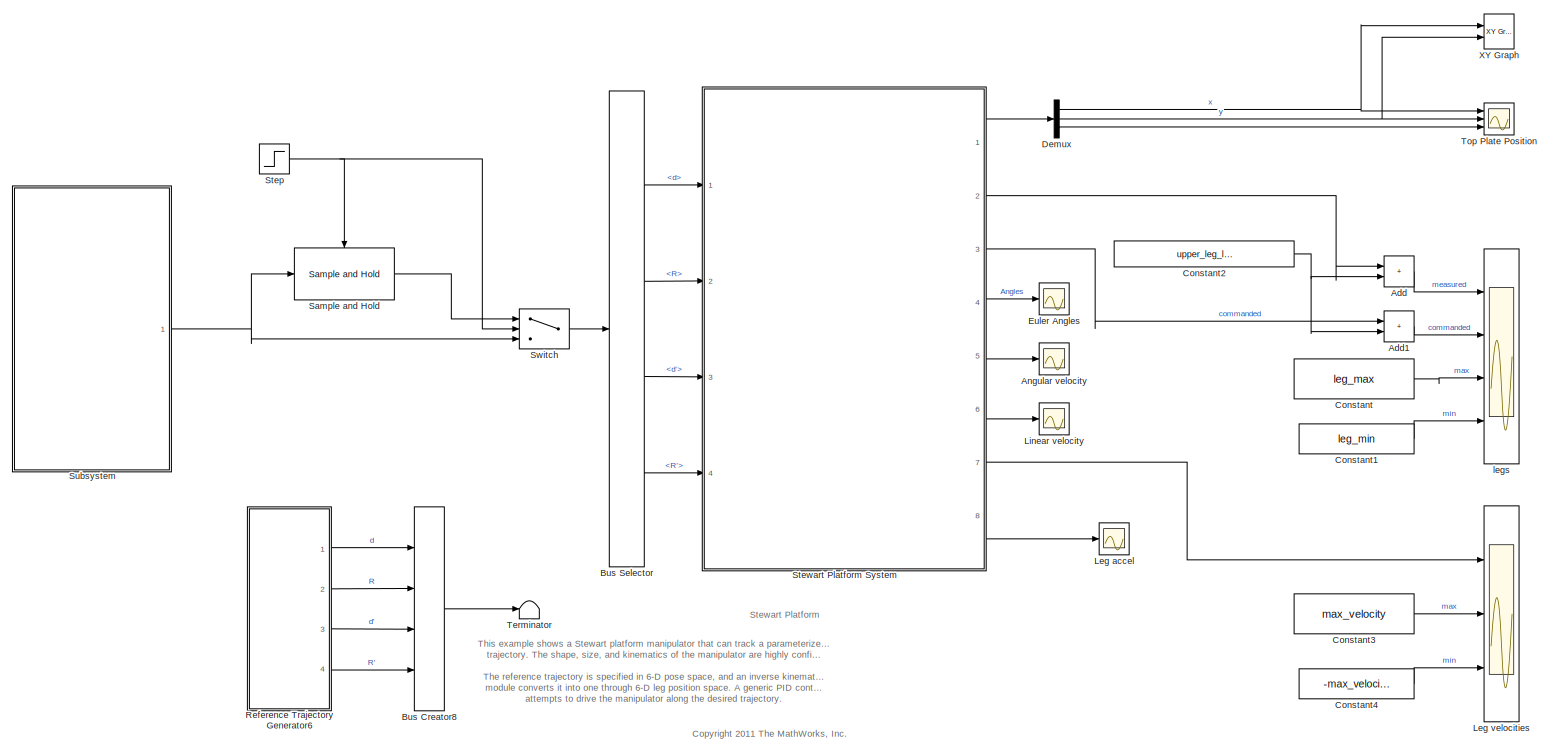
[diagram: root canvas - part 1/1, most of the canvas]
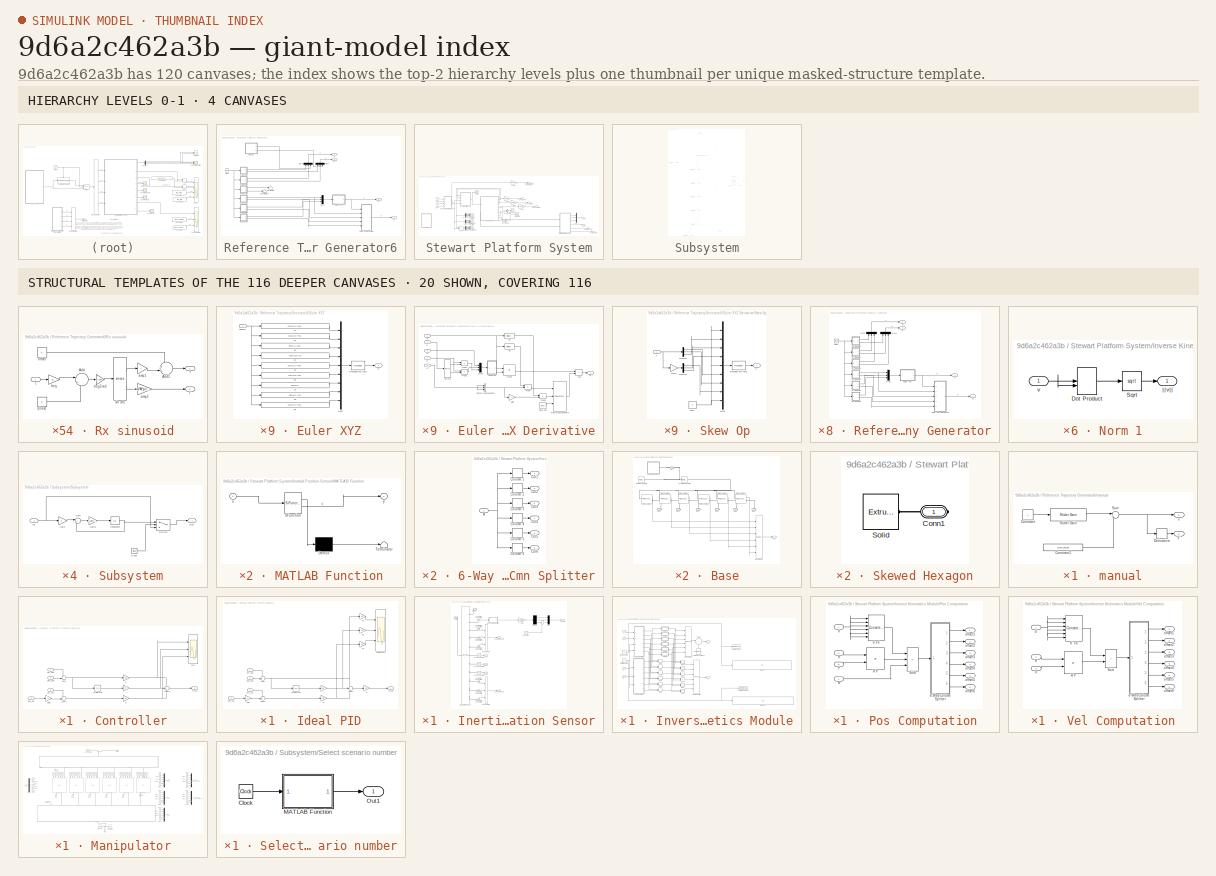
[diagram: thumbnail index - top-2 hierarchy levels (4 canvases) + 20 structural-template representatives of the remaining 116 canvases]
MODEL slx_9d6a2c462a3b
KIND model
CONFIG AbsTol = auto
CONFIG EnableMultiTasking = on
CONFIG FixedStep = auto
CONFIG MaxStep = 0.2
CONFIG MinStep = auto
CONFIG RelTol = 1e-3
CONFIG SampleTimeConstraint = Unconstrained
CONFIG Solver = ode45
CONFIG SolverName = ode45
CONFIG StartTime = 0.0
CONFIG StopTime = 450
WORKSPACE source: mxarray member
WORKSPACE g_density = 5
BLOCK [Sum] Add
  IconShape = rectangular
  Ports = [2, 1]
BLOCK [Sum] Add1
  IconShape = rectangular
  Ports = [2, 1]
BLOCK [Scope] Angular velocity
  Floating = off
  NumInputPorts = 1
  Ports = [1]
  ScopeSpecificationString = Simulink.scopes.TimeScopeBlockCfg('CurrentConfiguration', extmgr.ConfigurationSet(extmgr.Configuration('Core','General UI',true),extmgr.Configuration('Core','Source UI',true),extmgr.Configuration('Sources','WiredSimulink',true,'DataLoggingVariableName','ScopeData1'),extmgr.Configuration('Visuals','Time Domain',true,'SerializedDisplays',{struct('MinYLimReal','-6.82388','MaxYLimReal','7.06562','YLab...<+1541ch>
BLOCK [BusCreator] Bus Creator8
  DisplayOption = bar
  InheritFromInputs = on
  Inputs = 4
  Ports = [4, 1]
BLOCK [BusSelector] Bus Selector
  OutputSignals = d,R,d',R'
  Ports = [1, 4]
BLOCK [Constant] Constant
  Value = leg_max
BLOCK [Constant] Constant1
  Value = leg_min
BLOCK [Constant] Constant2
  Value = upper_leg_length + lower_leg_length
BLOCK [Constant] Constant3
  Value = max_velocity
BLOCK [Constant] Constant4
  Value = -max_velocity
BLOCK [Demux] Demux
  Outputs = 3
  Ports = [1, 3]
BLOCK [Scope] Euler Angles
  Floating = off
  NumInputPorts = 1
  Ports = [1]
  ScopeSpecificationString = Simulink.scopes.TimeScopeBlockCfg('CurrentConfiguration', extmgr.ConfigurationSet(extmgr.Configuration('Core','General UI',true),extmgr.Configuration('Core','Source UI',true),extmgr.Configuration('Sources','WiredSimulink',true,'DataLoggingVariableName','ScopeData2'),extmgr.Configuration('Visuals','Time Domain',true,'SerializedDisplays',{struct('MinYLimReal','-36.91296','MaxYLimReal','36.94268','YL...<+1487ch>
BLOCK [Scope] Leg accel
  Floating = off
  NumInputPorts = 1
  Ports = [1]
  ScopeSpecificationString = Simulink.scopes.TimeScopeBlockCfg('CurrentConfiguration', extmgr.ConfigurationSet(extmgr.Configuration('Core','General UI',true),extmgr.Configuration('Core','Source UI',true),extmgr.Configuration('Sources','WiredSimulink',true,'DataLoggingVariableName','ScopeData6'),extmgr.Configuration('Visuals','Time Domain',true,'SerializedDisplays',{struct('MinYLimReal','-0.11463','MaxYLimReal','0.12547','YLab...<+1628ch>
BLOCK [Scope] Leg velocities
  Floating = off
  NumInputPorts = 3
  Ports = [3]
  ScopeSpecificationString = Simulink.scopes.TimeScopeBlockCfg('CurrentConfiguration', extmgr.ConfigurationSet(extmgr.Configuration('Core','General UI',true),extmgr.Configuration('Core','Source UI',true),extmgr.Configuration('Sources','WiredSimulink',true,'DataLoggingVariableName','ScopeData3'),extmgr.Configuration('Visuals','Time Domain',true,'SerializedDisplays',{struct('MinYLimReal','-0.1875','MaxYLimReal','0.1875','YLabel...<+1659ch>
BLOCK [Scope] Linear velocity
  Floating = off
  NumInputPorts = 1
  Ports = [1]
  ScopeSpecificationString = Simulink.scopes.TimeScopeBlockCfg('CurrentConfiguration', extmgr.ConfigurationSet(extmgr.Configuration('Core','General UI',true),extmgr.Configuration('Core','Source UI',true),extmgr.Configuration('Sources','WiredSimulink',true,'DataLoggingVariableName','ScopeData2'),extmgr.Configuration('Visuals','Time Domain',true,'SerializedDisplays',{struct('MinYLimReal','-0.11463','MaxYLimReal','0.12547','YLab...<+1541ch>
BLOCK [SubSystem] Reference Trajectory Generator6
  Ports = [0, 4]
  RequestExecContextInheritance = off
BLOCK [Clock] Reference Trajectory Generator6/Clock
BLOCK [SubSystem] Reference Trajectory Generator6/Euler XYZ
  Ports = [1, 1]
  RequestExecContextInheritance = off
BLOCK [SubSystem] Reference Trajectory Generator6/Euler XYZ Derivative
  Ports = [5, 1]
  RequestExecContextInheritance = off
BLOCK [Sum] Reference Trajectory Generator6/Euler XYZ Derivative/Add
  IconShape = rectangular
  Ports = [2, 1]
BLOCK [Gain] Reference Trajectory Generator6/Euler XYZ Derivative/Gain
  Gain = -1
BLOCK [Concatenate] Reference Trajectory Generator6/Euler XYZ Derivative/Matrix Concatenate
  ConcatenateDimension = 2
  Mode = Multidimensional array
  NumInputs = 3
  Ports = [3, 1]
BLOCK [Mux] Reference Trajectory Generator6/Euler XYZ Derivative/Mux5
  DisplayOption = bar
  Inputs = 3
  Ports = [3, 1]
BLOCK [Product] Reference Trajectory Generator6/Euler XYZ Derivative/Prod1
  Ports = [2, 1]
  RndMeth = Zero
BLOCK [Product] Reference Trajectory Generator6/Euler XYZ Derivative/Prod2
  Ports = [2, 1]
  RndMeth = Zero
BLOCK [Product] Reference Trajectory Generator6/Euler XYZ Derivative/Prod3
  Multiplication = Matrix(*)
  Ports = [2, 1]
  RndMeth = Zero
BLOCK [Product] Reference Trajectory Generator6/Euler XYZ Derivative/Prod4
  Ports = [2, 1]
  RndMeth = Zero
BLOCK [Product] Reference Trajectory Generator6/Euler XYZ Derivative/Prod5
  Ports = [2, 1]
  RndMeth = Zero
BLOCK [Inport] Reference Trajectory Generator6/Euler XYZ Derivative/R
BLOCK [Outport] Reference Trajectory Generator6/Euler XYZ Derivative/R'
  VectorParamsAs1DForOutWhenUnconnected = off
BLOCK [Selector] Reference Trajectory Generator6/Euler XYZ Derivative/R1
  IndexOptions = Select all,Index vector (dialog)
  Indices = [1 3],1
  InputPortWidth = 3
  NumberOfDimensions = 2
  OutputSizes = 1,1
  Ports = [1, 1]
BLOCK [Selector] Reference Trajectory Generator6/Euler XYZ Derivative/R2
  IndexOptions = Select all,Index vector (dialog)
  Indices = [1 3],2
  InputPortWidth = 3
  NumberOfDimensions = 2
  OutputSizes = 1,1
  Ports = [1, 1]
BLOCK [SubSystem] Reference Trajectory Generator6/Euler XYZ Derivative/Skew Op
  Ports = [1, 1]
  RequestExecContextInheritance = off
BLOCK [Demux] Reference Trajectory Generator6/Euler XYZ Derivative/Skew Op/Demux
  Outputs = 3
  Ports = [1, 3]
BLOCK [Demux] Reference Trajectory Generator6/Euler XYZ Derivative/Skew Op/Demux1
  Outputs = 3
  Ports = [1, 3]
BLOCK [Gain] Reference Trajectory Generator6/Euler XYZ Derivative/Skew Op/Gain
  Gain = -1
BLOCK [Mux] Reference Trajectory Generator6/Euler XYZ Derivative/Skew Op/Mux6
  DisplayOption = bar
  Inputs = 9
  Ports = [9, 1]
BLOCK [Reshape] Reference Trajectory Generator6/Euler XYZ Derivative/Skew Op/Reshape 9x1->3x3
  OutputDimensionality = Customize
  OutputDimensions = [3,3]
  Ports = [1, 1]
BLOCK [Constant] Reference Trajectory Generator6/Euler XYZ Derivative/Skew Op/Zero
  Value = 0
BLOCK [Inport] Reference Trajectory Generator6/Euler XYZ Derivative/Skew Op/v
BLOCK [Outport] Reference Trajectory Generator6/Euler XYZ Derivative/Skew Op/v~
  VectorParamsAs1DForOutWhenUnconnected = off
BLOCK [Concatenate] Reference Trajectory Generator6/Euler XYZ Derivative/Vector Concatenate
  Mode = Multidimensional array
  NumInputs = 3
  Ports = [3, 1]
BLOCK [Constant] Reference Trajectory Generator6/Euler XYZ Derivative/Zero Col
  Value = [0 0 0]'
BLOCK [Inport] Reference Trajectory Generator6/Euler XYZ Derivative/a
  Port = 2
BLOCK [Inport] Reference Trajectory Generator6/Euler XYZ Derivative/a'
  Port = 3
BLOCK [Inport] Reference Trajectory Generator6/Euler XYZ Derivative/b'
  Port = 4
BLOCK [Inport] Reference Trajectory Generator6/Euler XYZ Derivative/c'
  Port = 5
BLOCK [Trigonometry] Reference Trajectory Generator6/Euler XYZ Derivative/sin cos
  Operator = sincos
  Ports = [1, 2]
BLOCK [Fcn] Reference Trajectory Generator6/Euler XYZ/11
  Expr = cos(u[2])*cos(u[3])
BLOCK [Fcn] Reference Trajectory Generator6/Euler XYZ/12
  Expr = -cos(u[2])*sin(u[3])
BLOCK [Fcn] Reference Trajectory Generator6/Euler XYZ/13
  Expr = sin(u[2])
BLOCK [Fcn] Reference Trajectory Generator6/Euler XYZ/21
  Expr = cos(u[3])*sin(u[2])*sin(u[1])+cos(u[1])*sin(u[3])
BLOCK [Fcn] Reference Trajectory Generator6/Euler XYZ/22
  Expr = cos(u[1])*cos(u[3]) - sin(u[1])*sin(u[2])*sin(u[3])
BLOCK [Fcn] Reference Trajectory Generator6/Euler XYZ/23
  Expr = -sin(u[1])*cos(u[2])
BLOCK [Fcn] Reference Trajectory Generator6/Euler XYZ/31
  Expr = sin(u[1])*sin(u[3]) - cos(u[1])*cos(u[3])*sin(u[2])
BLOCK [Fcn] Reference Trajectory Generator6/Euler XYZ/32
  Expr = cos(u[3])*sin(u[1])+cos(u[1])*sin(u[2])*sin(u[3])
BLOCK [Fcn] Reference Trajectory Generator6/Euler XYZ/33
  Expr = cos(u[1])*cos(u[2])
BLOCK [Mux] Reference Trajectory Generator6/Euler XYZ/Mux2
  DisplayOption = bar
  Inputs = 9
  Ports = [9, 1]
BLOCK [Outport] Reference Trajectory Generator6/Euler XYZ/R
  VectorParamsAs1DForOutWhenUnconnected = off
BLOCK [Reshape] Reference Trajectory Generator6/Euler XYZ/Reshape 9x1->3x3
  OutputDimensionality = Customize
  OutputDimensions = [3,3]
  Ports = [1, 1]
BLOCK [Inport] Reference Trajectory Generator6/Euler XYZ/angles
BLOCK [Mux] Reference Trajectory Generator6/Mux1
  DisplayOption = bar
  Inputs = 3
  Ports = [3, 1]
BLOCK [Mux] Reference Trajectory Generator6/Mux3
  DisplayOption = bar
  Inputs = 3
  NameLocation = left
  Ports = [3, 1]
BLOCK [Mux] Reference Trajectory Generator6/Mux4
  DisplayOption = bar
  Inputs = 3
  NameLocation = left
  Ports = [3, 1]
BLOCK [Outport] Reference Trajectory Generator6/R
  Port = 2
  VectorParamsAs1DForOutWhenUnconnected = off
BLOCK [Outport] Reference Trajectory Generator6/R'
  Port = 4
  VectorParamsAs1DForOutWhenUnconnected = off
BLOCK [SubSystem] Reference Trajectory Generator6/Rx sinusoid
  Ports = [1, 2]
  RequestExecContextInheritance = off
BLOCK [Sum] Reference Trajectory Generator6/Rx sinusoid/Add
  Inputs = |++
  NameLocation = top
  Ports = [2, 1]
BLOCK [Sum] Reference Trajectory Generator6/Rx sinusoid/Add2
  Inputs = ++|
  Ports = [2, 1]
BLOCK [Gain] Reference Trajectory Generator6/Rx sinusoid/amp1
  Gain = A
BLOCK [Gain] Reference Trajectory Generator6/Rx sinusoid/amp2
  Gain = w*A*pi/180
BLOCK [Gain] Reference Trajectory Generator6/Rx sinusoid/deg2rad
  Gain = pi/180
BLOCK [Outport] Reference Trajectory Generator6/Rx sinusoid/f
  VectorParamsAs1DForOutWhenUnconnected = off
BLOCK [Outport] Reference Trajectory Generator6/Rx sinusoid/f'
  Port = 2
  VectorParamsAs1DForOutWhenUnconnected = off
BLOCK [Gain] Reference Trajectory Generator6/Rx sinusoid/freq
  Gain = w
BLOCK [Constant] Reference Trajectory Generator6/Rx sinusoid/offset
  Value = k
  VectorParams1D = off
BLOCK [Constant] Reference Trajectory Generator6/Rx sinusoid/phase
  Value = p
  VectorParams1D = off
BLOCK [Trigonometry] Reference Trajectory Generator6/Rx sinusoid/sin cos
  Operator = sincos
  Ports = [1, 2]
BLOCK [Inport] Reference Trajectory Generator6/Rx sinusoid/t
BLOCK [SubSystem] Reference Trajectory Generator6/Ry sinusoid
  Ports = [1, 2]
  RequestExecContextInheritance = off
BLOCK [Sum] Reference Trajectory Generator6/Ry sinusoid/Add
  Inputs = |++
  NameLocation = top
  Ports = [2, 1]
BLOCK [Sum] Reference Trajectory Generator6/Ry sinusoid/Add2
  Inputs = ++|
  Ports = [2, 1]
BLOCK [Gain] Reference Trajectory Generator6/Ry sinusoid/amp1
  Gain = A
BLOCK [Gain] Reference Trajectory Generator6/Ry sinusoid/amp2
  Gain = w*A*pi/180
BLOCK [Gain] Reference Trajectory Generator6/Ry sinusoid/deg2rad
  Gain = pi/180
BLOCK [Outport] Reference Trajectory Generator6/Ry sinusoid/f
  VectorParamsAs1DForOutWhenUnconnected = off
BLOCK [Outport] Reference Trajectory Generator6/Ry sinusoid/f'
  Port = 2
  VectorParamsAs1DForOutWhenUnconnected = off
BLOCK [Gain] Reference Trajectory Generator6/Ry sinusoid/freq
  Gain = w
BLOCK [Constant] Reference Trajectory Generator6/Ry sinusoid/offset
  Value = k
  VectorParams1D = off
BLOCK [Constant] Reference Trajectory Generator6/Ry sinusoid/phase
  Value = p
  VectorParams1D = off
BLOCK [Trigonometry] Reference Trajectory Generator6/Ry sinusoid/sin cos
  Operator = sincos
  Ports = [1, 2]
BLOCK [Inport] Reference Trajectory Generator6/Ry sinusoid/t
BLOCK [SubSystem] Reference Trajectory Generator6/Rz sinusoid
  Ports = [1, 2]
  RequestExecContextInheritance = off
BLOCK [Sum] Reference Trajectory Generator6/Rz sinusoid/Add
  Inputs = |++
  NameLocation = top
  Ports = [2, 1]
BLOCK [Sum] Reference Trajectory Generator6/Rz sinusoid/Add2
  Inputs = ++|
  Ports = [2, 1]
BLOCK [Gain] Reference Trajectory Generator6/Rz sinusoid/amp1
  Gain = A
BLOCK [Gain] Reference Trajectory Generator6/Rz sinusoid/amp2
  Gain = w*A*pi/180
BLOCK [Gain] Reference Trajectory Generator6/Rz sinusoid/deg2rad
  Gain = pi/180
BLOCK [Outport] Reference Trajectory Generator6/Rz sinusoid/f
  VectorParamsAs1DForOutWhenUnconnected = off
BLOCK [Outport] Reference Trajectory Generator6/Rz sinusoid/f'
  Port = 2
  VectorParamsAs1DForOutWhenUnconnected = off
BLOCK [Gain] Reference Trajectory Generator6/Rz sinusoid/freq
  Gain = w
BLOCK [Constant] Reference Trajectory Generator6/Rz sinusoid/offset
  Value = k
  VectorParams1D = off
BLOCK [Constant] Reference Trajectory Generator6/Rz sinusoid/phase
  Value = p
  VectorParams1D = off
BLOCK [Trigonometry] Reference Trajectory Generator6/Rz sinusoid/sin cos
  Operator = sincos
  Ports = [1, 2]
BLOCK [Inport] Reference Trajectory Generator6/Rz sinusoid/t
BLOCK [Terminator] Reference Trajectory Generator6/Terminator
BLOCK [Terminator] Reference Trajectory Generator6/Terminator1
BLOCK [Outport] Reference Trajectory Generator6/d
  VectorParamsAs1DForOutWhenUnconnected = off
BLOCK [Outport] Reference Trajectory Generator6/d'
  Port = 3
  VectorParamsAs1DForOutWhenUnconnected = off
BLOCK [SubSystem] Reference Trajectory Generator6/dx sinusoid
  Ports = [1, 2]
  RequestExecContextInheritance = off
BLOCK [Sum] Reference Trajectory Generator6/dx sinusoid/Add
  Inputs = |++
  NameLocation = top
  Ports = [2, 1]
BLOCK [Sum] Reference Trajectory Generator6/dx sinusoid/Add2
  Inputs = ++|
  Ports = [2, 1]
BLOCK [Gain] Reference Trajectory Generator6/dx sinusoid/amp1
  Gain = A
BLOCK [Gain] Reference Trajectory Generator6/dx sinusoid/amp2
  Gain = w*A*pi/180
BLOCK [Gain] Reference Trajectory Generator6/dx sinusoid/deg2rad
  Gain = pi/180
BLOCK [Outport] Reference Trajectory Generator6/dx sinusoid/f
  VectorParamsAs1DForOutWhenUnconnected = off
BLOCK [Outport] Reference Trajectory Generator6/dx sinusoid/f'
  Port = 2
  VectorParamsAs1DForOutWhenUnconnected = off
BLOCK [Gain] Reference Trajectory Generator6/dx sinusoid/freq
  Gain = w
BLOCK [Constant] Reference Trajectory Generator6/dx sinusoid/offset
  Value = k
  VectorParams1D = off
BLOCK [Constant] Reference Trajectory Generator6/dx sinusoid/phase
  Value = p
  VectorParams1D = off
BLOCK [Trigonometry] Reference Trajectory Generator6/dx sinusoid/sin cos
  Operator = sincos
  Ports = [1, 2]
BLOCK [Inport] Reference Trajectory Generator6/dx sinusoid/t
BLOCK [SubSystem] Reference Trajectory Generator6/dy sinusoid
  Ports = [1, 2]
  RequestExecContextInheritance = off
BLOCK [Sum] Reference Trajectory Generator6/dy sinusoid/Add
  Inputs = |++
  NameLocation = top
  Ports = [2, 1]
BLOCK [Sum] Reference Trajectory Generator6/dy sinusoid/Add2
  Inputs = ++|
  Ports = [2, 1]
BLOCK [Gain] Reference Trajectory Generator6/dy sinusoid/amp1
  Gain = A
BLOCK [Gain] Reference Trajectory Generator6/dy sinusoid/amp2
  Gain = w*A*pi/180
BLOCK [Gain] Reference Trajectory Generator6/dy sinusoid/deg2rad
  Gain = pi/180
BLOCK [Outport] Reference Trajectory Generator6/dy sinusoid/f
  VectorParamsAs1DForOutWhenUnconnected = off
BLOCK [Outport] Reference Trajectory Generator6/dy sinusoid/f'
  Port = 2
  VectorParamsAs1DForOutWhenUnconnected = off
BLOCK [Gain] Reference Trajectory Generator6/dy sinusoid/freq
  Gain = w
BLOCK [Constant] Reference Trajectory Generator6/dy sinusoid/offset
  Value = k
  VectorParams1D = off
BLOCK [Constant] Reference Trajectory Generator6/dy sinusoid/phase
  Value = p
  VectorParams1D = off
BLOCK [Trigonometry] Reference Trajectory Generator6/dy sinusoid/sin cos
  Operator = sincos
  Ports = [1, 2]
BLOCK [Inport] Reference Trajectory Generator6/dy sinusoid/t
BLOCK [SubSystem] Reference Trajectory Generator6/dz sinusoid
  Ports = [1, 2]
  RequestExecContextInheritance = off
BLOCK [Sum] Reference Trajectory Generator6/dz sinusoid/Add
  Inputs = |++
  NameLocation = top
  Ports = [2, 1]
BLOCK [Sum] Reference Trajectory Generator6/dz sinusoid/Add2
  Inputs = ++|
  Ports = [2, 1]
BLOCK [Gain] Reference Trajectory Generator6/dz sinusoid/amp1
  Gain = A
BLOCK [Gain] Reference Trajectory Generator6/dz sinusoid/amp2
  Gain = w*A*pi/180
BLOCK [Gain] Reference Trajectory Generator6/dz sinusoid/deg2rad
  Gain = pi/180
BLOCK [Outport] Reference Trajectory Generator6/dz sinusoid/f
  VectorParamsAs1DForOutWhenUnconnected = off
BLOCK [Outport] Reference Trajectory Generator6/dz sinusoid/f'
  Port = 2
  VectorParamsAs1DForOutWhenUnconnected = off
BLOCK [Gain] Reference Trajectory Generator6/dz sinusoid/freq
  Gain = w
BLOCK [Constant] Reference Trajectory Generator6/dz sinusoid/offset
  Value = k
  VectorParams1D = off
BLOCK [Constant] Reference Trajectory Generator6/dz sinusoid/phase
  Value = p
  VectorParams1D = off
BLOCK [Trigonometry] Reference Trajectory Generator6/dz sinusoid/sin cos
  Operator = sincos
  Ports = [1, 2]
BLOCK [Inport] Reference Trajectory Generator6/dz sinusoid/t
BLOCK [SubSystem] Reference Trajectory Generator6/manual
  Ports = [0, 2]
  RequestExecContextInheritance = off
BLOCK [Constant] Reference Trajectory Generator6/manual/Constant
BLOCK [Constant] Reference Trajectory Generator6/manual/Constant1
  Value = work_height
BLOCK [Derivative] Reference Trajectory Generator6/manual/Derivative
BLOCK [Reference] Reference Trajectory Generator6/manual/Slider Gain  REF=simulink/Math
Operations/Slider
Gain
  Ports = [1, 1]
  SourceBlock = simulink/Math\nOperations/Slider\nGain
  SourceProductBaseCode = SL
  SourceType = Slider Gain
BLOCK [Sum] Reference Trajectory Generator6/manual/Sum
  Inputs = |++
  Ports = [2, 1]
BLOCK [Outport] Reference Trajectory Generator6/manual/x
  VectorParamsAs1DForOutWhenUnconnected = off
BLOCK [Outport] Reference Trajectory Generator6/manual/x'
  Port = 2
  VectorParamsAs1DForOutWhenUnconnected = off
BLOCK [Reference] Sample and Hold  REF=dspsigops/Sample
and Hold
  Ports = [1, 1, 0, 1]
  SourceBlock = dspsigops/Sample\nand Hold
  SourceProductBaseCode = DS
  SourceType = Sample and Hold
BLOCK [Step] Step
  SampleTime = 0
  Time = controlled_stop_at_time
BLOCK [SubSystem] Stewart Platform System
  Ports = [4, 8]
  RequestExecContextInheritance = off
BLOCK [Scope] Stewart Platform System/Actual Leg Positions
  Floating = off
  NumInputPorts = 6
  Ports = [6]
  ScopeSpecificationString = Simulink.scopes.TimeScopeBlockCfg('CurrentConfiguration', extmgr.ConfigurationSet(extmgr.Configuration('Core','General UI',true),extmgr.Configuration('Core','Source UI',true),extmgr.Configuration('Sources','WiredSimulink',true,'DataLoggingVariableName','ScopeData5','DataLoggingSaveFormat','StructureWithTime','DataLoggingLimitDataPoints',true,'DataLoggingDecimation','1','DataLoggingDecimateData',tr...<+5176ch>
BLOCK [Outport] Stewart Platform System/Angles
  Port = 4
  VectorParamsAs1DForOutWhenUnconnected = off
BLOCK [Outport] Stewart Platform System/Angular velocity
  Port = 5
  VectorParamsAs1DForOutWhenUnconnected = off
BLOCK [BusCreator] Stewart Platform System/Bus Creator
  DisplayOption = bar
  InheritFromInputs = on
  Inputs = 2
  Ports = [2, 1]
BLOCK [BusCreator] Stewart Platform System/Bus Creator1
  DisplayOption = bar
  InheritFromInputs = on
  Inputs = 2
  Ports = [2, 1]
BLOCK [SubSystem] Stewart Platform System/Controller
  Commented = on
  Ports = [4, 1]
  RequestExecContextInheritance = off
BLOCK [Gain] Stewart Platform System/Controller/D
  Gain = Kd
  OutDataTypeStr = Inherit: Same as input
  ParamDataTypeStr = Inherit: Same as input
  SaturateOnIntegerOverflow = on
BLOCK [Gain] Stewart Platform System/Controller/Gain
BLOCK [Gain] Stewart Platform System/Controller/I
  Gain = Ki
  OutDataTypeStr = Inherit: Same as input
  ParamDataTypeStr = Inherit: Same as input
  SaturateOnIntegerOverflow = on
BLOCK [Integrator] Stewart Platform System/Controller/Integrator
  InitialCondition = initial_integral_force/Ki(1)
  Ports = [1, 1]
BLOCK [Gain] Stewart Platform System/Controller/P
  Gain = Kp
  OutDataTypeStr = Inherit: Same as input
  ParamDataTypeStr = Inherit: Same as input
  SaturateOnIntegerOverflow = on
BLOCK [Scope] Stewart Platform System/Controller/PID
  Floating = off
  NumInputPorts = 3
  Ports = [3]
  ScopeSpecificationString = Simulink.scopes.TimeScopeBlockCfg('CurrentConfiguration', extmgr.ConfigurationSet(extmgr.Configuration('Core','General UI',true),extmgr.Configuration('Core','Source UI',true),extmgr.Configuration('Sources','WiredSimulink',true,'DataLoggingVariableName','ScopeData1'),extmgr.Configuration('Visuals','Time Domain',true,'SerializedDisplays',{struct('MinYLimReal','-12492.42171','MaxYLimReal','7522.87242...<+2785ch>
BLOCK [Sum] Stewart Platform System/Controller/Sum
  InputSameDT = on
  Inputs = -+|
  OutDataTypeStr = Inherit: Same as first input
  Ports = [2, 1]
  SaturateOnIntegerOverflow = on
BLOCK [Sum] Stewart Platform System/Controller/Sum1
  InputSameDT = on
  Inputs = +++
  OutDataTypeStr = Inherit: Same as first input
  Ports = [3, 1]
  SaturateOnIntegerOverflow = on
BLOCK [Sum] Stewart Platform System/Controller/Sum2
  InputSameDT = on
  Inputs = -+|
  OutDataTypeStr = Inherit: Same as first input
  Ports = [2, 1]
  SaturateOnIntegerOverflow = on
BLOCK [Inport] Stewart Platform System/Controller/act_pos
BLOCK [Inport] Stewart Platform System/Controller/act_vel
  Port = 2
BLOCK [Inport] Stewart Platform System/Controller/des_pos
  Port = 3
BLOCK [Inport] Stewart Platform System/Controller/des_vel
  Port = 4
BLOCK [Outport] Stewart Platform System/Controller/force
  VectorParamsAs1DForOutWhenUnconnected = off
BLOCK [Demux] Stewart Platform System/Demux
  Outputs = 6
  Ports = [1, 6]
BLOCK [Demux] Stewart Platform System/Demux1
  Outputs = 6
  Ports = [1, 6]
BLOCK [Demux] Stewart Platform System/Demux2
  Outputs = 6
  Ports = [1, 6]
BLOCK [Scope] Stewart Platform System/Desired Leg Positions
  Floating = off
  NumInputPorts = 6
  Ports = [6]
  ScopeSpecificationString = Simulink.scopes.TimeScopeBlockCfg('CurrentConfiguration', extmgr.ConfigurationSet(extmgr.Configuration('Core','General UI',true),extmgr.Configuration('Core','Source UI',true),extmgr.Configuration('Sources','WiredSimulink',true,'DataLoggingVariableName','ScopeData4','DataLoggingSaveFormat','StructureWithTime','DataLoggingLimitDataPoints',true,'DataLoggingDecimation','1','DataLoggingDecimateData',tr...<+5137ch>
BLOCK [Scope] Stewart Platform System/Force
  Floating = off
  NumInputPorts = 1
  Ports = [1]
  ScopeSpecificationString = Simulink.scopes.TimeScopeBlockCfg('CurrentConfiguration', extmgr.ConfigurationSet(extmgr.Configuration('Core','General UI',true),extmgr.Configuration('Core','Source UI',true),extmgr.Configuration('Sources','WiredSimulink',true,'DataLoggingVariableName','ScopeData3'),extmgr.Configuration('Visuals','Time Domain',true,'SerializedDisplays',{struct('MinYLimReal','-1935.81084','MaxYLimReal','3543.73247'...<+1556ch>
BLOCK [Gain] Stewart Platform System/Gain
  Gain = 1/100
BLOCK [Gain] Stewart Platform System/Gain1
  Gain = 1/100
BLOCK [Gain] Stewart Platform System/Gain2
  Gain = 1/100
BLOCK [Gain] Stewart Platform System/Gain3
  Gain = 1/100
BLOCK [SubSystem] Stewart Platform System/Ideal PID
  Ports = [4, 1]
  RequestExecContextInheritance = off
BLOCK [Gain] Stewart Platform System/Ideal PID/D
  Gain = Kd
  OutDataTypeStr = Inherit: Same as input
  ParamDataTypeStr = Inherit: Same as input
  SaturateOnIntegerOverflow = on
BLOCK [Gain] Stewart Platform System/Ideal PID/Gain
BLOCK [Gain] Stewart Platform System/Ideal PID/I
  Gain = 1/Ki
  OutDataTypeStr = Inherit: Same as input
  ParamDataTypeStr = Inherit: Same as input
  SaturateOnIntegerOverflow = on
BLOCK [Scope] Stewart Platform System/Ideal PID/Ideal PID
  Floating = off
  NumInputPorts = 3
  Ports = [3]
  ScopeSpecificationString = Simulink.scopes.TimeScopeBlockCfg('CurrentConfiguration', extmgr.ConfigurationSet(extmgr.Configuration('Core','General UI',true),extmgr.Configuration('Core','Source UI',true),extmgr.Configuration('Sources','WiredSimulink',true,'DataLoggingVariableName','ScopeData1'),extmgr.Configuration('Visuals','Time Domain',true,'SerializedDisplays',{struct('MinYLimReal','-7361.43656','MaxYLimReal','6672.27198'...<+2931ch>
BLOCK [Integrator] Stewart Platform System/Ideal PID/Integrator
  InitialCondition = initial_integral_force*Ki(1)/Kp(1)
  Ports = [1, 1]
BLOCK [Gain] Stewart Platform System/Ideal PID/P
  Gain = Kp
  OutDataTypeStr = Inherit: Same as input
  ParamDataTypeStr = Inherit: Same as input
  SaturateOnIntegerOverflow = on
BLOCK [Gain] Stewart Platform System/Ideal PID/P1
  Gain = Kp
  OutDataTypeStr = Inherit: Same as input
  ParamDataTypeStr = Inherit: Same as input
  SaturateOnIntegerOverflow = on
BLOCK [Gain] Stewart Platform System/Ideal PID/P2
  Gain = Kp
  OutDataTypeStr = Inherit: Same as input
  ParamDataTypeStr = Inherit: Same as input
  SaturateOnIntegerOverflow = on
BLOCK [Gain] Stewart Platform System/Ideal PID/P3
  Gain = Kp
  OutDataTypeStr = Inherit: Same as input
  ParamDataTypeStr = Inherit: Same as input
  SaturateOnIntegerOverflow = on
BLOCK [Sum] Stewart Platform System/Ideal PID/Sum
  InputSameDT = on
  Inputs = -+|
  OutDataTypeStr = Inherit: Same as first input
  Ports = [2, 1]
  SaturateOnIntegerOverflow = on
BLOCK [Sum] Stewart Platform System/Ideal PID/Sum1
  InputSameDT = on
  Inputs = +++
  OutDataTypeStr = Inherit: Same as first input
  Ports = [3, 1]
  SaturateOnIntegerOverflow = on
BLOCK [Sum] Stewart Platform System/Ideal PID/Sum2
  InputSameDT = on
  Inputs = -+|
  OutDataTypeStr = Inherit: Same as first input
  Ports = [2, 1]
  SaturateOnIntegerOverflow = on
BLOCK [Inport] Stewart Platform System/Ideal PID/act_pos
BLOCK [Inport] Stewart Platform System/Ideal PID/act_vel
  Port = 2
BLOCK [Inport] Stewart Platform System/Ideal PID/des_pos
  Port = 3
BLOCK [Inport] Stewart Platform System/Ideal PID/des_vel
  Port = 4
BLOCK [Outport] Stewart Platform System/Ideal PID/force
  VectorParamsAs1DForOutWhenUnconnected = off
BLOCK [SubSystem] Stewart Platform System/Inertial Position Sensor
  Ports = [0, 6, 0, 0, 0, 2]
  RequestExecContextInheritance = off
BLOCK [Outport] Stewart Platform System/Inertial Position Sensor/Angles
  Port = 4
  VectorParamsAs1DForOutWhenUnconnected = off
BLOCK [Outport] Stewart Platform System/Inertial Position Sensor/Angular velocity
  Port = 5
  VectorParamsAs1DForOutWhenUnconnected = off
BLOCK [BusCreator] Stewart Platform System/Inertial Position Sensor/Bus Creator
  DisplayOption = bar
  InheritFromInputs = on
  Inputs = 3
  Ports = [3, 1]
BLOCK [BusCreator] Stewart Platform System/Inertial Position Sensor/Bus Creator1
  DisplayOption = bar
  InheritFromInputs = on
  Inputs = 3
  Ports = [3, 1]
BLOCK [Constant] Stewart Platform System/Inertial Position Sensor/Constant
  Value = 60
BLOCK [Demux] Stewart Platform System/Inertial Position Sensor/Demux
  Outputs = 3
  Ports = [1, 3]
BLOCK [Gain] Stewart Platform System/Inertial Position Sensor/Gain
  Gain = 180/pi
BLOCK [Outport] Stewart Platform System/Inertial Position Sensor/Linear velocity
  Port = 6
  VectorParamsAs1DForOutWhenUnconnected = off
BLOCK [SubSystem] Stewart Platform System/Inertial Position Sensor/MATLAB Function
  ErrorFcn = Stateflow.Translate.translate
  PermitHierarchicalResolution = ExplicitOnly
  Ports = [1, 1]
  RequestExecContextInheritance = off
  SFBlockType = MATLAB Function
  TreatAsAtomicUnit = on
BLOCK [Demux] Stewart Platform System/Inertial Position Sensor/MATLAB Function/ Demux 
  Outputs = 1
  Ports = [1, 1]
BLOCK [S-Function] Stewart Platform System/Inertial Position Sensor/MATLAB Function/ SFunction 
  EnableBusSupport = on
  FunctionName = sf_sfun
  PortCounts = [1 2]
  Ports = [1, 2]
  SFcnIsStateOwnerBlock = off
  SFunctionDeploymentMode = off
  Tag = Stateflow S-Function 2
BLOCK [Terminator] Stewart Platform System/Inertial Position Sensor/MATLAB Function/ Terminator 
BLOCK [Inport] Stewart Platform System/Inertial Position Sensor/MATLAB Function/u
BLOCK [Outport] Stewart Platform System/Inertial Position Sensor/MATLAB Function/y
  VectorParamsAs1DForOutWhenUnconnected = off
BLOCK [Mux] Stewart Platform System/Inertial Position Sensor/Mux
  DisplayOption = bar
  Inputs = 3
  Ports = [3, 1]
BLOCK [Reference] Stewart Platform System/Inertial Position Sensor/PS-Simulink Converter  REF=nesl_utility/PS-Simulink
Converter
  Ports = [0, 1, 0, 0, 0, 1]
  SourceBlock = nesl_utility/PS-Simulink\nConverter
  SourceProductBaseCode = SS
  SourceType = PS-Simulink\nConverter
BLOCK [Reference] Stewart Platform System/Inertial Position Sensor/PS-Simulink Converter1  REF=nesl_utility/PS-Simulink
Converter
  Ports = [0, 1, 0, 0, 0, 1]
  SourceBlock = nesl_utility/PS-Simulink\nConverter
  SourceProductBaseCode = SS
  SourceType = PS-Simulink\nConverter
BLOCK [Reference] Stewart Platform System/Inertial Position Sensor/PS-Simulink Converter2  REF=nesl_utility/PS-Simulink
Converter
  Ports = [0, 1, 0, 0, 0, 1]
  SourceBlock = nesl_utility/PS-Simulink\nConverter
  SourceProductBaseCode = SS
  SourceType = PS-Simulink\nConverter
BLOCK [Reference] Stewart Platform System/Inertial Position Sensor/PS-Simulink Converter3  REF=nesl_utility/PS-Simulink
Converter
  Ports = [0, 1, 0, 0, 0, 1]
  SourceBlock = nesl_utility/PS-Simulink\nConverter
  SourceProductBaseCode = SS
  SourceType = PS-Simulink\nConverter
BLOCK [Reference] Stewart Platform System/Inertial Position Sensor/PS-Simulink Converter4  REF=nesl_utility/PS-Simulink
Converter
  Ports = [0, 1, 0, 0, 0, 1]
  SourceBlock = nesl_utility/PS-Simulink\nConverter
  SourceProductBaseCode = SS
  SourceType = PS-Simulink\nConverter
BLOCK [Reference] Stewart Platform System/Inertial Position Sensor/PS-Simulink Converter5  REF=nesl_utility/PS-Simulink
Converter
  Ports = [0, 1, 0, 0, 0, 1]
  SourceBlock = nesl_utility/PS-Simulink\nConverter
  SourceProductBaseCode = SS
  SourceType = PS-Simulink\nConverter
BLOCK [Reference] Stewart Platform System/Inertial Position Sensor/PS-Simulink Converter6  REF=nesl_utility/PS-Simulink
Converter
  Ports = [0, 1, 0, 0, 0, 1]
  SourceBlock = nesl_utility/PS-Simulink\nConverter
  SourceProductBaseCode = SS
  SourceType = PS-Simulink\nConverter
BLOCK [Reference] Stewart Platform System/Inertial Position Sensor/Pos X Converter  REF=nesl_utility/PS-Simulink
Converter
  Ports = [0, 1, 0, 0, 0, 1]
  SourceBlock = nesl_utility/PS-Simulink\nConverter
  SourceProductBaseCode = SS
  SourceType = PS-Simulink\nConverter
BLOCK [Reference] Stewart Platform System/Inertial Position Sensor/Pos Y Converter1  REF=nesl_utility/PS-Simulink
Converter
  Ports = [0, 1, 0, 0, 0, 1]
  SourceBlock = nesl_utility/PS-Simulink\nConverter
  SourceProductBaseCode = SS
  SourceType = PS-Simulink\nConverter
BLOCK [Reference] Stewart Platform System/Inertial Position Sensor/Pos Z Converter2  REF=nesl_utility/PS-Simulink
Converter
  Ports = [0, 1, 0, 0, 0, 1]
  SourceBlock = nesl_utility/PS-Simulink\nConverter
  SourceProductBaseCode = SS
  SourceType = PS-Simulink\nConverter
BLOCK [Sum] Stewart Platform System/Inertial Position Sensor/Sum
  Inputs = |++
  Ports = [2, 1]
BLOCK [Reference] Stewart Platform System/Inertial Position Sensor/Transform Sensor  REF=sm_lib/Frames and
Transforms/Transform
Sensor
  Ports = [0, 0, 0, 0, 0, 1, 11]
  SourceBlock = sm_lib/Frames and\nTransforms/Transform\nSensor
  SourceProductBaseCode = MS
  SourceType = Transform\nSensor
BLOCK [PMIOPort] Stewart Platform System/Inertial Position Sensor/gripper
  Side = Left
BLOCK [Outport] Stewart Platform System/Inertial Position Sensor/pos x
  VectorParamsAs1DForOutWhenUnconnected = off
BLOCK [Outport] Stewart Platform System/Inertial Position Sensor/pos y
  Port = 2
  VectorParamsAs1DForOutWhenUnconnected = off
BLOCK [Outport] Stewart Platform System/Inertial Position Sensor/pos z
  Port = 3
  VectorParamsAs1DForOutWhenUnconnected = off
BLOCK [PMIOPort] Stewart Platform System/Inertial Position Sensor/world
  Port = 2
  Side = Left
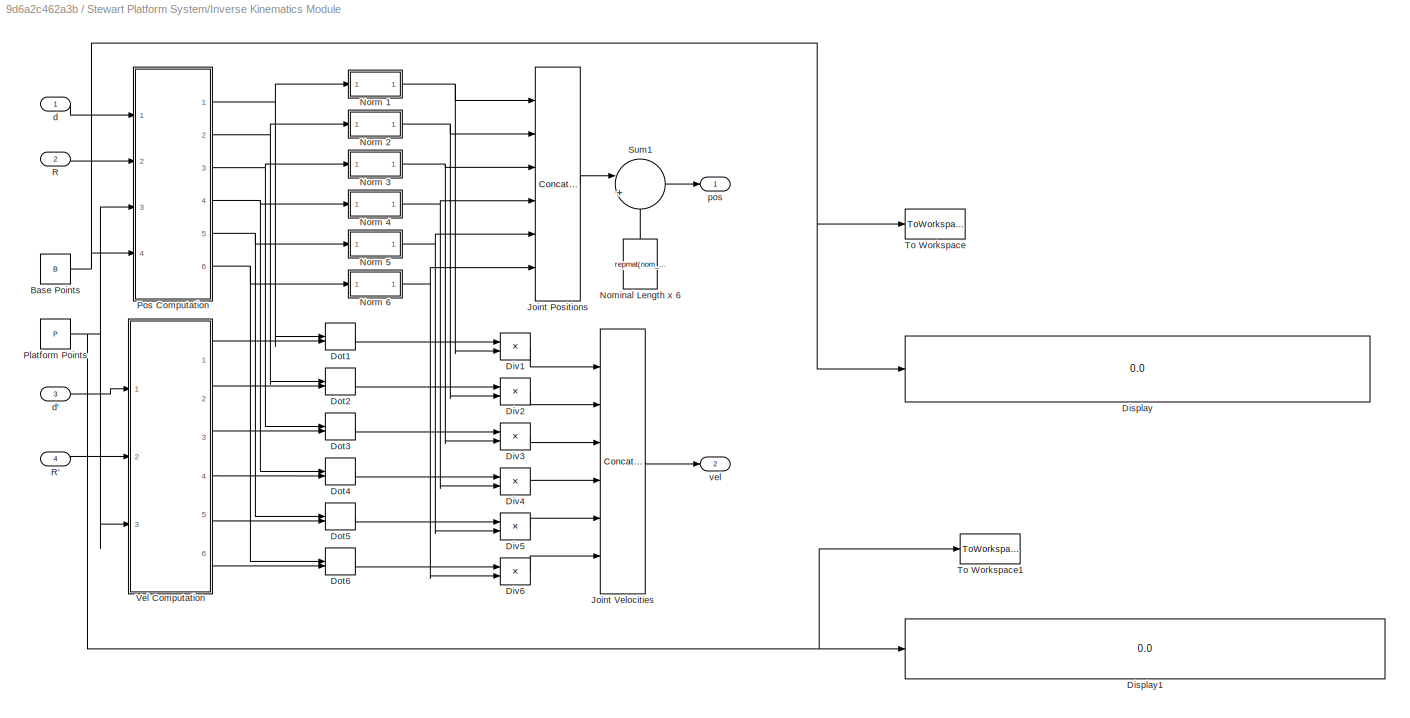
BLOCK [SubSystem] Stewart Platform System/Inverse Kinematics Module
  Ports = [4, 2]
  RequestExecContextInheritance = off
BLOCK [Constant] Stewart Platform System/Inverse Kinematics Module/Base Points
  Value = B
BLOCK [Display] Stewart Platform System/Inverse Kinematics Module/Display
  Decimation = 1
  Ports = [1]
BLOCK [Display] Stewart Platform System/Inverse Kinematics Module/Display1
  Decimation = 1
  Ports = [1]
BLOCK [Product] Stewart Platform System/Inverse Kinematics Module/Div1
  Inputs = */
  Ports = [2, 1]
BLOCK [Product] Stewart Platform System/Inverse Kinematics Module/Div2
  Inputs = */
  Ports = [2, 1]
BLOCK [Product] Stewart Platform System/Inverse Kinematics Module/Div3
  Inputs = */
  Ports = [2, 1]
BLOCK [Product] Stewart Platform System/Inverse Kinematics Module/Div4
  Inputs = */
  Ports = [2, 1]
BLOCK [Product] Stewart Platform System/Inverse Kinematics Module/Div5
  Inputs = */
  Ports = [2, 1]
BLOCK [Product] Stewart Platform System/Inverse Kinematics Module/Div6
  Inputs = */
  Ports = [2, 1]
BLOCK [DotProduct] Stewart Platform System/Inverse Kinematics Module/Dot1
  InputSameDT = off
  OutDataTypeStr = Inherit: Inherit via internal rule
BLOCK [DotProduct] Stewart Platform System/Inverse Kinematics Module/Dot2
  InputSameDT = off
  OutDataTypeStr = Inherit: Inherit via internal rule
BLOCK [DotProduct] Stewart Platform System/Inverse Kinematics Module/Dot3
  InputSameDT = off
  OutDataTypeStr = Inherit: Inherit via internal rule
BLOCK [DotProduct] Stewart Platform System/Inverse Kinematics Module/Dot4
  InputSameDT = off
  OutDataTypeStr = Inherit: Inherit via internal rule
BLOCK [DotProduct] Stewart Platform System/Inverse Kinematics Module/Dot5
  InputSameDT = off
  OutDataTypeStr = Inherit: Inherit via internal rule
BLOCK [DotProduct] Stewart Platform System/Inverse Kinematics Module/Dot6
  InputSameDT = off
  OutDataTypeStr = Inherit: Inherit via internal rule
BLOCK [Concatenate] Stewart Platform System/Inverse Kinematics Module/Joint Positions
  Mode = Multidimensional array
  NumInputs = 6
  Ports = [6, 1]
BLOCK [Concatenate] Stewart Platform System/Inverse Kinematics Module/Joint Velocities
  Mode = Multidimensional array
  NumInputs = 6
  Ports = [6, 1]
BLOCK [Constant] Stewart Platform System/Inverse Kinematics Module/Nominal Length x 6
  NameLocation = right
  Value = repmat(nom_length, 6, 1)
BLOCK [SubSystem] Stewart Platform System/Inverse Kinematics Module/Norm 1
  Ports = [1, 1]
  RequestExecContextInheritance = off
BLOCK [DotProduct] Stewart Platform System/Inverse Kinematics Module/Norm 1/Dot Product
  InputSameDT = off
  OutDataTypeStr = Inherit: Inherit via internal rule
BLOCK [Sqrt] Stewart Platform System/Inverse Kinematics Module/Norm 1/Sqrt
BLOCK [Inport] Stewart Platform System/Inverse Kinematics Module/Norm 1/v
BLOCK [Outport] Stewart Platform System/Inverse Kinematics Module/Norm 1/||v||
  VectorParamsAs1DForOutWhenUnconnected = off
BLOCK [SubSystem] Stewart Platform System/Inverse Kinematics Module/Norm 2
  Ports = [1, 1]
  RequestExecContextInheritance = off
BLOCK [DotProduct] Stewart Platform System/Inverse Kinematics Module/Norm 2/Dot Product
  InputSameDT = off
  OutDataTypeStr = Inherit: Inherit via internal rule
BLOCK [Sqrt] Stewart Platform System/Inverse Kinematics Module/Norm 2/Sqrt
BLOCK [Inport] Stewart Platform System/Inverse Kinematics Module/Norm 2/v
BLOCK [Outport] Stewart Platform System/Inverse Kinematics Module/Norm 2/||v||
  VectorParamsAs1DForOutWhenUnconnected = off
BLOCK [SubSystem] Stewart Platform System/Inverse Kinematics Module/Norm 3
  Ports = [1, 1]
  RequestExecContextInheritance = off
BLOCK [DotProduct] Stewart Platform System/Inverse Kinematics Module/Norm 3/Dot Product
  InputSameDT = off
  OutDataTypeStr = Inherit: Inherit via internal rule
BLOCK [Sqrt] Stewart Platform System/Inverse Kinematics Module/Norm 3/Sqrt
BLOCK [Inport] Stewart Platform System/Inverse Kinematics Module/Norm 3/v
BLOCK [Outport] Stewart Platform System/Inverse Kinematics Module/Norm 3/||v||
  VectorParamsAs1DForOutWhenUnconnected = off
BLOCK [SubSystem] Stewart Platform System/Inverse Kinematics Module/Norm 4
  Ports = [1, 1]
  RequestExecContextInheritance = off
BLOCK [DotProduct] Stewart Platform System/Inverse Kinematics Module/Norm 4/Dot Product
  InputSameDT = off
  OutDataTypeStr = Inherit: Inherit via internal rule
BLOCK [Sqrt] Stewart Platform System/Inverse Kinematics Module/Norm 4/Sqrt
BLOCK [Inport] Stewart Platform System/Inverse Kinematics Module/Norm 4/v
BLOCK [Outport] Stewart Platform System/Inverse Kinematics Module/Norm 4/||v||
  VectorParamsAs1DForOutWhenUnconnected = off
BLOCK [SubSystem] Stewart Platform System/Inverse Kinematics Module/Norm 5
  Ports = [1, 1]
  RequestExecContextInheritance = off
BLOCK [DotProduct] Stewart Platform System/Inverse Kinematics Module/Norm 5/Dot Product
  InputSameDT = off
  OutDataTypeStr = Inherit: Inherit via internal rule
BLOCK [Sqrt] Stewart Platform System/Inverse Kinematics Module/Norm 5/Sqrt
BLOCK [Inport] Stewart Platform System/Inverse Kinematics Module/Norm 5/v
BLOCK [Outport] Stewart Platform System/Inverse Kinematics Module/Norm 5/||v||
  VectorParamsAs1DForOutWhenUnconnected = off
BLOCK [SubSystem] Stewart Platform System/Inverse Kinematics Module/Norm 6
  Ports = [1, 1]
  RequestExecContextInheritance = off
BLOCK [DotProduct] Stewart Platform System/Inverse Kinematics Module/Norm 6/Dot Product
  InputSameDT = off
  OutDataTypeStr = Inherit: Inherit via internal rule
BLOCK [Sqrt] Stewart Platform System/Inverse Kinematics Module/Norm 6/Sqrt
BLOCK [Inport] Stewart Platform System/Inverse Kinematics Module/Norm 6/v
BLOCK [Outport] Stewart Platform System/Inverse Kinematics Module/Norm 6/||v||
  VectorParamsAs1DForOutWhenUnconnected = off
BLOCK [Constant] Stewart Platform System/Inverse Kinematics Module/Platform Points
  Value = P
BLOCK [SubSystem] Stewart Platform System/Inverse Kinematics Module/Pos Computation
  Ports = [4, 6]
  RequestExecContextInheritance = off
BLOCK [SubSystem] Stewart Platform System/Inverse Kinematics Module/Pos Computation/6-Way Column Splitter
  Ports = [1, 6]
  RequestExecContextInheritance = off
BLOCK [Inport] Stewart Platform System/Inverse Kinematics Module/Pos Computation/6-Way Column Splitter/A
BLOCK [Outport] Stewart Platform System/Inverse Kinematics Module/Pos Computation/6-Way Column Splitter/Col1
  VectorParamsAs1DForOutWhenUnconnected = off
BLOCK [Outport] Stewart Platform System/Inverse Kinematics Module/Pos Computation/6-Way Column Splitter/Col2
  Port = 2
  VectorParamsAs1DForOutWhenUnconnected = off
BLOCK [Outport] Stewart Platform System/Inverse Kinematics Module/Pos Computation/6-Way Column Splitter/Col3
  Port = 3
  VectorParamsAs1DForOutWhenUnconnected = off
BLOCK [Outport] Stewart Platform System/Inverse Kinematics Module/Pos Computation/6-Way Column Splitter/Col4
  Port = 4
  VectorParamsAs1DForOutWhenUnconnected = off
BLOCK [Outport] Stewart Platform System/Inverse Kinematics Module/Pos Computation/6-Way Column Splitter/Col5
  Port = 5
  VectorParamsAs1DForOutWhenUnconnected = off
BLOCK [Outport] Stewart Platform System/Inverse Kinematics Module/Pos Computation/6-Way Column Splitter/Col6
  Port = 6
  VectorParamsAs1DForOutWhenUnconnected = off
BLOCK [Selector] Stewart Platform System/Inverse Kinematics Module/Pos Computation/6-Way Column Splitter/Column 1
  IndexOptions = Select all,Index vector (dialog)
  Indices = -1,1
  InputPortWidth = 3
  NumberOfDimensions = 2
  OutputSizes = 1
  Ports = [1, 1]
BLOCK [Selector] Stewart Platform System/Inverse Kinematics Module/Pos Computation/6-Way Column Splitter/Column 2
  IndexOptions = Select all,Index vector (dialog)
  Indices = -1,2
  InputPortWidth = 3
  NumberOfDimensions = 2
  OutputSizes = 1
  Ports = [1, 1]
BLOCK [Selector] Stewart Platform System/Inverse Kinematics Module/Pos Computation/6-Way Column Splitter/Column 3
  IndexOptions = Select all,Index vector (dialog)
  Indices = -1,3
  InputPortWidth = 3
  NumberOfDimensions = 2
  OutputSizes = 1
  Ports = [1, 1]
BLOCK [Selector] Stewart Platform System/Inverse Kinematics Module/Pos Computation/6-Way Column Splitter/Column 4
  IndexOptions = Select all,Index vector (dialog)
  Indices = -1,4
  InputPortWidth = 3
  NumberOfDimensions = 2
  OutputSizes = 1
  Ports = [1, 1]
BLOCK [Selector] Stewart Platform System/Inverse Kinematics Module/Pos Computation/6-Way Column Splitter/Column 5
  IndexOptions = Select all,Index vector (dialog)
  Indices = -1,5
  InputPortWidth = 3
  NumberOfDimensions = 2
  OutputSizes = 1
  Ports = [1, 1]
BLOCK [Selector] Stewart Platform System/Inverse Kinematics Module/Pos Computation/6-Way Column Splitter/Column 6
  IndexOptions = Select all,Index vector (dialog)
  Indices = -1,6
  InputPortWidth = 3
  NumberOfDimensions = 2
  OutputSizes = 1
  Ports = [1, 1]
BLOCK [Inport] Stewart Platform System/Inverse Kinematics Module/Pos Computation/B
  Port = 4
BLOCK [Inport] Stewart Platform System/Inverse Kinematics Module/Pos Computation/P
  Port = 3
BLOCK [Inport] Stewart Platform System/Inverse Kinematics Module/Pos Computation/R
  Port = 2
BLOCK [Product] Stewart Platform System/Inverse Kinematics Module/Pos Computation/R P
  Multiplication = Matrix(*)
  Ports = [2, 1]
  RndMeth = Zero
BLOCK [Sum] Stewart Platform System/Inverse Kinematics Module/Pos Computation/Sum
  IconShape = rectangular
  Inputs = ++-
  Ports = [3, 1]
BLOCK [Inport] Stewart Platform System/Inverse Kinematics Module/Pos Computation/d
BLOCK [Concatenate] Stewart Platform System/Inverse Kinematics Module/Pos Computation/d x 6
  ConcatenateDimension = 2
  Mode = Multidimensional array
  NumInputs = 6
  Ports = [6, 1]
BLOCK [Outport] Stewart Platform System/Inverse Kinematics Module/Pos Computation/offset1
  VectorParamsAs1DForOutWhenUnconnected = off
BLOCK [Outport] Stewart Platform System/Inverse Kinematics Module/Pos Computation/offset2
  Port = 2
  VectorParamsAs1DForOutWhenUnconnected = off
BLOCK [Outport] Stewart Platform System/Inverse Kinematics Module/Pos Computation/offset3
  Port = 3
  VectorParamsAs1DForOutWhenUnconnected = off
BLOCK [Outport] Stewart Platform System/Inverse Kinematics Module/Pos Computation/offset4
  Port = 4
  VectorParamsAs1DForOutWhenUnconnected = off
BLOCK [Outport] Stewart Platform System/Inverse Kinematics Module/Pos Computation/offset5
  Port = 5
  VectorParamsAs1DForOutWhenUnconnected = off
BLOCK [Outport] Stewart Platform System/Inverse Kinematics Module/Pos Computation/offset6
  Port = 6
  VectorParamsAs1DForOutWhenUnconnected = off
BLOCK [Inport] Stewart Platform System/Inverse Kinematics Module/R
  Port = 2
BLOCK [Inport] Stewart Platform System/Inverse Kinematics Module/R'
  Port = 4
BLOCK [Sum] Stewart Platform System/Inverse Kinematics Module/Sum1
  Inputs = |+-
  Ports = [2, 1]
BLOCK [ToWorkspace] Stewart Platform System/Inverse Kinematics Module/To Workspace
  FixptAsFi = on
  MaxDataPoints = inf
  Ports = [1]
  SampleTime = -1
  SaveFormat = Timeseries
  VariableName = base_points
BLOCK [ToWorkspace] Stewart Platform System/Inverse Kinematics Module/To Workspace1
  FixptAsFi = on
  MaxDataPoints = inf
  Ports = [1]
  SampleTime = -1
  SaveFormat = Timeseries
  VariableName = platform_points
BLOCK [SubSystem] Stewart Platform System/Inverse Kinematics Module/Vel Computation
  Ports = [3, 6]
  RequestExecContextInheritance = off
BLOCK [SubSystem] Stewart Platform System/Inverse Kinematics Module/Vel Computation/6-Way Column Splitter
  Ports = [1, 6]
  RequestExecContextInheritance = off
BLOCK [Inport] Stewart Platform System/Inverse Kinematics Module/Vel Computation/6-Way Column Splitter/A
BLOCK [Outport] Stewart Platform System/Inverse Kinematics Module/Vel Computation/6-Way Column Splitter/Col1
  VectorParamsAs1DForOutWhenUnconnected = off
BLOCK [Outport] Stewart Platform System/Inverse Kinematics Module/Vel Computation/6-Way Column Splitter/Col2
  Port = 2
  VectorParamsAs1DForOutWhenUnconnected = off
BLOCK [Outport] Stewart Platform System/Inverse Kinematics Module/Vel Computation/6-Way Column Splitter/Col3
  Port = 3
  VectorParamsAs1DForOutWhenUnconnected = off
BLOCK [Outport] Stewart Platform System/Inverse Kinematics Module/Vel Computation/6-Way Column Splitter/Col4
  Port = 4
  VectorParamsAs1DForOutWhenUnconnected = off
BLOCK [Outport] Stewart Platform System/Inverse Kinematics Module/Vel Computation/6-Way Column Splitter/Col5
  Port = 5
  VectorParamsAs1DForOutWhenUnconnected = off
BLOCK [Outport] Stewart Platform System/Inverse Kinematics Module/Vel Computation/6-Way Column Splitter/Col6
  Port = 6
  VectorParamsAs1DForOutWhenUnconnected = off
BLOCK [Selector] Stewart Platform System/Inverse Kinematics Module/Vel Computation/6-Way Column Splitter/Column 1
  IndexOptions = Select all,Index vector (dialog)
  Indices = -1,1
  InputPortWidth = 3
  NumberOfDimensions = 2
  OutputSizes = 1
  Ports = [1, 1]
BLOCK [Selector] Stewart Platform System/Inverse Kinematics Module/Vel Computation/6-Way Column Splitter/Column 2
  IndexOptions = Select all,Index vector (dialog)
  Indices = -1,2
  InputPortWidth = 3
  NumberOfDimensions = 2
  OutputSizes = 1
  Ports = [1, 1]
BLOCK [Selector] Stewart Platform System/Inverse Kinematics Module/Vel Computation/6-Way Column Splitter/Column 3
  IndexOptions = Select all,Index vector (dialog)
  Indices = -1,3
  InputPortWidth = 3
  NumberOfDimensions = 2
  OutputSizes = 1
  Ports = [1, 1]
BLOCK [Selector] Stewart Platform System/Inverse Kinematics Module/Vel Computation/6-Way Column Splitter/Column 4
  IndexOptions = Select all,Index vector (dialog)
  Indices = -1,4
  InputPortWidth = 3
  NumberOfDimensions = 2
  OutputSizes = 1
  Ports = [1, 1]
BLOCK [Selector] Stewart Platform System/Inverse Kinematics Module/Vel Computation/6-Way Column Splitter/Column 5
  IndexOptions = Select all,Index vector (dialog)
  Indices = -1,5
  InputPortWidth = 3
  NumberOfDimensions = 2
  OutputSizes = 1
  Ports = [1, 1]
BLOCK [Selector] Stewart Platform System/Inverse Kinematics Module/Vel Computation/6-Way Column Splitter/Column 6
  IndexOptions = Select all,Index vector (dialog)
  Indices = -1,6
  InputPortWidth = 3
  NumberOfDimensions = 2
  OutputSizes = 1
  Ports = [1, 1]
BLOCK [Inport] Stewart Platform System/Inverse Kinematics Module/Vel Computation/P
  Port = 3
BLOCK [Product] Stewart Platform System/Inverse Kinematics Module/Vel Computation/R P
  Multiplication = Matrix(*)
  Ports = [2, 1]
  RndMeth = Zero
BLOCK [Inport] Stewart Platform System/Inverse Kinematics Module/Vel Computation/R'
  Port = 2
BLOCK [Sum] Stewart Platform System/Inverse Kinematics Module/Vel Computation/Sum
  IconShape = rectangular
  Ports = [2, 1]
BLOCK [Inport] Stewart Platform System/Inverse Kinematics Module/Vel Computation/d'
BLOCK [Concatenate] Stewart Platform System/Inverse Kinematics Module/Vel Computation/d' x 6
  ConcatenateDimension = 2
  Mode = Multidimensional array
  NumInputs = 6
  Ports = [6, 1]
BLOCK [Outport] Stewart Platform System/Inverse Kinematics Module/Vel Computation/offset1'
  VectorParamsAs1DForOutWhenUnconnected = off
BLOCK [Outport] Stewart Platform System/Inverse Kinematics Module/Vel Computation/offset2'
  Port = 2
  VectorParamsAs1DForOutWhenUnconnected = off
BLOCK [Outport] Stewart Platform System/Inverse Kinematics Module/Vel Computation/offset3'
  Port = 3
  VectorParamsAs1DForOutWhenUnconnected = off
BLOCK [Outport] Stewart Platform System/Inverse Kinematics Module/Vel Computation/offset4'
  Port = 4
  VectorParamsAs1DForOutWhenUnconnected = off
BLOCK [Outport] Stewart Platform System/Inverse Kinematics Module/Vel Computation/offset5'
  Port = 5
  VectorParamsAs1DForOutWhenUnconnected = off
BLOCK [Outport] Stewart Platform System/Inverse Kinematics Module/Vel Computation/offset6'
  Port = 6
  VectorParamsAs1DForOutWhenUnconnected = off
BLOCK [Inport] Stewart Platform System/Inverse Kinematics Module/d
BLOCK [Inport] Stewart Platform System/Inverse Kinematics Module/d'
  Port = 3
BLOCK [Outport] Stewart Platform System/Inverse Kinematics Module/pos
  VectorParamsAs1DForOutWhenUnconnected = off
BLOCK [Outport] Stewart Platform System/Inverse Kinematics Module/vel
  Port = 2
  VectorParamsAs1DForOutWhenUnconnected = off
BLOCK [Scope] Stewart Platform System/Leg Position Error
  Floating = off
  NumInputPorts = 6
  Ports = [6]
  ScopeSpecificationString = Simulink.scopes.TimeScopeBlockCfg('CurrentConfiguration', extmgr.ConfigurationSet(extmgr.Configuration('Core','General UI',true),extmgr.Configuration('Core','Source UI',true),extmgr.Configuration('Sources','WiredSimulink',true,'DataLoggingVariableName','ScopeData6','DataLoggingSaveFormat','StructureWithTime','DataLoggingDecimation','1','DataLoggingDecimateData',true),extmgr.Configuration('Visuals'...<+5080ch>
BLOCK [Outport] Stewart Platform System/Linear velocity
  Port = 6
  VectorParamsAs1DForOutWhenUnconnected = off
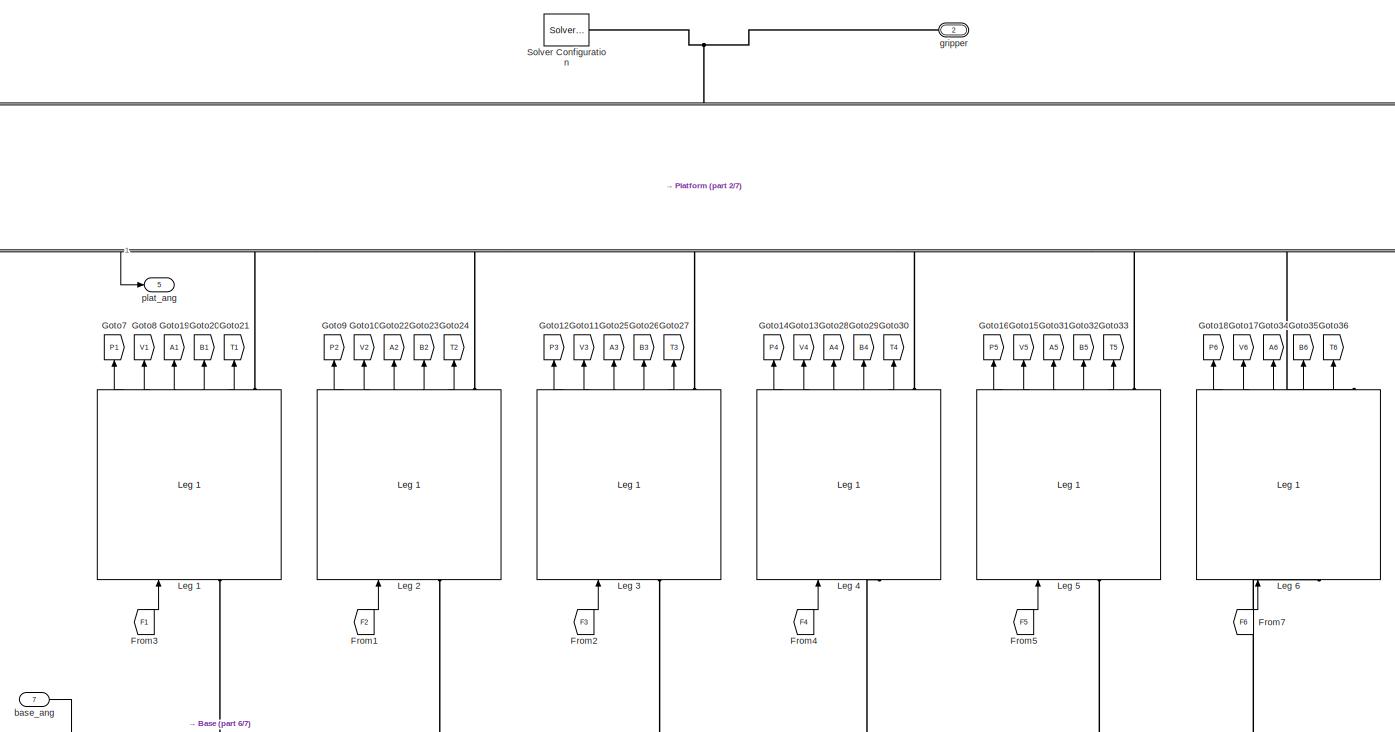
[diagram: Stewart Platform System/Manipulator - part 1/7, central region]
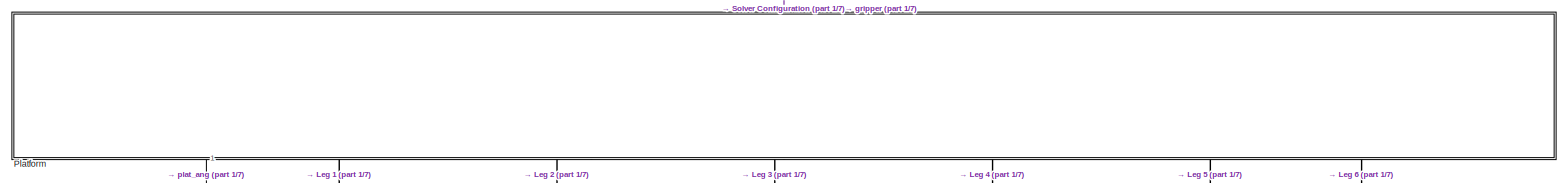
[diagram: Stewart Platform System/Manipulator - part 2/7, top center region]
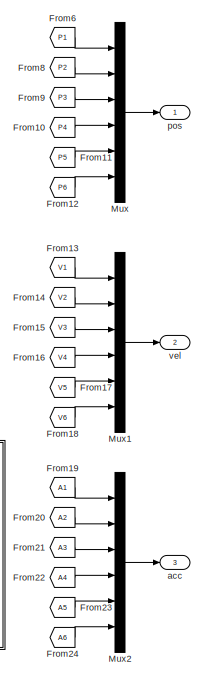
[diagram: Stewart Platform System/Manipulator - part 3/7, middle right region]
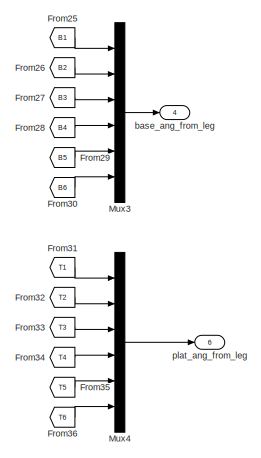
[diagram: Stewart Platform System/Manipulator - part 4/7, middle right region]
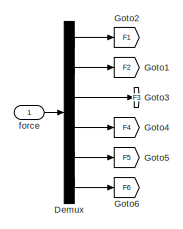
[diagram: Stewart Platform System/Manipulator - part 5/7, middle left region]
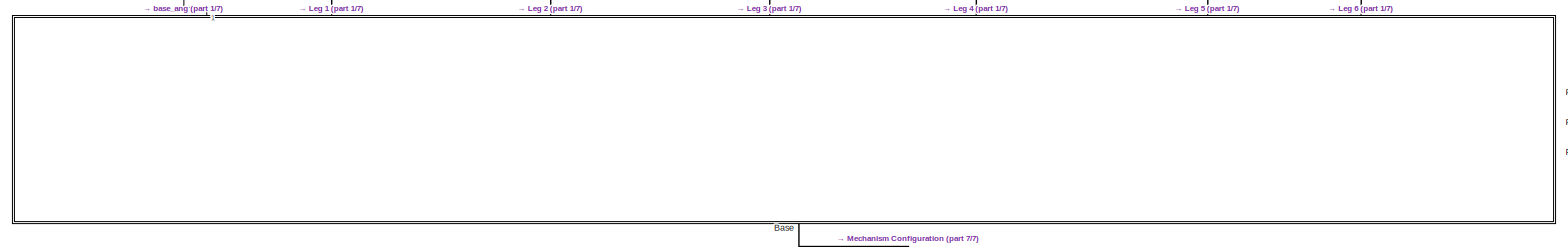
[diagram: Stewart Platform System/Manipulator - part 6/7, bottom center region]
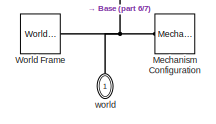
[diagram: Stewart Platform System/Manipulator - part 7/7, bottom center region]
BLOCK [SubSystem] Stewart Platform System/Manipulator
  Ports = [1, 7, 0, 0, 0, 1, 1]
  RequestExecContextInheritance = off
BLOCK [SubSystem] Stewart Platform System/Manipulator/Base
  AncestorBlock = sm_stewart_platform_lib/Hexagon\nPlate
  NameLocation = right
  Ports = [0, 1, 0, 0, 0, 1, 6]
  RequestExecContextInheritance = off
BLOCK [BusCreator] Stewart Platform System/Manipulator/Base/Bus Creator
  DisplayOption = bar
  InheritFromInputs = on
  Inputs = 6
  Ports = [6, 1]
BLOCK [Reference] Stewart Platform System/Manipulator/Base/Coupling Transform  REF=sm_lib/Frames and
Transforms/Rigid
Transform
  Ports = [0, 0, 0, 0, 0, 1, 1]
  SourceBlock = sm_lib/Frames and\nTransforms/Rigid\nTransform
  SourceProductBaseCode = MS
  SourceType = Rigid\nTransform
BLOCK [Reference] Stewart Platform System/Manipulator/Base/Plate Coupling 1  REF=sp_lib/Plate Coupling 1  (lib defined in slx_6d2468dc9b83)
  Ports = [0, 1, 0, 0, 0, 1, 1]
  SourceBlock = sp_lib/Plate Coupling 1
  SourceType = Plate Coupling
BLOCK [Reference] Stewart Platform System/Manipulator/Base/Plate Coupling 2  REF=sp_lib/Plate Coupling 1  (lib defined in slx_6d2468dc9b83)
  Ports = [0, 1, 0, 0, 0, 1, 1]
  SourceBlock = sp_lib/Plate Coupling 1
  SourceType = Plate Coupling
BLOCK [Reference] Stewart Platform System/Manipulator/Base/Plate Coupling 3  REF=sp_lib/Plate Coupling 1  (lib defined in slx_6d2468dc9b83)
  Ports = [0, 1, 0, 0, 0, 1, 1]
  SourceBlock = sp_lib/Plate Coupling 1
  SourceType = Plate Coupling
BLOCK [Reference] Stewart Platform System/Manipulator/Base/Plate Coupling 4  REF=sp_lib/Plate Coupling 1  (lib defined in slx_6d2468dc9b83)
  Ports = [0, 1, 0, 0, 0, 1, 1]
  SourceBlock = sp_lib/Plate Coupling 1
  SourceType = Plate Coupling
BLOCK [Reference] Stewart Platform System/Manipulator/Base/Plate Coupling 5  REF=sp_lib/Plate Coupling 1  (lib defined in slx_6d2468dc9b83)
  Ports = [0, 1, 0, 0, 0, 1, 1]
  SourceBlock = sp_lib/Plate Coupling 1
  SourceType = Plate Coupling
BLOCK [Reference] Stewart Platform System/Manipulator/Base/Plate Coupling 7  REF=sp_lib/Plate Coupling 1  (lib defined in slx_6d2468dc9b83)
  Ports = [0, 1, 0, 0, 0, 1, 1]
  SourceBlock = sp_lib/Plate Coupling 1
  SourceType = Plate Coupling
BLOCK [Reference] Stewart Platform System/Manipulator/Base/Reference Frame  REF=sm_lib/Frames and
Transforms/Reference
Frame
  Ports = [0, 0, 0, 0, 0, 0, 1]
  SourceBlock = sm_lib/Frames and\nTransforms/Reference\nFrame
  SourceProductBaseCode = MS
  SourceType = Reference\nFrame
BLOCK [SubSystem] Stewart Platform System/Manipulator/Base/Skewed Hexagon
  Ports = [0, 0, 0, 0, 0, 0, 1]
  RequestExecContextInheritance = off
BLOCK [PMIOPort] Stewart Platform System/Manipulator/Base/Skewed Hexagon/Conn1
  Side = Right
BLOCK [Reference] Stewart Platform System/Manipulator/Base/Skewed Hexagon/Solid  REF=sm_lib/Body Elements/Extruded Solid
  Ports = [0, 0, 0, 0, 0, 0, 1]
  SourceBlock = sm_lib/Body Elements/Extruded Solid
  SourceProductBaseCode = MS
  SourceType = Extruded Solid
BLOCK [Outport] Stewart Platform System/Manipulator/Base/ang
  VectorParamsAs1DForOutWhenUnconnected = off
BLOCK [PMIOPort] Stewart Platform System/Manipulator/Base/leg1
  Port = 2
  Side = Right
BLOCK [PMIOPort] Stewart Platform System/Manipulator/Base/leg2
  Port = 3
  Side = Right
BLOCK [PMIOPort] Stewart Platform System/Manipulator/Base/leg3
  Port = 4
  Side = Right
BLOCK [PMIOPort] Stewart Platform System/Manipulator/Base/leg4
  Port = 5
  Side = Right
BLOCK [PMIOPort] Stewart Platform System/Manipulator/Base/leg5
  Port = 6
  Side = Right
BLOCK [PMIOPort] Stewart Platform System/Manipulator/Base/leg6
  Port = 7
  Side = Right
BLOCK [PMIOPort] Stewart Platform System/Manipulator/Base/ref
  Side = Left
BLOCK [Demux] Stewart Platform System/Manipulator/Demux
  Outputs = 6
  Ports = [1, 6]
BLOCK [From] Stewart Platform System/Manipulator/From1
  CloseFcn = tagdialog Close
  GotoTag = F2
  NameLocation = right
BLOCK [From] Stewart Platform System/Manipulator/From10
  CloseFcn = tagdialog Close
  GotoTag = P4
BLOCK [From] Stewart Platform System/Manipulator/From11
  CloseFcn = tagdialog Close
  GotoTag = P5
BLOCK [From] Stewart Platform System/Manipulator/From12
  CloseFcn = tagdialog Close
  GotoTag = P6
BLOCK [From] Stewart Platform System/Manipulator/From13
  CloseFcn = tagdialog Close
  GotoTag = V1
BLOCK [From] Stewart Platform System/Manipulator/From14
  CloseFcn = tagdialog Close
  GotoTag = V2
BLOCK [From] Stewart Platform System/Manipulator/From15
  CloseFcn = tagdialog Close
  GotoTag = V3
BLOCK [From] Stewart Platform System/Manipulator/From16
  CloseFcn = tagdialog Close
  GotoTag = V4
BLOCK [From] Stewart Platform System/Manipulator/From17
  CloseFcn = tagdialog Close
  GotoTag = V5
BLOCK [From] Stewart Platform System/Manipulator/From18
  CloseFcn = tagdialog Close
  GotoTag = V6
BLOCK [From] Stewart Platform System/Manipulator/From19
  CloseFcn = tagdialog Close
  GotoTag = A1
BLOCK [From] Stewart Platform System/Manipulator/From2
  CloseFcn = tagdialog Close
  GotoTag = F3
  NameLocation = right
BLOCK [From] Stewart Platform System/Manipulator/From20
  CloseFcn = tagdialog Close
  GotoTag = A2
BLOCK [From] Stewart Platform System/Manipulator/From21
  CloseFcn = tagdialog Close
  GotoTag = A3
BLOCK [From] Stewart Platform System/Manipulator/From22
  CloseFcn = tagdialog Close
  GotoTag = A4
BLOCK [From] Stewart Platform System/Manipulator/From23
  CloseFcn = tagdialog Close
  GotoTag = A5
BLOCK [From] Stewart Platform System/Manipulator/From24
  CloseFcn = tagdialog Close
  GotoTag = A6
BLOCK [From] Stewart Platform System/Manipulator/From25
  CloseFcn = tagdialog Close
  GotoTag = B1
BLOCK [From] Stewart Platform System/Manipulator/From26
  CloseFcn = tagdialog Close
  GotoTag = B2
BLOCK [From] Stewart Platform System/Manipulator/From27
  CloseFcn = tagdialog Close
  GotoTag = B3
BLOCK [From] Stewart Platform System/Manipulator/From28
  CloseFcn = tagdialog Close
  GotoTag = B4
BLOCK [From] Stewart Platform System/Manipulator/From29
  CloseFcn = tagdialog Close
  GotoTag = B5
BLOCK [From] Stewart Platform System/Manipulator/From3
  CloseFcn = tagdialog Close
  GotoTag = F1
  NameLocation = right
BLOCK [From] Stewart Platform System/Manipulator/From30
  CloseFcn = tagdialog Close
  GotoTag = B6
BLOCK [From] Stewart Platform System/Manipulator/From31
  CloseFcn = tagdialog Close
  GotoTag = T1
BLOCK [From] Stewart Platform System/Manipulator/From32
  CloseFcn = tagdialog Close
  GotoTag = T2
BLOCK [From] Stewart Platform System/Manipulator/From33
  CloseFcn = tagdialog Close
  GotoTag = T3
BLOCK [From] Stewart Platform System/Manipulator/From34
  CloseFcn = tagdialog Close
  GotoTag = T4
BLOCK [From] Stewart Platform System/Manipulator/From35
  CloseFcn = tagdialog Close
  GotoTag = T5
BLOCK [From] Stewart Platform System/Manipulator/From36
  CloseFcn = tagdialog Close
  GotoTag = T6
BLOCK [From] Stewart Platform System/Manipulator/From4
  CloseFcn = tagdialog Close
  GotoTag = F4
  NameLocation = right
BLOCK [From] Stewart Platform System/Manipulator/From5
  CloseFcn = tagdialog Close
  GotoTag = F5
  NameLocation = right
BLOCK [From] Stewart Platform System/Manipulator/From6
  CloseFcn = tagdialog Close
  GotoTag = P1
BLOCK [From] Stewart Platform System/Manipulator/From7
  CloseFcn = tagdialog Close
  GotoTag = F6
  NameLocation = right
BLOCK [From] Stewart Platform System/Manipulator/From8
  CloseFcn = tagdialog Close
  GotoTag = P2
BLOCK [From] Stewart Platform System/Manipulator/From9
  CloseFcn = tagdialog Close
  GotoTag = P3
BLOCK [Goto] Stewart Platform System/Manipulator/Goto1
  GotoTag = F2
BLOCK [Goto] Stewart Platform System/Manipulator/Goto10
  GotoTag = V2
  NameLocation = right
BLOCK [Goto] Stewart Platform System/Manipulator/Goto11
  GotoTag = V3
  NameLocation = right
BLOCK [Goto] Stewart Platform System/Manipulator/Goto12
  GotoTag = P3
  NameLocation = right
BLOCK [Goto] Stewart Platform System/Manipulator/Goto13
  GotoTag = V4
  NameLocation = right
BLOCK [Goto] Stewart Platform System/Manipulator/Goto14
  GotoTag = P4
  NameLocation = right
BLOCK [Goto] Stewart Platform System/Manipulator/Goto15
  GotoTag = V5
  NameLocation = right
BLOCK [Goto] Stewart Platform System/Manipulator/Goto16
  GotoTag = P5
  NameLocation = right
BLOCK [Goto] Stewart Platform System/Manipulator/Goto17
  GotoTag = V6
  NameLocation = right
BLOCK [Goto] Stewart Platform System/Manipulator/Goto18
  GotoTag = P6
  NameLocation = right
BLOCK [Goto] Stewart Platform System/Manipulator/Goto19
  GotoTag = A1
  NameLocation = right
BLOCK [Goto] Stewart Platform System/Manipulator/Goto2
  GotoTag = F1
BLOCK [Goto] Stewart Platform System/Manipulator/Goto20
  GotoTag = B1
  NameLocation = right
BLOCK [Goto] Stewart Platform System/Manipulator/Goto21
  GotoTag = T1
  NameLocation = right
BLOCK [Goto] Stewart Platform System/Manipulator/Goto22
  GotoTag = A2
  NameLocation = right
BLOCK [Goto] Stewart Platform System/Manipulator/Goto23
  GotoTag = B2
  NameLocation = right
BLOCK [Goto] Stewart Platform System/Manipulator/Goto24
  GotoTag = T2
  NameLocation = right
BLOCK [Goto] Stewart Platform System/Manipulator/Goto25
  GotoTag = A3
  NameLocation = right
BLOCK [Goto] Stewart Platform System/Manipulator/Goto26
  GotoTag = B3
  NameLocation = right
BLOCK [Goto] Stewart Platform System/Manipulator/Goto27
  GotoTag = T3
  NameLocation = right
BLOCK [Goto] Stewart Platform System/Manipulator/Goto28
  GotoTag = A4
  NameLocation = right
BLOCK [Goto] Stewart Platform System/Manipulator/Goto29
  GotoTag = B4
  NameLocation = right
BLOCK [Goto] Stewart Platform System/Manipulator/Goto3
  GotoTag = F3
BLOCK [Goto] Stewart Platform System/Manipulator/Goto30
  GotoTag = T4
  NameLocation = right
BLOCK [Goto] Stewart Platform System/Manipulator/Goto31
  GotoTag = A5
  NameLocation = right
BLOCK [Goto] Stewart Platform System/Manipulator/Goto32
  GotoTag = B5
  NameLocation = right
BLOCK [Goto] Stewart Platform System/Manipulator/Goto33
  GotoTag = T5
  NameLocation = right
BLOCK [Goto] Stewart Platform System/Manipulator/Goto34
  GotoTag = A6
  NameLocation = right
BLOCK [Goto] Stewart Platform System/Manipulator/Goto35
  GotoTag = B6
  NameLocation = right
BLOCK [Goto] Stewart Platform System/Manipulator/Goto36
  GotoTag = T6
  NameLocation = right
BLOCK [Goto] Stewart Platform System/Manipulator/Goto4
  GotoTag = F4
BLOCK [Goto] Stewart Platform System/Manipulator/Goto5
  GotoTag = F5
BLOCK [Goto] Stewart Platform System/Manipulator/Goto6
  GotoTag = F6
BLOCK [Goto] Stewart Platform System/Manipulator/Goto7
  GotoTag = P1
  NameLocation = right
BLOCK [Goto] Stewart Platform System/Manipulator/Goto8
  GotoTag = V1
  NameLocation = right
BLOCK [Goto] Stewart Platform System/Manipulator/Goto9
  GotoTag = P2
  NameLocation = right
BLOCK [Reference] Stewart Platform System/Manipulator/Leg 1  REF=sp_lib/Leg 1  (lib defined in slx_6d2468dc9b83)
  NameLocation = right
  Ports = [1, 5, 0, 0, 0, 1, 1]
  SourceBlock = sp_lib/Leg 1
  SourceType = Leg
BLOCK [Reference] Stewart Platform System/Manipulator/Leg 2  REF=sp_lib/Leg 1  (lib defined in slx_6d2468dc9b83)
  NameLocation = right
  Ports = [1, 5, 0, 0, 0, 1, 1]
  SourceBlock = sp_lib/Leg 1
  SourceType = Leg
BLOCK [Reference] Stewart Platform System/Manipulator/Leg 3  REF=sp_lib/Leg 1  (lib defined in slx_6d2468dc9b83)
  NameLocation = right
  Ports = [1, 5, 0, 0, 0, 1, 1]
  SourceBlock = sp_lib/Leg 1
  SourceType = Leg
BLOCK [Reference] Stewart Platform System/Manipulator/Leg 4  REF=sp_lib/Leg 1  (lib defined in slx_6d2468dc9b83)
  NameLocation = right
  Ports = [1, 5, 0, 0, 0, 1, 1]
  SourceBlock = sp_lib/Leg 1
  SourceType = Leg
BLOCK [Reference] Stewart Platform System/Manipulator/Leg 5  REF=sp_lib/Leg 1  (lib defined in slx_6d2468dc9b83)
  NameLocation = right
  Ports = [1, 5, 0, 0, 0, 1, 1]
  SourceBlock = sp_lib/Leg 1
  SourceType = Leg
BLOCK [Reference] Stewart Platform System/Manipulator/Leg 6  REF=sp_lib/Leg 1  (lib defined in slx_6d2468dc9b83)
  NameLocation = right
  Ports = [1, 5, 0, 0, 0, 1, 1]
  SourceBlock = sp_lib/Leg 1
  SourceType = Leg
BLOCK [Reference] Stewart Platform System/Manipulator/Mechanism Configuration  REF=sm_lib/Utilities/Mechanism
Configuration
  Ports = [0, 0, 0, 0, 0, 0, 1]
  SourceBlock = sm_lib/Utilities/Mechanism\nConfiguration
  SourceProductBaseCode = MS
  SourceType = Mechanism\nConfiguration
BLOCK [Mux] Stewart Platform System/Manipulator/Mux
  DisplayOption = bar
  Inputs = 6
  Ports = [6, 1]
BLOCK [Mux] Stewart Platform System/Manipulator/Mux1
  DisplayOption = bar
  Inputs = 6
  Ports = [6, 1]
BLOCK [Mux] Stewart Platform System/Manipulator/Mux2
  DisplayOption = bar
  Inputs = 6
  Ports = [6, 1]
BLOCK [Mux] Stewart Platform System/Manipulator/Mux3
  DisplayOption = bar
  Inputs = 6
  Ports = [6, 1]
BLOCK [Mux] Stewart Platform System/Manipulator/Mux4
  DisplayOption = bar
  Inputs = 6
  Ports = [6, 1]
BLOCK [SubSystem] Stewart Platform System/Manipulator/Platform
  AncestorBlock = sm_stewart_platform_lib/Hexagon\nPlate
  NameLocation = right
  Ports = [0, 1, 0, 0, 0, 1, 6]
  RequestExecContextInheritance = off
BLOCK [BusCreator] Stewart Platform System/Manipulator/Platform/Bus Creator
  DisplayOption = bar
  InheritFromInputs = on
  Inputs = 6
  Ports = [6, 1]
BLOCK [Reference] Stewart Platform System/Manipulator/Platform/Coupling Transform  REF=sm_lib/Frames and
Transforms/Rigid
Transform
  Ports = [0, 0, 0, 0, 0, 1, 1]
  SourceBlock = sm_lib/Frames and\nTransforms/Rigid\nTransform
  SourceProductBaseCode = MS
  SourceType = Rigid\nTransform
BLOCK [Reference] Stewart Platform System/Manipulator/Platform/Plate Coupling 1  REF=sp_lib/Plate Coupling 1  (lib defined in slx_6d2468dc9b83)
  Ports = [0, 1, 0, 0, 0, 1, 1]
  SourceBlock = sp_lib/Plate Coupling 1
  SourceType = Plate Coupling
BLOCK [Reference] Stewart Platform System/Manipulator/Platform/Plate Coupling 2  REF=sp_lib/Plate Coupling 1  (lib defined in slx_6d2468dc9b83)
  Ports = [0, 1, 0, 0, 0, 1, 1]
  SourceBlock = sp_lib/Plate Coupling 1
  SourceType = Plate Coupling
BLOCK [Reference] Stewart Platform System/Manipulator/Platform/Plate Coupling 3  REF=sp_lib/Plate Coupling 1  (lib defined in slx_6d2468dc9b83)
  Ports = [0, 1, 0, 0, 0, 1, 1]
  SourceBlock = sp_lib/Plate Coupling 1
  SourceType = Plate Coupling
BLOCK [Reference] Stewart Platform System/Manipulator/Platform/Plate Coupling 4  REF=sp_lib/Plate Coupling 1  (lib defined in slx_6d2468dc9b83)
  Ports = [0, 1, 0, 0, 0, 1, 1]
  SourceBlock = sp_lib/Plate Coupling 1
  SourceType = Plate Coupling
BLOCK [Reference] Stewart Platform System/Manipulator/Platform/Plate Coupling 5  REF=sp_lib/Plate Coupling 1  (lib defined in slx_6d2468dc9b83)
  Ports = [0, 1, 0, 0, 0, 1, 1]
  SourceBlock = sp_lib/Plate Coupling 1
  SourceType = Plate Coupling
BLOCK [Reference] Stewart Platform System/Manipulator/Platform/Plate Coupling 6  REF=sp_lib/Plate Coupling 1  (lib defined in slx_6d2468dc9b83)
  Ports = [0, 1, 0, 0, 0, 1, 1]
  SourceBlock = sp_lib/Plate Coupling 1
  SourceType = Plate Coupling
BLOCK [Reference] Stewart Platform System/Manipulator/Platform/Reference Frame  REF=sm_lib/Frames and
Transforms/Reference
Frame
  Ports = [0, 0, 0, 0, 0, 0, 1]
  SourceBlock = sm_lib/Frames and\nTransforms/Reference\nFrame
  SourceProductBaseCode = MS
  SourceType = Reference\nFrame
BLOCK [SubSystem] Stewart Platform System/Manipulator/Platform/Skewed Hexagon
  Ports = [0, 0, 0, 0, 0, 0, 1]
  RequestExecContextInheritance = off
BLOCK [PMIOPort] Stewart Platform System/Manipulator/Platform/Skewed Hexagon/Conn1
  Side = Right
BLOCK [Reference] Stewart Platform System/Manipulator/Platform/Skewed Hexagon/Solid  REF=sm_lib/Body Elements/Extruded Solid
  Ports = [0, 0, 0, 0, 0, 0, 1]
  SourceBlock = sm_lib/Body Elements/Extruded Solid
  SourceProductBaseCode = MS
  SourceType = Extruded Solid
BLOCK [PMIOPort] Stewart Platform System/Manipulator/Platform/leg1
  Port = 2
  Side = Right
BLOCK [PMIOPort] Stewart Platform System/Manipulator/Platform/leg2
  Port = 3
  Side = Right
BLOCK [PMIOPort] Stewart Platform System/Manipulator/Platform/leg3
  Port = 4
  Side = Right
BLOCK [PMIOPort] Stewart Platform System/Manipulator/Platform/leg4
  Port = 5
  Side = Right
BLOCK [PMIOPort] Stewart Platform System/Manipulator/Platform/leg5
  Port = 6
  Side = Right
BLOCK [PMIOPort] Stewart Platform System/Manipulator/Platform/leg6
  Port = 7
  Side = Right
BLOCK [Outport] Stewart Platform System/Manipulator/Platform/plat_ang
  VectorParamsAs1DForOutWhenUnconnected = off
BLOCK [PMIOPort] Stewart Platform System/Manipulator/Platform/ref
  Side = Left
BLOCK [Reference] Stewart Platform System/Manipulator/Solver Configuration  REF=nesl_utility/Solver
Configuration
  Ports = [0, 0, 0, 0, 0, 0, 1]
  SourceBlock = nesl_utility/Solver\nConfiguration
  SourceProductBaseCode = SS
  SourceType = Solver\nConfiguration
BLOCK [Reference] Stewart Platform System/Manipulator/World Frame  REF=sm_lib/Frames and
Transforms/World Frame
  Ports = [0, 0, 0, 0, 0, 0, 1]
  SourceBlock = sm_lib/Frames and\nTransforms/World Frame
  SourceProductBaseCode = MS
  SourceType = World Frame
BLOCK [Outport] Stewart Platform System/Manipulator/acc
  Port = 3
  VectorParamsAs1DForOutWhenUnconnected = off
BLOCK [Outport] Stewart Platform System/Manipulator/base_ang
  Port = 7
  VectorParamsAs1DForOutWhenUnconnected = off
BLOCK [Outport] Stewart Platform System/Manipulator/base_ang_from_leg
  Port = 4
  VectorParamsAs1DForOutWhenUnconnected = off
BLOCK [Inport] Stewart Platform System/Manipulator/force
BLOCK [PMIOPort] Stewart Platform System/Manipulator/gripper
  Port = 2
  Side = Right
BLOCK [Outport] Stewart Platform System/Manipulator/plat_ang
  Port = 5
  VectorParamsAs1DForOutWhenUnconnected = off
BLOCK [Outport] Stewart Platform System/Manipulator/plat_ang_from_leg
  Port = 6
  VectorParamsAs1DForOutWhenUnconnected = off
BLOCK [Outport] Stewart Platform System/Manipulator/pos
  NameLocation = top
  VectorParamsAs1DForOutWhenUnconnected = off
BLOCK [Outport] Stewart Platform System/Manipulator/vel
  Port = 2
  VectorParamsAs1DForOutWhenUnconnected = off
BLOCK [PMIOPort] Stewart Platform System/Manipulator/world
  NameLocation = left
  Side = Left
BLOCK [Mux] Stewart Platform System/Mux
  DisplayOption = bar
  Inputs = 3
  Ports = [3, 1]
BLOCK [Outport] Stewart Platform System/Pos
  VectorParamsAs1DForOutWhenUnconnected = off
BLOCK [Inport] Stewart Platform System/R
  Port = 2
BLOCK [Inport] Stewart Platform System/R'
  Port = 4
BLOCK [Sum] Stewart Platform System/Sum
  IconShape = rectangular
  Inputs = +-
  Ports = [2, 1]
BLOCK [Scope] Stewart Platform System/base_ang
  Floating = off
  NumInputPorts = 1
  Ports = [1]
  ScopeSpecificationString = Simulink.scopes.TimeScopeBlockCfg('CurrentConfiguration', extmgr.ConfigurationSet(extmgr.Configuration('Core','General UI',true),extmgr.Configuration('Core','Source UI',true),extmgr.Configuration('Sources','WiredSimulink',true,'DataLoggingVariableName','ScopeData1'),extmgr.Configuration('Visuals','Time Domain',true,'SerializedDisplays',{struct('MinYLimReal','-24.33453','MaxYLimReal','39.19489','YL...<+1707ch>
BLOCK [Outport] Stewart Platform System/commanded leg lengths [m]
  Port = 3
  VectorParamsAs1DForOutWhenUnconnected = off
BLOCK [Inport] Stewart Platform System/d
BLOCK [Inport] Stewart Platform System/d'
  Port = 3
BLOCK [Outport] Stewart Platform System/leg accel [m//s2]
  Port = 8
  VectorParamsAs1DForOutWhenUnconnected = off
BLOCK [Outport] Stewart Platform System/leg lengths [m]
  Port = 2
  VectorParamsAs1DForOutWhenUnconnected = off
BLOCK [Outport] Stewart Platform System/leg velocity [m//s]
  Port = 7
  VectorParamsAs1DForOutWhenUnconnected = off
BLOCK [Scope] Stewart Platform System/plat_ang
  Floating = off
  NumInputPorts = 1
  Ports = [1]
  ScopeSpecificationString = Simulink.scopes.TimeScopeBlockCfg('CurrentConfiguration', extmgr.ConfigurationSet(extmgr.Configuration('Core','General UI',true),extmgr.Configuration('Core','Source UI',true),extmgr.Configuration('Sources','WiredSimulink',true,'DataLoggingVariableName','ScopeData2'),extmgr.Configuration('Visuals','Time Domain',true,'SerializedDisplays',{struct('MinYLimReal','-46.08929','MaxYLimReal','46.08929','YL...<+1707ch>
BLOCK [SubSystem] Subsystem
  Ports = [0, 1]
  RequestExecContextInheritance = off
BLOCK [BusCreator] Subsystem/Bus Creator
  DisplayOption = bar
  InheritFromInputs = on
  Inputs = 4
  Ports = [4, 1]
BLOCK [BusCreator] Subsystem/Bus Creator1
  DisplayOption = bar
  InheritFromInputs = on
  Inputs = 4
  Ports = [4, 1]
BLOCK [BusCreator] Subsystem/Bus Creator2
  DisplayOption = bar
  InheritFromInputs = on
  Inputs = 4
  Ports = [4, 1]
BLOCK [BusCreator] Subsystem/Bus Creator3
  DisplayOption = bar
  InheritFromInputs = on
  Inputs = 4
  Ports = [4, 1]
BLOCK [BusCreator] Subsystem/Bus Creator4
  DisplayOption = bar
  InheritFromInputs = on
  Inputs = 4
  Ports = [4, 1]
BLOCK [BusCreator] Subsystem/Bus Creator5
  DisplayOption = bar
  InheritFromInputs = on
  Inputs = 4
  Ports = [4, 1]
BLOCK [BusCreator] Subsystem/Bus Creator6
  DisplayOption = bar
  InheritFromInputs = on
  Inputs = 4
  Ports = [4, 1]
BLOCK [BusCreator] Subsystem/Bus Creator7
  DisplayOption = bar
  InheritFromInputs = on
  Inputs = 4
  Ports = [4, 1]
BLOCK [BusCreator] Subsystem/Bus Creator9
  DisplayOption = bar
  InheritFromInputs = on
  Inputs = 4
  Ports = [4, 1]
BLOCK [BusSelector] Subsystem/Bus Selector
  OutputSignals = d,R,d',R'
  Ports = [1, 4]
BLOCK [MultiPortSwitch] Subsystem/Multiport Switch1
  InputSameDT = off
  Inputs = 13
  Ports = [14, 1]
  SaturateOnIntegerOverflow = off
BLOCK [Outport] Subsystem/Out1
  VectorParamsAs1DForOutWhenUnconnected = off
BLOCK [SubSystem] Subsystem/Reference Trajectory Generator
  Ports = [0, 4]
  RequestExecContextInheritance = off
BLOCK [Clock] Subsystem/Reference Trajectory Generator/Clock
BLOCK [SubSystem] Subsystem/Reference Trajectory Generator/Euler XYZ
  Ports = [1, 1]
  RequestExecContextInheritance = off
BLOCK [SubSystem] Subsystem/Reference Trajectory Generator/Euler XYZ Derivative
  Ports = [5, 1]
  RequestExecContextInheritance = off
BLOCK [Sum] Subsystem/Reference Trajectory Generator/Euler XYZ Derivative/Add
  IconShape = rectangular
  Ports = [2, 1]
BLOCK [Gain] Subsystem/Reference Trajectory Generator/Euler XYZ Derivative/Gain
  Gain = -1
BLOCK [Concatenate] Subsystem/Reference Trajectory Generator/Euler XYZ Derivative/Matrix Concatenate
  ConcatenateDimension = 2
  Mode = Multidimensional array
  NumInputs = 3
  Ports = [3, 1]
BLOCK [Mux] Subsystem/Reference Trajectory Generator/Euler XYZ Derivative/Mux5
  DisplayOption = bar
  Inputs = 3
  Ports = [3, 1]
BLOCK [Product] Subsystem/Reference Trajectory Generator/Euler XYZ Derivative/Prod1
  Ports = [2, 1]
  RndMeth = Zero
BLOCK [Product] Subsystem/Reference Trajectory Generator/Euler XYZ Derivative/Prod2
  Ports = [2, 1]
  RndMeth = Zero
BLOCK [Product] Subsystem/Reference Trajectory Generator/Euler XYZ Derivative/Prod3
  Multiplication = Matrix(*)
  Ports = [2, 1]
  RndMeth = Zero
BLOCK [Product] Subsystem/Reference Trajectory Generator/Euler XYZ Derivative/Prod4
  Ports = [2, 1]
  RndMeth = Zero
BLOCK [Product] Subsystem/Reference Trajectory Generator/Euler XYZ Derivative/Prod5
  Ports = [2, 1]
  RndMeth = Zero
BLOCK [Inport] Subsystem/Reference Trajectory Generator/Euler XYZ Derivative/R
BLOCK [Outport] Subsystem/Reference Trajectory Generator/Euler XYZ Derivative/R'
  VectorParamsAs1DForOutWhenUnconnected = off
BLOCK [Selector] Subsystem/Reference Trajectory Generator/Euler XYZ Derivative/R1
  IndexOptions = Select all,Index vector (dialog)
  Indices = [1 3],1
  InputPortWidth = 3
  NumberOfDimensions = 2
  OutputSizes = 1,1
  Ports = [1, 1]
BLOCK [Selector] Subsystem/Reference Trajectory Generator/Euler XYZ Derivative/R2
  IndexOptions = Select all,Index vector (dialog)
  Indices = [1 3],2
  InputPortWidth = 3
  NumberOfDimensions = 2
  OutputSizes = 1,1
  Ports = [1, 1]
BLOCK [SubSystem] Subsystem/Reference Trajectory Generator/Euler XYZ Derivative/Skew Op
  Ports = [1, 1]
  RequestExecContextInheritance = off
BLOCK [Demux] Subsystem/Reference Trajectory Generator/Euler XYZ Derivative/Skew Op/Demux
  Outputs = 3
  Ports = [1, 3]
BLOCK [Demux] Subsystem/Reference Trajectory Generator/Euler XYZ Derivative/Skew Op/Demux1
  Outputs = 3
  Ports = [1, 3]
BLOCK [Gain] Subsystem/Reference Trajectory Generator/Euler XYZ Derivative/Skew Op/Gain
  Gain = -1
BLOCK [Mux] Subsystem/Reference Trajectory Generator/Euler XYZ Derivative/Skew Op/Mux6
  DisplayOption = bar
  Inputs = 9
  Ports = [9, 1]
BLOCK [Reshape] Subsystem/Reference Trajectory Generator/Euler XYZ Derivative/Skew Op/Reshape 9x1->3x3
  OutputDimensionality = Customize
  OutputDimensions = [3,3]
  Ports = [1, 1]
BLOCK [Constant] Subsystem/Reference Trajectory Generator/Euler XYZ Derivative/Skew Op/Zero
  Value = 0
BLOCK [Inport] Subsystem/Reference Trajectory Generator/Euler XYZ Derivative/Skew Op/v
BLOCK [Outport] Subsystem/Reference Trajectory Generator/Euler XYZ Derivative/Skew Op/v~
  VectorParamsAs1DForOutWhenUnconnected = off
BLOCK [Concatenate] Subsystem/Reference Trajectory Generator/Euler XYZ Derivative/Vector Concatenate
  Mode = Multidimensional array
  NumInputs = 3
  Ports = [3, 1]
BLOCK [Constant] Subsystem/Reference Trajectory Generator/Euler XYZ Derivative/Zero Col
  Value = [0 0 0]'
BLOCK [Inport] Subsystem/Reference Trajectory Generator/Euler XYZ Derivative/a
  Port = 2
BLOCK [Inport] Subsystem/Reference Trajectory Generator/Euler XYZ Derivative/a'
  Port = 3
BLOCK [Inport] Subsystem/Reference Trajectory Generator/Euler XYZ Derivative/b'
  Port = 4
BLOCK [Inport] Subsystem/Reference Trajectory Generator/Euler XYZ Derivative/c'
  Port = 5
BLOCK [Trigonometry] Subsystem/Reference Trajectory Generator/Euler XYZ Derivative/sin cos
  Operator = sincos
  Ports = [1, 2]
BLOCK [Fcn] Subsystem/Reference Trajectory Generator/Euler XYZ/11
  Expr = cos(u[2])*cos(u[3])
BLOCK [Fcn] Subsystem/Reference Trajectory Generator/Euler XYZ/12
  Expr = -cos(u[2])*sin(u[3])
BLOCK [Fcn] Subsystem/Reference Trajectory Generator/Euler XYZ/13
  Expr = sin(u[2])
BLOCK [Fcn] Subsystem/Reference Trajectory Generator/Euler XYZ/21
  Expr = cos(u[3])*sin(u[2])*sin(u[1])+cos(u[1])*sin(u[3])
BLOCK [Fcn] Subsystem/Reference Trajectory Generator/Euler XYZ/22
  Expr = cos(u[1])*cos(u[3]) - sin(u[1])*sin(u[2])*sin(u[3])
BLOCK [Fcn] Subsystem/Reference Trajectory Generator/Euler XYZ/23
  Expr = -sin(u[1])*cos(u[2])
BLOCK [Fcn] Subsystem/Reference Trajectory Generator/Euler XYZ/31
  Expr = sin(u[1])*sin(u[3]) - cos(u[1])*cos(u[3])*sin(u[2])
BLOCK [Fcn] Subsystem/Reference Trajectory Generator/Euler XYZ/32
  Expr = cos(u[3])*sin(u[1])+cos(u[1])*sin(u[2])*sin(u[3])
BLOCK [Fcn] Subsystem/Reference Trajectory Generator/Euler XYZ/33
  Expr = cos(u[1])*cos(u[2])
BLOCK [Mux] Subsystem/Reference Trajectory Generator/Euler XYZ/Mux2
  DisplayOption = bar
  Inputs = 9
  Ports = [9, 1]
BLOCK [Outport] Subsystem/Reference Trajectory Generator/Euler XYZ/R
  VectorParamsAs1DForOutWhenUnconnected = off
BLOCK [Reshape] Subsystem/Reference Trajectory Generator/Euler XYZ/Reshape 9x1->3x3
  OutputDimensionality = Customize
  OutputDimensions = [3,3]
  Ports = [1, 1]
BLOCK [Inport] Subsystem/Reference Trajectory Generator/Euler XYZ/angles
BLOCK [Mux] Subsystem/Reference Trajectory Generator/Mux1
  DisplayOption = bar
  Inputs = 3
  Ports = [3, 1]
BLOCK [Mux] Subsystem/Reference Trajectory Generator/Mux3
  DisplayOption = bar
  Inputs = 3
  NameLocation = left
  Ports = [3, 1]
BLOCK [Mux] Subsystem/Reference Trajectory Generator/Mux4
  DisplayOption = bar
  Inputs = 3
  NameLocation = left
  Ports = [3, 1]
BLOCK [Outport] Subsystem/Reference Trajectory Generator/R
  Port = 2
  VectorParamsAs1DForOutWhenUnconnected = off
BLOCK [Outport] Subsystem/Reference Trajectory Generator/R'
  Port = 4
  VectorParamsAs1DForOutWhenUnconnected = off
BLOCK [SubSystem] Subsystem/Reference Trajectory Generator/Rx sinusoid
  Ports = [1, 2]
  RequestExecContextInheritance = off
BLOCK [Sum] Subsystem/Reference Trajectory Generator/Rx sinusoid/Add
  Inputs = |++
  NameLocation = top
  Ports = [2, 1]
BLOCK [Sum] Subsystem/Reference Trajectory Generator/Rx sinusoid/Add2
  Inputs = ++|
  Ports = [2, 1]
BLOCK [Gain] Subsystem/Reference Trajectory Generator/Rx sinusoid/amp1
  Gain = A
BLOCK [Gain] Subsystem/Reference Trajectory Generator/Rx sinusoid/amp2
  Gain = w*A*pi/180
BLOCK [Gain] Subsystem/Reference Trajectory Generator/Rx sinusoid/deg2rad
  Gain = pi/180
BLOCK [Outport] Subsystem/Reference Trajectory Generator/Rx sinusoid/f
  VectorParamsAs1DForOutWhenUnconnected = off
BLOCK [Outport] Subsystem/Reference Trajectory Generator/Rx sinusoid/f'
  Port = 2
  VectorParamsAs1DForOutWhenUnconnected = off
BLOCK [Gain] Subsystem/Reference Trajectory Generator/Rx sinusoid/freq
  Gain = w
BLOCK [Constant] Subsystem/Reference Trajectory Generator/Rx sinusoid/offset
  Value = k
  VectorParams1D = off
BLOCK [Constant] Subsystem/Reference Trajectory Generator/Rx sinusoid/phase
  Value = p
  VectorParams1D = off
BLOCK [Trigonometry] Subsystem/Reference Trajectory Generator/Rx sinusoid/sin cos
  Operator = sincos
  Ports = [1, 2]
BLOCK [Inport] Subsystem/Reference Trajectory Generator/Rx sinusoid/t
BLOCK [SubSystem] Subsystem/Reference Trajectory Generator/Ry sinusoid
  Ports = [1, 2]
  RequestExecContextInheritance = off
BLOCK [Sum] Subsystem/Reference Trajectory Generator/Ry sinusoid/Add
  Inputs = |++
  NameLocation = top
  Ports = [2, 1]
BLOCK [Sum] Subsystem/Reference Trajectory Generator/Ry sinusoid/Add2
  Inputs = ++|
  Ports = [2, 1]
BLOCK [Gain] Subsystem/Reference Trajectory Generator/Ry sinusoid/amp1
  Gain = A
BLOCK [Gain] Subsystem/Reference Trajectory Generator/Ry sinusoid/amp2
  Gain = w*A*pi/180
BLOCK [Gain] Subsystem/Reference Trajectory Generator/Ry sinusoid/deg2rad
  Gain = pi/180
BLOCK [Outport] Subsystem/Reference Trajectory Generator/Ry sinusoid/f
  VectorParamsAs1DForOutWhenUnconnected = off
BLOCK [Outport] Subsystem/Reference Trajectory Generator/Ry sinusoid/f'
  Port = 2
  VectorParamsAs1DForOutWhenUnconnected = off
BLOCK [Gain] Subsystem/Reference Trajectory Generator/Ry sinusoid/freq
  Gain = w
BLOCK [Constant] Subsystem/Reference Trajectory Generator/Ry sinusoid/offset
  Value = k
  VectorParams1D = off
BLOCK [Constant] Subsystem/Reference Trajectory Generator/Ry sinusoid/phase
  Value = p
  VectorParams1D = off
BLOCK [Trigonometry] Subsystem/Reference Trajectory Generator/Ry sinusoid/sin cos
  Operator = sincos
  Ports = [1, 2]
BLOCK [Inport] Subsystem/Reference Trajectory Generator/Ry sinusoid/t
BLOCK [SubSystem] Subsystem/Reference Trajectory Generator/Rz sinusoid
  Ports = [1, 2]
  RequestExecContextInheritance = off
BLOCK [Sum] Subsystem/Reference Trajectory Generator/Rz sinusoid/Add
  Inputs = |++
  NameLocation = top
  Ports = [2, 1]
BLOCK [Sum] Subsystem/Reference Trajectory Generator/Rz sinusoid/Add2
  Inputs = ++|
  Ports = [2, 1]
BLOCK [Gain] Subsystem/Reference Trajectory Generator/Rz sinusoid/amp1
  Gain = A
BLOCK [Gain] Subsystem/Reference Trajectory Generator/Rz sinusoid/amp2
  Gain = w*A*pi/180
BLOCK [Gain] Subsystem/Reference Trajectory Generator/Rz sinusoid/deg2rad
  Gain = pi/180
BLOCK [Outport] Subsystem/Reference Trajectory Generator/Rz sinusoid/f
  VectorParamsAs1DForOutWhenUnconnected = off
BLOCK [Outport] Subsystem/Reference Trajectory Generator/Rz sinusoid/f'
  Port = 2
  VectorParamsAs1DForOutWhenUnconnected = off
BLOCK [Gain] Subsystem/Reference Trajectory Generator/Rz sinusoid/freq
  Gain = w
BLOCK [Constant] Subsystem/Reference Trajectory Generator/Rz sinusoid/offset
  Value = k
  VectorParams1D = off
BLOCK [Constant] Subsystem/Reference Trajectory Generator/Rz sinusoid/phase
  Value = p
  VectorParams1D = off
BLOCK [Trigonometry] Subsystem/Reference Trajectory Generator/Rz sinusoid/sin cos
  Operator = sincos
  Ports = [1, 2]
BLOCK [Inport] Subsystem/Reference Trajectory Generator/Rz sinusoid/t
BLOCK [Outport] Subsystem/Reference Trajectory Generator/d
  VectorParamsAs1DForOutWhenUnconnected = off
BLOCK [Outport] Subsystem/Reference Trajectory Generator/d'
  Port = 3
  VectorParamsAs1DForOutWhenUnconnected = off
BLOCK [SubSystem] Subsystem/Reference Trajectory Generator/dx sinusoid
  Ports = [1, 2]
  RequestExecContextInheritance = off
BLOCK [Sum] Subsystem/Reference Trajectory Generator/dx sinusoid/Add
  Inputs = |++
  NameLocation = top
  Ports = [2, 1]
BLOCK [Sum] Subsystem/Reference Trajectory Generator/dx sinusoid/Add2
  Inputs = ++|
  Ports = [2, 1]
BLOCK [Gain] Subsystem/Reference Trajectory Generator/dx sinusoid/amp1
  Gain = A
BLOCK [Gain] Subsystem/Reference Trajectory Generator/dx sinusoid/amp2
  Gain = w*A*pi/180
BLOCK [Gain] Subsystem/Reference Trajectory Generator/dx sinusoid/deg2rad
  Gain = pi/180
BLOCK [Outport] Subsystem/Reference Trajectory Generator/dx sinusoid/f
  VectorParamsAs1DForOutWhenUnconnected = off
BLOCK [Outport] Subsystem/Reference Trajectory Generator/dx sinusoid/f'
  Port = 2
  VectorParamsAs1DForOutWhenUnconnected = off
BLOCK [Gain] Subsystem/Reference Trajectory Generator/dx sinusoid/freq
  Gain = w
BLOCK [Constant] Subsystem/Reference Trajectory Generator/dx sinusoid/offset
  Value = k
  VectorParams1D = off
BLOCK [Constant] Subsystem/Reference Trajectory Generator/dx sinusoid/phase
  Value = p
  VectorParams1D = off
BLOCK [Trigonometry] Subsystem/Reference Trajectory Generator/dx sinusoid/sin cos
  Operator = sincos
  Ports = [1, 2]
BLOCK [Inport] Subsystem/Reference Trajectory Generator/dx sinusoid/t
BLOCK [SubSystem] Subsystem/Reference Trajectory Generator/dy sinusoid
  Ports = [1, 2]
  RequestExecContextInheritance = off
BLOCK [Sum] Subsystem/Reference Trajectory Generator/dy sinusoid/Add
  Inputs = |++
  NameLocation = top
  Ports = [2, 1]
BLOCK [Sum] Subsystem/Reference Trajectory Generator/dy sinusoid/Add2
  Inputs = ++|
  Ports = [2, 1]
BLOCK [Gain] Subsystem/Reference Trajectory Generator/dy sinusoid/amp1
  Gain = A
BLOCK [Gain] Subsystem/Reference Trajectory Generator/dy sinusoid/amp2
  Gain = w*A*pi/180
BLOCK [Gain] Subsystem/Reference Trajectory Generator/dy sinusoid/deg2rad
  Gain = pi/180
BLOCK [Outport] Subsystem/Reference Trajectory Generator/dy sinusoid/f
  VectorParamsAs1DForOutWhenUnconnected = off
BLOCK [Outport] Subsystem/Reference Trajectory Generator/dy sinusoid/f'
  Port = 2
  VectorParamsAs1DForOutWhenUnconnected = off
BLOCK [Gain] Subsystem/Reference Trajectory Generator/dy sinusoid/freq
  Gain = w
BLOCK [Constant] Subsystem/Reference Trajectory Generator/dy sinusoid/offset
  Value = k
  VectorParams1D = off
BLOCK [Constant] Subsystem/Reference Trajectory Generator/dy sinusoid/phase
  Value = p
  VectorParams1D = off
BLOCK [Trigonometry] Subsystem/Reference Trajectory Generator/dy sinusoid/sin cos
  Operator = sincos
  Ports = [1, 2]
BLOCK [Inport] Subsystem/Reference Trajectory Generator/dy sinusoid/t
BLOCK [SubSystem] Subsystem/Reference Trajectory Generator/dz sinusoid
  Ports = [1, 2]
  RequestExecContextInheritance = off
BLOCK [Sum] Subsystem/Reference Trajectory Generator/dz sinusoid/Add
  Inputs = |++
  NameLocation = top
  Ports = [2, 1]
BLOCK [Sum] Subsystem/Reference Trajectory Generator/dz sinusoid/Add2
  Inputs = ++|
  Ports = [2, 1]
BLOCK [Gain] Subsystem/Reference Trajectory Generator/dz sinusoid/amp1
  Gain = A
BLOCK [Gain] Subsystem/Reference Trajectory Generator/dz sinusoid/amp2
  Gain = w*A*pi/180
BLOCK [Gain] Subsystem/Reference Trajectory Generator/dz sinusoid/deg2rad
  Gain = pi/180
BLOCK [Outport] Subsystem/Reference Trajectory Generator/dz sinusoid/f
  VectorParamsAs1DForOutWhenUnconnected = off
BLOCK [Outport] Subsystem/Reference Trajectory Generator/dz sinusoid/f'
  Port = 2
  VectorParamsAs1DForOutWhenUnconnected = off
BLOCK [Gain] Subsystem/Reference Trajectory Generator/dz sinusoid/freq
  Gain = w
BLOCK [Constant] Subsystem/Reference Trajectory Generator/dz sinusoid/offset
  Value = k
  VectorParams1D = off
BLOCK [Constant] Subsystem/Reference Trajectory Generator/dz sinusoid/phase
  Value = p
  VectorParams1D = off
BLOCK [Trigonometry] Subsystem/Reference Trajectory Generator/dz sinusoid/sin cos
  Operator = sincos
  Ports = [1, 2]
BLOCK [Inport] Subsystem/Reference Trajectory Generator/dz sinusoid/t
BLOCK [SubSystem] Subsystem/Reference Trajectory Generator1
  Ports = [0, 4]
  RequestExecContextInheritance = off
BLOCK [Clock] Subsystem/Reference Trajectory Generator1/Clock
BLOCK [SubSystem] Subsystem/Reference Trajectory Generator1/Euler XYZ
  Ports = [1, 1]
  RequestExecContextInheritance = off
BLOCK [SubSystem] Subsystem/Reference Trajectory Generator1/Euler XYZ Derivative
  Ports = [5, 1]
  RequestExecContextInheritance = off
BLOCK [Sum] Subsystem/Reference Trajectory Generator1/Euler XYZ Derivative/Add
  IconShape = rectangular
  Ports = [2, 1]
BLOCK [Gain] Subsystem/Reference Trajectory Generator1/Euler XYZ Derivative/Gain
  Gain = -1
BLOCK [Concatenate] Subsystem/Reference Trajectory Generator1/Euler XYZ Derivative/Matrix Concatenate
  ConcatenateDimension = 2
  Mode = Multidimensional array
  NumInputs = 3
  Ports = [3, 1]
BLOCK [Mux] Subsystem/Reference Trajectory Generator1/Euler XYZ Derivative/Mux5
  DisplayOption = bar
  Inputs = 3
  Ports = [3, 1]
BLOCK [Product] Subsystem/Reference Trajectory Generator1/Euler XYZ Derivative/Prod1
  Ports = [2, 1]
  RndMeth = Zero
BLOCK [Product] Subsystem/Reference Trajectory Generator1/Euler XYZ Derivative/Prod2
  Ports = [2, 1]
  RndMeth = Zero
BLOCK [Product] Subsystem/Reference Trajectory Generator1/Euler XYZ Derivative/Prod3
  Multiplication = Matrix(*)
  Ports = [2, 1]
  RndMeth = Zero
BLOCK [Product] Subsystem/Reference Trajectory Generator1/Euler XYZ Derivative/Prod4
  Ports = [2, 1]
  RndMeth = Zero
BLOCK [Product] Subsystem/Reference Trajectory Generator1/Euler XYZ Derivative/Prod5
  Ports = [2, 1]
  RndMeth = Zero
BLOCK [Inport] Subsystem/Reference Trajectory Generator1/Euler XYZ Derivative/R
BLOCK [Outport] Subsystem/Reference Trajectory Generator1/Euler XYZ Derivative/R'
  VectorParamsAs1DForOutWhenUnconnected = off
BLOCK [Selector] Subsystem/Reference Trajectory Generator1/Euler XYZ Derivative/R1
  IndexOptions = Select all,Index vector (dialog)
  Indices = [1 3],1
  InputPortWidth = 3
  NumberOfDimensions = 2
  OutputSizes = 1,1
  Ports = [1, 1]
BLOCK [Selector] Subsystem/Reference Trajectory Generator1/Euler XYZ Derivative/R2
  IndexOptions = Select all,Index vector (dialog)
  Indices = [1 3],2
  InputPortWidth = 3
  NumberOfDimensions = 2
  OutputSizes = 1,1
  Ports = [1, 1]
BLOCK [SubSystem] Subsystem/Reference Trajectory Generator1/Euler XYZ Derivative/Skew Op
  Ports = [1, 1]
  RequestExecContextInheritance = off
BLOCK [Demux] Subsystem/Reference Trajectory Generator1/Euler XYZ Derivative/Skew Op/Demux
  Outputs = 3
  Ports = [1, 3]
BLOCK [Demux] Subsystem/Reference Trajectory Generator1/Euler XYZ Derivative/Skew Op/Demux1
  Outputs = 3
  Ports = [1, 3]
BLOCK [Gain] Subsystem/Reference Trajectory Generator1/Euler XYZ Derivative/Skew Op/Gain
  Gain = -1
BLOCK [Mux] Subsystem/Reference Trajectory Generator1/Euler XYZ Derivative/Skew Op/Mux6
  DisplayOption = bar
  Inputs = 9
  Ports = [9, 1]
BLOCK [Reshape] Subsystem/Reference Trajectory Generator1/Euler XYZ Derivative/Skew Op/Reshape 9x1->3x3
  OutputDimensionality = Customize
  OutputDimensions = [3,3]
  Ports = [1, 1]
BLOCK [Constant] Subsystem/Reference Trajectory Generator1/Euler XYZ Derivative/Skew Op/Zero
  Value = 0
BLOCK [Inport] Subsystem/Reference Trajectory Generator1/Euler XYZ Derivative/Skew Op/v
BLOCK [Outport] Subsystem/Reference Trajectory Generator1/Euler XYZ Derivative/Skew Op/v~
  VectorParamsAs1DForOutWhenUnconnected = off
BLOCK [Concatenate] Subsystem/Reference Trajectory Generator1/Euler XYZ Derivative/Vector Concatenate
  Mode = Multidimensional array
  NumInputs = 3
  Ports = [3, 1]
BLOCK [Constant] Subsystem/Reference Trajectory Generator1/Euler XYZ Derivative/Zero Col
  Value = [0 0 0]'
BLOCK [Inport] Subsystem/Reference Trajectory Generator1/Euler XYZ Derivative/a
  Port = 2
BLOCK [Inport] Subsystem/Reference Trajectory Generator1/Euler XYZ Derivative/a'
  Port = 3
BLOCK [Inport] Subsystem/Reference Trajectory Generator1/Euler XYZ Derivative/b'
  Port = 4
BLOCK [Inport] Subsystem/Reference Trajectory Generator1/Euler XYZ Derivative/c'
  Port = 5
BLOCK [Trigonometry] Subsystem/Reference Trajectory Generator1/Euler XYZ Derivative/sin cos
  Operator = sincos
  Ports = [1, 2]
BLOCK [Fcn] Subsystem/Reference Trajectory Generator1/Euler XYZ/11
  Expr = cos(u[2])*cos(u[3])
BLOCK [Fcn] Subsystem/Reference Trajectory Generator1/Euler XYZ/12
  Expr = -cos(u[2])*sin(u[3])
BLOCK [Fcn] Subsystem/Reference Trajectory Generator1/Euler XYZ/13
  Expr = sin(u[2])
BLOCK [Fcn] Subsystem/Reference Trajectory Generator1/Euler XYZ/21
  Expr = cos(u[3])*sin(u[2])*sin(u[1])+cos(u[1])*sin(u[3])
BLOCK [Fcn] Subsystem/Reference Trajectory Generator1/Euler XYZ/22
  Expr = cos(u[1])*cos(u[3]) - sin(u[1])*sin(u[2])*sin(u[3])
BLOCK [Fcn] Subsystem/Reference Trajectory Generator1/Euler XYZ/23
  Expr = -sin(u[1])*cos(u[2])
BLOCK [Fcn] Subsystem/Reference Trajectory Generator1/Euler XYZ/31
  Expr = sin(u[1])*sin(u[3]) - cos(u[1])*cos(u[3])*sin(u[2])
BLOCK [Fcn] Subsystem/Reference Trajectory Generator1/Euler XYZ/32
  Expr = cos(u[3])*sin(u[1])+cos(u[1])*sin(u[2])*sin(u[3])
BLOCK [Fcn] Subsystem/Reference Trajectory Generator1/Euler XYZ/33
  Expr = cos(u[1])*cos(u[2])
BLOCK [Mux] Subsystem/Reference Trajectory Generator1/Euler XYZ/Mux2
  DisplayOption = bar
  Inputs = 9
  Ports = [9, 1]
BLOCK [Outport] Subsystem/Reference Trajectory Generator1/Euler XYZ/R
  VectorParamsAs1DForOutWhenUnconnected = off
BLOCK [Reshape] Subsystem/Reference Trajectory Generator1/Euler XYZ/Reshape 9x1->3x3
  OutputDimensionality = Customize
  OutputDimensions = [3,3]
  Ports = [1, 1]
BLOCK [Inport] Subsystem/Reference Trajectory Generator1/Euler XYZ/angles
BLOCK [Mux] Subsystem/Reference Trajectory Generator1/Mux1
  DisplayOption = bar
  Inputs = 3
  Ports = [3, 1]
BLOCK [Mux] Subsystem/Reference Trajectory Generator1/Mux3
  DisplayOption = bar
  Inputs = 3
  NameLocation = left
  Ports = [3, 1]
BLOCK [Mux] Subsystem/Reference Trajectory Generator1/Mux4
  DisplayOption = bar
  Inputs = 3
  NameLocation = left
  Ports = [3, 1]
BLOCK [Outport] Subsystem/Reference Trajectory Generator1/R
  Port = 2
  VectorParamsAs1DForOutWhenUnconnected = off
BLOCK [Outport] Subsystem/Reference Trajectory Generator1/R'
  Port = 4
  VectorParamsAs1DForOutWhenUnconnected = off
BLOCK [SubSystem] Subsystem/Reference Trajectory Generator1/Rx sinusoid
  Ports = [1, 2]
  RequestExecContextInheritance = off
BLOCK [Sum] Subsystem/Reference Trajectory Generator1/Rx sinusoid/Add
  Inputs = |++
  NameLocation = top
  Ports = [2, 1]
BLOCK [Sum] Subsystem/Reference Trajectory Generator1/Rx sinusoid/Add2
  Inputs = ++|
  Ports = [2, 1]
BLOCK [Gain] Subsystem/Reference Trajectory Generator1/Rx sinusoid/amp1
  Gain = A
BLOCK [Gain] Subsystem/Reference Trajectory Generator1/Rx sinusoid/amp2
  Gain = w*A*pi/180
BLOCK [Gain] Subsystem/Reference Trajectory Generator1/Rx sinusoid/deg2rad
  Gain = pi/180
BLOCK [Outport] Subsystem/Reference Trajectory Generator1/Rx sinusoid/f
  VectorParamsAs1DForOutWhenUnconnected = off
BLOCK [Outport] Subsystem/Reference Trajectory Generator1/Rx sinusoid/f'
  Port = 2
  VectorParamsAs1DForOutWhenUnconnected = off
BLOCK [Gain] Subsystem/Reference Trajectory Generator1/Rx sinusoid/freq
  Gain = w
BLOCK [Constant] Subsystem/Reference Trajectory Generator1/Rx sinusoid/offset
  Value = k
  VectorParams1D = off
BLOCK [Constant] Subsystem/Reference Trajectory Generator1/Rx sinusoid/phase
  Value = p
  VectorParams1D = off
BLOCK [Trigonometry] Subsystem/Reference Trajectory Generator1/Rx sinusoid/sin cos
  Operator = sincos
  Ports = [1, 2]
BLOCK [Inport] Subsystem/Reference Trajectory Generator1/Rx sinusoid/t
BLOCK [SubSystem] Subsystem/Reference Trajectory Generator1/Ry sinusoid
  Ports = [1, 2]
  RequestExecContextInheritance = off
BLOCK [Sum] Subsystem/Reference Trajectory Generator1/Ry sinusoid/Add
  Inputs = |++
  NameLocation = top
  Ports = [2, 1]
BLOCK [Sum] Subsystem/Reference Trajectory Generator1/Ry sinusoid/Add2
  Inputs = ++|
  Ports = [2, 1]
BLOCK [Gain] Subsystem/Reference Trajectory Generator1/Ry sinusoid/amp1
  Gain = A
BLOCK [Gain] Subsystem/Reference Trajectory Generator1/Ry sinusoid/amp2
  Gain = w*A*pi/180
BLOCK [Gain] Subsystem/Reference Trajectory Generator1/Ry sinusoid/deg2rad
  Gain = pi/180
BLOCK [Outport] Subsystem/Reference Trajectory Generator1/Ry sinusoid/f
  VectorParamsAs1DForOutWhenUnconnected = off
BLOCK [Outport] Subsystem/Reference Trajectory Generator1/Ry sinusoid/f'
  Port = 2
  VectorParamsAs1DForOutWhenUnconnected = off
BLOCK [Gain] Subsystem/Reference Trajectory Generator1/Ry sinusoid/freq
  Gain = w
BLOCK [Constant] Subsystem/Reference Trajectory Generator1/Ry sinusoid/offset
  Value = k
  VectorParams1D = off
BLOCK [Constant] Subsystem/Reference Trajectory Generator1/Ry sinusoid/phase
  Value = p
  VectorParams1D = off
BLOCK [Trigonometry] Subsystem/Reference Trajectory Generator1/Ry sinusoid/sin cos
  Operator = sincos
  Ports = [1, 2]
BLOCK [Inport] Subsystem/Reference Trajectory Generator1/Ry sinusoid/t
BLOCK [SubSystem] Subsystem/Reference Trajectory Generator1/Rz sinusoid
  Ports = [1, 2]
  RequestExecContextInheritance = off
BLOCK [Sum] Subsystem/Reference Trajectory Generator1/Rz sinusoid/Add
  Inputs = |++
  NameLocation = top
  Ports = [2, 1]
BLOCK [Sum] Subsystem/Reference Trajectory Generator1/Rz sinusoid/Add2
  Inputs = ++|
  Ports = [2, 1]
BLOCK [Gain] Subsystem/Reference Trajectory Generator1/Rz sinusoid/amp1
  Gain = A
BLOCK [Gain] Subsystem/Reference Trajectory Generator1/Rz sinusoid/amp2
  Gain = w*A*pi/180
BLOCK [Gain] Subsystem/Reference Trajectory Generator1/Rz sinusoid/deg2rad
  Gain = pi/180
BLOCK [Outport] Subsystem/Reference Trajectory Generator1/Rz sinusoid/f
  VectorParamsAs1DForOutWhenUnconnected = off
BLOCK [Outport] Subsystem/Reference Trajectory Generator1/Rz sinusoid/f'
  Port = 2
  VectorParamsAs1DForOutWhenUnconnected = off
BLOCK [Gain] Subsystem/Reference Trajectory Generator1/Rz sinusoid/freq
  Gain = w
BLOCK [Constant] Subsystem/Reference Trajectory Generator1/Rz sinusoid/offset
  Value = k
  VectorParams1D = off
BLOCK [Constant] Subsystem/Reference Trajectory Generator1/Rz sinusoid/phase
  Value = p
  VectorParams1D = off
BLOCK [Trigonometry] Subsystem/Reference Trajectory Generator1/Rz sinusoid/sin cos
  Operator = sincos
  Ports = [1, 2]
BLOCK [Inport] Subsystem/Reference Trajectory Generator1/Rz sinusoid/t
BLOCK [Outport] Subsystem/Reference Trajectory Generator1/d
  VectorParamsAs1DForOutWhenUnconnected = off
BLOCK [Outport] Subsystem/Reference Trajectory Generator1/d'
  Port = 3
  VectorParamsAs1DForOutWhenUnconnected = off
BLOCK [SubSystem] Subsystem/Reference Trajectory Generator1/dx sinusoid
  Ports = [1, 2]
  RequestExecContextInheritance = off
BLOCK [Sum] Subsystem/Reference Trajectory Generator1/dx sinusoid/Add
  Inputs = |++
  NameLocation = top
  Ports = [2, 1]
BLOCK [Sum] Subsystem/Reference Trajectory Generator1/dx sinusoid/Add2
  Inputs = ++|
  Ports = [2, 1]
BLOCK [Gain] Subsystem/Reference Trajectory Generator1/dx sinusoid/amp1
  Gain = A
BLOCK [Gain] Subsystem/Reference Trajectory Generator1/dx sinusoid/amp2
  Gain = w*A*pi/180
BLOCK [Gain] Subsystem/Reference Trajectory Generator1/dx sinusoid/deg2rad
  Gain = pi/180
BLOCK [Outport] Subsystem/Reference Trajectory Generator1/dx sinusoid/f
  VectorParamsAs1DForOutWhenUnconnected = off
BLOCK [Outport] Subsystem/Reference Trajectory Generator1/dx sinusoid/f'
  Port = 2
  VectorParamsAs1DForOutWhenUnconnected = off
BLOCK [Gain] Subsystem/Reference Trajectory Generator1/dx sinusoid/freq
  Gain = w
BLOCK [Constant] Subsystem/Reference Trajectory Generator1/dx sinusoid/offset
  Value = k
  VectorParams1D = off
BLOCK [Constant] Subsystem/Reference Trajectory Generator1/dx sinusoid/phase
  Value = p
  VectorParams1D = off
BLOCK [Trigonometry] Subsystem/Reference Trajectory Generator1/dx sinusoid/sin cos
  Operator = sincos
  Ports = [1, 2]
BLOCK [Inport] Subsystem/Reference Trajectory Generator1/dx sinusoid/t
BLOCK [SubSystem] Subsystem/Reference Trajectory Generator1/dy sinusoid
  Ports = [1, 2]
  RequestExecContextInheritance = off
BLOCK [Sum] Subsystem/Reference Trajectory Generator1/dy sinusoid/Add
  Inputs = |++
  NameLocation = top
  Ports = [2, 1]
BLOCK [Sum] Subsystem/Reference Trajectory Generator1/dy sinusoid/Add2
  Inputs = ++|
  Ports = [2, 1]
BLOCK [Gain] Subsystem/Reference Trajectory Generator1/dy sinusoid/amp1
  Gain = A
BLOCK [Gain] Subsystem/Reference Trajectory Generator1/dy sinusoid/amp2
  Gain = w*A*pi/180
BLOCK [Gain] Subsystem/Reference Trajectory Generator1/dy sinusoid/deg2rad
  Gain = pi/180
BLOCK [Outport] Subsystem/Reference Trajectory Generator1/dy sinusoid/f
  VectorParamsAs1DForOutWhenUnconnected = off
BLOCK [Outport] Subsystem/Reference Trajectory Generator1/dy sinusoid/f'
  Port = 2
  VectorParamsAs1DForOutWhenUnconnected = off
BLOCK [Gain] Subsystem/Reference Trajectory Generator1/dy sinusoid/freq
  Gain = w
BLOCK [Constant] Subsystem/Reference Trajectory Generator1/dy sinusoid/offset
  Value = k
  VectorParams1D = off
BLOCK [Constant] Subsystem/Reference Trajectory Generator1/dy sinusoid/phase
  Value = p
  VectorParams1D = off
BLOCK [Trigonometry] Subsystem/Reference Trajectory Generator1/dy sinusoid/sin cos
  Operator = sincos
  Ports = [1, 2]
BLOCK [Inport] Subsystem/Reference Trajectory Generator1/dy sinusoid/t
BLOCK [SubSystem] Subsystem/Reference Trajectory Generator1/dz sinusoid
  Ports = [1, 2]
  RequestExecContextInheritance = off
BLOCK [Sum] Subsystem/Reference Trajectory Generator1/dz sinusoid/Add
  Inputs = |++
  NameLocation = top
  Ports = [2, 1]
BLOCK [Sum] Subsystem/Reference Trajectory Generator1/dz sinusoid/Add2
  Inputs = ++|
  Ports = [2, 1]
BLOCK [Gain] Subsystem/Reference Trajectory Generator1/dz sinusoid/amp1
  Gain = A
BLOCK [Gain] Subsystem/Reference Trajectory Generator1/dz sinusoid/amp2
  Gain = w*A*pi/180
BLOCK [Gain] Subsystem/Reference Trajectory Generator1/dz sinusoid/deg2rad
  Gain = pi/180
BLOCK [Outport] Subsystem/Reference Trajectory Generator1/dz sinusoid/f
  VectorParamsAs1DForOutWhenUnconnected = off
BLOCK [Outport] Subsystem/Reference Trajectory Generator1/dz sinusoid/f'
  Port = 2
  VectorParamsAs1DForOutWhenUnconnected = off
BLOCK [Gain] Subsystem/Reference Trajectory Generator1/dz sinusoid/freq
  Gain = w
BLOCK [Constant] Subsystem/Reference Trajectory Generator1/dz sinusoid/offset
  Value = k
  VectorParams1D = off
BLOCK [Constant] Subsystem/Reference Trajectory Generator1/dz sinusoid/phase
  Value = p
  VectorParams1D = off
BLOCK [Trigonometry] Subsystem/Reference Trajectory Generator1/dz sinusoid/sin cos
  Operator = sincos
  Ports = [1, 2]
BLOCK [Inport] Subsystem/Reference Trajectory Generator1/dz sinusoid/t
BLOCK [SubSystem] Subsystem/Reference Trajectory Generator2
  Ports = [0, 4]
  RequestExecContextInheritance = off
BLOCK [Clock] Subsystem/Reference Trajectory Generator2/Clock
BLOCK [SubSystem] Subsystem/Reference Trajectory Generator2/Euler XYZ
  Ports = [1, 1]
  RequestExecContextInheritance = off
BLOCK [SubSystem] Subsystem/Reference Trajectory Generator2/Euler XYZ Derivative
  Ports = [5, 1]
  RequestExecContextInheritance = off
BLOCK [Sum] Subsystem/Reference Trajectory Generator2/Euler XYZ Derivative/Add
  IconShape = rectangular
  Ports = [2, 1]
BLOCK [Gain] Subsystem/Reference Trajectory Generator2/Euler XYZ Derivative/Gain
  Gain = -1
BLOCK [Concatenate] Subsystem/Reference Trajectory Generator2/Euler XYZ Derivative/Matrix Concatenate
  ConcatenateDimension = 2
  Mode = Multidimensional array
  NumInputs = 3
  Ports = [3, 1]
BLOCK [Mux] Subsystem/Reference Trajectory Generator2/Euler XYZ Derivative/Mux5
  DisplayOption = bar
  Inputs = 3
  Ports = [3, 1]
BLOCK [Product] Subsystem/Reference Trajectory Generator2/Euler XYZ Derivative/Prod1
  Ports = [2, 1]
  RndMeth = Zero
BLOCK [Product] Subsystem/Reference Trajectory Generator2/Euler XYZ Derivative/Prod2
  Ports = [2, 1]
  RndMeth = Zero
BLOCK [Product] Subsystem/Reference Trajectory Generator2/Euler XYZ Derivative/Prod3
  Multiplication = Matrix(*)
  Ports = [2, 1]
  RndMeth = Zero
BLOCK [Product] Subsystem/Reference Trajectory Generator2/Euler XYZ Derivative/Prod4
  Ports = [2, 1]
  RndMeth = Zero
BLOCK [Product] Subsystem/Reference Trajectory Generator2/Euler XYZ Derivative/Prod5
  Ports = [2, 1]
  RndMeth = Zero
BLOCK [Inport] Subsystem/Reference Trajectory Generator2/Euler XYZ Derivative/R
BLOCK [Outport] Subsystem/Reference Trajectory Generator2/Euler XYZ Derivative/R'
  VectorParamsAs1DForOutWhenUnconnected = off
BLOCK [Selector] Subsystem/Reference Trajectory Generator2/Euler XYZ Derivative/R1
  IndexOptions = Select all,Index vector (dialog)
  Indices = [1 3],1
  InputPortWidth = 3
  NumberOfDimensions = 2
  OutputSizes = 1,1
  Ports = [1, 1]
BLOCK [Selector] Subsystem/Reference Trajectory Generator2/Euler XYZ Derivative/R2
  IndexOptions = Select all,Index vector (dialog)
  Indices = [1 3],2
  InputPortWidth = 3
  NumberOfDimensions = 2
  OutputSizes = 1,1
  Ports = [1, 1]
BLOCK [SubSystem] Subsystem/Reference Trajectory Generator2/Euler XYZ Derivative/Skew Op
  Ports = [1, 1]
  RequestExecContextInheritance = off
BLOCK [Demux] Subsystem/Reference Trajectory Generator2/Euler XYZ Derivative/Skew Op/Demux
  Outputs = 3
  Ports = [1, 3]
BLOCK [Demux] Subsystem/Reference Trajectory Generator2/Euler XYZ Derivative/Skew Op/Demux1
  Outputs = 3
  Ports = [1, 3]
BLOCK [Gain] Subsystem/Reference Trajectory Generator2/Euler XYZ Derivative/Skew Op/Gain
  Gain = -1
BLOCK [Mux] Subsystem/Reference Trajectory Generator2/Euler XYZ Derivative/Skew Op/Mux6
  DisplayOption = bar
  Inputs = 9
  Ports = [9, 1]
BLOCK [Reshape] Subsystem/Reference Trajectory Generator2/Euler XYZ Derivative/Skew Op/Reshape 9x1->3x3
  OutputDimensionality = Customize
  OutputDimensions = [3,3]
  Ports = [1, 1]
BLOCK [Constant] Subsystem/Reference Trajectory Generator2/Euler XYZ Derivative/Skew Op/Zero
  Value = 0
BLOCK [Inport] Subsystem/Reference Trajectory Generator2/Euler XYZ Derivative/Skew Op/v
BLOCK [Outport] Subsystem/Reference Trajectory Generator2/Euler XYZ Derivative/Skew Op/v~
  VectorParamsAs1DForOutWhenUnconnected = off
BLOCK [Concatenate] Subsystem/Reference Trajectory Generator2/Euler XYZ Derivative/Vector Concatenate
  Mode = Multidimensional array
  NumInputs = 3
  Ports = [3, 1]
BLOCK [Constant] Subsystem/Reference Trajectory Generator2/Euler XYZ Derivative/Zero Col
  Value = [0 0 0]'
BLOCK [Inport] Subsystem/Reference Trajectory Generator2/Euler XYZ Derivative/a
  Port = 2
BLOCK [Inport] Subsystem/Reference Trajectory Generator2/Euler XYZ Derivative/a'
  Port = 3
BLOCK [Inport] Subsystem/Reference Trajectory Generator2/Euler XYZ Derivative/b'
  Port = 4
BLOCK [Inport] Subsystem/Reference Trajectory Generator2/Euler XYZ Derivative/c'
  Port = 5
BLOCK [Trigonometry] Subsystem/Reference Trajectory Generator2/Euler XYZ Derivative/sin cos
  Operator = sincos
  Ports = [1, 2]
BLOCK [Fcn] Subsystem/Reference Trajectory Generator2/Euler XYZ/11
  Expr = cos(u[2])*cos(u[3])
BLOCK [Fcn] Subsystem/Reference Trajectory Generator2/Euler XYZ/12
  Expr = -cos(u[2])*sin(u[3])
BLOCK [Fcn] Subsystem/Reference Trajectory Generator2/Euler XYZ/13
  Expr = sin(u[2])
BLOCK [Fcn] Subsystem/Reference Trajectory Generator2/Euler XYZ/21
  Expr = cos(u[3])*sin(u[2])*sin(u[1])+cos(u[1])*sin(u[3])
BLOCK [Fcn] Subsystem/Reference Trajectory Generator2/Euler XYZ/22
  Expr = cos(u[1])*cos(u[3]) - sin(u[1])*sin(u[2])*sin(u[3])
BLOCK [Fcn] Subsystem/Reference Trajectory Generator2/Euler XYZ/23
  Expr = -sin(u[1])*cos(u[2])
BLOCK [Fcn] Subsystem/Reference Trajectory Generator2/Euler XYZ/31
  Expr = sin(u[1])*sin(u[3]) - cos(u[1])*cos(u[3])*sin(u[2])
BLOCK [Fcn] Subsystem/Reference Trajectory Generator2/Euler XYZ/32
  Expr = cos(u[3])*sin(u[1])+cos(u[1])*sin(u[2])*sin(u[3])
BLOCK [Fcn] Subsystem/Reference Trajectory Generator2/Euler XYZ/33
  Expr = cos(u[1])*cos(u[2])
BLOCK [Mux] Subsystem/Reference Trajectory Generator2/Euler XYZ/Mux2
  DisplayOption = bar
  Inputs = 9
  Ports = [9, 1]
BLOCK [Outport] Subsystem/Reference Trajectory Generator2/Euler XYZ/R
  VectorParamsAs1DForOutWhenUnconnected = off
BLOCK [Reshape] Subsystem/Reference Trajectory Generator2/Euler XYZ/Reshape 9x1->3x3
  OutputDimensionality = Customize
  OutputDimensions = [3,3]
  Ports = [1, 1]
BLOCK [Inport] Subsystem/Reference Trajectory Generator2/Euler XYZ/angles
BLOCK [Mux] Subsystem/Reference Trajectory Generator2/Mux1
  DisplayOption = bar
  Inputs = 3
  Ports = [3, 1]
BLOCK [Mux] Subsystem/Reference Trajectory Generator2/Mux3
  DisplayOption = bar
  Inputs = 3
  NameLocation = left
  Ports = [3, 1]
BLOCK [Mux] Subsystem/Reference Trajectory Generator2/Mux4
  DisplayOption = bar
  Inputs = 3
  NameLocation = left
  Ports = [3, 1]
BLOCK [Outport] Subsystem/Reference Trajectory Generator2/R
  Port = 2
  VectorParamsAs1DForOutWhenUnconnected = off
BLOCK [Outport] Subsystem/Reference Trajectory Generator2/R'
  Port = 4
  VectorParamsAs1DForOutWhenUnconnected = off
BLOCK [SubSystem] Subsystem/Reference Trajectory Generator2/Rx sinusoid
  Ports = [1, 2]
  RequestExecContextInheritance = off
BLOCK [Sum] Subsystem/Reference Trajectory Generator2/Rx sinusoid/Add
  Inputs = |++
  NameLocation = top
  Ports = [2, 1]
BLOCK [Sum] Subsystem/Reference Trajectory Generator2/Rx sinusoid/Add2
  Inputs = ++|
  Ports = [2, 1]
BLOCK [Gain] Subsystem/Reference Trajectory Generator2/Rx sinusoid/amp1
  Gain = A
BLOCK [Gain] Subsystem/Reference Trajectory Generator2/Rx sinusoid/amp2
  Gain = w*A*pi/180
BLOCK [Gain] Subsystem/Reference Trajectory Generator2/Rx sinusoid/deg2rad
  Gain = pi/180
BLOCK [Outport] Subsystem/Reference Trajectory Generator2/Rx sinusoid/f
  VectorParamsAs1DForOutWhenUnconnected = off
BLOCK [Outport] Subsystem/Reference Trajectory Generator2/Rx sinusoid/f'
  Port = 2
  VectorParamsAs1DForOutWhenUnconnected = off
BLOCK [Gain] Subsystem/Reference Trajectory Generator2/Rx sinusoid/freq
  Gain = w
BLOCK [Constant] Subsystem/Reference Trajectory Generator2/Rx sinusoid/offset
  Value = k
  VectorParams1D = off
BLOCK [Constant] Subsystem/Reference Trajectory Generator2/Rx sinusoid/phase
  Value = p
  VectorParams1D = off
BLOCK [Trigonometry] Subsystem/Reference Trajectory Generator2/Rx sinusoid/sin cos
  Operator = sincos
  Ports = [1, 2]
BLOCK [Inport] Subsystem/Reference Trajectory Generator2/Rx sinusoid/t
BLOCK [SubSystem] Subsystem/Reference Trajectory Generator2/Ry sinusoid
  Ports = [1, 2]
  RequestExecContextInheritance = off
BLOCK [Sum] Subsystem/Reference Trajectory Generator2/Ry sinusoid/Add
  Inputs = |++
  NameLocation = top
  Ports = [2, 1]
BLOCK [Sum] Subsystem/Reference Trajectory Generator2/Ry sinusoid/Add2
  Inputs = ++|
  Ports = [2, 1]
BLOCK [Gain] Subsystem/Reference Trajectory Generator2/Ry sinusoid/amp1
  Gain = A
BLOCK [Gain] Subsystem/Reference Trajectory Generator2/Ry sinusoid/amp2
  Gain = w*A*pi/180
BLOCK [Gain] Subsystem/Reference Trajectory Generator2/Ry sinusoid/deg2rad
  Gain = pi/180
BLOCK [Outport] Subsystem/Reference Trajectory Generator2/Ry sinusoid/f
  VectorParamsAs1DForOutWhenUnconnected = off
BLOCK [Outport] Subsystem/Reference Trajectory Generator2/Ry sinusoid/f'
  Port = 2
  VectorParamsAs1DForOutWhenUnconnected = off
BLOCK [Gain] Subsystem/Reference Trajectory Generator2/Ry sinusoid/freq
  Gain = w
BLOCK [Constant] Subsystem/Reference Trajectory Generator2/Ry sinusoid/offset
  Value = k
  VectorParams1D = off
BLOCK [Constant] Subsystem/Reference Trajectory Generator2/Ry sinusoid/phase
  Value = p
  VectorParams1D = off
BLOCK [Trigonometry] Subsystem/Reference Trajectory Generator2/Ry sinusoid/sin cos
  Operator = sincos
  Ports = [1, 2]
BLOCK [Inport] Subsystem/Reference Trajectory Generator2/Ry sinusoid/t
BLOCK [SubSystem] Subsystem/Reference Trajectory Generator2/Rz sinusoid
  Ports = [1, 2]
  RequestExecContextInheritance = off
BLOCK [Sum] Subsystem/Reference Trajectory Generator2/Rz sinusoid/Add
  Inputs = |++
  NameLocation = top
  Ports = [2, 1]
BLOCK [Sum] Subsystem/Reference Trajectory Generator2/Rz sinusoid/Add2
  Inputs = ++|
  Ports = [2, 1]
BLOCK [Gain] Subsystem/Reference Trajectory Generator2/Rz sinusoid/amp1
  Gain = A
BLOCK [Gain] Subsystem/Reference Trajectory Generator2/Rz sinusoid/amp2
  Gain = w*A*pi/180
BLOCK [Gain] Subsystem/Reference Trajectory Generator2/Rz sinusoid/deg2rad
  Gain = pi/180
BLOCK [Outport] Subsystem/Reference Trajectory Generator2/Rz sinusoid/f
  VectorParamsAs1DForOutWhenUnconnected = off
BLOCK [Outport] Subsystem/Reference Trajectory Generator2/Rz sinusoid/f'
  Port = 2
  VectorParamsAs1DForOutWhenUnconnected = off
BLOCK [Gain] Subsystem/Reference Trajectory Generator2/Rz sinusoid/freq
  Gain = w
BLOCK [Constant] Subsystem/Reference Trajectory Generator2/Rz sinusoid/offset
  Value = k
  VectorParams1D = off
BLOCK [Constant] Subsystem/Reference Trajectory Generator2/Rz sinusoid/phase
  Value = p
  VectorParams1D = off
BLOCK [Trigonometry] Subsystem/Reference Trajectory Generator2/Rz sinusoid/sin cos
  Operator = sincos
  Ports = [1, 2]
BLOCK [Inport] Subsystem/Reference Trajectory Generator2/Rz sinusoid/t
BLOCK [Outport] Subsystem/Reference Trajectory Generator2/d
  VectorParamsAs1DForOutWhenUnconnected = off
BLOCK [Outport] Subsystem/Reference Trajectory Generator2/d'
  Port = 3
  VectorParamsAs1DForOutWhenUnconnected = off
BLOCK [SubSystem] Subsystem/Reference Trajectory Generator2/dx sinusoid
  Ports = [1, 2]
  RequestExecContextInheritance = off
BLOCK [Sum] Subsystem/Reference Trajectory Generator2/dx sinusoid/Add
  Inputs = |++
  NameLocation = top
  Ports = [2, 1]
BLOCK [Sum] Subsystem/Reference Trajectory Generator2/dx sinusoid/Add2
  Inputs = ++|
  Ports = [2, 1]
BLOCK [Gain] Subsystem/Reference Trajectory Generator2/dx sinusoid/amp1
  Gain = A
BLOCK [Gain] Subsystem/Reference Trajectory Generator2/dx sinusoid/amp2
  Gain = w*A*pi/180
BLOCK [Gain] Subsystem/Reference Trajectory Generator2/dx sinusoid/deg2rad
  Gain = pi/180
BLOCK [Outport] Subsystem/Reference Trajectory Generator2/dx sinusoid/f
  VectorParamsAs1DForOutWhenUnconnected = off
BLOCK [Outport] Subsystem/Reference Trajectory Generator2/dx sinusoid/f'
  Port = 2
  VectorParamsAs1DForOutWhenUnconnected = off
BLOCK [Gain] Subsystem/Reference Trajectory Generator2/dx sinusoid/freq
  Gain = w
BLOCK [Constant] Subsystem/Reference Trajectory Generator2/dx sinusoid/offset
  Value = k
  VectorParams1D = off
BLOCK [Constant] Subsystem/Reference Trajectory Generator2/dx sinusoid/phase
  Value = p
  VectorParams1D = off
BLOCK [Trigonometry] Subsystem/Reference Trajectory Generator2/dx sinusoid/sin cos
  Operator = sincos
  Ports = [1, 2]
BLOCK [Inport] Subsystem/Reference Trajectory Generator2/dx sinusoid/t
BLOCK [SubSystem] Subsystem/Reference Trajectory Generator2/dy sinusoid
  Ports = [1, 2]
  RequestExecContextInheritance = off
BLOCK [Sum] Subsystem/Reference Trajectory Generator2/dy sinusoid/Add
  Inputs = |++
  NameLocation = top
  Ports = [2, 1]
BLOCK [Sum] Subsystem/Reference Trajectory Generator2/dy sinusoid/Add2
  Inputs = ++|
  Ports = [2, 1]
BLOCK [Gain] Subsystem/Reference Trajectory Generator2/dy sinusoid/amp1
  Gain = A
BLOCK [Gain] Subsystem/Reference Trajectory Generator2/dy sinusoid/amp2
  Gain = w*A*pi/180
BLOCK [Gain] Subsystem/Reference Trajectory Generator2/dy sinusoid/deg2rad
  Gain = pi/180
BLOCK [Outport] Subsystem/Reference Trajectory Generator2/dy sinusoid/f
  VectorParamsAs1DForOutWhenUnconnected = off
BLOCK [Outport] Subsystem/Reference Trajectory Generator2/dy sinusoid/f'
  Port = 2
  VectorParamsAs1DForOutWhenUnconnected = off
BLOCK [Gain] Subsystem/Reference Trajectory Generator2/dy sinusoid/freq
  Gain = w
BLOCK [Constant] Subsystem/Reference Trajectory Generator2/dy sinusoid/offset
  Value = k
  VectorParams1D = off
BLOCK [Constant] Subsystem/Reference Trajectory Generator2/dy sinusoid/phase
  Value = p
  VectorParams1D = off
BLOCK [Trigonometry] Subsystem/Reference Trajectory Generator2/dy sinusoid/sin cos
  Operator = sincos
  Ports = [1, 2]
BLOCK [Inport] Subsystem/Reference Trajectory Generator2/dy sinusoid/t
BLOCK [SubSystem] Subsystem/Reference Trajectory Generator2/dz sinusoid
  Ports = [1, 2]
  RequestExecContextInheritance = off
BLOCK [Sum] Subsystem/Reference Trajectory Generator2/dz sinusoid/Add
  Inputs = |++
  NameLocation = top
  Ports = [2, 1]
BLOCK [Sum] Subsystem/Reference Trajectory Generator2/dz sinusoid/Add2
  Inputs = ++|
  Ports = [2, 1]
BLOCK [Gain] Subsystem/Reference Trajectory Generator2/dz sinusoid/amp1
  Gain = A
BLOCK [Gain] Subsystem/Reference Trajectory Generator2/dz sinusoid/amp2
  Gain = w*A*pi/180
BLOCK [Gain] Subsystem/Reference Trajectory Generator2/dz sinusoid/deg2rad
  Gain = pi/180
BLOCK [Outport] Subsystem/Reference Trajectory Generator2/dz sinusoid/f
  VectorParamsAs1DForOutWhenUnconnected = off
BLOCK [Outport] Subsystem/Reference Trajectory Generator2/dz sinusoid/f'
  Port = 2
  VectorParamsAs1DForOutWhenUnconnected = off
BLOCK [Gain] Subsystem/Reference Trajectory Generator2/dz sinusoid/freq
  Gain = w
BLOCK [Constant] Subsystem/Reference Trajectory Generator2/dz sinusoid/offset
  Value = k
  VectorParams1D = off
BLOCK [Constant] Subsystem/Reference Trajectory Generator2/dz sinusoid/phase
  Value = p
  VectorParams1D = off
BLOCK [Trigonometry] Subsystem/Reference Trajectory Generator2/dz sinusoid/sin cos
  Operator = sincos
  Ports = [1, 2]
BLOCK [Inport] Subsystem/Reference Trajectory Generator2/dz sinusoid/t
BLOCK [SubSystem] Subsystem/Reference Trajectory Generator3
  Ports = [0, 4]
  RequestExecContextInheritance = off
BLOCK [Clock] Subsystem/Reference Trajectory Generator3/Clock
BLOCK [SubSystem] Subsystem/Reference Trajectory Generator3/Euler XYZ
  Ports = [1, 1]
  RequestExecContextInheritance = off
BLOCK [SubSystem] Subsystem/Reference Trajectory Generator3/Euler XYZ Derivative
  Ports = [5, 1]
  RequestExecContextInheritance = off
BLOCK [Sum] Subsystem/Reference Trajectory Generator3/Euler XYZ Derivative/Add
  IconShape = rectangular
  Ports = [2, 1]
BLOCK [Gain] Subsystem/Reference Trajectory Generator3/Euler XYZ Derivative/Gain
  Gain = -1
BLOCK [Concatenate] Subsystem/Reference Trajectory Generator3/Euler XYZ Derivative/Matrix Concatenate
  ConcatenateDimension = 2
  Mode = Multidimensional array
  NumInputs = 3
  Ports = [3, 1]
BLOCK [Mux] Subsystem/Reference Trajectory Generator3/Euler XYZ Derivative/Mux5
  DisplayOption = bar
  Inputs = 3
  Ports = [3, 1]
BLOCK [Product] Subsystem/Reference Trajectory Generator3/Euler XYZ Derivative/Prod1
  Ports = [2, 1]
  RndMeth = Zero
BLOCK [Product] Subsystem/Reference Trajectory Generator3/Euler XYZ Derivative/Prod2
  Ports = [2, 1]
  RndMeth = Zero
BLOCK [Product] Subsystem/Reference Trajectory Generator3/Euler XYZ Derivative/Prod3
  Multiplication = Matrix(*)
  Ports = [2, 1]
  RndMeth = Zero
BLOCK [Product] Subsystem/Reference Trajectory Generator3/Euler XYZ Derivative/Prod4
  Ports = [2, 1]
  RndMeth = Zero
BLOCK [Product] Subsystem/Reference Trajectory Generator3/Euler XYZ Derivative/Prod5
  Ports = [2, 1]
  RndMeth = Zero
BLOCK [Inport] Subsystem/Reference Trajectory Generator3/Euler XYZ Derivative/R
BLOCK [Outport] Subsystem/Reference Trajectory Generator3/Euler XYZ Derivative/R'
  VectorParamsAs1DForOutWhenUnconnected = off
BLOCK [Selector] Subsystem/Reference Trajectory Generator3/Euler XYZ Derivative/R1
  IndexOptions = Select all,Index vector (dialog)
  Indices = [1 3],1
  InputPortWidth = 3
  NumberOfDimensions = 2
  OutputSizes = 1,1
  Ports = [1, 1]
BLOCK [Selector] Subsystem/Reference Trajectory Generator3/Euler XYZ Derivative/R2
  IndexOptions = Select all,Index vector (dialog)
  Indices = [1 3],2
  InputPortWidth = 3
  NumberOfDimensions = 2
  OutputSizes = 1,1
  Ports = [1, 1]
BLOCK [SubSystem] Subsystem/Reference Trajectory Generator3/Euler XYZ Derivative/Skew Op
  Ports = [1, 1]
  RequestExecContextInheritance = off
BLOCK [Demux] Subsystem/Reference Trajectory Generator3/Euler XYZ Derivative/Skew Op/Demux
  Outputs = 3
  Ports = [1, 3]
BLOCK [Demux] Subsystem/Reference Trajectory Generator3/Euler XYZ Derivative/Skew Op/Demux1
  Outputs = 3
  Ports = [1, 3]
BLOCK [Gain] Subsystem/Reference Trajectory Generator3/Euler XYZ Derivative/Skew Op/Gain
  Gain = -1
BLOCK [Mux] Subsystem/Reference Trajectory Generator3/Euler XYZ Derivative/Skew Op/Mux6
  DisplayOption = bar
  Inputs = 9
  Ports = [9, 1]
BLOCK [Reshape] Subsystem/Reference Trajectory Generator3/Euler XYZ Derivative/Skew Op/Reshape 9x1->3x3
  OutputDimensionality = Customize
  OutputDimensions = [3,3]
  Ports = [1, 1]
BLOCK [Constant] Subsystem/Reference Trajectory Generator3/Euler XYZ Derivative/Skew Op/Zero
  Value = 0
BLOCK [Inport] Subsystem/Reference Trajectory Generator3/Euler XYZ Derivative/Skew Op/v
BLOCK [Outport] Subsystem/Reference Trajectory Generator3/Euler XYZ Derivative/Skew Op/v~
  VectorParamsAs1DForOutWhenUnconnected = off
BLOCK [Concatenate] Subsystem/Reference Trajectory Generator3/Euler XYZ Derivative/Vector Concatenate
  Mode = Multidimensional array
  NumInputs = 3
  Ports = [3, 1]
BLOCK [Constant] Subsystem/Reference Trajectory Generator3/Euler XYZ Derivative/Zero Col
  Value = [0 0 0]'
BLOCK [Inport] Subsystem/Reference Trajectory Generator3/Euler XYZ Derivative/a
  Port = 2
BLOCK [Inport] Subsystem/Reference Trajectory Generator3/Euler XYZ Derivative/a'
  Port = 3
BLOCK [Inport] Subsystem/Reference Trajectory Generator3/Euler XYZ Derivative/b'
  Port = 4
BLOCK [Inport] Subsystem/Reference Trajectory Generator3/Euler XYZ Derivative/c'
  Port = 5
BLOCK [Trigonometry] Subsystem/Reference Trajectory Generator3/Euler XYZ Derivative/sin cos
  Operator = sincos
  Ports = [1, 2]
BLOCK [Fcn] Subsystem/Reference Trajectory Generator3/Euler XYZ/11
  Expr = cos(u[2])*cos(u[3])
BLOCK [Fcn] Subsystem/Reference Trajectory Generator3/Euler XYZ/12
  Expr = -cos(u[2])*sin(u[3])
BLOCK [Fcn] Subsystem/Reference Trajectory Generator3/Euler XYZ/13
  Expr = sin(u[2])
BLOCK [Fcn] Subsystem/Reference Trajectory Generator3/Euler XYZ/21
  Expr = cos(u[3])*sin(u[2])*sin(u[1])+cos(u[1])*sin(u[3])
BLOCK [Fcn] Subsystem/Reference Trajectory Generator3/Euler XYZ/22
  Expr = cos(u[1])*cos(u[3]) - sin(u[1])*sin(u[2])*sin(u[3])
BLOCK [Fcn] Subsystem/Reference Trajectory Generator3/Euler XYZ/23
  Expr = -sin(u[1])*cos(u[2])
BLOCK [Fcn] Subsystem/Reference Trajectory Generator3/Euler XYZ/31
  Expr = sin(u[1])*sin(u[3]) - cos(u[1])*cos(u[3])*sin(u[2])
BLOCK [Fcn] Subsystem/Reference Trajectory Generator3/Euler XYZ/32
  Expr = cos(u[3])*sin(u[1])+cos(u[1])*sin(u[2])*sin(u[3])
BLOCK [Fcn] Subsystem/Reference Trajectory Generator3/Euler XYZ/33
  Expr = cos(u[1])*cos(u[2])
BLOCK [Mux] Subsystem/Reference Trajectory Generator3/Euler XYZ/Mux2
  DisplayOption = bar
  Inputs = 9
  Ports = [9, 1]
BLOCK [Outport] Subsystem/Reference Trajectory Generator3/Euler XYZ/R
  VectorParamsAs1DForOutWhenUnconnected = off
BLOCK [Reshape] Subsystem/Reference Trajectory Generator3/Euler XYZ/Reshape 9x1->3x3
  OutputDimensionality = Customize
  OutputDimensions = [3,3]
  Ports = [1, 1]
BLOCK [Inport] Subsystem/Reference Trajectory Generator3/Euler XYZ/angles
BLOCK [Mux] Subsystem/Reference Trajectory Generator3/Mux1
  DisplayOption = bar
  Inputs = 3
  Ports = [3, 1]
BLOCK [Mux] Subsystem/Reference Trajectory Generator3/Mux3
  DisplayOption = bar
  Inputs = 3
  NameLocation = left
  Ports = [3, 1]
BLOCK [Mux] Subsystem/Reference Trajectory Generator3/Mux4
  DisplayOption = bar
  Inputs = 3
  NameLocation = left
  Ports = [3, 1]
BLOCK [Outport] Subsystem/Reference Trajectory Generator3/R
  Port = 2
  VectorParamsAs1DForOutWhenUnconnected = off
BLOCK [Outport] Subsystem/Reference Trajectory Generator3/R'
  Port = 4
  VectorParamsAs1DForOutWhenUnconnected = off
BLOCK [SubSystem] Subsystem/Reference Trajectory Generator3/Rx sinusoid
  Ports = [1, 2]
  RequestExecContextInheritance = off
BLOCK [Sum] Subsystem/Reference Trajectory Generator3/Rx sinusoid/Add
  Inputs = |++
  NameLocation = top
  Ports = [2, 1]
BLOCK [Sum] Subsystem/Reference Trajectory Generator3/Rx sinusoid/Add2
  Inputs = ++|
  Ports = [2, 1]
BLOCK [Gain] Subsystem/Reference Trajectory Generator3/Rx sinusoid/amp1
  Gain = A
BLOCK [Gain] Subsystem/Reference Trajectory Generator3/Rx sinusoid/amp2
  Gain = w*A*pi/180
BLOCK [Gain] Subsystem/Reference Trajectory Generator3/Rx sinusoid/deg2rad
  Gain = pi/180
BLOCK [Outport] Subsystem/Reference Trajectory Generator3/Rx sinusoid/f
  VectorParamsAs1DForOutWhenUnconnected = off
BLOCK [Outport] Subsystem/Reference Trajectory Generator3/Rx sinusoid/f'
  Port = 2
  VectorParamsAs1DForOutWhenUnconnected = off
BLOCK [Gain] Subsystem/Reference Trajectory Generator3/Rx sinusoid/freq
  Gain = w
BLOCK [Constant] Subsystem/Reference Trajectory Generator3/Rx sinusoid/offset
  Value = k
  VectorParams1D = off
BLOCK [Constant] Subsystem/Reference Trajectory Generator3/Rx sinusoid/phase
  Value = p
  VectorParams1D = off
BLOCK [Trigonometry] Subsystem/Reference Trajectory Generator3/Rx sinusoid/sin cos
  Operator = sincos
  Ports = [1, 2]
BLOCK [Inport] Subsystem/Reference Trajectory Generator3/Rx sinusoid/t
BLOCK [SubSystem] Subsystem/Reference Trajectory Generator3/Ry sinusoid
  Ports = [1, 2]
  RequestExecContextInheritance = off
BLOCK [Sum] Subsystem/Reference Trajectory Generator3/Ry sinusoid/Add
  Inputs = |++
  NameLocation = top
  Ports = [2, 1]
BLOCK [Sum] Subsystem/Reference Trajectory Generator3/Ry sinusoid/Add2
  Inputs = ++|
  Ports = [2, 1]
BLOCK [Gain] Subsystem/Reference Trajectory Generator3/Ry sinusoid/amp1
  Gain = A
BLOCK [Gain] Subsystem/Reference Trajectory Generator3/Ry sinusoid/amp2
  Gain = w*A*pi/180
BLOCK [Gain] Subsystem/Reference Trajectory Generator3/Ry sinusoid/deg2rad
  Gain = pi/180
BLOCK [Outport] Subsystem/Reference Trajectory Generator3/Ry sinusoid/f
  VectorParamsAs1DForOutWhenUnconnected = off
BLOCK [Outport] Subsystem/Reference Trajectory Generator3/Ry sinusoid/f'
  Port = 2
  VectorParamsAs1DForOutWhenUnconnected = off
BLOCK [Gain] Subsystem/Reference Trajectory Generator3/Ry sinusoid/freq
  Gain = w
BLOCK [Constant] Subsystem/Reference Trajectory Generator3/Ry sinusoid/offset
  Value = k
  VectorParams1D = off
BLOCK [Constant] Subsystem/Reference Trajectory Generator3/Ry sinusoid/phase
  Value = p
  VectorParams1D = off
BLOCK [Trigonometry] Subsystem/Reference Trajectory Generator3/Ry sinusoid/sin cos
  Operator = sincos
  Ports = [1, 2]
BLOCK [Inport] Subsystem/Reference Trajectory Generator3/Ry sinusoid/t
BLOCK [SubSystem] Subsystem/Reference Trajectory Generator3/Rz sinusoid
  Ports = [1, 2]
  RequestExecContextInheritance = off
BLOCK [Sum] Subsystem/Reference Trajectory Generator3/Rz sinusoid/Add
  Inputs = |++
  NameLocation = top
  Ports = [2, 1]
BLOCK [Sum] Subsystem/Reference Trajectory Generator3/Rz sinusoid/Add2
  Inputs = ++|
  Ports = [2, 1]
BLOCK [Gain] Subsystem/Reference Trajectory Generator3/Rz sinusoid/amp1
  Gain = A
BLOCK [Gain] Subsystem/Reference Trajectory Generator3/Rz sinusoid/amp2
  Gain = w*A*pi/180
BLOCK [Gain] Subsystem/Reference Trajectory Generator3/Rz sinusoid/deg2rad
  Gain = pi/180
BLOCK [Outport] Subsystem/Reference Trajectory Generator3/Rz sinusoid/f
  VectorParamsAs1DForOutWhenUnconnected = off
BLOCK [Outport] Subsystem/Reference Trajectory Generator3/Rz sinusoid/f'
  Port = 2
  VectorParamsAs1DForOutWhenUnconnected = off
BLOCK [Gain] Subsystem/Reference Trajectory Generator3/Rz sinusoid/freq
  Gain = w
BLOCK [Constant] Subsystem/Reference Trajectory Generator3/Rz sinusoid/offset
  Value = k
  VectorParams1D = off
BLOCK [Constant] Subsystem/Reference Trajectory Generator3/Rz sinusoid/phase
  Value = p
  VectorParams1D = off
BLOCK [Trigonometry] Subsystem/Reference Trajectory Generator3/Rz sinusoid/sin cos
  Operator = sincos
  Ports = [1, 2]
BLOCK [Inport] Subsystem/Reference Trajectory Generator3/Rz sinusoid/t
BLOCK [Outport] Subsystem/Reference Trajectory Generator3/d
  VectorParamsAs1DForOutWhenUnconnected = off
BLOCK [Outport] Subsystem/Reference Trajectory Generator3/d'
  Port = 3
  VectorParamsAs1DForOutWhenUnconnected = off
BLOCK [SubSystem] Subsystem/Reference Trajectory Generator3/dx sinusoid
  Ports = [1, 2]
  RequestExecContextInheritance = off
BLOCK [Sum] Subsystem/Reference Trajectory Generator3/dx sinusoid/Add
  Inputs = |++
  NameLocation = top
  Ports = [2, 1]
BLOCK [Sum] Subsystem/Reference Trajectory Generator3/dx sinusoid/Add2
  Inputs = ++|
  Ports = [2, 1]
BLOCK [Gain] Subsystem/Reference Trajectory Generator3/dx sinusoid/amp1
  Gain = A
BLOCK [Gain] Subsystem/Reference Trajectory Generator3/dx sinusoid/amp2
  Gain = w*A*pi/180
BLOCK [Gain] Subsystem/Reference Trajectory Generator3/dx sinusoid/deg2rad
  Gain = pi/180
BLOCK [Outport] Subsystem/Reference Trajectory Generator3/dx sinusoid/f
  VectorParamsAs1DForOutWhenUnconnected = off
BLOCK [Outport] Subsystem/Reference Trajectory Generator3/dx sinusoid/f'
  Port = 2
  VectorParamsAs1DForOutWhenUnconnected = off
BLOCK [Gain] Subsystem/Reference Trajectory Generator3/dx sinusoid/freq
  Gain = w
BLOCK [Constant] Subsystem/Reference Trajectory Generator3/dx sinusoid/offset
  Value = k
  VectorParams1D = off
BLOCK [Constant] Subsystem/Reference Trajectory Generator3/dx sinusoid/phase
  Value = p
  VectorParams1D = off
BLOCK [Trigonometry] Subsystem/Reference Trajectory Generator3/dx sinusoid/sin cos
  Operator = sincos
  Ports = [1, 2]
BLOCK [Inport] Subsystem/Reference Trajectory Generator3/dx sinusoid/t
BLOCK [SubSystem] Subsystem/Reference Trajectory Generator3/dy sinusoid
  Ports = [1, 2]
  RequestExecContextInheritance = off
BLOCK [Sum] Subsystem/Reference Trajectory Generator3/dy sinusoid/Add
  Inputs = |++
  NameLocation = top
  Ports = [2, 1]
BLOCK [Sum] Subsystem/Reference Trajectory Generator3/dy sinusoid/Add2
  Inputs = ++|
  Ports = [2, 1]
BLOCK [Gain] Subsystem/Reference Trajectory Generator3/dy sinusoid/amp1
  Gain = A
BLOCK [Gain] Subsystem/Reference Trajectory Generator3/dy sinusoid/amp2
  Gain = w*A*pi/180
BLOCK [Gain] Subsystem/Reference Trajectory Generator3/dy sinusoid/deg2rad
  Gain = pi/180
BLOCK [Outport] Subsystem/Reference Trajectory Generator3/dy sinusoid/f
  VectorParamsAs1DForOutWhenUnconnected = off
BLOCK [Outport] Subsystem/Reference Trajectory Generator3/dy sinusoid/f'
  Port = 2
  VectorParamsAs1DForOutWhenUnconnected = off
BLOCK [Gain] Subsystem/Reference Trajectory Generator3/dy sinusoid/freq
  Gain = w
BLOCK [Constant] Subsystem/Reference Trajectory Generator3/dy sinusoid/offset
  Value = k
  VectorParams1D = off
BLOCK [Constant] Subsystem/Reference Trajectory Generator3/dy sinusoid/phase
  Value = p
  VectorParams1D = off
BLOCK [Trigonometry] Subsystem/Reference Trajectory Generator3/dy sinusoid/sin cos
  Operator = sincos
  Ports = [1, 2]
BLOCK [Inport] Subsystem/Reference Trajectory Generator3/dy sinusoid/t
BLOCK [SubSystem] Subsystem/Reference Trajectory Generator3/dz sinusoid
  Ports = [1, 2]
  RequestExecContextInheritance = off
BLOCK [Sum] Subsystem/Reference Trajectory Generator3/dz sinusoid/Add
  Inputs = |++
  NameLocation = top
  Ports = [2, 1]
BLOCK [Sum] Subsystem/Reference Trajectory Generator3/dz sinusoid/Add2
  Inputs = ++|
  Ports = [2, 1]
BLOCK [Gain] Subsystem/Reference Trajectory Generator3/dz sinusoid/amp1
  Gain = A
BLOCK [Gain] Subsystem/Reference Trajectory Generator3/dz sinusoid/amp2
  Gain = w*A*pi/180
BLOCK [Gain] Subsystem/Reference Trajectory Generator3/dz sinusoid/deg2rad
  Gain = pi/180
BLOCK [Outport] Subsystem/Reference Trajectory Generator3/dz sinusoid/f
  VectorParamsAs1DForOutWhenUnconnected = off
BLOCK [Outport] Subsystem/Reference Trajectory Generator3/dz sinusoid/f'
  Port = 2
  VectorParamsAs1DForOutWhenUnconnected = off
BLOCK [Gain] Subsystem/Reference Trajectory Generator3/dz sinusoid/freq
  Gain = w
BLOCK [Constant] Subsystem/Reference Trajectory Generator3/dz sinusoid/offset
  Value = k
  VectorParams1D = off
BLOCK [Constant] Subsystem/Reference Trajectory Generator3/dz sinusoid/phase
  Value = p
  VectorParams1D = off
BLOCK [Trigonometry] Subsystem/Reference Trajectory Generator3/dz sinusoid/sin cos
  Operator = sincos
  Ports = [1, 2]
BLOCK [Inport] Subsystem/Reference Trajectory Generator3/dz sinusoid/t
BLOCK [SubSystem] Subsystem/Reference Trajectory Generator4
  Ports = [0, 4]
  RequestExecContextInheritance = off
BLOCK [Clock] Subsystem/Reference Trajectory Generator4/Clock
BLOCK [SubSystem] Subsystem/Reference Trajectory Generator4/Euler XYZ
  Ports = [1, 1]
  RequestExecContextInheritance = off
BLOCK [SubSystem] Subsystem/Reference Trajectory Generator4/Euler XYZ Derivative
  Ports = [5, 1]
  RequestExecContextInheritance = off
BLOCK [Sum] Subsystem/Reference Trajectory Generator4/Euler XYZ Derivative/Add
  IconShape = rectangular
  Ports = [2, 1]
BLOCK [Gain] Subsystem/Reference Trajectory Generator4/Euler XYZ Derivative/Gain
  Gain = -1
BLOCK [Concatenate] Subsystem/Reference Trajectory Generator4/Euler XYZ Derivative/Matrix Concatenate
  ConcatenateDimension = 2
  Mode = Multidimensional array
  NumInputs = 3
  Ports = [3, 1]
BLOCK [Mux] Subsystem/Reference Trajectory Generator4/Euler XYZ Derivative/Mux5
  DisplayOption = bar
  Inputs = 3
  Ports = [3, 1]
BLOCK [Product] Subsystem/Reference Trajectory Generator4/Euler XYZ Derivative/Prod1
  Ports = [2, 1]
  RndMeth = Zero
BLOCK [Product] Subsystem/Reference Trajectory Generator4/Euler XYZ Derivative/Prod2
  Ports = [2, 1]
  RndMeth = Zero
BLOCK [Product] Subsystem/Reference Trajectory Generator4/Euler XYZ Derivative/Prod3
  Multiplication = Matrix(*)
  Ports = [2, 1]
  RndMeth = Zero
BLOCK [Product] Subsystem/Reference Trajectory Generator4/Euler XYZ Derivative/Prod4
  Ports = [2, 1]
  RndMeth = Zero
BLOCK [Product] Subsystem/Reference Trajectory Generator4/Euler XYZ Derivative/Prod5
  Ports = [2, 1]
  RndMeth = Zero
BLOCK [Inport] Subsystem/Reference Trajectory Generator4/Euler XYZ Derivative/R
BLOCK [Outport] Subsystem/Reference Trajectory Generator4/Euler XYZ Derivative/R'
  VectorParamsAs1DForOutWhenUnconnected = off
BLOCK [Selector] Subsystem/Reference Trajectory Generator4/Euler XYZ Derivative/R1
  IndexOptions = Select all,Index vector (dialog)
  Indices = [1 3],1
  InputPortWidth = 3
  NumberOfDimensions = 2
  OutputSizes = 1,1
  Ports = [1, 1]
BLOCK [Selector] Subsystem/Reference Trajectory Generator4/Euler XYZ Derivative/R2
  IndexOptions = Select all,Index vector (dialog)
  Indices = [1 3],2
  InputPortWidth = 3
  NumberOfDimensions = 2
  OutputSizes = 1,1
  Ports = [1, 1]
BLOCK [SubSystem] Subsystem/Reference Trajectory Generator4/Euler XYZ Derivative/Skew Op
  Ports = [1, 1]
  RequestExecContextInheritance = off
BLOCK [Demux] Subsystem/Reference Trajectory Generator4/Euler XYZ Derivative/Skew Op/Demux
  Outputs = 3
  Ports = [1, 3]
BLOCK [Demux] Subsystem/Reference Trajectory Generator4/Euler XYZ Derivative/Skew Op/Demux1
  Outputs = 3
  Ports = [1, 3]
BLOCK [Gain] Subsystem/Reference Trajectory Generator4/Euler XYZ Derivative/Skew Op/Gain
  Gain = -1
BLOCK [Mux] Subsystem/Reference Trajectory Generator4/Euler XYZ Derivative/Skew Op/Mux6
  DisplayOption = bar
  Inputs = 9
  Ports = [9, 1]
BLOCK [Reshape] Subsystem/Reference Trajectory Generator4/Euler XYZ Derivative/Skew Op/Reshape 9x1->3x3
  OutputDimensionality = Customize
  OutputDimensions = [3,3]
  Ports = [1, 1]
BLOCK [Constant] Subsystem/Reference Trajectory Generator4/Euler XYZ Derivative/Skew Op/Zero
  Value = 0
BLOCK [Inport] Subsystem/Reference Trajectory Generator4/Euler XYZ Derivative/Skew Op/v
BLOCK [Outport] Subsystem/Reference Trajectory Generator4/Euler XYZ Derivative/Skew Op/v~
  VectorParamsAs1DForOutWhenUnconnected = off
BLOCK [Concatenate] Subsystem/Reference Trajectory Generator4/Euler XYZ Derivative/Vector Concatenate
  Mode = Multidimensional array
  NumInputs = 3
  Ports = [3, 1]
BLOCK [Constant] Subsystem/Reference Trajectory Generator4/Euler XYZ Derivative/Zero Col
  Value = [0 0 0]'
BLOCK [Inport] Subsystem/Reference Trajectory Generator4/Euler XYZ Derivative/a
  Port = 2
BLOCK [Inport] Subsystem/Reference Trajectory Generator4/Euler XYZ Derivative/a'
  Port = 3
BLOCK [Inport] Subsystem/Reference Trajectory Generator4/Euler XYZ Derivative/b'
  Port = 4
BLOCK [Inport] Subsystem/Reference Trajectory Generator4/Euler XYZ Derivative/c'
  Port = 5
BLOCK [Trigonometry] Subsystem/Reference Trajectory Generator4/Euler XYZ Derivative/sin cos
  Operator = sincos
  Ports = [1, 2]
BLOCK [Fcn] Subsystem/Reference Trajectory Generator4/Euler XYZ/11
  Expr = cos(u[2])*cos(u[3])
BLOCK [Fcn] Subsystem/Reference Trajectory Generator4/Euler XYZ/12
  Expr = -cos(u[2])*sin(u[3])
BLOCK [Fcn] Subsystem/Reference Trajectory Generator4/Euler XYZ/13
  Expr = sin(u[2])
BLOCK [Fcn] Subsystem/Reference Trajectory Generator4/Euler XYZ/21
  Expr = cos(u[3])*sin(u[2])*sin(u[1])+cos(u[1])*sin(u[3])
BLOCK [Fcn] Subsystem/Reference Trajectory Generator4/Euler XYZ/22
  Expr = cos(u[1])*cos(u[3]) - sin(u[1])*sin(u[2])*sin(u[3])
BLOCK [Fcn] Subsystem/Reference Trajectory Generator4/Euler XYZ/23
  Expr = -sin(u[1])*cos(u[2])
BLOCK [Fcn] Subsystem/Reference Trajectory Generator4/Euler XYZ/31
  Expr = sin(u[1])*sin(u[3]) - cos(u[1])*cos(u[3])*sin(u[2])
BLOCK [Fcn] Subsystem/Reference Trajectory Generator4/Euler XYZ/32
  Expr = cos(u[3])*sin(u[1])+cos(u[1])*sin(u[2])*sin(u[3])
BLOCK [Fcn] Subsystem/Reference Trajectory Generator4/Euler XYZ/33
  Expr = cos(u[1])*cos(u[2])
BLOCK [Mux] Subsystem/Reference Trajectory Generator4/Euler XYZ/Mux2
  DisplayOption = bar
  Inputs = 9
  Ports = [9, 1]
BLOCK [Outport] Subsystem/Reference Trajectory Generator4/Euler XYZ/R
  VectorParamsAs1DForOutWhenUnconnected = off
BLOCK [Reshape] Subsystem/Reference Trajectory Generator4/Euler XYZ/Reshape 9x1->3x3
  OutputDimensionality = Customize
  OutputDimensions = [3,3]
  Ports = [1, 1]
BLOCK [Inport] Subsystem/Reference Trajectory Generator4/Euler XYZ/angles
BLOCK [Mux] Subsystem/Reference Trajectory Generator4/Mux1
  DisplayOption = bar
  Inputs = 3
  Ports = [3, 1]
BLOCK [Mux] Subsystem/Reference Trajectory Generator4/Mux3
  DisplayOption = bar
  Inputs = 3
  NameLocation = left
  Ports = [3, 1]
BLOCK [Mux] Subsystem/Reference Trajectory Generator4/Mux4
  DisplayOption = bar
  Inputs = 3
  NameLocation = left
  Ports = [3, 1]
BLOCK [Outport] Subsystem/Reference Trajectory Generator4/R
  Port = 2
  VectorParamsAs1DForOutWhenUnconnected = off
BLOCK [Outport] Subsystem/Reference Trajectory Generator4/R'
  Port = 4
  VectorParamsAs1DForOutWhenUnconnected = off
BLOCK [SubSystem] Subsystem/Reference Trajectory Generator4/Rx sinusoid
  Ports = [1, 2]
  RequestExecContextInheritance = off
BLOCK [Sum] Subsystem/Reference Trajectory Generator4/Rx sinusoid/Add
  Inputs = |++
  NameLocation = top
  Ports = [2, 1]
BLOCK [Sum] Subsystem/Reference Trajectory Generator4/Rx sinusoid/Add2
  Inputs = ++|
  Ports = [2, 1]
BLOCK [Gain] Subsystem/Reference Trajectory Generator4/Rx sinusoid/amp1
  Gain = A
BLOCK [Gain] Subsystem/Reference Trajectory Generator4/Rx sinusoid/amp2
  Gain = w*A*pi/180
BLOCK [Gain] Subsystem/Reference Trajectory Generator4/Rx sinusoid/deg2rad
  Gain = pi/180
BLOCK [Outport] Subsystem/Reference Trajectory Generator4/Rx sinusoid/f
  VectorParamsAs1DForOutWhenUnconnected = off
BLOCK [Outport] Subsystem/Reference Trajectory Generator4/Rx sinusoid/f'
  Port = 2
  VectorParamsAs1DForOutWhenUnconnected = off
BLOCK [Gain] Subsystem/Reference Trajectory Generator4/Rx sinusoid/freq
  Gain = w
BLOCK [Constant] Subsystem/Reference Trajectory Generator4/Rx sinusoid/offset
  Value = k
  VectorParams1D = off
BLOCK [Constant] Subsystem/Reference Trajectory Generator4/Rx sinusoid/phase
  Value = p
  VectorParams1D = off
BLOCK [Trigonometry] Subsystem/Reference Trajectory Generator4/Rx sinusoid/sin cos
  Operator = sincos
  Ports = [1, 2]
BLOCK [Inport] Subsystem/Reference Trajectory Generator4/Rx sinusoid/t
BLOCK [SubSystem] Subsystem/Reference Trajectory Generator4/Ry sinusoid
  Ports = [1, 2]
  RequestExecContextInheritance = off
BLOCK [Sum] Subsystem/Reference Trajectory Generator4/Ry sinusoid/Add
  Inputs = |++
  NameLocation = top
  Ports = [2, 1]
BLOCK [Sum] Subsystem/Reference Trajectory Generator4/Ry sinusoid/Add2
  Inputs = ++|
  Ports = [2, 1]
BLOCK [Gain] Subsystem/Reference Trajectory Generator4/Ry sinusoid/amp1
  Gain = A
BLOCK [Gain] Subsystem/Reference Trajectory Generator4/Ry sinusoid/amp2
  Gain = w*A*pi/180
BLOCK [Gain] Subsystem/Reference Trajectory Generator4/Ry sinusoid/deg2rad
  Gain = pi/180
BLOCK [Outport] Subsystem/Reference Trajectory Generator4/Ry sinusoid/f
  VectorParamsAs1DForOutWhenUnconnected = off
BLOCK [Outport] Subsystem/Reference Trajectory Generator4/Ry sinusoid/f'
  Port = 2
  VectorParamsAs1DForOutWhenUnconnected = off
BLOCK [Gain] Subsystem/Reference Trajectory Generator4/Ry sinusoid/freq
  Gain = w
BLOCK [Constant] Subsystem/Reference Trajectory Generator4/Ry sinusoid/offset
  Value = k
  VectorParams1D = off
BLOCK [Constant] Subsystem/Reference Trajectory Generator4/Ry sinusoid/phase
  Value = p
  VectorParams1D = off
BLOCK [Trigonometry] Subsystem/Reference Trajectory Generator4/Ry sinusoid/sin cos
  Operator = sincos
  Ports = [1, 2]
BLOCK [Inport] Subsystem/Reference Trajectory Generator4/Ry sinusoid/t
BLOCK [SubSystem] Subsystem/Reference Trajectory Generator4/Rz sinusoid
  Ports = [1, 2]
  RequestExecContextInheritance = off
BLOCK [Sum] Subsystem/Reference Trajectory Generator4/Rz sinusoid/Add
  Inputs = |++
  NameLocation = top
  Ports = [2, 1]
BLOCK [Sum] Subsystem/Reference Trajectory Generator4/Rz sinusoid/Add2
  Inputs = ++|
  Ports = [2, 1]
BLOCK [Gain] Subsystem/Reference Trajectory Generator4/Rz sinusoid/amp1
  Gain = A
BLOCK [Gain] Subsystem/Reference Trajectory Generator4/Rz sinusoid/amp2
  Gain = w*A*pi/180
BLOCK [Gain] Subsystem/Reference Trajectory Generator4/Rz sinusoid/deg2rad
  Gain = pi/180
BLOCK [Outport] Subsystem/Reference Trajectory Generator4/Rz sinusoid/f
  VectorParamsAs1DForOutWhenUnconnected = off
BLOCK [Outport] Subsystem/Reference Trajectory Generator4/Rz sinusoid/f'
  Port = 2
  VectorParamsAs1DForOutWhenUnconnected = off
BLOCK [Gain] Subsystem/Reference Trajectory Generator4/Rz sinusoid/freq
  Gain = w
BLOCK [Constant] Subsystem/Reference Trajectory Generator4/Rz sinusoid/offset
  Value = k
  VectorParams1D = off
BLOCK [Constant] Subsystem/Reference Trajectory Generator4/Rz sinusoid/phase
  Value = p
  VectorParams1D = off
BLOCK [Trigonometry] Subsystem/Reference Trajectory Generator4/Rz sinusoid/sin cos
  Operator = sincos
  Ports = [1, 2]
BLOCK [Inport] Subsystem/Reference Trajectory Generator4/Rz sinusoid/t
BLOCK [Outport] Subsystem/Reference Trajectory Generator4/d
  VectorParamsAs1DForOutWhenUnconnected = off
BLOCK [Outport] Subsystem/Reference Trajectory Generator4/d'
  Port = 3
  VectorParamsAs1DForOutWhenUnconnected = off
BLOCK [SubSystem] Subsystem/Reference Trajectory Generator4/dx sinusoid
  Ports = [1, 2]
  RequestExecContextInheritance = off
BLOCK [Sum] Subsystem/Reference Trajectory Generator4/dx sinusoid/Add
  Inputs = |++
  NameLocation = top
  Ports = [2, 1]
BLOCK [Sum] Subsystem/Reference Trajectory Generator4/dx sinusoid/Add2
  Inputs = ++|
  Ports = [2, 1]
BLOCK [Gain] Subsystem/Reference Trajectory Generator4/dx sinusoid/amp1
  Gain = A
BLOCK [Gain] Subsystem/Reference Trajectory Generator4/dx sinusoid/amp2
  Gain = w*A*pi/180
BLOCK [Gain] Subsystem/Reference Trajectory Generator4/dx sinusoid/deg2rad
  Gain = pi/180
BLOCK [Outport] Subsystem/Reference Trajectory Generator4/dx sinusoid/f
  VectorParamsAs1DForOutWhenUnconnected = off
BLOCK [Outport] Subsystem/Reference Trajectory Generator4/dx sinusoid/f'
  Port = 2
  VectorParamsAs1DForOutWhenUnconnected = off
BLOCK [Gain] Subsystem/Reference Trajectory Generator4/dx sinusoid/freq
  Gain = w
BLOCK [Constant] Subsystem/Reference Trajectory Generator4/dx sinusoid/offset
  Value = k
  VectorParams1D = off
BLOCK [Constant] Subsystem/Reference Trajectory Generator4/dx sinusoid/phase
  Value = p
  VectorParams1D = off
BLOCK [Trigonometry] Subsystem/Reference Trajectory Generator4/dx sinusoid/sin cos
  Operator = sincos
  Ports = [1, 2]
BLOCK [Inport] Subsystem/Reference Trajectory Generator4/dx sinusoid/t
BLOCK [SubSystem] Subsystem/Reference Trajectory Generator4/dy sinusoid
  Ports = [1, 2]
  RequestExecContextInheritance = off
BLOCK [Sum] Subsystem/Reference Trajectory Generator4/dy sinusoid/Add
  Inputs = |++
  NameLocation = top
  Ports = [2, 1]
BLOCK [Sum] Subsystem/Reference Trajectory Generator4/dy sinusoid/Add2
  Inputs = ++|
  Ports = [2, 1]
BLOCK [Gain] Subsystem/Reference Trajectory Generator4/dy sinusoid/amp1
  Gain = A
BLOCK [Gain] Subsystem/Reference Trajectory Generator4/dy sinusoid/amp2
  Gain = w*A*pi/180
BLOCK [Gain] Subsystem/Reference Trajectory Generator4/dy sinusoid/deg2rad
  Gain = pi/180
BLOCK [Outport] Subsystem/Reference Trajectory Generator4/dy sinusoid/f
  VectorParamsAs1DForOutWhenUnconnected = off
BLOCK [Outport] Subsystem/Reference Trajectory Generator4/dy sinusoid/f'
  Port = 2
  VectorParamsAs1DForOutWhenUnconnected = off
BLOCK [Gain] Subsystem/Reference Trajectory Generator4/dy sinusoid/freq
  Gain = w
BLOCK [Constant] Subsystem/Reference Trajectory Generator4/dy sinusoid/offset
  Value = k
  VectorParams1D = off
BLOCK [Constant] Subsystem/Reference Trajectory Generator4/dy sinusoid/phase
  Value = p
  VectorParams1D = off
BLOCK [Trigonometry] Subsystem/Reference Trajectory Generator4/dy sinusoid/sin cos
  Operator = sincos
  Ports = [1, 2]
BLOCK [Inport] Subsystem/Reference Trajectory Generator4/dy sinusoid/t
BLOCK [SubSystem] Subsystem/Reference Trajectory Generator4/dz sinusoid
  Ports = [1, 2]
  RequestExecContextInheritance = off
BLOCK [Sum] Subsystem/Reference Trajectory Generator4/dz sinusoid/Add
  Inputs = |++
  NameLocation = top
  Ports = [2, 1]
BLOCK [Sum] Subsystem/Reference Trajectory Generator4/dz sinusoid/Add2
  Inputs = ++|
  Ports = [2, 1]
BLOCK [Gain] Subsystem/Reference Trajectory Generator4/dz sinusoid/amp1
  Gain = A
BLOCK [Gain] Subsystem/Reference Trajectory Generator4/dz sinusoid/amp2
  Gain = w*A*pi/180
BLOCK [Gain] Subsystem/Reference Trajectory Generator4/dz sinusoid/deg2rad
  Gain = pi/180
BLOCK [Outport] Subsystem/Reference Trajectory Generator4/dz sinusoid/f
  VectorParamsAs1DForOutWhenUnconnected = off
BLOCK [Outport] Subsystem/Reference Trajectory Generator4/dz sinusoid/f'
  Port = 2
  VectorParamsAs1DForOutWhenUnconnected = off
BLOCK [Gain] Subsystem/Reference Trajectory Generator4/dz sinusoid/freq
  Gain = w
BLOCK [Constant] Subsystem/Reference Trajectory Generator4/dz sinusoid/offset
  Value = k
  VectorParams1D = off
BLOCK [Constant] Subsystem/Reference Trajectory Generator4/dz sinusoid/phase
  Value = p
  VectorParams1D = off
BLOCK [Trigonometry] Subsystem/Reference Trajectory Generator4/dz sinusoid/sin cos
  Operator = sincos
  Ports = [1, 2]
BLOCK [Inport] Subsystem/Reference Trajectory Generator4/dz sinusoid/t
BLOCK [SubSystem] Subsystem/Reference Trajectory Generator5
  Ports = [0, 4]
  RequestExecContextInheritance = off
BLOCK [Clock] Subsystem/Reference Trajectory Generator5/Clock
BLOCK [SubSystem] Subsystem/Reference Trajectory Generator5/Euler XYZ
  Ports = [1, 1]
  RequestExecContextInheritance = off
BLOCK [SubSystem] Subsystem/Reference Trajectory Generator5/Euler XYZ Derivative
  Ports = [5, 1]
  RequestExecContextInheritance = off
BLOCK [Sum] Subsystem/Reference Trajectory Generator5/Euler XYZ Derivative/Add
  IconShape = rectangular
  Ports = [2, 1]
BLOCK [Gain] Subsystem/Reference Trajectory Generator5/Euler XYZ Derivative/Gain
  Gain = -1
BLOCK [Concatenate] Subsystem/Reference Trajectory Generator5/Euler XYZ Derivative/Matrix Concatenate
  ConcatenateDimension = 2
  Mode = Multidimensional array
  NumInputs = 3
  Ports = [3, 1]
BLOCK [Mux] Subsystem/Reference Trajectory Generator5/Euler XYZ Derivative/Mux5
  DisplayOption = bar
  Inputs = 3
  Ports = [3, 1]
BLOCK [Product] Subsystem/Reference Trajectory Generator5/Euler XYZ Derivative/Prod1
  Ports = [2, 1]
  RndMeth = Zero
BLOCK [Product] Subsystem/Reference Trajectory Generator5/Euler XYZ Derivative/Prod2
  Ports = [2, 1]
  RndMeth = Zero
BLOCK [Product] Subsystem/Reference Trajectory Generator5/Euler XYZ Derivative/Prod3
  Multiplication = Matrix(*)
  Ports = [2, 1]
  RndMeth = Zero
BLOCK [Product] Subsystem/Reference Trajectory Generator5/Euler XYZ Derivative/Prod4
  Ports = [2, 1]
  RndMeth = Zero
BLOCK [Product] Subsystem/Reference Trajectory Generator5/Euler XYZ Derivative/Prod5
  Ports = [2, 1]
  RndMeth = Zero
BLOCK [Inport] Subsystem/Reference Trajectory Generator5/Euler XYZ Derivative/R
BLOCK [Outport] Subsystem/Reference Trajectory Generator5/Euler XYZ Derivative/R'
  VectorParamsAs1DForOutWhenUnconnected = off
BLOCK [Selector] Subsystem/Reference Trajectory Generator5/Euler XYZ Derivative/R1
  IndexOptions = Select all,Index vector (dialog)
  Indices = [1 3],1
  InputPortWidth = 3
  NumberOfDimensions = 2
  OutputSizes = 1,1
  Ports = [1, 1]
BLOCK [Selector] Subsystem/Reference Trajectory Generator5/Euler XYZ Derivative/R2
  IndexOptions = Select all,Index vector (dialog)
  Indices = [1 3],2
  InputPortWidth = 3
  NumberOfDimensions = 2
  OutputSizes = 1,1
  Ports = [1, 1]
BLOCK [SubSystem] Subsystem/Reference Trajectory Generator5/Euler XYZ Derivative/Skew Op
  Ports = [1, 1]
  RequestExecContextInheritance = off
BLOCK [Demux] Subsystem/Reference Trajectory Generator5/Euler XYZ Derivative/Skew Op/Demux
  Outputs = 3
  Ports = [1, 3]
BLOCK [Demux] Subsystem/Reference Trajectory Generator5/Euler XYZ Derivative/Skew Op/Demux1
  Outputs = 3
  Ports = [1, 3]
BLOCK [Gain] Subsystem/Reference Trajectory Generator5/Euler XYZ Derivative/Skew Op/Gain
  Gain = -1
BLOCK [Mux] Subsystem/Reference Trajectory Generator5/Euler XYZ Derivative/Skew Op/Mux6
  DisplayOption = bar
  Inputs = 9
  Ports = [9, 1]
BLOCK [Reshape] Subsystem/Reference Trajectory Generator5/Euler XYZ Derivative/Skew Op/Reshape 9x1->3x3
  OutputDimensionality = Customize
  OutputDimensions = [3,3]
  Ports = [1, 1]
BLOCK [Constant] Subsystem/Reference Trajectory Generator5/Euler XYZ Derivative/Skew Op/Zero
  Value = 0
BLOCK [Inport] Subsystem/Reference Trajectory Generator5/Euler XYZ Derivative/Skew Op/v
BLOCK [Outport] Subsystem/Reference Trajectory Generator5/Euler XYZ Derivative/Skew Op/v~
  VectorParamsAs1DForOutWhenUnconnected = off
BLOCK [Concatenate] Subsystem/Reference Trajectory Generator5/Euler XYZ Derivative/Vector Concatenate
  Mode = Multidimensional array
  NumInputs = 3
  Ports = [3, 1]
BLOCK [Constant] Subsystem/Reference Trajectory Generator5/Euler XYZ Derivative/Zero Col
  Value = [0 0 0]'
BLOCK [Inport] Subsystem/Reference Trajectory Generator5/Euler XYZ Derivative/a
  Port = 2
BLOCK [Inport] Subsystem/Reference Trajectory Generator5/Euler XYZ Derivative/a'
  Port = 3
BLOCK [Inport] Subsystem/Reference Trajectory Generator5/Euler XYZ Derivative/b'
  Port = 4
BLOCK [Inport] Subsystem/Reference Trajectory Generator5/Euler XYZ Derivative/c'
  Port = 5
BLOCK [Trigonometry] Subsystem/Reference Trajectory Generator5/Euler XYZ Derivative/sin cos
  Operator = sincos
  Ports = [1, 2]
BLOCK [Fcn] Subsystem/Reference Trajectory Generator5/Euler XYZ/11
  Expr = cos(u[2])*cos(u[3])
BLOCK [Fcn] Subsystem/Reference Trajectory Generator5/Euler XYZ/12
  Expr = -cos(u[2])*sin(u[3])
BLOCK [Fcn] Subsystem/Reference Trajectory Generator5/Euler XYZ/13
  Expr = sin(u[2])
BLOCK [Fcn] Subsystem/Reference Trajectory Generator5/Euler XYZ/21
  Expr = cos(u[3])*sin(u[2])*sin(u[1])+cos(u[1])*sin(u[3])
BLOCK [Fcn] Subsystem/Reference Trajectory Generator5/Euler XYZ/22
  Expr = cos(u[1])*cos(u[3]) - sin(u[1])*sin(u[2])*sin(u[3])
BLOCK [Fcn] Subsystem/Reference Trajectory Generator5/Euler XYZ/23
  Expr = -sin(u[1])*cos(u[2])
BLOCK [Fcn] Subsystem/Reference Trajectory Generator5/Euler XYZ/31
  Expr = sin(u[1])*sin(u[3]) - cos(u[1])*cos(u[3])*sin(u[2])
BLOCK [Fcn] Subsystem/Reference Trajectory Generator5/Euler XYZ/32
  Expr = cos(u[3])*sin(u[1])+cos(u[1])*sin(u[2])*sin(u[3])
BLOCK [Fcn] Subsystem/Reference Trajectory Generator5/Euler XYZ/33
  Expr = cos(u[1])*cos(u[2])
BLOCK [Mux] Subsystem/Reference Trajectory Generator5/Euler XYZ/Mux2
  DisplayOption = bar
  Inputs = 9
  Ports = [9, 1]
BLOCK [Outport] Subsystem/Reference Trajectory Generator5/Euler XYZ/R
  VectorParamsAs1DForOutWhenUnconnected = off
BLOCK [Reshape] Subsystem/Reference Trajectory Generator5/Euler XYZ/Reshape 9x1->3x3
  OutputDimensionality = Customize
  OutputDimensions = [3,3]
  Ports = [1, 1]
BLOCK [Inport] Subsystem/Reference Trajectory Generator5/Euler XYZ/angles
BLOCK [Mux] Subsystem/Reference Trajectory Generator5/Mux1
  DisplayOption = bar
  Inputs = 3
  Ports = [3, 1]
BLOCK [Mux] Subsystem/Reference Trajectory Generator5/Mux3
  DisplayOption = bar
  Inputs = 3
  NameLocation = left
  Ports = [3, 1]
BLOCK [Mux] Subsystem/Reference Trajectory Generator5/Mux4
  DisplayOption = bar
  Inputs = 3
  NameLocation = left
  Ports = [3, 1]
BLOCK [Outport] Subsystem/Reference Trajectory Generator5/R
  Port = 2
  VectorParamsAs1DForOutWhenUnconnected = off
BLOCK [Outport] Subsystem/Reference Trajectory Generator5/R'
  Port = 4
  VectorParamsAs1DForOutWhenUnconnected = off
BLOCK [SubSystem] Subsystem/Reference Trajectory Generator5/Rx sinusoid
  Ports = [1, 2]
  RequestExecContextInheritance = off
BLOCK [Sum] Subsystem/Reference Trajectory Generator5/Rx sinusoid/Add
  Inputs = |++
  NameLocation = top
  Ports = [2, 1]
BLOCK [Sum] Subsystem/Reference Trajectory Generator5/Rx sinusoid/Add2
  Inputs = ++|
  Ports = [2, 1]
BLOCK [Gain] Subsystem/Reference Trajectory Generator5/Rx sinusoid/amp1
  Gain = A
BLOCK [Gain] Subsystem/Reference Trajectory Generator5/Rx sinusoid/amp2
  Gain = w*A*pi/180
BLOCK [Gain] Subsystem/Reference Trajectory Generator5/Rx sinusoid/deg2rad
  Gain = pi/180
BLOCK [Outport] Subsystem/Reference Trajectory Generator5/Rx sinusoid/f
  VectorParamsAs1DForOutWhenUnconnected = off
BLOCK [Outport] Subsystem/Reference Trajectory Generator5/Rx sinusoid/f'
  Port = 2
  VectorParamsAs1DForOutWhenUnconnected = off
BLOCK [Gain] Subsystem/Reference Trajectory Generator5/Rx sinusoid/freq
  Gain = w
BLOCK [Constant] Subsystem/Reference Trajectory Generator5/Rx sinusoid/offset
  Value = k
  VectorParams1D = off
BLOCK [Constant] Subsystem/Reference Trajectory Generator5/Rx sinusoid/phase
  Value = p
  VectorParams1D = off
BLOCK [Trigonometry] Subsystem/Reference Trajectory Generator5/Rx sinusoid/sin cos
  Operator = sincos
  Ports = [1, 2]
BLOCK [Inport] Subsystem/Reference Trajectory Generator5/Rx sinusoid/t
BLOCK [SubSystem] Subsystem/Reference Trajectory Generator5/Ry sinusoid
  Ports = [1, 2]
  RequestExecContextInheritance = off
BLOCK [Sum] Subsystem/Reference Trajectory Generator5/Ry sinusoid/Add
  Inputs = |++
  NameLocation = top
  Ports = [2, 1]
BLOCK [Sum] Subsystem/Reference Trajectory Generator5/Ry sinusoid/Add2
  Inputs = ++|
  Ports = [2, 1]
BLOCK [Gain] Subsystem/Reference Trajectory Generator5/Ry sinusoid/amp1
  Gain = A
BLOCK [Gain] Subsystem/Reference Trajectory Generator5/Ry sinusoid/amp2
  Gain = w*A*pi/180
BLOCK [Gain] Subsystem/Reference Trajectory Generator5/Ry sinusoid/deg2rad
  Gain = pi/180
BLOCK [Outport] Subsystem/Reference Trajectory Generator5/Ry sinusoid/f
  VectorParamsAs1DForOutWhenUnconnected = off
BLOCK [Outport] Subsystem/Reference Trajectory Generator5/Ry sinusoid/f'
  Port = 2
  VectorParamsAs1DForOutWhenUnconnected = off
BLOCK [Gain] Subsystem/Reference Trajectory Generator5/Ry sinusoid/freq
  Gain = w
BLOCK [Constant] Subsystem/Reference Trajectory Generator5/Ry sinusoid/offset
  Value = k
  VectorParams1D = off
BLOCK [Constant] Subsystem/Reference Trajectory Generator5/Ry sinusoid/phase
  Value = p
  VectorParams1D = off
BLOCK [Trigonometry] Subsystem/Reference Trajectory Generator5/Ry sinusoid/sin cos
  Operator = sincos
  Ports = [1, 2]
BLOCK [Inport] Subsystem/Reference Trajectory Generator5/Ry sinusoid/t
BLOCK [SubSystem] Subsystem/Reference Trajectory Generator5/Rz sinusoid
  Ports = [1, 2]
  RequestExecContextInheritance = off
BLOCK [Sum] Subsystem/Reference Trajectory Generator5/Rz sinusoid/Add
  Inputs = |++
  NameLocation = top
  Ports = [2, 1]
BLOCK [Sum] Subsystem/Reference Trajectory Generator5/Rz sinusoid/Add2
  Inputs = ++|
  Ports = [2, 1]
BLOCK [Gain] Subsystem/Reference Trajectory Generator5/Rz sinusoid/amp1
  Gain = A
BLOCK [Gain] Subsystem/Reference Trajectory Generator5/Rz sinusoid/amp2
  Gain = w*A*pi/180
BLOCK [Gain] Subsystem/Reference Trajectory Generator5/Rz sinusoid/deg2rad
  Gain = pi/180
BLOCK [Outport] Subsystem/Reference Trajectory Generator5/Rz sinusoid/f
  VectorParamsAs1DForOutWhenUnconnected = off
BLOCK [Outport] Subsystem/Reference Trajectory Generator5/Rz sinusoid/f'
  Port = 2
  VectorParamsAs1DForOutWhenUnconnected = off
BLOCK [Gain] Subsystem/Reference Trajectory Generator5/Rz sinusoid/freq
  Gain = w
BLOCK [Constant] Subsystem/Reference Trajectory Generator5/Rz sinusoid/offset
  Value = k
  VectorParams1D = off
BLOCK [Constant] Subsystem/Reference Trajectory Generator5/Rz sinusoid/phase
  Value = p
  VectorParams1D = off
BLOCK [Trigonometry] Subsystem/Reference Trajectory Generator5/Rz sinusoid/sin cos
  Operator = sincos
  Ports = [1, 2]
BLOCK [Inport] Subsystem/Reference Trajectory Generator5/Rz sinusoid/t
BLOCK [Outport] Subsystem/Reference Trajectory Generator5/d
  VectorParamsAs1DForOutWhenUnconnected = off
BLOCK [Outport] Subsystem/Reference Trajectory Generator5/d'
  Port = 3
  VectorParamsAs1DForOutWhenUnconnected = off
BLOCK [SubSystem] Subsystem/Reference Trajectory Generator5/dx sinusoid
  Ports = [1, 2]
  RequestExecContextInheritance = off
BLOCK [Sum] Subsystem/Reference Trajectory Generator5/dx sinusoid/Add
  Inputs = |++
  NameLocation = top
  Ports = [2, 1]
BLOCK [Sum] Subsystem/Reference Trajectory Generator5/dx sinusoid/Add2
  Inputs = ++|
  Ports = [2, 1]
BLOCK [Gain] Subsystem/Reference Trajectory Generator5/dx sinusoid/amp1
  Gain = A
BLOCK [Gain] Subsystem/Reference Trajectory Generator5/dx sinusoid/amp2
  Gain = w*A*pi/180
BLOCK [Gain] Subsystem/Reference Trajectory Generator5/dx sinusoid/deg2rad
  Gain = pi/180
BLOCK [Outport] Subsystem/Reference Trajectory Generator5/dx sinusoid/f
  VectorParamsAs1DForOutWhenUnconnected = off
BLOCK [Outport] Subsystem/Reference Trajectory Generator5/dx sinusoid/f'
  Port = 2
  VectorParamsAs1DForOutWhenUnconnected = off
BLOCK [Gain] Subsystem/Reference Trajectory Generator5/dx sinusoid/freq
  Gain = w
BLOCK [Constant] Subsystem/Reference Trajectory Generator5/dx sinusoid/offset
  Value = k
  VectorParams1D = off
BLOCK [Constant] Subsystem/Reference Trajectory Generator5/dx sinusoid/phase
  Value = p
  VectorParams1D = off
BLOCK [Trigonometry] Subsystem/Reference Trajectory Generator5/dx sinusoid/sin cos
  Operator = sincos
  Ports = [1, 2]
BLOCK [Inport] Subsystem/Reference Trajectory Generator5/dx sinusoid/t
BLOCK [SubSystem] Subsystem/Reference Trajectory Generator5/dy sinusoid
  Ports = [1, 2]
  RequestExecContextInheritance = off
BLOCK [Sum] Subsystem/Reference Trajectory Generator5/dy sinusoid/Add
  Inputs = |++
  NameLocation = top
  Ports = [2, 1]
BLOCK [Sum] Subsystem/Reference Trajectory Generator5/dy sinusoid/Add2
  Inputs = ++|
  Ports = [2, 1]
BLOCK [Gain] Subsystem/Reference Trajectory Generator5/dy sinusoid/amp1
  Gain = A
BLOCK [Gain] Subsystem/Reference Trajectory Generator5/dy sinusoid/amp2
  Gain = w*A*pi/180
BLOCK [Gain] Subsystem/Reference Trajectory Generator5/dy sinusoid/deg2rad
  Gain = pi/180
BLOCK [Outport] Subsystem/Reference Trajectory Generator5/dy sinusoid/f
  VectorParamsAs1DForOutWhenUnconnected = off
BLOCK [Outport] Subsystem/Reference Trajectory Generator5/dy sinusoid/f'
  Port = 2
  VectorParamsAs1DForOutWhenUnconnected = off
BLOCK [Gain] Subsystem/Reference Trajectory Generator5/dy sinusoid/freq
  Gain = w
BLOCK [Constant] Subsystem/Reference Trajectory Generator5/dy sinusoid/offset
  Value = k
  VectorParams1D = off
BLOCK [Constant] Subsystem/Reference Trajectory Generator5/dy sinusoid/phase
  Value = p
  VectorParams1D = off
BLOCK [Trigonometry] Subsystem/Reference Trajectory Generator5/dy sinusoid/sin cos
  Operator = sincos
  Ports = [1, 2]
BLOCK [Inport] Subsystem/Reference Trajectory Generator5/dy sinusoid/t
BLOCK [SubSystem] Subsystem/Reference Trajectory Generator5/dz sinusoid
  Ports = [1, 2]
  RequestExecContextInheritance = off
BLOCK [Sum] Subsystem/Reference Trajectory Generator5/dz sinusoid/Add
  Inputs = |++
  NameLocation = top
  Ports = [2, 1]
BLOCK [Sum] Subsystem/Reference Trajectory Generator5/dz sinusoid/Add2
  Inputs = ++|
  Ports = [2, 1]
BLOCK [Gain] Subsystem/Reference Trajectory Generator5/dz sinusoid/amp1
  Gain = A
BLOCK [Gain] Subsystem/Reference Trajectory Generator5/dz sinusoid/amp2
  Gain = w*A*pi/180
BLOCK [Gain] Subsystem/Reference Trajectory Generator5/dz sinusoid/deg2rad
  Gain = pi/180
BLOCK [Outport] Subsystem/Reference Trajectory Generator5/dz sinusoid/f
  VectorParamsAs1DForOutWhenUnconnected = off
BLOCK [Outport] Subsystem/Reference Trajectory Generator5/dz sinusoid/f'
  Port = 2
  VectorParamsAs1DForOutWhenUnconnected = off
BLOCK [Gain] Subsystem/Reference Trajectory Generator5/dz sinusoid/freq
  Gain = w
BLOCK [Constant] Subsystem/Reference Trajectory Generator5/dz sinusoid/offset
  Value = k
  VectorParams1D = off
BLOCK [Constant] Subsystem/Reference Trajectory Generator5/dz sinusoid/phase
  Value = p
  VectorParams1D = off
BLOCK [Trigonometry] Subsystem/Reference Trajectory Generator5/dz sinusoid/sin cos
  Operator = sincos
  Ports = [1, 2]
BLOCK [Inport] Subsystem/Reference Trajectory Generator5/dz sinusoid/t
BLOCK [SubSystem] Subsystem/Reference Trajectory Generator7
  Ports = [0, 4]
  RequestExecContextInheritance = off
BLOCK [Clock] Subsystem/Reference Trajectory Generator7/Clock
BLOCK [SubSystem] Subsystem/Reference Trajectory Generator7/Euler XYZ
  Ports = [1, 1]
  RequestExecContextInheritance = off
BLOCK [SubSystem] Subsystem/Reference Trajectory Generator7/Euler XYZ Derivative
  Ports = [5, 1]
  RequestExecContextInheritance = off
BLOCK [Sum] Subsystem/Reference Trajectory Generator7/Euler XYZ Derivative/Add
  IconShape = rectangular
  Ports = [2, 1]
BLOCK [Gain] Subsystem/Reference Trajectory Generator7/Euler XYZ Derivative/Gain
  Gain = -1
BLOCK [Concatenate] Subsystem/Reference Trajectory Generator7/Euler XYZ Derivative/Matrix Concatenate
  ConcatenateDimension = 2
  Mode = Multidimensional array
  NumInputs = 3
  Ports = [3, 1]
BLOCK [Mux] Subsystem/Reference Trajectory Generator7/Euler XYZ Derivative/Mux5
  DisplayOption = bar
  Inputs = 3
  Ports = [3, 1]
BLOCK [Product] Subsystem/Reference Trajectory Generator7/Euler XYZ Derivative/Prod1
  Ports = [2, 1]
  RndMeth = Zero
BLOCK [Product] Subsystem/Reference Trajectory Generator7/Euler XYZ Derivative/Prod2
  Ports = [2, 1]
  RndMeth = Zero
BLOCK [Product] Subsystem/Reference Trajectory Generator7/Euler XYZ Derivative/Prod3
  Multiplication = Matrix(*)
  Ports = [2, 1]
  RndMeth = Zero
BLOCK [Product] Subsystem/Reference Trajectory Generator7/Euler XYZ Derivative/Prod4
  Ports = [2, 1]
  RndMeth = Zero
BLOCK [Product] Subsystem/Reference Trajectory Generator7/Euler XYZ Derivative/Prod5
  Ports = [2, 1]
  RndMeth = Zero
BLOCK [Inport] Subsystem/Reference Trajectory Generator7/Euler XYZ Derivative/R
BLOCK [Outport] Subsystem/Reference Trajectory Generator7/Euler XYZ Derivative/R'
  VectorParamsAs1DForOutWhenUnconnected = off
BLOCK [Selector] Subsystem/Reference Trajectory Generator7/Euler XYZ Derivative/R1
  IndexOptions = Select all,Index vector (dialog)
  Indices = [1 3],1
  InputPortWidth = 3
  NumberOfDimensions = 2
  OutputSizes = 1,1
  Ports = [1, 1]
BLOCK [Selector] Subsystem/Reference Trajectory Generator7/Euler XYZ Derivative/R2
  IndexOptions = Select all,Index vector (dialog)
  Indices = [1 3],2
  InputPortWidth = 3
  NumberOfDimensions = 2
  OutputSizes = 1,1
  Ports = [1, 1]
BLOCK [SubSystem] Subsystem/Reference Trajectory Generator7/Euler XYZ Derivative/Skew Op
  Ports = [1, 1]
  RequestExecContextInheritance = off
BLOCK [Demux] Subsystem/Reference Trajectory Generator7/Euler XYZ Derivative/Skew Op/Demux
  Outputs = 3
  Ports = [1, 3]
BLOCK [Demux] Subsystem/Reference Trajectory Generator7/Euler XYZ Derivative/Skew Op/Demux1
  Outputs = 3
  Ports = [1, 3]
BLOCK [Gain] Subsystem/Reference Trajectory Generator7/Euler XYZ Derivative/Skew Op/Gain
  Gain = -1
BLOCK [Mux] Subsystem/Reference Trajectory Generator7/Euler XYZ Derivative/Skew Op/Mux6
  DisplayOption = bar
  Inputs = 9
  Ports = [9, 1]
BLOCK [Reshape] Subsystem/Reference Trajectory Generator7/Euler XYZ Derivative/Skew Op/Reshape 9x1->3x3
  OutputDimensionality = Customize
  OutputDimensions = [3,3]
  Ports = [1, 1]
BLOCK [Constant] Subsystem/Reference Trajectory Generator7/Euler XYZ Derivative/Skew Op/Zero
  Value = 0
BLOCK [Inport] Subsystem/Reference Trajectory Generator7/Euler XYZ Derivative/Skew Op/v
BLOCK [Outport] Subsystem/Reference Trajectory Generator7/Euler XYZ Derivative/Skew Op/v~
  VectorParamsAs1DForOutWhenUnconnected = off
BLOCK [Concatenate] Subsystem/Reference Trajectory Generator7/Euler XYZ Derivative/Vector Concatenate
  Mode = Multidimensional array
  NumInputs = 3
  Ports = [3, 1]
BLOCK [Constant] Subsystem/Reference Trajectory Generator7/Euler XYZ Derivative/Zero Col
  Value = [0 0 0]'
BLOCK [Inport] Subsystem/Reference Trajectory Generator7/Euler XYZ Derivative/a
  Port = 2
BLOCK [Inport] Subsystem/Reference Trajectory Generator7/Euler XYZ Derivative/a'
  Port = 3
BLOCK [Inport] Subsystem/Reference Trajectory Generator7/Euler XYZ Derivative/b'
  Port = 4
BLOCK [Inport] Subsystem/Reference Trajectory Generator7/Euler XYZ Derivative/c'
  Port = 5
BLOCK [Trigonometry] Subsystem/Reference Trajectory Generator7/Euler XYZ Derivative/sin cos
  Operator = sincos
  Ports = [1, 2]
BLOCK [Fcn] Subsystem/Reference Trajectory Generator7/Euler XYZ/11
  Expr = cos(u[2])*cos(u[3])
BLOCK [Fcn] Subsystem/Reference Trajectory Generator7/Euler XYZ/12
  Expr = -cos(u[2])*sin(u[3])
BLOCK [Fcn] Subsystem/Reference Trajectory Generator7/Euler XYZ/13
  Expr = sin(u[2])
BLOCK [Fcn] Subsystem/Reference Trajectory Generator7/Euler XYZ/21
  Expr = cos(u[3])*sin(u[2])*sin(u[1])+cos(u[1])*sin(u[3])
BLOCK [Fcn] Subsystem/Reference Trajectory Generator7/Euler XYZ/22
  Expr = cos(u[1])*cos(u[3]) - sin(u[1])*sin(u[2])*sin(u[3])
BLOCK [Fcn] Subsystem/Reference Trajectory Generator7/Euler XYZ/23
  Expr = -sin(u[1])*cos(u[2])
BLOCK [Fcn] Subsystem/Reference Trajectory Generator7/Euler XYZ/31
  Expr = sin(u[1])*sin(u[3]) - cos(u[1])*cos(u[3])*sin(u[2])
BLOCK [Fcn] Subsystem/Reference Trajectory Generator7/Euler XYZ/32
  Expr = cos(u[3])*sin(u[1])+cos(u[1])*sin(u[2])*sin(u[3])
BLOCK [Fcn] Subsystem/Reference Trajectory Generator7/Euler XYZ/33
  Expr = cos(u[1])*cos(u[2])
BLOCK [Mux] Subsystem/Reference Trajectory Generator7/Euler XYZ/Mux2
  DisplayOption = bar
  Inputs = 9
  Ports = [9, 1]
BLOCK [Outport] Subsystem/Reference Trajectory Generator7/Euler XYZ/R
  VectorParamsAs1DForOutWhenUnconnected = off
BLOCK [Reshape] Subsystem/Reference Trajectory Generator7/Euler XYZ/Reshape 9x1->3x3
  OutputDimensionality = Customize
  OutputDimensions = [3,3]
  Ports = [1, 1]
BLOCK [Inport] Subsystem/Reference Trajectory Generator7/Euler XYZ/angles
BLOCK [Mux] Subsystem/Reference Trajectory Generator7/Mux1
  DisplayOption = bar
  Inputs = 3
  Ports = [3, 1]
BLOCK [Mux] Subsystem/Reference Trajectory Generator7/Mux3
  DisplayOption = bar
  Inputs = 3
  NameLocation = left
  Ports = [3, 1]
BLOCK [Mux] Subsystem/Reference Trajectory Generator7/Mux4
  DisplayOption = bar
  Inputs = 3
  NameLocation = left
  Ports = [3, 1]
BLOCK [Outport] Subsystem/Reference Trajectory Generator7/R
  Port = 2
  VectorParamsAs1DForOutWhenUnconnected = off
BLOCK [Outport] Subsystem/Reference Trajectory Generator7/R'
  Port = 4
  VectorParamsAs1DForOutWhenUnconnected = off
BLOCK [SubSystem] Subsystem/Reference Trajectory Generator7/Rx sinusoid
  Ports = [1, 2]
  RequestExecContextInheritance = off
BLOCK [Sum] Subsystem/Reference Trajectory Generator7/Rx sinusoid/Add
  Inputs = |++
  NameLocation = top
  Ports = [2, 1]
BLOCK [Sum] Subsystem/Reference Trajectory Generator7/Rx sinusoid/Add2
  Inputs = ++|
  Ports = [2, 1]
BLOCK [Gain] Subsystem/Reference Trajectory Generator7/Rx sinusoid/amp1
  Gain = A
BLOCK [Gain] Subsystem/Reference Trajectory Generator7/Rx sinusoid/amp2
  Gain = w*A*pi/180
BLOCK [Gain] Subsystem/Reference Trajectory Generator7/Rx sinusoid/deg2rad
  Gain = pi/180
BLOCK [Outport] Subsystem/Reference Trajectory Generator7/Rx sinusoid/f
  VectorParamsAs1DForOutWhenUnconnected = off
BLOCK [Outport] Subsystem/Reference Trajectory Generator7/Rx sinusoid/f'
  Port = 2
  VectorParamsAs1DForOutWhenUnconnected = off
BLOCK [Gain] Subsystem/Reference Trajectory Generator7/Rx sinusoid/freq
  Gain = w
BLOCK [Constant] Subsystem/Reference Trajectory Generator7/Rx sinusoid/offset
  Value = k
  VectorParams1D = off
BLOCK [Constant] Subsystem/Reference Trajectory Generator7/Rx sinusoid/phase
  Value = p
  VectorParams1D = off
BLOCK [Trigonometry] Subsystem/Reference Trajectory Generator7/Rx sinusoid/sin cos
  Operator = sincos
  Ports = [1, 2]
BLOCK [Inport] Subsystem/Reference Trajectory Generator7/Rx sinusoid/t
BLOCK [SubSystem] Subsystem/Reference Trajectory Generator7/Ry sinusoid
  Ports = [1, 2]
  RequestExecContextInheritance = off
BLOCK [Sum] Subsystem/Reference Trajectory Generator7/Ry sinusoid/Add
  Inputs = |++
  NameLocation = top
  Ports = [2, 1]
BLOCK [Sum] Subsystem/Reference Trajectory Generator7/Ry sinusoid/Add2
  Inputs = ++|
  Ports = [2, 1]
BLOCK [Gain] Subsystem/Reference Trajectory Generator7/Ry sinusoid/amp1
  Gain = A
BLOCK [Gain] Subsystem/Reference Trajectory Generator7/Ry sinusoid/amp2
  Gain = w*A*pi/180
BLOCK [Gain] Subsystem/Reference Trajectory Generator7/Ry sinusoid/deg2rad
  Gain = pi/180
BLOCK [Outport] Subsystem/Reference Trajectory Generator7/Ry sinusoid/f
  VectorParamsAs1DForOutWhenUnconnected = off
BLOCK [Outport] Subsystem/Reference Trajectory Generator7/Ry sinusoid/f'
  Port = 2
  VectorParamsAs1DForOutWhenUnconnected = off
BLOCK [Gain] Subsystem/Reference Trajectory Generator7/Ry sinusoid/freq
  Gain = w
BLOCK [Constant] Subsystem/Reference Trajectory Generator7/Ry sinusoid/offset
  Value = k
  VectorParams1D = off
BLOCK [Constant] Subsystem/Reference Trajectory Generator7/Ry sinusoid/phase
  Value = p
  VectorParams1D = off
BLOCK [Trigonometry] Subsystem/Reference Trajectory Generator7/Ry sinusoid/sin cos
  Operator = sincos
  Ports = [1, 2]
BLOCK [Inport] Subsystem/Reference Trajectory Generator7/Ry sinusoid/t
BLOCK [SubSystem] Subsystem/Reference Trajectory Generator7/Rz sinusoid
  Ports = [1, 2]
  RequestExecContextInheritance = off
BLOCK [Sum] Subsystem/Reference Trajectory Generator7/Rz sinusoid/Add
  Inputs = |++
  NameLocation = top
  Ports = [2, 1]
BLOCK [Sum] Subsystem/Reference Trajectory Generator7/Rz sinusoid/Add2
  Inputs = ++|
  Ports = [2, 1]
BLOCK [Gain] Subsystem/Reference Trajectory Generator7/Rz sinusoid/amp1
  Gain = A
BLOCK [Gain] Subsystem/Reference Trajectory Generator7/Rz sinusoid/amp2
  Gain = w*A*pi/180
BLOCK [Gain] Subsystem/Reference Trajectory Generator7/Rz sinusoid/deg2rad
  Gain = pi/180
BLOCK [Outport] Subsystem/Reference Trajectory Generator7/Rz sinusoid/f
  VectorParamsAs1DForOutWhenUnconnected = off
BLOCK [Outport] Subsystem/Reference Trajectory Generator7/Rz sinusoid/f'
  Port = 2
  VectorParamsAs1DForOutWhenUnconnected = off
BLOCK [Gain] Subsystem/Reference Trajectory Generator7/Rz sinusoid/freq
  Gain = w
BLOCK [Constant] Subsystem/Reference Trajectory Generator7/Rz sinusoid/offset
  Value = k
  VectorParams1D = off
BLOCK [Constant] Subsystem/Reference Trajectory Generator7/Rz sinusoid/phase
  Value = p
  VectorParams1D = off
BLOCK [Trigonometry] Subsystem/Reference Trajectory Generator7/Rz sinusoid/sin cos
  Operator = sincos
  Ports = [1, 2]
BLOCK [Inport] Subsystem/Reference Trajectory Generator7/Rz sinusoid/t
BLOCK [Outport] Subsystem/Reference Trajectory Generator7/d
  VectorParamsAs1DForOutWhenUnconnected = off
BLOCK [Outport] Subsystem/Reference Trajectory Generator7/d'
  Port = 3
  VectorParamsAs1DForOutWhenUnconnected = off
BLOCK [SubSystem] Subsystem/Reference Trajectory Generator7/dx sinusoid
  Ports = [1, 2]
  RequestExecContextInheritance = off
BLOCK [Sum] Subsystem/Reference Trajectory Generator7/dx sinusoid/Add
  Inputs = |++
  NameLocation = top
  Ports = [2, 1]
BLOCK [Sum] Subsystem/Reference Trajectory Generator7/dx sinusoid/Add2
  Inputs = ++|
  Ports = [2, 1]
BLOCK [Gain] Subsystem/Reference Trajectory Generator7/dx sinusoid/amp1
  Gain = A
BLOCK [Gain] Subsystem/Reference Trajectory Generator7/dx sinusoid/amp2
  Gain = w*A*pi/180
BLOCK [Gain] Subsystem/Reference Trajectory Generator7/dx sinusoid/deg2rad
  Gain = pi/180
BLOCK [Outport] Subsystem/Reference Trajectory Generator7/dx sinusoid/f
  VectorParamsAs1DForOutWhenUnconnected = off
BLOCK [Outport] Subsystem/Reference Trajectory Generator7/dx sinusoid/f'
  Port = 2
  VectorParamsAs1DForOutWhenUnconnected = off
BLOCK [Gain] Subsystem/Reference Trajectory Generator7/dx sinusoid/freq
  Gain = w
BLOCK [Constant] Subsystem/Reference Trajectory Generator7/dx sinusoid/offset
  Value = k
  VectorParams1D = off
BLOCK [Constant] Subsystem/Reference Trajectory Generator7/dx sinusoid/phase
  Value = p
  VectorParams1D = off
BLOCK [Trigonometry] Subsystem/Reference Trajectory Generator7/dx sinusoid/sin cos
  Operator = sincos
  Ports = [1, 2]
BLOCK [Inport] Subsystem/Reference Trajectory Generator7/dx sinusoid/t
BLOCK [SubSystem] Subsystem/Reference Trajectory Generator7/dy sinusoid
  Ports = [1, 2]
  RequestExecContextInheritance = off
BLOCK [Sum] Subsystem/Reference Trajectory Generator7/dy sinusoid/Add
  Inputs = |++
  NameLocation = top
  Ports = [2, 1]
BLOCK [Sum] Subsystem/Reference Trajectory Generator7/dy sinusoid/Add2
  Inputs = ++|
  Ports = [2, 1]
BLOCK [Gain] Subsystem/Reference Trajectory Generator7/dy sinusoid/amp1
  Gain = A
BLOCK [Gain] Subsystem/Reference Trajectory Generator7/dy sinusoid/amp2
  Gain = w*A*pi/180
BLOCK [Gain] Subsystem/Reference Trajectory Generator7/dy sinusoid/deg2rad
  Gain = pi/180
BLOCK [Outport] Subsystem/Reference Trajectory Generator7/dy sinusoid/f
  VectorParamsAs1DForOutWhenUnconnected = off
BLOCK [Outport] Subsystem/Reference Trajectory Generator7/dy sinusoid/f'
  Port = 2
  VectorParamsAs1DForOutWhenUnconnected = off
BLOCK [Gain] Subsystem/Reference Trajectory Generator7/dy sinusoid/freq
  Gain = w
BLOCK [Constant] Subsystem/Reference Trajectory Generator7/dy sinusoid/offset
  Value = k
  VectorParams1D = off
BLOCK [Constant] Subsystem/Reference Trajectory Generator7/dy sinusoid/phase
  Value = p
  VectorParams1D = off
BLOCK [Trigonometry] Subsystem/Reference Trajectory Generator7/dy sinusoid/sin cos
  Operator = sincos
  Ports = [1, 2]
BLOCK [Inport] Subsystem/Reference Trajectory Generator7/dy sinusoid/t
BLOCK [SubSystem] Subsystem/Reference Trajectory Generator7/dz sinusoid
  Ports = [1, 2]
  RequestExecContextInheritance = off
BLOCK [Sum] Subsystem/Reference Trajectory Generator7/dz sinusoid/Add
  Inputs = |++
  NameLocation = top
  Ports = [2, 1]
BLOCK [Sum] Subsystem/Reference Trajectory Generator7/dz sinusoid/Add2
  Inputs = ++|
  Ports = [2, 1]
BLOCK [Gain] Subsystem/Reference Trajectory Generator7/dz sinusoid/amp1
  Gain = A
BLOCK [Gain] Subsystem/Reference Trajectory Generator7/dz sinusoid/amp2
  Gain = w*A*pi/180
BLOCK [Gain] Subsystem/Reference Trajectory Generator7/dz sinusoid/deg2rad
  Gain = pi/180
BLOCK [Outport] Subsystem/Reference Trajectory Generator7/dz sinusoid/f
  VectorParamsAs1DForOutWhenUnconnected = off
BLOCK [Outport] Subsystem/Reference Trajectory Generator7/dz sinusoid/f'
  Port = 2
  VectorParamsAs1DForOutWhenUnconnected = off
BLOCK [Gain] Subsystem/Reference Trajectory Generator7/dz sinusoid/freq
  Gain = w
BLOCK [Constant] Subsystem/Reference Trajectory Generator7/dz sinusoid/offset
  Value = k
  VectorParams1D = off
BLOCK [Constant] Subsystem/Reference Trajectory Generator7/dz sinusoid/phase
  Value = p
  VectorParams1D = off
BLOCK [Trigonometry] Subsystem/Reference Trajectory Generator7/dz sinusoid/sin cos
  Operator = sincos
  Ports = [1, 2]
BLOCK [Inport] Subsystem/Reference Trajectory Generator7/dz sinusoid/t
BLOCK [SubSystem] Subsystem/Reference Trajectory Generator8
  Ports = [0, 4]
  RequestExecContextInheritance = off
BLOCK [Clock] Subsystem/Reference Trajectory Generator8/Clock
BLOCK [SubSystem] Subsystem/Reference Trajectory Generator8/Euler XYZ
  Ports = [1, 1]
  RequestExecContextInheritance = off
BLOCK [SubSystem] Subsystem/Reference Trajectory Generator8/Euler XYZ Derivative
  Ports = [5, 1]
  RequestExecContextInheritance = off
BLOCK [Sum] Subsystem/Reference Trajectory Generator8/Euler XYZ Derivative/Add
  IconShape = rectangular
  Ports = [2, 1]
BLOCK [Gain] Subsystem/Reference Trajectory Generator8/Euler XYZ Derivative/Gain
  Gain = -1
BLOCK [Concatenate] Subsystem/Reference Trajectory Generator8/Euler XYZ Derivative/Matrix Concatenate
  ConcatenateDimension = 2
  Mode = Multidimensional array
  NumInputs = 3
  Ports = [3, 1]
BLOCK [Mux] Subsystem/Reference Trajectory Generator8/Euler XYZ Derivative/Mux5
  DisplayOption = bar
  Inputs = 3
  Ports = [3, 1]
BLOCK [Product] Subsystem/Reference Trajectory Generator8/Euler XYZ Derivative/Prod1
  Ports = [2, 1]
  RndMeth = Zero
BLOCK [Product] Subsystem/Reference Trajectory Generator8/Euler XYZ Derivative/Prod2
  Ports = [2, 1]
  RndMeth = Zero
BLOCK [Product] Subsystem/Reference Trajectory Generator8/Euler XYZ Derivative/Prod3
  Multiplication = Matrix(*)
  Ports = [2, 1]
  RndMeth = Zero
BLOCK [Product] Subsystem/Reference Trajectory Generator8/Euler XYZ Derivative/Prod4
  Ports = [2, 1]
  RndMeth = Zero
BLOCK [Product] Subsystem/Reference Trajectory Generator8/Euler XYZ Derivative/Prod5
  Ports = [2, 1]
  RndMeth = Zero
BLOCK [Inport] Subsystem/Reference Trajectory Generator8/Euler XYZ Derivative/R
BLOCK [Outport] Subsystem/Reference Trajectory Generator8/Euler XYZ Derivative/R'
  VectorParamsAs1DForOutWhenUnconnected = off
BLOCK [Selector] Subsystem/Reference Trajectory Generator8/Euler XYZ Derivative/R1
  IndexOptions = Select all,Index vector (dialog)
  Indices = [1 3],1
  InputPortWidth = 3
  NumberOfDimensions = 2
  OutputSizes = 1,1
  Ports = [1, 1]
BLOCK [Selector] Subsystem/Reference Trajectory Generator8/Euler XYZ Derivative/R2
  IndexOptions = Select all,Index vector (dialog)
  Indices = [1 3],2
  InputPortWidth = 3
  NumberOfDimensions = 2
  OutputSizes = 1,1
  Ports = [1, 1]
BLOCK [SubSystem] Subsystem/Reference Trajectory Generator8/Euler XYZ Derivative/Skew Op
  Ports = [1, 1]
  RequestExecContextInheritance = off
BLOCK [Demux] Subsystem/Reference Trajectory Generator8/Euler XYZ Derivative/Skew Op/Demux
  Outputs = 3
  Ports = [1, 3]
BLOCK [Demux] Subsystem/Reference Trajectory Generator8/Euler XYZ Derivative/Skew Op/Demux1
  Outputs = 3
  Ports = [1, 3]
BLOCK [Gain] Subsystem/Reference Trajectory Generator8/Euler XYZ Derivative/Skew Op/Gain
  Gain = -1
BLOCK [Mux] Subsystem/Reference Trajectory Generator8/Euler XYZ Derivative/Skew Op/Mux6
  DisplayOption = bar
  Inputs = 9
  Ports = [9, 1]
BLOCK [Reshape] Subsystem/Reference Trajectory Generator8/Euler XYZ Derivative/Skew Op/Reshape 9x1->3x3
  OutputDimensionality = Customize
  OutputDimensions = [3,3]
  Ports = [1, 1]
BLOCK [Constant] Subsystem/Reference Trajectory Generator8/Euler XYZ Derivative/Skew Op/Zero
  Value = 0
BLOCK [Inport] Subsystem/Reference Trajectory Generator8/Euler XYZ Derivative/Skew Op/v
BLOCK [Outport] Subsystem/Reference Trajectory Generator8/Euler XYZ Derivative/Skew Op/v~
  VectorParamsAs1DForOutWhenUnconnected = off
BLOCK [Concatenate] Subsystem/Reference Trajectory Generator8/Euler XYZ Derivative/Vector Concatenate
  Mode = Multidimensional array
  NumInputs = 3
  Ports = [3, 1]
BLOCK [Constant] Subsystem/Reference Trajectory Generator8/Euler XYZ Derivative/Zero Col
  Value = [0 0 0]'
BLOCK [Inport] Subsystem/Reference Trajectory Generator8/Euler XYZ Derivative/a
  Port = 2
BLOCK [Inport] Subsystem/Reference Trajectory Generator8/Euler XYZ Derivative/a'
  Port = 3
BLOCK [Inport] Subsystem/Reference Trajectory Generator8/Euler XYZ Derivative/b'
  Port = 4
BLOCK [Inport] Subsystem/Reference Trajectory Generator8/Euler XYZ Derivative/c'
  Port = 5
BLOCK [Trigonometry] Subsystem/Reference Trajectory Generator8/Euler XYZ Derivative/sin cos
  Operator = sincos
  Ports = [1, 2]
BLOCK [Fcn] Subsystem/Reference Trajectory Generator8/Euler XYZ/11
  Expr = cos(u[2])*cos(u[3])
BLOCK [Fcn] Subsystem/Reference Trajectory Generator8/Euler XYZ/12
  Expr = -cos(u[2])*sin(u[3])
BLOCK [Fcn] Subsystem/Reference Trajectory Generator8/Euler XYZ/13
  Expr = sin(u[2])
BLOCK [Fcn] Subsystem/Reference Trajectory Generator8/Euler XYZ/21
  Expr = cos(u[3])*sin(u[2])*sin(u[1])+cos(u[1])*sin(u[3])
BLOCK [Fcn] Subsystem/Reference Trajectory Generator8/Euler XYZ/22
  Expr = cos(u[1])*cos(u[3]) - sin(u[1])*sin(u[2])*sin(u[3])
BLOCK [Fcn] Subsystem/Reference Trajectory Generator8/Euler XYZ/23
  Expr = -sin(u[1])*cos(u[2])
BLOCK [Fcn] Subsystem/Reference Trajectory Generator8/Euler XYZ/31
  Expr = sin(u[1])*sin(u[3]) - cos(u[1])*cos(u[3])*sin(u[2])
BLOCK [Fcn] Subsystem/Reference Trajectory Generator8/Euler XYZ/32
  Expr = cos(u[3])*sin(u[1])+cos(u[1])*sin(u[2])*sin(u[3])
BLOCK [Fcn] Subsystem/Reference Trajectory Generator8/Euler XYZ/33
  Expr = cos(u[1])*cos(u[2])
BLOCK [Mux] Subsystem/Reference Trajectory Generator8/Euler XYZ/Mux2
  DisplayOption = bar
  Inputs = 9
  Ports = [9, 1]
BLOCK [Outport] Subsystem/Reference Trajectory Generator8/Euler XYZ/R
  VectorParamsAs1DForOutWhenUnconnected = off
BLOCK [Reshape] Subsystem/Reference Trajectory Generator8/Euler XYZ/Reshape 9x1->3x3
  OutputDimensionality = Customize
  OutputDimensions = [3,3]
  Ports = [1, 1]
BLOCK [Inport] Subsystem/Reference Trajectory Generator8/Euler XYZ/angles
BLOCK [Mux] Subsystem/Reference Trajectory Generator8/Mux1
  DisplayOption = bar
  Inputs = 3
  Ports = [3, 1]
BLOCK [Mux] Subsystem/Reference Trajectory Generator8/Mux3
  DisplayOption = bar
  Inputs = 3
  NameLocation = left
  Ports = [3, 1]
BLOCK [Mux] Subsystem/Reference Trajectory Generator8/Mux4
  DisplayOption = bar
  Inputs = 3
  NameLocation = left
  Ports = [3, 1]
BLOCK [Outport] Subsystem/Reference Trajectory Generator8/R
  Port = 2
  VectorParamsAs1DForOutWhenUnconnected = off
BLOCK [Outport] Subsystem/Reference Trajectory Generator8/R'
  Port = 4
  VectorParamsAs1DForOutWhenUnconnected = off
BLOCK [SubSystem] Subsystem/Reference Trajectory Generator8/Rx sinusoid
  Ports = [1, 2]
  RequestExecContextInheritance = off
BLOCK [Sum] Subsystem/Reference Trajectory Generator8/Rx sinusoid/Add
  Inputs = |++
  NameLocation = top
  Ports = [2, 1]
BLOCK [Sum] Subsystem/Reference Trajectory Generator8/Rx sinusoid/Add2
  Inputs = ++|
  Ports = [2, 1]
BLOCK [Gain] Subsystem/Reference Trajectory Generator8/Rx sinusoid/amp1
  Gain = A
BLOCK [Gain] Subsystem/Reference Trajectory Generator8/Rx sinusoid/amp2
  Gain = w*A*pi/180
BLOCK [Gain] Subsystem/Reference Trajectory Generator8/Rx sinusoid/deg2rad
  Gain = pi/180
BLOCK [Outport] Subsystem/Reference Trajectory Generator8/Rx sinusoid/f
  VectorParamsAs1DForOutWhenUnconnected = off
BLOCK [Outport] Subsystem/Reference Trajectory Generator8/Rx sinusoid/f'
  Port = 2
  VectorParamsAs1DForOutWhenUnconnected = off
BLOCK [Gain] Subsystem/Reference Trajectory Generator8/Rx sinusoid/freq
  Gain = w
BLOCK [Constant] Subsystem/Reference Trajectory Generator8/Rx sinusoid/offset
  Value = k
  VectorParams1D = off
BLOCK [Constant] Subsystem/Reference Trajectory Generator8/Rx sinusoid/phase
  Value = p
  VectorParams1D = off
BLOCK [Trigonometry] Subsystem/Reference Trajectory Generator8/Rx sinusoid/sin cos
  Operator = sincos
  Ports = [1, 2]
BLOCK [Inport] Subsystem/Reference Trajectory Generator8/Rx sinusoid/t
BLOCK [SubSystem] Subsystem/Reference Trajectory Generator8/Ry sinusoid
  Ports = [1, 2]
  RequestExecContextInheritance = off
BLOCK [Sum] Subsystem/Reference Trajectory Generator8/Ry sinusoid/Add
  Inputs = |++
  NameLocation = top
  Ports = [2, 1]
BLOCK [Sum] Subsystem/Reference Trajectory Generator8/Ry sinusoid/Add2
  Inputs = ++|
  Ports = [2, 1]
BLOCK [Gain] Subsystem/Reference Trajectory Generator8/Ry sinusoid/amp1
  Gain = A
BLOCK [Gain] Subsystem/Reference Trajectory Generator8/Ry sinusoid/amp2
  Gain = w*A*pi/180
BLOCK [Gain] Subsystem/Reference Trajectory Generator8/Ry sinusoid/deg2rad
  Gain = pi/180
BLOCK [Outport] Subsystem/Reference Trajectory Generator8/Ry sinusoid/f
  VectorParamsAs1DForOutWhenUnconnected = off
BLOCK [Outport] Subsystem/Reference Trajectory Generator8/Ry sinusoid/f'
  Port = 2
  VectorParamsAs1DForOutWhenUnconnected = off
BLOCK [Gain] Subsystem/Reference Trajectory Generator8/Ry sinusoid/freq
  Gain = w
BLOCK [Constant] Subsystem/Reference Trajectory Generator8/Ry sinusoid/offset
  Value = k
  VectorParams1D = off
BLOCK [Constant] Subsystem/Reference Trajectory Generator8/Ry sinusoid/phase
  Value = p
  VectorParams1D = off
BLOCK [Trigonometry] Subsystem/Reference Trajectory Generator8/Ry sinusoid/sin cos
  Operator = sincos
  Ports = [1, 2]
BLOCK [Inport] Subsystem/Reference Trajectory Generator8/Ry sinusoid/t
BLOCK [SubSystem] Subsystem/Reference Trajectory Generator8/Rz sinusoid
  Ports = [1, 2]
  RequestExecContextInheritance = off
BLOCK [Sum] Subsystem/Reference Trajectory Generator8/Rz sinusoid/Add
  Inputs = |++
  NameLocation = top
  Ports = [2, 1]
BLOCK [Sum] Subsystem/Reference Trajectory Generator8/Rz sinusoid/Add2
  Inputs = ++|
  Ports = [2, 1]
BLOCK [Gain] Subsystem/Reference Trajectory Generator8/Rz sinusoid/amp1
  Gain = A
BLOCK [Gain] Subsystem/Reference Trajectory Generator8/Rz sinusoid/amp2
  Gain = w*A*pi/180
BLOCK [Gain] Subsystem/Reference Trajectory Generator8/Rz sinusoid/deg2rad
  Gain = pi/180
BLOCK [Outport] Subsystem/Reference Trajectory Generator8/Rz sinusoid/f
  VectorParamsAs1DForOutWhenUnconnected = off
BLOCK [Outport] Subsystem/Reference Trajectory Generator8/Rz sinusoid/f'
  Port = 2
  VectorParamsAs1DForOutWhenUnconnected = off
BLOCK [Gain] Subsystem/Reference Trajectory Generator8/Rz sinusoid/freq
  Gain = w
BLOCK [Constant] Subsystem/Reference Trajectory Generator8/Rz sinusoid/offset
  Value = k
  VectorParams1D = off
BLOCK [Constant] Subsystem/Reference Trajectory Generator8/Rz sinusoid/phase
  Value = p
  VectorParams1D = off
BLOCK [Trigonometry] Subsystem/Reference Trajectory Generator8/Rz sinusoid/sin cos
  Operator = sincos
  Ports = [1, 2]
BLOCK [Inport] Subsystem/Reference Trajectory Generator8/Rz sinusoid/t
BLOCK [Outport] Subsystem/Reference Trajectory Generator8/d
  VectorParamsAs1DForOutWhenUnconnected = off
BLOCK [Outport] Subsystem/Reference Trajectory Generator8/d'
  Port = 3
  VectorParamsAs1DForOutWhenUnconnected = off
BLOCK [SubSystem] Subsystem/Reference Trajectory Generator8/dx sinusoid
  Ports = [1, 2]
  RequestExecContextInheritance = off
BLOCK [Sum] Subsystem/Reference Trajectory Generator8/dx sinusoid/Add
  Inputs = |++
  NameLocation = top
  Ports = [2, 1]
BLOCK [Sum] Subsystem/Reference Trajectory Generator8/dx sinusoid/Add2
  Inputs = ++|
  Ports = [2, 1]
BLOCK [Gain] Subsystem/Reference Trajectory Generator8/dx sinusoid/amp1
  Gain = A
BLOCK [Gain] Subsystem/Reference Trajectory Generator8/dx sinusoid/amp2
  Gain = w*A*pi/180
BLOCK [Gain] Subsystem/Reference Trajectory Generator8/dx sinusoid/deg2rad
  Gain = pi/180
BLOCK [Outport] Subsystem/Reference Trajectory Generator8/dx sinusoid/f
  VectorParamsAs1DForOutWhenUnconnected = off
BLOCK [Outport] Subsystem/Reference Trajectory Generator8/dx sinusoid/f'
  Port = 2
  VectorParamsAs1DForOutWhenUnconnected = off
BLOCK [Gain] Subsystem/Reference Trajectory Generator8/dx sinusoid/freq
  Gain = w
BLOCK [Constant] Subsystem/Reference Trajectory Generator8/dx sinusoid/offset
  Value = k
  VectorParams1D = off
BLOCK [Constant] Subsystem/Reference Trajectory Generator8/dx sinusoid/phase
  Value = p
  VectorParams1D = off
BLOCK [Trigonometry] Subsystem/Reference Trajectory Generator8/dx sinusoid/sin cos
  Operator = sincos
  Ports = [1, 2]
BLOCK [Inport] Subsystem/Reference Trajectory Generator8/dx sinusoid/t
BLOCK [SubSystem] Subsystem/Reference Trajectory Generator8/dy sinusoid
  Ports = [1, 2]
  RequestExecContextInheritance = off
BLOCK [Sum] Subsystem/Reference Trajectory Generator8/dy sinusoid/Add
  Inputs = |++
  NameLocation = top
  Ports = [2, 1]
BLOCK [Sum] Subsystem/Reference Trajectory Generator8/dy sinusoid/Add2
  Inputs = ++|
  Ports = [2, 1]
BLOCK [Gain] Subsystem/Reference Trajectory Generator8/dy sinusoid/amp1
  Gain = A
BLOCK [Gain] Subsystem/Reference Trajectory Generator8/dy sinusoid/amp2
  Gain = w*A*pi/180
BLOCK [Gain] Subsystem/Reference Trajectory Generator8/dy sinusoid/deg2rad
  Gain = pi/180
BLOCK [Outport] Subsystem/Reference Trajectory Generator8/dy sinusoid/f
  VectorParamsAs1DForOutWhenUnconnected = off
BLOCK [Outport] Subsystem/Reference Trajectory Generator8/dy sinusoid/f'
  Port = 2
  VectorParamsAs1DForOutWhenUnconnected = off
BLOCK [Gain] Subsystem/Reference Trajectory Generator8/dy sinusoid/freq
  Gain = w
BLOCK [Constant] Subsystem/Reference Trajectory Generator8/dy sinusoid/offset
  Value = k
  VectorParams1D = off
BLOCK [Constant] Subsystem/Reference Trajectory Generator8/dy sinusoid/phase
  Value = p
  VectorParams1D = off
BLOCK [Trigonometry] Subsystem/Reference Trajectory Generator8/dy sinusoid/sin cos
  Operator = sincos
  Ports = [1, 2]
BLOCK [Inport] Subsystem/Reference Trajectory Generator8/dy sinusoid/t
BLOCK [SubSystem] Subsystem/Reference Trajectory Generator8/dz sinusoid
  Ports = [1, 2]
  RequestExecContextInheritance = off
BLOCK [Sum] Subsystem/Reference Trajectory Generator8/dz sinusoid/Add
  Inputs = |++
  NameLocation = top
  Ports = [2, 1]
BLOCK [Sum] Subsystem/Reference Trajectory Generator8/dz sinusoid/Add2
  Inputs = ++|
  Ports = [2, 1]
BLOCK [Gain] Subsystem/Reference Trajectory Generator8/dz sinusoid/amp1
  Gain = A
BLOCK [Gain] Subsystem/Reference Trajectory Generator8/dz sinusoid/amp2
  Gain = w*A*pi/180
BLOCK [Gain] Subsystem/Reference Trajectory Generator8/dz sinusoid/deg2rad
  Gain = pi/180
BLOCK [Outport] Subsystem/Reference Trajectory Generator8/dz sinusoid/f
  VectorParamsAs1DForOutWhenUnconnected = off
BLOCK [Outport] Subsystem/Reference Trajectory Generator8/dz sinusoid/f'
  Port = 2
  VectorParamsAs1DForOutWhenUnconnected = off
BLOCK [Gain] Subsystem/Reference Trajectory Generator8/dz sinusoid/freq
  Gain = w
BLOCK [Constant] Subsystem/Reference Trajectory Generator8/dz sinusoid/offset
  Value = k
  VectorParams1D = off
BLOCK [Constant] Subsystem/Reference Trajectory Generator8/dz sinusoid/phase
  Value = p
  VectorParams1D = off
BLOCK [Trigonometry] Subsystem/Reference Trajectory Generator8/dz sinusoid/sin cos
  Operator = sincos
  Ports = [1, 2]
BLOCK [Inport] Subsystem/Reference Trajectory Generator8/dz sinusoid/t
BLOCK [SubSystem] Subsystem/Select scenario number
  Ports = [0, 1]
  RequestExecContextInheritance = off
BLOCK [Clock] Subsystem/Select scenario number/Clock
BLOCK [SubSystem] Subsystem/Select scenario number/MATLAB Function
  ErrorFcn = Stateflow.Translate.translate
  PermitHierarchicalResolution = ExplicitOnly
  Ports = [1, 1]
  RequestExecContextInheritance = off
  SFBlockType = MATLAB Function
  TreatAsAtomicUnit = on
BLOCK [Demux] Subsystem/Select scenario number/MATLAB Function/ Demux 
  Outputs = 1
  Ports = [1, 1]
BLOCK [S-Function] Subsystem/Select scenario number/MATLAB Function/ SFunction 
  EnableBusSupport = on
  FunctionName = sf_sfun
  PortCounts = [1 2]
  Ports = [1, 2]
  SFcnIsStateOwnerBlock = off
  SFunctionDeploymentMode = off
  Tag = Stateflow S-Function 1
BLOCK [Terminator] Subsystem/Select scenario number/MATLAB Function/ Terminator 
BLOCK [Inport] Subsystem/Select scenario number/MATLAB Function/u
BLOCK [Outport] Subsystem/Select scenario number/MATLAB Function/y
  VectorParamsAs1DForOutWhenUnconnected = off
BLOCK [Outport] Subsystem/Select scenario number/Out1
  VectorParamsAs1DForOutWhenUnconnected = off
BLOCK [SubSystem] Subsystem/Subsystem
  Ports = [1, 1]
  RequestExecContextInheritance = off
BLOCK [Clock] Subsystem/Subsystem/Clock
BLOCK [Gain] Subsystem/Subsystem/Gain
BLOCK [Gain] Subsystem/Subsystem/Gain1
  Gain = trajectory_smoothing
BLOCK [Inport] Subsystem/Subsystem/In1
BLOCK [Integrator] Subsystem/Subsystem/Integrator
  Ports = [1, 1]
BLOCK [Outport] Subsystem/Subsystem/Out1
  VectorParamsAs1DForOutWhenUnconnected = off
BLOCK [Sum] Subsystem/Subsystem/Sum
  Inputs = |+-
  Ports = [2, 1]
BLOCK [Switch] Subsystem/Subsystem/Switch
  Criteria = u2 > Threshold
  InputSameDT = off
  SaturateOnIntegerOverflow = off
  Threshold = 36
BLOCK [SubSystem] Subsystem/Subsystem1
  Ports = [1, 1]
  RequestExecContextInheritance = off
BLOCK [Clock] Subsystem/Subsystem1/Clock
BLOCK [Gain] Subsystem/Subsystem1/Gain
BLOCK [Gain] Subsystem/Subsystem1/Gain1
  Gain = trajectory_smoothing
BLOCK [Inport] Subsystem/Subsystem1/In1
BLOCK [Integrator] Subsystem/Subsystem1/Integrator
  Ports = [1, 1]
BLOCK [Outport] Subsystem/Subsystem1/Out1
  VectorParamsAs1DForOutWhenUnconnected = off
BLOCK [Sum] Subsystem/Subsystem1/Sum
  Inputs = |+-
  Ports = [2, 1]
BLOCK [Switch] Subsystem/Subsystem1/Switch
  Criteria = u2 > Threshold
  InputSameDT = off
  SaturateOnIntegerOverflow = off
  Threshold = 36
BLOCK [SubSystem] Subsystem/Subsystem2
  Ports = [1, 1]
  RequestExecContextInheritance = off
BLOCK [Clock] Subsystem/Subsystem2/Clock
BLOCK [Gain] Subsystem/Subsystem2/Gain
BLOCK [Gain] Subsystem/Subsystem2/Gain1
  Gain = trajectory_smoothing
BLOCK [Inport] Subsystem/Subsystem2/In1
BLOCK [Integrator] Subsystem/Subsystem2/Integrator
  Ports = [1, 1]
BLOCK [Outport] Subsystem/Subsystem2/Out1
  VectorParamsAs1DForOutWhenUnconnected = off
BLOCK [Sum] Subsystem/Subsystem2/Sum
  Inputs = |+-
  Ports = [2, 1]
BLOCK [Switch] Subsystem/Subsystem2/Switch
  Criteria = u2 > Threshold
  InputSameDT = off
  SaturateOnIntegerOverflow = off
  Threshold = 36
BLOCK [SubSystem] Subsystem/Subsystem3
  Ports = [1, 1]
  RequestExecContextInheritance = off
BLOCK [Clock] Subsystem/Subsystem3/Clock
BLOCK [Gain] Subsystem/Subsystem3/Gain
BLOCK [Gain] Subsystem/Subsystem3/Gain1
  Gain = trajectory_smoothing
BLOCK [Inport] Subsystem/Subsystem3/In1
BLOCK [Integrator] Subsystem/Subsystem3/Integrator
  Ports = [1, 1]
BLOCK [Outport] Subsystem/Subsystem3/Out1
  VectorParamsAs1DForOutWhenUnconnected = off
BLOCK [Sum] Subsystem/Subsystem3/Sum
  Inputs = |+-
  Ports = [2, 1]
BLOCK [Switch] Subsystem/Subsystem3/Switch
  Criteria = u2 > Threshold
  InputSameDT = off
  SaturateOnIntegerOverflow = off
  Threshold = 36
BLOCK [Switch] Switch
  Criteria = u2 > Threshold
  InputSameDT = off
  SaturateOnIntegerOverflow = off
BLOCK [Terminator] Terminator
BLOCK [Scope] Top Plate Position
  Floating = off
  NumInputPorts = 3
  Ports = [3]
  ScopeSpecificationString = Simulink.scopes.TimeScopeBlockCfg('CurrentConfiguration', extmgr.ConfigurationSet(extmgr.Configuration('Core','General UI',true),extmgr.Configuration('Core','Source UI',true),extmgr.Configuration('Sources','WiredSimulink',true,'DataLoggingSaveFormat','StructureWithTime','DataLoggingDecimation','1','DataLoggingDecimateData',true),extmgr.Configuration('Visuals','Time Domain',true,'SerializedDisplays...<+2930ch>
BLOCK [Reference] XY Graph  REF=simulink/Sinks/XY Graph
  Ports = [2]
  SourceBlock = simulink/Sinks/XY Graph
  SourceProductBaseCode = SL
  SourceType = XY scope.
BLOCK [Scope] legs
  Floating = off
  NumInputPorts = 4
  Ports = [4]
  ScopeSpecificationString = Simulink.scopes.TimeScopeBlockCfg('CurrentConfiguration', extmgr.ConfigurationSet(extmgr.Configuration('Core','General UI',true),extmgr.Configuration('Core','Source UI',true),extmgr.Configuration('Sources','WiredSimulink',true,'DataLoggingVariableName','ScopeData1'),extmgr.Configuration('Visuals','Time Domain',true,'SerializedDisplays',{struct('MinYLimReal','0.80464','MaxYLimReal','1.55802','YLabe...<+1671ch>
ANNOTATION (root): <copyright redacted>
ANNOTATION (root): Stewart Platform
ANNOTATION (root): This example shows a Stewart platform manipulator that can track a parameterized reference trajectory. The shape, size, and kinematics of the manipulator are highly configurable. The reference trajectory is specified in 6-D pose space, and an inverse kinematics module converts it into one through 6-D leg position space. A generic PID controller attempts to drive the manipulator along the desired t...<+10ch>
ANNOTATION Stewart Platform System/Inertial Position Sensor: `
LINE Add1:1 -> legs:2
LINE Add:1 -> legs:1
LINE Bus Creator8:1 -> Terminator:1
LINE Bus Selector:1 -> Stewart Platform System:1
LINE Bus Selector:2 -> Stewart Platform System:2
LINE Bus Selector:3 -> Stewart Platform System:3
LINE Bus Selector:4 -> Stewart Platform System:4
LINE Constant1:1 -> legs:4
NET Constant2:1 -> Add1:2, Add:2
LINE Constant3:1 -> Leg velocities:2
LINE Constant4:1 -> Leg velocities:3
LINE Constant:1 -> legs:3
NET Demux:1 -> Top Plate Position:1, XY Graph:1
NET Demux:2 -> Top Plate Position:2, XY Graph:2
LINE Demux:3 -> Top Plate Position:3
NET Reference Trajectory Generator6/Clock:1 -> Reference Trajectory Generator6/Rx sinusoid:1, Reference Trajectory Generator6/Ry sinusoid:1, Reference Trajectory Generator6/Rz sinusoid:1, Reference Trajectory Generator6/dx sinusoid:1, Reference Trajectory Generator6/dy sinusoid:1, Reference Trajectory Generator6/dz sinusoid:1
LINE Reference Trajectory Generator6/Euler XYZ Derivative/Add:1 -> Reference Trajectory Generator6/Euler XYZ Derivative/R':1
LINE Reference Trajectory Generator6/Euler XYZ Derivative/Gain:1 -> Reference Trajectory Generator6/Euler XYZ Derivative/Prod5:2
LINE Reference Trajectory Generator6/Euler XYZ Derivative/Matrix Concatenate:1 -> Reference Trajectory Generator6/Euler XYZ Derivative/Add:2
LINE Reference Trajectory Generator6/Euler XYZ Derivative/Mux5:1 -> Reference Trajectory Generator6/Euler XYZ Derivative/Skew Op:1
LINE Reference Trajectory Generator6/Euler XYZ Derivative/Prod1:1 -> Reference Trajectory Generator6/Euler XYZ Derivative/Mux5:3
LINE Reference Trajectory Generator6/Euler XYZ Derivative/Prod2:1 -> Reference Trajectory Generator6/Euler XYZ Derivative/Mux5:2
LINE Reference Trajectory Generator6/Euler XYZ Derivative/Prod3:1 -> Reference Trajectory Generator6/Euler XYZ Derivative/Add:1
LINE Reference Trajectory Generator6/Euler XYZ Derivative/Prod4:1 -> Reference Trajectory Generator6/Euler XYZ Derivative/Matrix Concatenate:1
LINE Reference Trajectory Generator6/Euler XYZ Derivative/Prod5:1 -> Reference Trajectory Generator6/Euler XYZ Derivative/Matrix Concatenate:2
LINE Reference Trajectory Generator6/Euler XYZ Derivative/R1:1 -> Reference Trajectory Generator6/Euler XYZ Derivative/Prod5:1
LINE Reference Trajectory Generator6/Euler XYZ Derivative/R2:1 -> Reference Trajectory Generator6/Euler XYZ Derivative/Prod4:1
NET Reference Trajectory Generator6/Euler XYZ Derivative/R:1 -> Reference Trajectory Generator6/Euler XYZ Derivative/Prod3:2, Reference Trajectory Generator6/Euler XYZ Derivative/R1:1, Reference Trajectory Generator6/Euler XYZ Derivative/R2:1
LINE Reference Trajectory Generator6/Euler XYZ Derivative/Skew Op/Demux1:1 -> Reference Trajectory Generator6/Euler XYZ Derivative/Skew Op/Mux6:8
LINE Reference Trajectory Generator6/Euler XYZ Derivative/Skew Op/Demux1:2 -> Reference Trajectory Generator6/Euler XYZ Derivative/Skew Op/Mux6:3
LINE Reference Trajectory Generator6/Euler XYZ Derivative/Skew Op/Demux1:3 -> Reference Trajectory Generator6/Euler XYZ Derivative/Skew Op/Mux6:4
LINE Reference Trajectory Generator6/Euler XYZ Derivative/Skew Op/Demux:1 -> Reference Trajectory Generator6/Euler XYZ Derivative/Skew Op/Mux6:6
LINE Reference Trajectory Generator6/Euler XYZ Derivative/Skew Op/Demux:2 -> Reference Trajectory Generator6/Euler XYZ Derivative/Skew Op/Mux6:7
LINE Reference Trajectory Generator6/Euler XYZ Derivative/Skew Op/Demux:3 -> Reference Trajectory Generator6/Euler XYZ Derivative/Skew Op/Mux6:2
LINE Reference Trajectory Generator6/Euler XYZ Derivative/Skew Op/Gain:1 -> Reference Trajectory Generator6/Euler XYZ Derivative/Skew Op/Demux1:1
LINE Reference Trajectory Generator6/Euler XYZ Derivative/Skew Op/Mux6:1 -> Reference Trajectory Generator6/Euler XYZ Derivative/Skew Op/Reshape 9x1->3x3:1
LINE Reference Trajectory Generator6/Euler XYZ Derivative/Skew Op/Reshape 9x1->3x3:1 -> Reference Trajectory Generator6/Euler XYZ Derivative/Skew Op/v~:1
NET Reference Trajectory Generator6/Euler XYZ Derivative/Skew Op/Zero:1 -> Reference Trajectory Generator6/Euler XYZ Derivative/Skew Op/Mux6:1, Reference Trajectory Generator6/Euler XYZ Derivative/Skew Op/Mux6:5, Reference Trajectory Generator6/Euler XYZ Derivative/Skew Op/Mux6:9
NET Reference Trajectory Generator6/Euler XYZ Derivative/Skew Op/v:1 -> Reference Trajectory Generator6/Euler XYZ Derivative/Skew Op/Demux:1, Reference Trajectory Generator6/Euler XYZ Derivative/Skew Op/Gain:1
LINE Reference Trajectory Generator6/Euler XYZ Derivative/Skew Op:1 -> Reference Trajectory Generator6/Euler XYZ Derivative/Prod3:1
NET Reference Trajectory Generator6/Euler XYZ Derivative/Vector Concatenate:1 -> Reference Trajectory Generator6/Euler XYZ Derivative/Gain:1, Reference Trajectory Generator6/Euler XYZ Derivative/Prod4:2
LINE Reference Trajectory Generator6/Euler XYZ Derivative/Zero Col:1 -> Reference Trajectory Generator6/Euler XYZ Derivative/Matrix Concatenate:3
LINE Reference Trajectory Generator6/Euler XYZ Derivative/a':1 -> Reference Trajectory Generator6/Euler XYZ Derivative/Mux5:1
LINE Reference Trajectory Generator6/Euler XYZ Derivative/a:1 -> Reference Trajectory Generator6/Euler XYZ Derivative/sin cos:1
NET Reference Trajectory Generator6/Euler XYZ Derivative/b':1 -> Reference Trajectory Generator6/Euler XYZ Derivative/Prod1:1, Reference Trajectory Generator6/Euler XYZ Derivative/Prod2:1
NET Reference Trajectory Generator6/Euler XYZ Derivative/c':1 -> Reference Trajectory Generator6/Euler XYZ Derivative/Vector Concatenate:1, Reference Trajectory Generator6/Euler XYZ Derivative/Vector Concatenate:2, Reference Trajectory Generator6/Euler XYZ Derivative/Vector Concatenate:3
LINE Reference Trajectory Generator6/Euler XYZ Derivative/sin cos:1 -> Reference Trajectory Generator6/Euler XYZ Derivative/Prod1:2
LINE Reference Trajectory Generator6/Euler XYZ Derivative/sin cos:2 -> Reference Trajectory Generator6/Euler XYZ Derivative/Prod2:2
LINE Reference Trajectory Generator6/Euler XYZ Derivative:1 -> Reference Trajectory Generator6/R':1
LINE Reference Trajectory Generator6/Euler XYZ/11:1 -> Reference Trajectory Generator6/Euler XYZ/Mux2:1
LINE Reference Trajectory Generator6/Euler XYZ/12:1 -> Reference Trajectory Generator6/Euler XYZ/Mux2:4
LINE Reference Trajectory Generator6/Euler XYZ/13:1 -> Reference Trajectory Generator6/Euler XYZ/Mux2:7
LINE Reference Trajectory Generator6/Euler XYZ/21:1 -> Reference Trajectory Generator6/Euler XYZ/Mux2:2
LINE Reference Trajectory Generator6/Euler XYZ/22:1 -> Reference Trajectory Generator6/Euler XYZ/Mux2:5
LINE Reference Trajectory Generator6/Euler XYZ/23:1 -> Reference Trajectory Generator6/Euler XYZ/Mux2:8
LINE Reference Trajectory Generator6/Euler XYZ/31:1 -> Reference Trajectory Generator6/Euler XYZ/Mux2:3
LINE Reference Trajectory Generator6/Euler XYZ/32:1 -> Reference Trajectory Generator6/Euler XYZ/Mux2:6
LINE Reference Trajectory Generator6/Euler XYZ/33:1 -> Reference Trajectory Generator6/Euler XYZ/Mux2:9
LINE Reference Trajectory Generator6/Euler XYZ/Mux2:1 -> Reference Trajectory Generator6/Euler XYZ/Reshape 9x1->3x3:1
LINE Reference Trajectory Generator6/Euler XYZ/Reshape 9x1->3x3:1 -> Reference Trajectory Generator6/Euler XYZ/R:1
NET Reference Trajectory Generator6/Euler XYZ/angles:1 -> Reference Trajectory Generator6/Euler XYZ/11:1, Reference Trajectory Generator6/Euler XYZ/12:1, Reference Trajectory Generator6/Euler XYZ/13:1, Reference Trajectory Generator6/Euler XYZ/21:1, Reference Trajectory Generator6/Euler XYZ/22:1, Reference Trajectory Generator6/Euler XYZ/23:1, Reference Trajectory Generator6/Euler XYZ/31:1, Reference Trajectory Generator6/Euler XYZ/32:1, Reference Trajectory Generator6/Euler XYZ/33:1
NET Reference Trajectory Generator6/Euler XYZ:1 -> Reference Trajectory Generator6/Euler XYZ Derivative:1, Reference Trajectory Generator6/R:1
LINE Reference Trajectory Generator6/Mux1:1 -> Reference Trajectory Generator6/Euler XYZ:1
LINE Reference Trajectory Generator6/Mux3:1 -> Reference Trajectory Generator6/d:1
LINE Reference Trajectory Generator6/Mux4:1 -> Reference Trajectory Generator6/d':1
LINE Reference Trajectory Generator6/Rx sinusoid/Add2:1 -> Reference Trajectory Generator6/Rx sinusoid/f:1
LINE Reference Trajectory Generator6/Rx sinusoid/Add:1 -> Reference Trajectory Generator6/Rx sinusoid/deg2rad:1
LINE Reference Trajectory Generator6/Rx sinusoid/amp1:1 -> Reference Trajectory Generator6/Rx sinusoid/Add2:2
LINE Reference Trajectory Generator6/Rx sinusoid/amp2:1 -> Reference Trajectory Generator6/Rx sinusoid/f':1
LINE Reference Trajectory Generator6/Rx sinusoid/deg2rad:1 -> Reference Trajectory Generator6/Rx sinusoid/sin cos:1
LINE Reference Trajectory Generator6/Rx sinusoid/freq:1 -> Reference Trajectory Generator6/Rx sinusoid/Add:1
LINE Reference Trajectory Generator6/Rx sinusoid/offset:1 -> Reference Trajectory Generator6/Rx sinusoid/Add2:1
LINE Reference Trajectory Generator6/Rx sinusoid/phase:1 -> Reference Trajectory Generator6/Rx sinusoid/Add:2
LINE Reference Trajectory Generator6/Rx sinusoid/sin cos:1 -> Reference Trajectory Generator6/Rx sinusoid/amp1:1
LINE Reference Trajectory Generator6/Rx sinusoid/sin cos:2 -> Reference Trajectory Generator6/Rx sinusoid/amp2:1
LINE Reference Trajectory Generator6/Rx sinusoid/t:1 -> Reference Trajectory Generator6/Rx sinusoid/freq:1
NET Reference Trajectory Generator6/Rx sinusoid:1 -> Reference Trajectory Generator6/Euler XYZ Derivative:2, Reference Trajectory Generator6/Mux1:1
LINE Reference Trajectory Generator6/Rx sinusoid:2 -> Reference Trajectory Generator6/Euler XYZ Derivative:3
LINE Reference Trajectory Generator6/Ry sinusoid/Add2:1 -> Reference Trajectory Generator6/Ry sinusoid/f:1
LINE Reference Trajectory Generator6/Ry sinusoid/Add:1 -> Reference Trajectory Generator6/Ry sinusoid/deg2rad:1
LINE Reference Trajectory Generator6/Ry sinusoid/amp1:1 -> Reference Trajectory Generator6/Ry sinusoid/Add2:2
LINE Reference Trajectory Generator6/Ry sinusoid/amp2:1 -> Reference Trajectory Generator6/Ry sinusoid/f':1
LINE Reference Trajectory Generator6/Ry sinusoid/deg2rad:1 -> Reference Trajectory Generator6/Ry sinusoid/sin cos:1
LINE Reference Trajectory Generator6/Ry sinusoid/freq:1 -> Reference Trajectory Generator6/Ry sinusoid/Add:1
LINE Reference Trajectory Generator6/Ry sinusoid/offset:1 -> Reference Trajectory Generator6/Ry sinusoid/Add2:1
LINE Reference Trajectory Generator6/Ry sinusoid/phase:1 -> Reference Trajectory Generator6/Ry sinusoid/Add:2
LINE Reference Trajectory Generator6/Ry sinusoid/sin cos:1 -> Reference Trajectory Generator6/Ry sinusoid/amp1:1
LINE Reference Trajectory Generator6/Ry sinusoid/sin cos:2 -> Reference Trajectory Generator6/Ry sinusoid/amp2:1
LINE Reference Trajectory Generator6/Ry sinusoid/t:1 -> Reference Trajectory Generator6/Ry sinusoid/freq:1
LINE Reference Trajectory Generator6/Ry sinusoid:1 -> Reference Trajectory Generator6/Mux1:2
LINE Reference Trajectory Generator6/Ry sinusoid:2 -> Reference Trajectory Generator6/Euler XYZ Derivative:4
LINE Reference Trajectory Generator6/Rz sinusoid/Add2:1 -> Reference Trajectory Generator6/Rz sinusoid/f:1
LINE Reference Trajectory Generator6/Rz sinusoid/Add:1 -> Reference Trajectory Generator6/Rz sinusoid/deg2rad:1
LINE Reference Trajectory Generator6/Rz sinusoid/amp1:1 -> Reference Trajectory Generator6/Rz sinusoid/Add2:2
LINE Reference Trajectory Generator6/Rz sinusoid/amp2:1 -> Reference Trajectory Generator6/Rz sinusoid/f':1
LINE Reference Trajectory Generator6/Rz sinusoid/deg2rad:1 -> Reference Trajectory Generator6/Rz sinusoid/sin cos:1
LINE Reference Trajectory Generator6/Rz sinusoid/freq:1 -> Reference Trajectory Generator6/Rz sinusoid/Add:1
LINE Reference Trajectory Generator6/Rz sinusoid/offset:1 -> Reference Trajectory Generator6/Rz sinusoid/Add2:1
LINE Reference Trajectory Generator6/Rz sinusoid/phase:1 -> Reference Trajectory Generator6/Rz sinusoid/Add:2
LINE Reference Trajectory Generator6/Rz sinusoid/sin cos:1 -> Reference Trajectory Generator6/Rz sinusoid/amp1:1
LINE Reference Trajectory Generator6/Rz sinusoid/sin cos:2 -> Reference Trajectory Generator6/Rz sinusoid/amp2:1
LINE Reference Trajectory Generator6/Rz sinusoid/t:1 -> Reference Trajectory Generator6/Rz sinusoid/freq:1
LINE Reference Trajectory Generator6/Rz sinusoid:1 -> Reference Trajectory Generator6/Mux1:3
LINE Reference Trajectory Generator6/Rz sinusoid:2 -> Reference Trajectory Generator6/Euler XYZ Derivative:5
LINE Reference Trajectory Generator6/dx sinusoid/Add2:1 -> Reference Trajectory Generator6/dx sinusoid/f:1
LINE Reference Trajectory Generator6/dx sinusoid/Add:1 -> Reference Trajectory Generator6/dx sinusoid/deg2rad:1
LINE Reference Trajectory Generator6/dx sinusoid/amp1:1 -> Reference Trajectory Generator6/dx sinusoid/Add2:2
LINE Reference Trajectory Generator6/dx sinusoid/amp2:1 -> Reference Trajectory Generator6/dx sinusoid/f':1
LINE Reference Trajectory Generator6/dx sinusoid/deg2rad:1 -> Reference Trajectory Generator6/dx sinusoid/sin cos:1
LINE Reference Trajectory Generator6/dx sinusoid/freq:1 -> Reference Trajectory Generator6/dx sinusoid/Add:1
LINE Reference Trajectory Generator6/dx sinusoid/offset:1 -> Reference Trajectory Generator6/dx sinusoid/Add2:1
LINE Reference Trajectory Generator6/dx sinusoid/phase:1 -> Reference Trajectory Generator6/dx sinusoid/Add:2
LINE Reference Trajectory Generator6/dx sinusoid/sin cos:1 -> Reference Trajectory Generator6/dx sinusoid/amp1:1
LINE Reference Trajectory Generator6/dx sinusoid/sin cos:2 -> Reference Trajectory Generator6/dx sinusoid/amp2:1
LINE Reference Trajectory Generator6/dx sinusoid/t:1 -> Reference Trajectory Generator6/dx sinusoid/freq:1
LINE Reference Trajectory Generator6/dx sinusoid:1 -> Reference Trajectory Generator6/Mux3:1
LINE Reference Trajectory Generator6/dx sinusoid:2 -> Reference Trajectory Generator6/Mux4:1
LINE Reference Trajectory Generator6/dy sinusoid/Add2:1 -> Reference Trajectory Generator6/dy sinusoid/f:1
LINE Reference Trajectory Generator6/dy sinusoid/Add:1 -> Reference Trajectory Generator6/dy sinusoid/deg2rad:1
LINE Reference Trajectory Generator6/dy sinusoid/amp1:1 -> Reference Trajectory Generator6/dy sinusoid/Add2:2
LINE Reference Trajectory Generator6/dy sinusoid/amp2:1 -> Reference Trajectory Generator6/dy sinusoid/f':1
LINE Reference Trajectory Generator6/dy sinusoid/deg2rad:1 -> Reference Trajectory Generator6/dy sinusoid/sin cos:1
LINE Reference Trajectory Generator6/dy sinusoid/freq:1 -> Reference Trajectory Generator6/dy sinusoid/Add:1
LINE Reference Trajectory Generator6/dy sinusoid/offset:1 -> Reference Trajectory Generator6/dy sinusoid/Add2:1
LINE Reference Trajectory Generator6/dy sinusoid/phase:1 -> Reference Trajectory Generator6/dy sinusoid/Add:2
LINE Reference Trajectory Generator6/dy sinusoid/sin cos:1 -> Reference Trajectory Generator6/dy sinusoid/amp1:1
LINE Reference Trajectory Generator6/dy sinusoid/sin cos:2 -> Reference Trajectory Generator6/dy sinusoid/amp2:1
LINE Reference Trajectory Generator6/dy sinusoid/t:1 -> Reference Trajectory Generator6/dy sinusoid/freq:1
LINE Reference Trajectory Generator6/dy sinusoid:1 -> Reference Trajectory Generator6/Mux3:2
LINE Reference Trajectory Generator6/dy sinusoid:2 -> Reference Trajectory Generator6/Mux4:2
LINE Reference Trajectory Generator6/dz sinusoid/Add2:1 -> Reference Trajectory Generator6/dz sinusoid/f:1
LINE Reference Trajectory Generator6/dz sinusoid/Add:1 -> Reference Trajectory Generator6/dz sinusoid/deg2rad:1
LINE Reference Trajectory Generator6/dz sinusoid/amp1:1 -> Reference Trajectory Generator6/dz sinusoid/Add2:2
LINE Reference Trajectory Generator6/dz sinusoid/amp2:1 -> Reference Trajectory Generator6/dz sinusoid/f':1
LINE Reference Trajectory Generator6/dz sinusoid/deg2rad:1 -> Reference Trajectory Generator6/dz sinusoid/sin cos:1
LINE Reference Trajectory Generator6/dz sinusoid/freq:1 -> Reference Trajectory Generator6/dz sinusoid/Add:1
LINE Reference Trajectory Generator6/dz sinusoid/offset:1 -> Reference Trajectory Generator6/dz sinusoid/Add2:1
LINE Reference Trajectory Generator6/dz sinusoid/phase:1 -> Reference Trajectory Generator6/dz sinusoid/Add:2
LINE Reference Trajectory Generator6/dz sinusoid/sin cos:1 -> Reference Trajectory Generator6/dz sinusoid/amp1:1
LINE Reference Trajectory Generator6/dz sinusoid/sin cos:2 -> Reference Trajectory Generator6/dz sinusoid/amp2:1
LINE Reference Trajectory Generator6/dz sinusoid/t:1 -> Reference Trajectory Generator6/dz sinusoid/freq:1
LINE Reference Trajectory Generator6/dz sinusoid:1 -> Reference Trajectory Generator6/Terminator:1
LINE Reference Trajectory Generator6/dz sinusoid:2 -> Reference Trajectory Generator6/Terminator1:1
LINE Reference Trajectory Generator6/manual/Constant1:1 -> Reference Trajectory Generator6/manual/Sum:2
LINE Reference Trajectory Generator6/manual/Constant:1 -> Reference Trajectory Generator6/manual/Slider Gain:1
LINE Reference Trajectory Generator6/manual/Derivative:1 -> Reference Trajectory Generator6/manual/x':1
LINE Reference Trajectory Generator6/manual/Slider Gain:1 -> Reference Trajectory Generator6/manual/Sum:1
NET Reference Trajectory Generator6/manual/Sum:1 -> Reference Trajectory Generator6/manual/Derivative:1, Reference Trajectory Generator6/manual/x:1
LINE Reference Trajectory Generator6/manual:1 -> Reference Trajectory Generator6/Mux3:3
LINE Reference Trajectory Generator6/manual:2 -> Reference Trajectory Generator6/Mux4:3
LINE Reference Trajectory Generator6:1 -> Bus Creator8:1
LINE Reference Trajectory Generator6:2 -> Bus Creator8:2
LINE Reference Trajectory Generator6:3 -> Bus Creator8:3
LINE Reference Trajectory Generator6:4 -> Bus Creator8:4
LINE Sample and Hold:1 -> Switch:1
NET Step:1 -> Sample and Hold:trigger, Switch:2
LINE Stewart Platform System/Bus Creator1:1 -> Stewart Platform System/base_ang:1
LINE Stewart Platform System/Bus Creator:1 -> Stewart Platform System/plat_ang:1
NET Stewart Platform System/Controller/D:1 -> Stewart Platform System/Controller/PID:3, Stewart Platform System/Controller/Sum1:3
LINE Stewart Platform System/Controller/Gain:1 -> Stewart Platform System/Controller/Sum2:2
NET Stewart Platform System/Controller/I:1 -> Stewart Platform System/Controller/PID:2, Stewart Platform System/Controller/Sum1:2
LINE Stewart Platform System/Controller/Integrator:1 -> Stewart Platform System/Controller/I:1
NET Stewart Platform System/Controller/P:1 -> Stewart Platform System/Controller/PID:1, Stewart Platform System/Controller/Sum1:1
LINE Stewart Platform System/Controller/Sum1:1 -> Stewart Platform System/Controller/force:1
LINE Stewart Platform System/Controller/Sum2:1 -> Stewart Platform System/Controller/D:1
NET Stewart Platform System/Controller/Sum:1 -> Stewart Platform System/Controller/Integrator:1, Stewart Platform System/Controller/P:1
LINE Stewart Platform System/Controller/act_pos:1 -> Stewart Platform System/Controller/Sum:1
LINE Stewart Platform System/Controller/act_vel:1 -> Stewart Platform System/Controller/Sum2:1
LINE Stewart Platform System/Controller/des_pos:1 -> Stewart Platform System/Controller/Sum:2
LINE Stewart Platform System/Controller/des_vel:1 -> Stewart Platform System/Controller/Gain:1
LINE Stewart Platform System/Demux1:1 -> Stewart Platform System/Actual Leg Positions:1
LINE Stewart Platform System/Demux1:2 -> Stewart Platform System/Actual Leg Positions:2
LINE Stewart Platform System/Demux1:3 -> Stewart Platform System/Actual Leg Positions:3
LINE Stewart Platform System/Demux1:4 -> Stewart Platform System/Actual Leg Positions:4
LINE Stewart Platform System/Demux1:5 -> Stewart Platform System/Actual Leg Positions:5
LINE Stewart Platform System/Demux1:6 -> Stewart Platform System/Actual Leg Positions:6
LINE Stewart Platform System/Demux2:1 -> Stewart Platform System/Leg Position Error:1
LINE Stewart Platform System/Demux2:2 -> Stewart Platform System/Leg Position Error:2
LINE Stewart Platform System/Demux2:3 -> Stewart Platform System/Leg Position Error:3
LINE Stewart Platform System/Demux2:4 -> Stewart Platform System/Leg Position Error:4
LINE Stewart Platform System/Demux2:5 -> Stewart Platform System/Leg Position Error:5
LINE Stewart Platform System/Demux2:6 -> Stewart Platform System/Leg Position Error:6
LINE Stewart Platform System/Demux:1 -> Stewart Platform System/Desired Leg Positions:1
LINE Stewart Platform System/Demux:2 -> Stewart Platform System/Desired Leg Positions:2
LINE Stewart Platform System/Demux:3 -> Stewart Platform System/Desired Leg Positions:3
LINE Stewart Platform System/Demux:4 -> Stewart Platform System/Desired Leg Positions:4
LINE Stewart Platform System/Demux:5 -> Stewart Platform System/Desired Leg Positions:5
LINE Stewart Platform System/Demux:6 -> Stewart Platform System/Desired Leg Positions:6
LINE Stewart Platform System/Gain1:1 -> Stewart Platform System/commanded leg lengths [m]:1
LINE Stewart Platform System/Gain2:1 -> Stewart Platform System/leg velocity [m//s]:1
LINE Stewart Platform System/Gain3:1 -> Stewart Platform System/leg accel [m//s2]:1
LINE Stewart Platform System/Gain:1 -> Stewart Platform System/leg lengths [m]:1
NET Stewart Platform System/Ideal PID/D:1 -> Stewart Platform System/Ideal PID/P3:1, Stewart Platform System/Ideal PID/Sum1:3
LINE Stewart Platform System/Ideal PID/Gain:1 -> Stewart Platform System/Ideal PID/Sum2:2
NET Stewart Platform System/Ideal PID/I:1 -> Stewart Platform System/Ideal PID/P2:1, Stewart Platform System/Ideal PID/Sum1:2
LINE Stewart Platform System/Ideal PID/Integrator:1 -> Stewart Platform System/Ideal PID/I:1
LINE Stewart Platform System/Ideal PID/P1:1 -> Stewart Platform System/Ideal PID/Ideal PID:1
LINE Stewart Platform System/Ideal PID/P2:1 -> Stewart Platform System/Ideal PID/Ideal PID:2
LINE Stewart Platform System/Ideal PID/P3:1 -> Stewart Platform System/Ideal PID/Ideal PID:3
LINE Stewart Platform System/Ideal PID/P:1 -> Stewart Platform System/Ideal PID/force:1
LINE Stewart Platform System/Ideal PID/Sum1:1 -> Stewart Platform System/Ideal PID/P:1
LINE Stewart Platform System/Ideal PID/Sum2:1 -> Stewart Platform System/Ideal PID/D:1
NET Stewart Platform System/Ideal PID/Sum:1 -> Stewart Platform System/Ideal PID/Integrator:1, Stewart Platform System/Ideal PID/P1:1, Stewart Platform System/Ideal PID/Sum1:1
LINE Stewart Platform System/Ideal PID/act_pos:1 -> Stewart Platform System/Ideal PID/Sum:1
LINE Stewart Platform System/Ideal PID/act_vel:1 -> Stewart Platform System/Ideal PID/Sum2:1
LINE Stewart Platform System/Ideal PID/des_pos:1 -> Stewart Platform System/Ideal PID/Sum:2
LINE Stewart Platform System/Ideal PID/des_vel:1 -> Stewart Platform System/Ideal PID/Gain:1
NET Stewart Platform System/Ideal PID:1 -> Stewart Platform System/Force:1, Stewart Platform System/Manipulator:1
LINE Stewart Platform System/Inertial Position Sensor/Bus Creator1:1 -> Stewart Platform System/Inertial Position Sensor/Linear velocity:1
LINE Stewart Platform System/Inertial Position Sensor/Bus Creator:1 -> Stewart Platform System/Inertial Position Sensor/Angular velocity:1
LINE Stewart Platform System/Inertial Position Sensor/Constant:1 -> Stewart Platform System/Inertial Position Sensor/Sum:2
LINE Stewart Platform System/Inertial Position Sensor/Demux:1 -> Stewart Platform System/Inertial Position Sensor/Mux:1
LINE Stewart Platform System/Inertial Position Sensor/Demux:2 -> Stewart Platform System/Inertial Position Sensor/Mux:2
LINE Stewart Platform System/Inertial Position Sensor/Demux:3 -> Stewart Platform System/Inertial Position Sensor/Sum:1
LINE Stewart Platform System/Inertial Position Sensor/Gain:1 -> Stewart Platform System/Inertial Position Sensor/Demux:1
LINE Stewart Platform System/Inertial Position Sensor/MATLAB Function:1 -> Stewart Platform System/Inertial Position Sensor/Gain:1
LINE Stewart Platform System/Inertial Position Sensor/Mux:1 -> Stewart Platform System/Inertial Position Sensor/Angles:1
LINE Stewart Platform System/Inertial Position Sensor/PS-Simulink Converter1:1 -> Stewart Platform System/Inertial Position Sensor/Bus Creator:1
LINE Stewart Platform System/Inertial Position Sensor/PS-Simulink Converter2:1 -> Stewart Platform System/Inertial Position Sensor/Bus Creator:2
LINE Stewart Platform System/Inertial Position Sensor/PS-Simulink Converter3:1 -> Stewart Platform System/Inertial Position Sensor/Bus Creator:3
LINE Stewart Platform System/Inertial Position Sensor/PS-Simulink Converter4:1 -> Stewart Platform System/Inertial Position Sensor/Bus Creator1:1
LINE Stewart Platform System/Inertial Position Sensor/PS-Simulink Converter5:1 -> Stewart Platform System/Inertial Position Sensor/Bus Creator1:2
LINE Stewart Platform System/Inertial Position Sensor/PS-Simulink Converter6:1 -> Stewart Platform System/Inertial Position Sensor/Bus Creator1:3
LINE Stewart Platform System/Inertial Position Sensor/PS-Simulink Converter:1 -> Stewart Platform System/Inertial Position Sensor/MATLAB Function:1
LINE Stewart Platform System/Inertial Position Sensor/Pos X Converter:1 -> Stewart Platform System/Inertial Position Sensor/pos x:1
LINE Stewart Platform System/Inertial Position Sensor/Pos Y Converter1:1 -> Stewart Platform System/Inertial Position Sensor/pos y:1
LINE Stewart Platform System/Inertial Position Sensor/Pos Z Converter2:1 -> Stewart Platform System/Inertial Position Sensor/pos z:1
LINE Stewart Platform System/Inertial Position Sensor/Sum:1 -> Stewart Platform System/Inertial Position Sensor/Mux:3
LINE Stewart Platform System/Inertial Position Sensor:1 -> Stewart Platform System/Mux:1
LINE Stewart Platform System/Inertial Position Sensor:2 -> Stewart Platform System/Mux:2
LINE Stewart Platform System/Inertial Position Sensor:3 -> Stewart Platform System/Mux:3
LINE Stewart Platform System/Inertial Position Sensor:4 -> Stewart Platform System/Angles:1
LINE Stewart Platform System/Inertial Position Sensor:5 -> Stewart Platform System/Angular velocity:1
LINE Stewart Platform System/Inertial Position Sensor:6 -> Stewart Platform System/Linear velocity:1
NET Stewart Platform System/Inverse Kinematics Module/Base Points:1 -> Stewart Platform System/Inverse Kinematics Module/Display:1, Stewart Platform System/Inverse Kinematics Module/Pos Computation:4, Stewart Platform System/Inverse Kinematics Module/To Workspace:1
LINE Stewart Platform System/Inverse Kinematics Module/Div1:1 -> Stewart Platform System/Inverse Kinematics Module/Joint Velocities:1
LINE Stewart Platform System/Inverse Kinematics Module/Div2:1 -> Stewart Platform System/Inverse Kinematics Module/Joint Velocities:2
LINE Stewart Platform System/Inverse Kinematics Module/Div3:1 -> Stewart Platform System/Inverse Kinematics Module/Joint Velocities:3
LINE Stewart Platform System/Inverse Kinematics Module/Div4:1 -> Stewart Platform System/Inverse Kinematics Module/Joint Velocities:4
LINE Stewart Platform System/Inverse Kinematics Module/Div5:1 -> Stewart Platform System/Inverse Kinematics Module/Joint Velocities:5
LINE Stewart Platform System/Inverse Kinematics Module/Div6:1 -> Stewart Platform System/Inverse Kinematics Module/Joint Velocities:6
LINE Stewart Platform System/Inverse Kinematics Module/Dot1:1 -> Stewart Platform System/Inverse Kinematics Module/Div1:1
LINE Stewart Platform System/Inverse Kinematics Module/Dot2:1 -> Stewart Platform System/Inverse Kinematics Module/Div2:1
LINE Stewart Platform System/Inverse Kinematics Module/Dot3:1 -> Stewart Platform System/Inverse Kinematics Module/Div3:1
LINE Stewart Platform System/Inverse Kinematics Module/Dot4:1 -> Stewart Platform System/Inverse Kinematics Module/Div4:1
LINE Stewart Platform System/Inverse Kinematics Module/Dot5:1 -> Stewart Platform System/Inverse Kinematics Module/Div5:1
LINE Stewart Platform System/Inverse Kinematics Module/Dot6:1 -> Stewart Platform System/Inverse Kinematics Module/Div6:1
LINE Stewart Platform System/Inverse Kinematics Module/Joint Positions:1 -> Stewart Platform System/Inverse Kinematics Module/Sum1:1
LINE Stewart Platform System/Inverse Kinematics Module/Joint Velocities:1 -> Stewart Platform System/Inverse Kinematics Module/vel:1
LINE Stewart Platform System/Inverse Kinematics Module/Nominal Length x 6:1 -> Stewart Platform System/Inverse Kinematics Module/Sum1:2
LINE Stewart Platform System/Inverse Kinematics Module/Norm 1/Dot Product:1 -> Stewart Platform System/Inverse Kinematics Module/Norm 1/Sqrt:1
LINE Stewart Platform System/Inverse Kinematics Module/Norm 1/Sqrt:1 -> Stewart Platform System/Inverse Kinematics Module/Norm 1/||v||:1
NET Stewart Platform System/Inverse Kinematics Module/Norm 1/v:1 -> Stewart Platform System/Inverse Kinematics Module/Norm 1/Dot Product:1, Stewart Platform System/Inverse Kinematics Module/Norm 1/Dot Product:2
NET Stewart Platform System/Inverse Kinematics Module/Norm 1:1 -> Stewart Platform System/Inverse Kinematics Module/Div1:2, Stewart Platform System/Inverse Kinematics Module/Joint Positions:1
LINE Stewart Platform System/Inverse Kinematics Module/Norm 2/Dot Product:1 -> Stewart Platform System/Inverse Kinematics Module/Norm 2/Sqrt:1
LINE Stewart Platform System/Inverse Kinematics Module/Norm 2/Sqrt:1 -> Stewart Platform System/Inverse Kinematics Module/Norm 2/||v||:1
NET Stewart Platform System/Inverse Kinematics Module/Norm 2/v:1 -> Stewart Platform System/Inverse Kinematics Module/Norm 2/Dot Product:1, Stewart Platform System/Inverse Kinematics Module/Norm 2/Dot Product:2
NET Stewart Platform System/Inverse Kinematics Module/Norm 2:1 -> Stewart Platform System/Inverse Kinematics Module/Div2:2, Stewart Platform System/Inverse Kinematics Module/Joint Positions:2
LINE Stewart Platform System/Inverse Kinematics Module/Norm 3/Dot Product:1 -> Stewart Platform System/Inverse Kinematics Module/Norm 3/Sqrt:1
LINE Stewart Platform System/Inverse Kinematics Module/Norm 3/Sqrt:1 -> Stewart Platform System/Inverse Kinematics Module/Norm 3/||v||:1
NET Stewart Platform System/Inverse Kinematics Module/Norm 3/v:1 -> Stewart Platform System/Inverse Kinematics Module/Norm 3/Dot Product:1, Stewart Platform System/Inverse Kinematics Module/Norm 3/Dot Product:2
NET Stewart Platform System/Inverse Kinematics Module/Norm 3:1 -> Stewart Platform System/Inverse Kinematics Module/Div3:2, Stewart Platform System/Inverse Kinematics Module/Joint Positions:3
LINE Stewart Platform System/Inverse Kinematics Module/Norm 4/Dot Product:1 -> Stewart Platform System/Inverse Kinematics Module/Norm 4/Sqrt:1
LINE Stewart Platform System/Inverse Kinematics Module/Norm 4/Sqrt:1 -> Stewart Platform System/Inverse Kinematics Module/Norm 4/||v||:1
NET Stewart Platform System/Inverse Kinematics Module/Norm 4/v:1 -> Stewart Platform System/Inverse Kinematics Module/Norm 4/Dot Product:1, Stewart Platform System/Inverse Kinematics Module/Norm 4/Dot Product:2
NET Stewart Platform System/Inverse Kinematics Module/Norm 4:1 -> Stewart Platform System/Inverse Kinematics Module/Div4:2, Stewart Platform System/Inverse Kinematics Module/Joint Positions:4
LINE Stewart Platform System/Inverse Kinematics Module/Norm 5/Dot Product:1 -> Stewart Platform System/Inverse Kinematics Module/Norm 5/Sqrt:1
LINE Stewart Platform System/Inverse Kinematics Module/Norm 5/Sqrt:1 -> Stewart Platform System/Inverse Kinematics Module/Norm 5/||v||:1
NET Stewart Platform System/Inverse Kinematics Module/Norm 5/v:1 -> Stewart Platform System/Inverse Kinematics Module/Norm 5/Dot Product:1, Stewart Platform System/Inverse Kinematics Module/Norm 5/Dot Product:2
NET Stewart Platform System/Inverse Kinematics Module/Norm 5:1 -> Stewart Platform System/Inverse Kinematics Module/Div5:2, Stewart Platform System/Inverse Kinematics Module/Joint Positions:5
LINE Stewart Platform System/Inverse Kinematics Module/Norm 6/Dot Product:1 -> Stewart Platform System/Inverse Kinematics Module/Norm 6/Sqrt:1
LINE Stewart Platform System/Inverse Kinematics Module/Norm 6/Sqrt:1 -> Stewart Platform System/Inverse Kinematics Module/Norm 6/||v||:1
NET Stewart Platform System/Inverse Kinematics Module/Norm 6/v:1 -> Stewart Platform System/Inverse Kinematics Module/Norm 6/Dot Product:1, Stewart Platform System/Inverse Kinematics Module/Norm 6/Dot Product:2
NET Stewart Platform System/Inverse Kinematics Module/Norm 6:1 -> Stewart Platform System/Inverse Kinematics Module/Div6:2, Stewart Platform System/Inverse Kinematics Module/Joint Positions:6
NET Stewart Platform System/Inverse Kinematics Module/Platform Points:1 -> Stewart Platform System/Inverse Kinematics Module/Display1:1, Stewart Platform System/Inverse Kinematics Module/Pos Computation:3, Stewart Platform System/Inverse Kinematics Module/To Workspace1:1, Stewart Platform System/Inverse Kinematics Module/Vel Computation:3
NET Stewart Platform System/Inverse Kinematics Module/Pos Computation/6-Way Column Splitter/A:1 -> Stewart Platform System/Inverse Kinematics Module/Pos Computation/6-Way Column Splitter/Column 1:1, Stewart Platform System/Inverse Kinematics Module/Pos Computation/6-Way Column Splitter/Column 2:1, Stewart Platform System/Inverse Kinematics Module/Pos Computation/6-Way Column Splitter/Column 3:1, Stewart Platform System/Inverse Kinematics Module/Pos Computation/6-Way Column Splitter/Column 4:1, Stewart Platform System/Inverse Kinematics Module/Pos Computation/6-Way Column Splitter/Column 5:1, Stewart Platform System/Inverse Kinematics Module/Pos Computation/6-Way Column Splitter/Column 6:1
LINE Stewart Platform System/Inverse Kinematics Module/Pos Computation/6-Way Column Splitter/Column 1:1 -> Stewart Platform System/Inverse Kinematics Module/Pos Computation/6-Way Column Splitter/Col1:1
LINE Stewart Platform System/Inverse Kinematics Module/Pos Computation/6-Way Column Splitter/Column 2:1 -> Stewart Platform System/Inverse Kinematics Module/Pos Computation/6-Way Column Splitter/Col2:1
LINE Stewart Platform System/Inverse Kinematics Module/Pos Computation/6-Way Column Splitter/Column 3:1 -> Stewart Platform System/Inverse Kinematics Module/Pos Computation/6-Way Column Splitter/Col3:1
LINE Stewart Platform System/Inverse Kinematics Module/Pos Computation/6-Way Column Splitter/Column 4:1 -> Stewart Platform System/Inverse Kinematics Module/Pos Computation/6-Way Column Splitter/Col4:1
LINE Stewart Platform System/Inverse Kinematics Module/Pos Computation/6-Way Column Splitter/Column 5:1 -> Stewart Platform System/Inverse Kinematics Module/Pos Computation/6-Way Column Splitter/Col5:1
LINE Stewart Platform System/Inverse Kinematics Module/Pos Computation/6-Way Column Splitter/Column 6:1 -> Stewart Platform System/Inverse Kinematics Module/Pos Computation/6-Way Column Splitter/Col6:1
LINE Stewart Platform System/Inverse Kinematics Module/Pos Computation/6-Way Column Splitter:1 -> Stewart Platform System/Inverse Kinematics Module/Pos Computation/offset1:1
LINE Stewart Platform System/Inverse Kinematics Module/Pos Computation/6-Way Column Splitter:2 -> Stewart Platform System/Inverse Kinematics Module/Pos Computation/offset2:1
LINE Stewart Platform System/Inverse Kinematics Module/Pos Computation/6-Way Column Splitter:3 -> Stewart Platform System/Inverse Kinematics Module/Pos Computation/offset3:1
LINE Stewart Platform System/Inverse Kinematics Module/Pos Computation/6-Way Column Splitter:4 -> Stewart Platform System/Inverse Kinematics Module/Pos Computation/offset4:1
LINE Stewart Platform System/Inverse Kinematics Module/Pos Computation/6-Way Column Splitter:5 -> Stewart Platform System/Inverse Kinematics Module/Pos Computation/offset5:1
LINE Stewart Platform System/Inverse Kinematics Module/Pos Computation/6-Way Column Splitter:6 -> Stewart Platform System/Inverse Kinematics Module/Pos Computation/offset6:1
LINE Stewart Platform System/Inverse Kinematics Module/Pos Computation/B:1 -> Stewart Platform System/Inverse Kinematics Module/Pos Computation/Sum:3
LINE Stewart Platform System/Inverse Kinematics Module/Pos Computation/P:1 -> Stewart Platform System/Inverse Kinematics Module/Pos Computation/R P:2
LINE Stewart Platform System/Inverse Kinematics Module/Pos Computation/R P:1 -> Stewart Platform System/Inverse Kinematics Module/Pos Computation/Sum:2
LINE Stewart Platform System/Inverse Kinematics Module/Pos Computation/R:1 -> Stewart Platform System/Inverse Kinematics Module/Pos Computation/R P:1
LINE Stewart Platform System/Inverse Kinematics Module/Pos Computation/Sum:1 -> Stewart Platform System/Inverse Kinematics Module/Pos Computation/6-Way Column Splitter:1
LINE Stewart Platform System/Inverse Kinematics Module/Pos Computation/d x 6:1 -> Stewart Platform System/Inverse Kinematics Module/Pos Computation/Sum:1
NET Stewart Platform System/Inverse Kinematics Module/Pos Computation/d:1 -> Stewart Platform System/Inverse Kinematics Module/Pos Computation/d x 6:1, Stewart Platform System/Inverse Kinematics Module/Pos Computation/d x 6:2, Stewart Platform System/Inverse Kinematics Module/Pos Computation/d x 6:3, Stewart Platform System/Inverse Kinematics Module/Pos Computation/d x 6:4, Stewart Platform System/Inverse Kinematics Module/Pos Computation/d x 6:5, Stewart Platform System/Inverse Kinematics Module/Pos Computation/d x 6:6
NET Stewart Platform System/Inverse Kinematics Module/Pos Computation:1 -> Stewart Platform System/Inverse Kinematics Module/Dot1:1, Stewart Platform System/Inverse Kinematics Module/Norm 1:1
NET Stewart Platform System/Inverse Kinematics Module/Pos Computation:2 -> Stewart Platform System/Inverse Kinematics Module/Dot2:1, Stewart Platform System/Inverse Kinematics Module/Norm 2:1
NET Stewart Platform System/Inverse Kinematics Module/Pos Computation:3 -> Stewart Platform System/Inverse Kinematics Module/Dot3:1, Stewart Platform System/Inverse Kinematics Module/Norm 3:1
NET Stewart Platform System/Inverse Kinematics Module/Pos Computation:4 -> Stewart Platform System/Inverse Kinematics Module/Dot4:1, Stewart Platform System/Inverse Kinematics Module/Norm 4:1
NET Stewart Platform System/Inverse Kinematics Module/Pos Computation:5 -> Stewart Platform System/Inverse Kinematics Module/Dot5:1, Stewart Platform System/Inverse Kinematics Module/Norm 5:1
NET Stewart Platform System/Inverse Kinematics Module/Pos Computation:6 -> Stewart Platform System/Inverse Kinematics Module/Dot6:1, Stewart Platform System/Inverse Kinematics Module/Norm 6:1
LINE Stewart Platform System/Inverse Kinematics Module/R':1 -> Stewart Platform System/Inverse Kinematics Module/Vel Computation:2
LINE Stewart Platform System/Inverse Kinematics Module/R:1 -> Stewart Platform System/Inverse Kinematics Module/Pos Computation:2
LINE Stewart Platform System/Inverse Kinematics Module/Sum1:1 -> Stewart Platform System/Inverse Kinematics Module/pos:1
NET Stewart Platform System/Inverse Kinematics Module/Vel Computation/6-Way Column Splitter/A:1 -> Stewart Platform System/Inverse Kinematics Module/Vel Computation/6-Way Column Splitter/Column 1:1, Stewart Platform System/Inverse Kinematics Module/Vel Computation/6-Way Column Splitter/Column 2:1, Stewart Platform System/Inverse Kinematics Module/Vel Computation/6-Way Column Splitter/Column 3:1, Stewart Platform System/Inverse Kinematics Module/Vel Computation/6-Way Column Splitter/Column 4:1, Stewart Platform System/Inverse Kinematics Module/Vel Computation/6-Way Column Splitter/Column 5:1, Stewart Platform System/Inverse Kinematics Module/Vel Computation/6-Way Column Splitter/Column 6:1
LINE Stewart Platform System/Inverse Kinematics Module/Vel Computation/6-Way Column Splitter/Column 1:1 -> Stewart Platform System/Inverse Kinematics Module/Vel Computation/6-Way Column Splitter/Col1:1
LINE Stewart Platform System/Inverse Kinematics Module/Vel Computation/6-Way Column Splitter/Column 2:1 -> Stewart Platform System/Inverse Kinematics Module/Vel Computation/6-Way Column Splitter/Col2:1
LINE Stewart Platform System/Inverse Kinematics Module/Vel Computation/6-Way Column Splitter/Column 3:1 -> Stewart Platform System/Inverse Kinematics Module/Vel Computation/6-Way Column Splitter/Col3:1
LINE Stewart Platform System/Inverse Kinematics Module/Vel Computation/6-Way Column Splitter/Column 4:1 -> Stewart Platform System/Inverse Kinematics Module/Vel Computation/6-Way Column Splitter/Col4:1
LINE Stewart Platform System/Inverse Kinematics Module/Vel Computation/6-Way Column Splitter/Column 5:1 -> Stewart Platform System/Inverse Kinematics Module/Vel Computation/6-Way Column Splitter/Col5:1
LINE Stewart Platform System/Inverse Kinematics Module/Vel Computation/6-Way Column Splitter/Column 6:1 -> Stewart Platform System/Inverse Kinematics Module/Vel Computation/6-Way Column Splitter/Col6:1
LINE Stewart Platform System/Inverse Kinematics Module/Vel Computation/6-Way Column Splitter:1 -> Stewart Platform System/Inverse Kinematics Module/Vel Computation/offset1':1
LINE Stewart Platform System/Inverse Kinematics Module/Vel Computation/6-Way Column Splitter:2 -> Stewart Platform System/Inverse Kinematics Module/Vel Computation/offset2':1
LINE Stewart Platform System/Inverse Kinematics Module/Vel Computation/6-Way Column Splitter:3 -> Stewart Platform System/Inverse Kinematics Module/Vel Computation/offset3':1
LINE Stewart Platform System/Inverse Kinematics Module/Vel Computation/6-Way Column Splitter:4 -> Stewart Platform System/Inverse Kinematics Module/Vel Computation/offset4':1
LINE Stewart Platform System/Inverse Kinematics Module/Vel Computation/6-Way Column Splitter:5 -> Stewart Platform System/Inverse Kinematics Module/Vel Computation/offset5':1
LINE Stewart Platform System/Inverse Kinematics Module/Vel Computation/6-Way Column Splitter:6 -> Stewart Platform System/Inverse Kinematics Module/Vel Computation/offset6':1
LINE Stewart Platform System/Inverse Kinematics Module/Vel Computation/P:1 -> Stewart Platform System/Inverse Kinematics Module/Vel Computation/R P:2
LINE Stewart Platform System/Inverse Kinematics Module/Vel Computation/R P:1 -> Stewart Platform System/Inverse Kinematics Module/Vel Computation/Sum:2
LINE Stewart Platform System/Inverse Kinematics Module/Vel Computation/R':1 -> Stewart Platform System/Inverse Kinematics Module/Vel Computation/R P:1
LINE Stewart Platform System/Inverse Kinematics Module/Vel Computation/Sum:1 -> Stewart Platform System/Inverse Kinematics Module/Vel Computation/6-Way Column Splitter:1
LINE Stewart Platform System/Inverse Kinematics Module/Vel Computation/d' x 6:1 -> Stewart Platform System/Inverse Kinematics Module/Vel Computation/Sum:1
NET Stewart Platform System/Inverse Kinematics Module/Vel Computation/d':1 -> Stewart Platform System/Inverse Kinematics Module/Vel Computation/d' x 6:1, Stewart Platform System/Inverse Kinematics Module/Vel Computation/d' x 6:2, Stewart Platform System/Inverse Kinematics Module/Vel Computation/d' x 6:3, Stewart Platform System/Inverse Kinematics Module/Vel Computation/d' x 6:4, Stewart Platform System/Inverse Kinematics Module/Vel Computation/d' x 6:5, Stewart Platform System/Inverse Kinematics Module/Vel Computation/d' x 6:6
LINE Stewart Platform System/Inverse Kinematics Module/Vel Computation:1 -> Stewart Platform System/Inverse Kinematics Module/Dot1:2
LINE Stewart Platform System/Inverse Kinematics Module/Vel Computation:2 -> Stewart Platform System/Inverse Kinematics Module/Dot2:2
LINE Stewart Platform System/Inverse Kinematics Module/Vel Computation:3 -> Stewart Platform System/Inverse Kinematics Module/Dot3:2
LINE Stewart Platform System/Inverse Kinematics Module/Vel Computation:4 -> Stewart Platform System/Inverse Kinematics Module/Dot4:2
LINE Stewart Platform System/Inverse Kinematics Module/Vel Computation:5 -> Stewart Platform System/Inverse Kinematics Module/Dot5:2
LINE Stewart Platform System/Inverse Kinematics Module/Vel Computation:6 -> Stewart Platform System/Inverse Kinematics Module/Dot6:2
LINE Stewart Platform System/Inverse Kinematics Module/d':1 -> Stewart Platform System/Inverse Kinematics Module/Vel Computation:1
LINE Stewart Platform System/Inverse Kinematics Module/d:1 -> Stewart Platform System/Inverse Kinematics Module/Pos Computation:1
NET Stewart Platform System/Inverse Kinematics Module:1 -> Stewart Platform System/Demux:1, Stewart Platform System/Gain1:1, Stewart Platform System/Ideal PID:3, Stewart Platform System/Sum:2
LINE Stewart Platform System/Inverse Kinematics Module:2 -> Stewart Platform System/Ideal PID:4
LINE Stewart Platform System/Manipulator/Base:1 -> Stewart Platform System/Manipulator/base_ang:1
LINE Stewart Platform System/Manipulator/Demux:1 -> Stewart Platform System/Manipulator/Goto2:1
LINE Stewart Platform System/Manipulator/Demux:2 -> Stewart Platform System/Manipulator/Goto1:1
LINE Stewart Platform System/Manipulator/Demux:3 -> Stewart Platform System/Manipulator/Goto3:1
LINE Stewart Platform System/Manipulator/Demux:4 -> Stewart Platform System/Manipulator/Goto4:1
LINE Stewart Platform System/Manipulator/Demux:5 -> Stewart Platform System/Manipulator/Goto5:1
LINE Stewart Platform System/Manipulator/Demux:6 -> Stewart Platform System/Manipulator/Goto6:1
LINE Stewart Platform System/Manipulator/From10:1 -> Stewart Platform System/Manipulator/Mux:4
LINE Stewart Platform System/Manipulator/From11:1 -> Stewart Platform System/Manipulator/Mux:5
LINE Stewart Platform System/Manipulator/From12:1 -> Stewart Platform System/Manipulator/Mux:6
LINE Stewart Platform System/Manipulator/From13:1 -> Stewart Platform System/Manipulator/Mux1:1
LINE Stewart Platform System/Manipulator/From14:1 -> Stewart Platform System/Manipulator/Mux1:2
LINE Stewart Platform System/Manipulator/From15:1 -> Stewart Platform System/Manipulator/Mux1:3
LINE Stewart Platform System/Manipulator/From16:1 -> Stewart Platform System/Manipulator/Mux1:4
LINE Stewart Platform System/Manipulator/From17:1 -> Stewart Platform System/Manipulator/Mux1:5
LINE Stewart Platform System/Manipulator/From18:1 -> Stewart Platform System/Manipulator/Mux1:6
LINE Stewart Platform System/Manipulator/From19:1 -> Stewart Platform System/Manipulator/Mux2:1
LINE Stewart Platform System/Manipulator/From1:1 -> Stewart Platform System/Manipulator/Leg 2:1
LINE Stewart Platform System/Manipulator/From20:1 -> Stewart Platform System/Manipulator/Mux2:2
LINE Stewart Platform System/Manipulator/From21:1 -> Stewart Platform System/Manipulator/Mux2:3
LINE Stewart Platform System/Manipulator/From22:1 -> Stewart Platform System/Manipulator/Mux2:4
LINE Stewart Platform System/Manipulator/From23:1 -> Stewart Platform System/Manipulator/Mux2:5
LINE Stewart Platform System/Manipulator/From24:1 -> Stewart Platform System/Manipulator/Mux2:6
LINE Stewart Platform System/Manipulator/From25:1 -> Stewart Platform System/Manipulator/Mux3:1
LINE Stewart Platform System/Manipulator/From26:1 -> Stewart Platform System/Manipulator/Mux3:2
LINE Stewart Platform System/Manipulator/From27:1 -> Stewart Platform System/Manipulator/Mux3:3
LINE Stewart Platform System/Manipulator/From28:1 -> Stewart Platform System/Manipulator/Mux3:4
LINE Stewart Platform System/Manipulator/From29:1 -> Stewart Platform System/Manipulator/Mux3:5
LINE Stewart Platform System/Manipulator/From2:1 -> Stewart Platform System/Manipulator/Leg 3:1
LINE Stewart Platform System/Manipulator/From30:1 -> Stewart Platform System/Manipulator/Mux3:6
LINE Stewart Platform System/Manipulator/From31:1 -> Stewart Platform System/Manipulator/Mux4:1
LINE Stewart Platform System/Manipulator/From32:1 -> Stewart Platform System/Manipulator/Mux4:2
LINE Stewart Platform System/Manipulator/From33:1 -> Stewart Platform System/Manipulator/Mux4:3
LINE Stewart Platform System/Manipulator/From34:1 -> Stewart Platform System/Manipulator/Mux4:4
LINE Stewart Platform System/Manipulator/From35:1 -> Stewart Platform System/Manipulator/Mux4:5
LINE Stewart Platform System/Manipulator/From36:1 -> Stewart Platform System/Manipulator/Mux4:6
LINE Stewart Platform System/Manipulator/From3:1 -> Stewart Platform System/Manipulator/Leg 1:1
LINE Stewart Platform System/Manipulator/From4:1 -> Stewart Platform System/Manipulator/Leg 4:1
LINE Stewart Platform System/Manipulator/From5:1 -> Stewart Platform System/Manipulator/Leg 5:1
LINE Stewart Platform System/Manipulator/From6:1 -> Stewart Platform System/Manipulator/Mux:1
LINE Stewart Platform System/Manipulator/From7:1 -> Stewart Platform System/Manipulator/Leg 6:1
LINE Stewart Platform System/Manipulator/From8:1 -> Stewart Platform System/Manipulator/Mux:2
LINE Stewart Platform System/Manipulator/From9:1 -> Stewart Platform System/Manipulator/Mux:3
LINE Stewart Platform System/Manipulator/Leg 1:1 -> Stewart Platform System/Manipulator/Goto7:1
LINE Stewart Platform System/Manipulator/Leg 1:2 -> Stewart Platform System/Manipulator/Goto8:1
LINE Stewart Platform System/Manipulator/Leg 1:3 -> Stewart Platform System/Manipulator/Goto19:1
LINE Stewart Platform System/Manipulator/Leg 1:4 -> Stewart Platform System/Manipulator/Goto20:1
LINE Stewart Platform System/Manipulator/Leg 1:5 -> Stewart Platform System/Manipulator/Goto21:1
LINE Stewart Platform System/Manipulator/Leg 2:1 -> Stewart Platform System/Manipulator/Goto9:1
LINE Stewart Platform System/Manipulator/Leg 2:2 -> Stewart Platform System/Manipulator/Goto10:1
LINE Stewart Platform System/Manipulator/Leg 2:3 -> Stewart Platform System/Manipulator/Goto22:1
LINE Stewart Platform System/Manipulator/Leg 2:4 -> Stewart Platform System/Manipulator/Goto23:1
LINE Stewart Platform System/Manipulator/Leg 2:5 -> Stewart Platform System/Manipulator/Goto24:1
LINE Stewart Platform System/Manipulator/Leg 3:1 -> Stewart Platform System/Manipulator/Goto12:1
LINE Stewart Platform System/Manipulator/Leg 3:2 -> Stewart Platform System/Manipulator/Goto11:1
LINE Stewart Platform System/Manipulator/Leg 3:3 -> Stewart Platform System/Manipulator/Goto25:1
LINE Stewart Platform System/Manipulator/Leg 3:4 -> Stewart Platform System/Manipulator/Goto26:1
LINE Stewart Platform System/Manipulator/Leg 3:5 -> Stewart Platform System/Manipulator/Goto27:1
LINE Stewart Platform System/Manipulator/Leg 4:1 -> Stewart Platform System/Manipulator/Goto14:1
LINE Stewart Platform System/Manipulator/Leg 4:2 -> Stewart Platform System/Manipulator/Goto13:1
LINE Stewart Platform System/Manipulator/Leg 4:3 -> Stewart Platform System/Manipulator/Goto28:1
LINE Stewart Platform System/Manipulator/Leg 4:4 -> Stewart Platform System/Manipulator/Goto29:1
LINE Stewart Platform System/Manipulator/Leg 4:5 -> Stewart Platform System/Manipulator/Goto30:1
LINE Stewart Platform System/Manipulator/Leg 5:1 -> Stewart Platform System/Manipulator/Goto16:1
LINE Stewart Platform System/Manipulator/Leg 5:2 -> Stewart Platform System/Manipulator/Goto15:1
LINE Stewart Platform System/Manipulator/Leg 5:3 -> Stewart Platform System/Manipulator/Goto31:1
LINE Stewart Platform System/Manipulator/Leg 5:4 -> Stewart Platform System/Manipulator/Goto32:1
LINE Stewart Platform System/Manipulator/Leg 5:5 -> Stewart Platform System/Manipulator/Goto33:1
LINE Stewart Platform System/Manipulator/Leg 6:1 -> Stewart Platform System/Manipulator/Goto18:1
LINE Stewart Platform System/Manipulator/Leg 6:2 -> Stewart Platform System/Manipulator/Goto17:1
LINE Stewart Platform System/Manipulator/Leg 6:3 -> Stewart Platform System/Manipulator/Goto34:1
LINE Stewart Platform System/Manipulator/Leg 6:4 -> Stewart Platform System/Manipulator/Goto35:1
LINE Stewart Platform System/Manipulator/Leg 6:5 -> Stewart Platform System/Manipulator/Goto36:1
LINE Stewart Platform System/Manipulator/Mux1:1 -> Stewart Platform System/Manipulator/vel:1
LINE Stewart Platform System/Manipulator/Mux2:1 -> Stewart Platform System/Manipulator/acc:1
LINE Stewart Platform System/Manipulator/Mux3:1 -> Stewart Platform System/Manipulator/base_ang_from_leg:1
LINE Stewart Platform System/Manipulator/Mux4:1 -> Stewart Platform System/Manipulator/plat_ang_from_leg:1
LINE Stewart Platform System/Manipulator/Mux:1 -> Stewart Platform System/Manipulator/pos:1
LINE Stewart Platform System/Manipulator/Platform:1 -> Stewart Platform System/Manipulator/plat_ang:1
LINE Stewart Platform System/Manipulator/force:1 -> Stewart Platform System/Manipulator/Demux:1
NET Stewart Platform System/Manipulator:1 -> Stewart Platform System/Demux1:1, Stewart Platform System/Gain:1, Stewart Platform System/Ideal PID:1, Stewart Platform System/Sum:1
NET Stewart Platform System/Manipulator:2 -> Stewart Platform System/Gain2:1, Stewart Platform System/Ideal PID:2
LINE Stewart Platform System/Manipulator:3 -> Stewart Platform System/Gain3:1
LINE Stewart Platform System/Manipulator:4 -> Stewart Platform System/Bus Creator1:1
LINE Stewart Platform System/Manipulator:5 -> Stewart Platform System/Bus Creator:1
LINE Stewart Platform System/Manipulator:6 -> Stewart Platform System/Bus Creator:2
LINE Stewart Platform System/Manipulator:7 -> Stewart Platform System/Bus Creator1:2
LINE Stewart Platform System/Mux:1 -> Stewart Platform System/Pos:1
LINE Stewart Platform System/R':1 -> Stewart Platform System/Inverse Kinematics Module:4
LINE Stewart Platform System/R:1 -> Stewart Platform System/Inverse Kinematics Module:2
LINE Stewart Platform System/Sum:1 -> Stewart Platform System/Demux2:1
LINE Stewart Platform System/d':1 -> Stewart Platform System/Inverse Kinematics Module:3
LINE Stewart Platform System/d:1 -> Stewart Platform System/Inverse Kinematics Module:1
LINE Stewart Platform System:1 -> Demux:1
LINE Stewart Platform System:2 -> Add:1
LINE Stewart Platform System:3 -> Add1:1
LINE Stewart Platform System:4 -> Euler Angles:1
LINE Stewart Platform System:5 -> Angular velocity:1
LINE Stewart Platform System:6 -> Linear velocity:1
LINE Stewart Platform System:7 -> Leg velocities:1
LINE Stewart Platform System:8 -> Leg accel:1
LINE Subsystem/Bus Creator1:1 -> Subsystem/Multiport Switch1:4
LINE Subsystem/Bus Creator2:1 -> Subsystem/Multiport Switch1:5
LINE Subsystem/Bus Creator3:1 -> Subsystem/Multiport Switch1:6
LINE Subsystem/Bus Creator4:1 -> Subsystem/Multiport Switch1:7
LINE Subsystem/Bus Creator5:1 -> Subsystem/Multiport Switch1:8
LINE Subsystem/Bus Creator6:1 -> Subsystem/Out1:1
NET Subsystem/Bus Creator7:1 -> Subsystem/Multiport Switch1:14, Subsystem/Multiport Switch1:2
NET Subsystem/Bus Creator9:1 -> Subsystem/Multiport Switch1:10, Subsystem/Multiport Switch1:11, Subsystem/Multiport Switch1:12, Subsystem/Multiport Switch1:13, Subsystem/Multiport Switch1:9
LINE Subsystem/Bus Creator:1 -> Subsystem/Multiport Switch1:3
LINE Subsystem/Bus Selector:1 -> Subsystem/Subsystem:1
LINE Subsystem/Bus Selector:2 -> Subsystem/Subsystem1:1
LINE Subsystem/Bus Selector:3 -> Subsystem/Subsystem2:1
LINE Subsystem/Bus Selector:4 -> Subsystem/Subsystem3:1
LINE Subsystem/Multiport Switch1:1 -> Subsystem/Bus Selector:1
NET Subsystem/Reference Trajectory Generator/Clock:1 -> Subsystem/Reference Trajectory Generator/Rx sinusoid:1, Subsystem/Reference Trajectory Generator/Ry sinusoid:1, Subsystem/Reference Trajectory Generator/Rz sinusoid:1, Subsystem/Reference Trajectory Generator/dx sinusoid:1, Subsystem/Reference Trajectory Generator/dy sinusoid:1, Subsystem/Reference Trajectory Generator/dz sinusoid:1
LINE Subsystem/Reference Trajectory Generator/Euler XYZ Derivative/Add:1 -> Subsystem/Reference Trajectory Generator/Euler XYZ Derivative/R':1
LINE Subsystem/Reference Trajectory Generator/Euler XYZ Derivative/Gain:1 -> Subsystem/Reference Trajectory Generator/Euler XYZ Derivative/Prod5:2
LINE Subsystem/Reference Trajectory Generator/Euler XYZ Derivative/Matrix Concatenate:1 -> Subsystem/Reference Trajectory Generator/Euler XYZ Derivative/Add:2
LINE Subsystem/Reference Trajectory Generator/Euler XYZ Derivative/Mux5:1 -> Subsystem/Reference Trajectory Generator/Euler XYZ Derivative/Skew Op:1
LINE Subsystem/Reference Trajectory Generator/Euler XYZ Derivative/Prod1:1 -> Subsystem/Reference Trajectory Generator/Euler XYZ Derivative/Mux5:3
LINE Subsystem/Reference Trajectory Generator/Euler XYZ Derivative/Prod2:1 -> Subsystem/Reference Trajectory Generator/Euler XYZ Derivative/Mux5:2
LINE Subsystem/Reference Trajectory Generator/Euler XYZ Derivative/Prod3:1 -> Subsystem/Reference Trajectory Generator/Euler XYZ Derivative/Add:1
LINE Subsystem/Reference Trajectory Generator/Euler XYZ Derivative/Prod4:1 -> Subsystem/Reference Trajectory Generator/Euler XYZ Derivative/Matrix Concatenate:1
LINE Subsystem/Reference Trajectory Generator/Euler XYZ Derivative/Prod5:1 -> Subsystem/Reference Trajectory Generator/Euler XYZ Derivative/Matrix Concatenate:2
LINE Subsystem/Reference Trajectory Generator/Euler XYZ Derivative/R1:1 -> Subsystem/Reference Trajectory Generator/Euler XYZ Derivative/Prod5:1
LINE Subsystem/Reference Trajectory Generator/Euler XYZ Derivative/R2:1 -> Subsystem/Reference Trajectory Generator/Euler XYZ Derivative/Prod4:1
NET Subsystem/Reference Trajectory Generator/Euler XYZ Derivative/R:1 -> Subsystem/Reference Trajectory Generator/Euler XYZ Derivative/Prod3:2, Subsystem/Reference Trajectory Generator/Euler XYZ Derivative/R1:1, Subsystem/Reference Trajectory Generator/Euler XYZ Derivative/R2:1
LINE Subsystem/Reference Trajectory Generator/Euler XYZ Derivative/Skew Op/Demux1:1 -> Subsystem/Reference Trajectory Generator/Euler XYZ Derivative/Skew Op/Mux6:8
LINE Subsystem/Reference Trajectory Generator/Euler XYZ Derivative/Skew Op/Demux1:2 -> Subsystem/Reference Trajectory Generator/Euler XYZ Derivative/Skew Op/Mux6:3
LINE Subsystem/Reference Trajectory Generator/Euler XYZ Derivative/Skew Op/Demux1:3 -> Subsystem/Reference Trajectory Generator/Euler XYZ Derivative/Skew Op/Mux6:4
LINE Subsystem/Reference Trajectory Generator/Euler XYZ Derivative/Skew Op/Demux:1 -> Subsystem/Reference Trajectory Generator/Euler XYZ Derivative/Skew Op/Mux6:6
LINE Subsystem/Reference Trajectory Generator/Euler XYZ Derivative/Skew Op/Demux:2 -> Subsystem/Reference Trajectory Generator/Euler XYZ Derivative/Skew Op/Mux6:7
LINE Subsystem/Reference Trajectory Generator/Euler XYZ Derivative/Skew Op/Demux:3 -> Subsystem/Reference Trajectory Generator/Euler XYZ Derivative/Skew Op/Mux6:2
LINE Subsystem/Reference Trajectory Generator/Euler XYZ Derivative/Skew Op/Gain:1 -> Subsystem/Reference Trajectory Generator/Euler XYZ Derivative/Skew Op/Demux1:1
LINE Subsystem/Reference Trajectory Generator/Euler XYZ Derivative/Skew Op/Mux6:1 -> Subsystem/Reference Trajectory Generator/Euler XYZ Derivative/Skew Op/Reshape 9x1->3x3:1
LINE Subsystem/Reference Trajectory Generator/Euler XYZ Derivative/Skew Op/Reshape 9x1->3x3:1 -> Subsystem/Reference Trajectory Generator/Euler XYZ Derivative/Skew Op/v~:1
NET Subsystem/Reference Trajectory Generator/Euler XYZ Derivative/Skew Op/Zero:1 -> Subsystem/Reference Trajectory Generator/Euler XYZ Derivative/Skew Op/Mux6:1, Subsystem/Reference Trajectory Generator/Euler XYZ Derivative/Skew Op/Mux6:5, Subsystem/Reference Trajectory Generator/Euler XYZ Derivative/Skew Op/Mux6:9
NET Subsystem/Reference Trajectory Generator/Euler XYZ Derivative/Skew Op/v:1 -> Subsystem/Reference Trajectory Generator/Euler XYZ Derivative/Skew Op/Demux:1, Subsystem/Reference Trajectory Generator/Euler XYZ Derivative/Skew Op/Gain:1
LINE Subsystem/Reference Trajectory Generator/Euler XYZ Derivative/Skew Op:1 -> Subsystem/Reference Trajectory Generator/Euler XYZ Derivative/Prod3:1
NET Subsystem/Reference Trajectory Generator/Euler XYZ Derivative/Vector Concatenate:1 -> Subsystem/Reference Trajectory Generator/Euler XYZ Derivative/Gain:1, Subsystem/Reference Trajectory Generator/Euler XYZ Derivative/Prod4:2
LINE Subsystem/Reference Trajectory Generator/Euler XYZ Derivative/Zero Col:1 -> Subsystem/Reference Trajectory Generator/Euler XYZ Derivative/Matrix Concatenate:3
LINE Subsystem/Reference Trajectory Generator/Euler XYZ Derivative/a':1 -> Subsystem/Reference Trajectory Generator/Euler XYZ Derivative/Mux5:1
LINE Subsystem/Reference Trajectory Generator/Euler XYZ Derivative/a:1 -> Subsystem/Reference Trajectory Generator/Euler XYZ Derivative/sin cos:1
NET Subsystem/Reference Trajectory Generator/Euler XYZ Derivative/b':1 -> Subsystem/Reference Trajectory Generator/Euler XYZ Derivative/Prod1:1, Subsystem/Reference Trajectory Generator/Euler XYZ Derivative/Prod2:1
NET Subsystem/Reference Trajectory Generator/Euler XYZ Derivative/c':1 -> Subsystem/Reference Trajectory Generator/Euler XYZ Derivative/Vector Concatenate:1, Subsystem/Reference Trajectory Generator/Euler XYZ Derivative/Vector Concatenate:2, Subsystem/Reference Trajectory Generator/Euler XYZ Derivative/Vector Concatenate:3
LINE Subsystem/Reference Trajectory Generator/Euler XYZ Derivative/sin cos:1 -> Subsystem/Reference Trajectory Generator/Euler XYZ Derivative/Prod1:2
LINE Subsystem/Reference Trajectory Generator/Euler XYZ Derivative/sin cos:2 -> Subsystem/Reference Trajectory Generator/Euler XYZ Derivative/Prod2:2
LINE Subsystem/Reference Trajectory Generator/Euler XYZ Derivative:1 -> Subsystem/Reference Trajectory Generator/R':1
LINE Subsystem/Reference Trajectory Generator/Euler XYZ/11:1 -> Subsystem/Reference Trajectory Generator/Euler XYZ/Mux2:1
LINE Subsystem/Reference Trajectory Generator/Euler XYZ/12:1 -> Subsystem/Reference Trajectory Generator/Euler XYZ/Mux2:4
LINE Subsystem/Reference Trajectory Generator/Euler XYZ/13:1 -> Subsystem/Reference Trajectory Generator/Euler XYZ/Mux2:7
LINE Subsystem/Reference Trajectory Generator/Euler XYZ/21:1 -> Subsystem/Reference Trajectory Generator/Euler XYZ/Mux2:2
LINE Subsystem/Reference Trajectory Generator/Euler XYZ/22:1 -> Subsystem/Reference Trajectory Generator/Euler XYZ/Mux2:5
LINE Subsystem/Reference Trajectory Generator/Euler XYZ/23:1 -> Subsystem/Reference Trajectory Generator/Euler XYZ/Mux2:8
LINE Subsystem/Reference Trajectory Generator/Euler XYZ/31:1 -> Subsystem/Reference Trajectory Generator/Euler XYZ/Mux2:3
LINE Subsystem/Reference Trajectory Generator/Euler XYZ/32:1 -> Subsystem/Reference Trajectory Generator/Euler XYZ/Mux2:6
LINE Subsystem/Reference Trajectory Generator/Euler XYZ/33:1 -> Subsystem/Reference Trajectory Generator/Euler XYZ/Mux2:9
LINE Subsystem/Reference Trajectory Generator/Euler XYZ/Mux2:1 -> Subsystem/Reference Trajectory Generator/Euler XYZ/Reshape 9x1->3x3:1
LINE Subsystem/Reference Trajectory Generator/Euler XYZ/Reshape 9x1->3x3:1 -> Subsystem/Reference Trajectory Generator/Euler XYZ/R:1
NET Subsystem/Reference Trajectory Generator/Euler XYZ/angles:1 -> Subsystem/Reference Trajectory Generator/Euler XYZ/11:1, Subsystem/Reference Trajectory Generator/Euler XYZ/12:1, Subsystem/Reference Trajectory Generator/Euler XYZ/13:1, Subsystem/Reference Trajectory Generator/Euler XYZ/21:1, Subsystem/Reference Trajectory Generator/Euler XYZ/22:1, Subsystem/Reference Trajectory Generator/Euler XYZ/23:1, Subsystem/Reference Trajectory Generator/Euler XYZ/31:1, Subsystem/Reference Trajectory Generator/Euler XYZ/32:1, Subsystem/Reference Trajectory Generator/Euler XYZ/33:1
NET Subsystem/Reference Trajectory Generator/Euler XYZ:1 -> Subsystem/Reference Trajectory Generator/Euler XYZ Derivative:1, Subsystem/Reference Trajectory Generator/R:1
LINE Subsystem/Reference Trajectory Generator/Mux1:1 -> Subsystem/Reference Trajectory Generator/Euler XYZ:1
LINE Subsystem/Reference Trajectory Generator/Mux3:1 -> Subsystem/Reference Trajectory Generator/d:1
LINE Subsystem/Reference Trajectory Generator/Mux4:1 -> Subsystem/Reference Trajectory Generator/d':1
LINE Subsystem/Reference Trajectory Generator/Rx sinusoid/Add2:1 -> Subsystem/Reference Trajectory Generator/Rx sinusoid/f:1
LINE Subsystem/Reference Trajectory Generator/Rx sinusoid/Add:1 -> Subsystem/Reference Trajectory Generator/Rx sinusoid/deg2rad:1
LINE Subsystem/Reference Trajectory Generator/Rx sinusoid/amp1:1 -> Subsystem/Reference Trajectory Generator/Rx sinusoid/Add2:2
LINE Subsystem/Reference Trajectory Generator/Rx sinusoid/amp2:1 -> Subsystem/Reference Trajectory Generator/Rx sinusoid/f':1
LINE Subsystem/Reference Trajectory Generator/Rx sinusoid/deg2rad:1 -> Subsystem/Reference Trajectory Generator/Rx sinusoid/sin cos:1
LINE Subsystem/Reference Trajectory Generator/Rx sinusoid/freq:1 -> Subsystem/Reference Trajectory Generator/Rx sinusoid/Add:1
LINE Subsystem/Reference Trajectory Generator/Rx sinusoid/offset:1 -> Subsystem/Reference Trajectory Generator/Rx sinusoid/Add2:1
LINE Subsystem/Reference Trajectory Generator/Rx sinusoid/phase:1 -> Subsystem/Reference Trajectory Generator/Rx sinusoid/Add:2
LINE Subsystem/Reference Trajectory Generator/Rx sinusoid/sin cos:1 -> Subsystem/Reference Trajectory Generator/Rx sinusoid/amp1:1
LINE Subsystem/Reference Trajectory Generator/Rx sinusoid/sin cos:2 -> Subsystem/Reference Trajectory Generator/Rx sinusoid/amp2:1
LINE Subsystem/Reference Trajectory Generator/Rx sinusoid/t:1 -> Subsystem/Reference Trajectory Generator/Rx sinusoid/freq:1
NET Subsystem/Reference Trajectory Generator/Rx sinusoid:1 -> Subsystem/Reference Trajectory Generator/Euler XYZ Derivative:2, Subsystem/Reference Trajectory Generator/Mux1:1
LINE Subsystem/Reference Trajectory Generator/Rx sinusoid:2 -> Subsystem/Reference Trajectory Generator/Euler XYZ Derivative:3
LINE Subsystem/Reference Trajectory Generator/Ry sinusoid/Add2:1 -> Subsystem/Reference Trajectory Generator/Ry sinusoid/f:1
LINE Subsystem/Reference Trajectory Generator/Ry sinusoid/Add:1 -> Subsystem/Reference Trajectory Generator/Ry sinusoid/deg2rad:1
LINE Subsystem/Reference Trajectory Generator/Ry sinusoid/amp1:1 -> Subsystem/Reference Trajectory Generator/Ry sinusoid/Add2:2
LINE Subsystem/Reference Trajectory Generator/Ry sinusoid/amp2:1 -> Subsystem/Reference Trajectory Generator/Ry sinusoid/f':1
LINE Subsystem/Reference Trajectory Generator/Ry sinusoid/deg2rad:1 -> Subsystem/Reference Trajectory Generator/Ry sinusoid/sin cos:1
LINE Subsystem/Reference Trajectory Generator/Ry sinusoid/freq:1 -> Subsystem/Reference Trajectory Generator/Ry sinusoid/Add:1
LINE Subsystem/Reference Trajectory Generator/Ry sinusoid/offset:1 -> Subsystem/Reference Trajectory Generator/Ry sinusoid/Add2:1
LINE Subsystem/Reference Trajectory Generator/Ry sinusoid/phase:1 -> Subsystem/Reference Trajectory Generator/Ry sinusoid/Add:2
LINE Subsystem/Reference Trajectory Generator/Ry sinusoid/sin cos:1 -> Subsystem/Reference Trajectory Generator/Ry sinusoid/amp1:1
LINE Subsystem/Reference Trajectory Generator/Ry sinusoid/sin cos:2 -> Subsystem/Reference Trajectory Generator/Ry sinusoid/amp2:1
LINE Subsystem/Reference Trajectory Generator/Ry sinusoid/t:1 -> Subsystem/Reference Trajectory Generator/Ry sinusoid/freq:1
LINE Subsystem/Reference Trajectory Generator/Ry sinusoid:1 -> Subsystem/Reference Trajectory Generator/Mux1:2
LINE Subsystem/Reference Trajectory Generator/Ry sinusoid:2 -> Subsystem/Reference Trajectory Generator/Euler XYZ Derivative:4
LINE Subsystem/Reference Trajectory Generator/Rz sinusoid/Add2:1 -> Subsystem/Reference Trajectory Generator/Rz sinusoid/f:1
LINE Subsystem/Reference Trajectory Generator/Rz sinusoid/Add:1 -> Subsystem/Reference Trajectory Generator/Rz sinusoid/deg2rad:1
LINE Subsystem/Reference Trajectory Generator/Rz sinusoid/amp1:1 -> Subsystem/Reference Trajectory Generator/Rz sinusoid/Add2:2
LINE Subsystem/Reference Trajectory Generator/Rz sinusoid/amp2:1 -> Subsystem/Reference Trajectory Generator/Rz sinusoid/f':1
LINE Subsystem/Reference Trajectory Generator/Rz sinusoid/deg2rad:1 -> Subsystem/Reference Trajectory Generator/Rz sinusoid/sin cos:1
LINE Subsystem/Reference Trajectory Generator/Rz sinusoid/freq:1 -> Subsystem/Reference Trajectory Generator/Rz sinusoid/Add:1
LINE Subsystem/Reference Trajectory Generator/Rz sinusoid/offset:1 -> Subsystem/Reference Trajectory Generator/Rz sinusoid/Add2:1
LINE Subsystem/Reference Trajectory Generator/Rz sinusoid/phase:1 -> Subsystem/Reference Trajectory Generator/Rz sinusoid/Add:2
LINE Subsystem/Reference Trajectory Generator/Rz sinusoid/sin cos:1 -> Subsystem/Reference Trajectory Generator/Rz sinusoid/amp1:1
LINE Subsystem/Reference Trajectory Generator/Rz sinusoid/sin cos:2 -> Subsystem/Reference Trajectory Generator/Rz sinusoid/amp2:1
LINE Subsystem/Reference Trajectory Generator/Rz sinusoid/t:1 -> Subsystem/Reference Trajectory Generator/Rz sinusoid/freq:1
LINE Subsystem/Reference Trajectory Generator/Rz sinusoid:1 -> Subsystem/Reference Trajectory Generator/Mux1:3
LINE Subsystem/Reference Trajectory Generator/Rz sinusoid:2 -> Subsystem/Reference Trajectory Generator/Euler XYZ Derivative:5
LINE Subsystem/Reference Trajectory Generator/dx sinusoid/Add2:1 -> Subsystem/Reference Trajectory Generator/dx sinusoid/f:1
LINE Subsystem/Reference Trajectory Generator/dx sinusoid/Add:1 -> Subsystem/Reference Trajectory Generator/dx sinusoid/deg2rad:1
LINE Subsystem/Reference Trajectory Generator/dx sinusoid/amp1:1 -> Subsystem/Reference Trajectory Generator/dx sinusoid/Add2:2
LINE Subsystem/Reference Trajectory Generator/dx sinusoid/amp2:1 -> Subsystem/Reference Trajectory Generator/dx sinusoid/f':1
LINE Subsystem/Reference Trajectory Generator/dx sinusoid/deg2rad:1 -> Subsystem/Reference Trajectory Generator/dx sinusoid/sin cos:1
LINE Subsystem/Reference Trajectory Generator/dx sinusoid/freq:1 -> Subsystem/Reference Trajectory Generator/dx sinusoid/Add:1
LINE Subsystem/Reference Trajectory Generator/dx sinusoid/offset:1 -> Subsystem/Reference Trajectory Generator/dx sinusoid/Add2:1
LINE Subsystem/Reference Trajectory Generator/dx sinusoid/phase:1 -> Subsystem/Reference Trajectory Generator/dx sinusoid/Add:2
LINE Subsystem/Reference Trajectory Generator/dx sinusoid/sin cos:1 -> Subsystem/Reference Trajectory Generator/dx sinusoid/amp1:1
LINE Subsystem/Reference Trajectory Generator/dx sinusoid/sin cos:2 -> Subsystem/Reference Trajectory Generator/dx sinusoid/amp2:1
LINE Subsystem/Reference Trajectory Generator/dx sinusoid/t:1 -> Subsystem/Reference Trajectory Generator/dx sinusoid/freq:1
LINE Subsystem/Reference Trajectory Generator/dx sinusoid:1 -> Subsystem/Reference Trajectory Generator/Mux3:1
LINE Subsystem/Reference Trajectory Generator/dx sinusoid:2 -> Subsystem/Reference Trajectory Generator/Mux4:1
LINE Subsystem/Reference Trajectory Generator/dy sinusoid/Add2:1 -> Subsystem/Reference Trajectory Generator/dy sinusoid/f:1
LINE Subsystem/Reference Trajectory Generator/dy sinusoid/Add:1 -> Subsystem/Reference Trajectory Generator/dy sinusoid/deg2rad:1
LINE Subsystem/Reference Trajectory Generator/dy sinusoid/amp1:1 -> Subsystem/Reference Trajectory Generator/dy sinusoid/Add2:2
LINE Subsystem/Reference Trajectory Generator/dy sinusoid/amp2:1 -> Subsystem/Reference Trajectory Generator/dy sinusoid/f':1
LINE Subsystem/Reference Trajectory Generator/dy sinusoid/deg2rad:1 -> Subsystem/Reference Trajectory Generator/dy sinusoid/sin cos:1
LINE Subsystem/Reference Trajectory Generator/dy sinusoid/freq:1 -> Subsystem/Reference Trajectory Generator/dy sinusoid/Add:1
LINE Subsystem/Reference Trajectory Generator/dy sinusoid/offset:1 -> Subsystem/Reference Trajectory Generator/dy sinusoid/Add2:1
LINE Subsystem/Reference Trajectory Generator/dy sinusoid/phase:1 -> Subsystem/Reference Trajectory Generator/dy sinusoid/Add:2
LINE Subsystem/Reference Trajectory Generator/dy sinusoid/sin cos:1 -> Subsystem/Reference Trajectory Generator/dy sinusoid/amp1:1
LINE Subsystem/Reference Trajectory Generator/dy sinusoid/sin cos:2 -> Subsystem/Reference Trajectory Generator/dy sinusoid/amp2:1
LINE Subsystem/Reference Trajectory Generator/dy sinusoid/t:1 -> Subsystem/Reference Trajectory Generator/dy sinusoid/freq:1
LINE Subsystem/Reference Trajectory Generator/dy sinusoid:1 -> Subsystem/Reference Trajectory Generator/Mux3:2
LINE Subsystem/Reference Trajectory Generator/dy sinusoid:2 -> Subsystem/Reference Trajectory Generator/Mux4:2
LINE Subsystem/Reference Trajectory Generator/dz sinusoid/Add2:1 -> Subsystem/Reference Trajectory Generator/dz sinusoid/f:1
LINE Subsystem/Reference Trajectory Generator/dz sinusoid/Add:1 -> Subsystem/Reference Trajectory Generator/dz sinusoid/deg2rad:1
LINE Subsystem/Reference Trajectory Generator/dz sinusoid/amp1:1 -> Subsystem/Reference Trajectory Generator/dz sinusoid/Add2:2
LINE Subsystem/Reference Trajectory Generator/dz sinusoid/amp2:1 -> Subsystem/Reference Trajectory Generator/dz sinusoid/f':1
LINE Subsystem/Reference Trajectory Generator/dz sinusoid/deg2rad:1 -> Subsystem/Reference Trajectory Generator/dz sinusoid/sin cos:1
LINE Subsystem/Reference Trajectory Generator/dz sinusoid/freq:1 -> Subsystem/Reference Trajectory Generator/dz sinusoid/Add:1
LINE Subsystem/Reference Trajectory Generator/dz sinusoid/offset:1 -> Subsystem/Reference Trajectory Generator/dz sinusoid/Add2:1
LINE Subsystem/Reference Trajectory Generator/dz sinusoid/phase:1 -> Subsystem/Reference Trajectory Generator/dz sinusoid/Add:2
LINE Subsystem/Reference Trajectory Generator/dz sinusoid/sin cos:1 -> Subsystem/Reference Trajectory Generator/dz sinusoid/amp1:1
LINE Subsystem/Reference Trajectory Generator/dz sinusoid/sin cos:2 -> Subsystem/Reference Trajectory Generator/dz sinusoid/amp2:1
LINE Subsystem/Reference Trajectory Generator/dz sinusoid/t:1 -> Subsystem/Reference Trajectory Generator/dz sinusoid/freq:1
LINE Subsystem/Reference Trajectory Generator/dz sinusoid:1 -> Subsystem/Reference Trajectory Generator/Mux3:3
LINE Subsystem/Reference Trajectory Generator/dz sinusoid:2 -> Subsystem/Reference Trajectory Generator/Mux4:3
NET Subsystem/Reference Trajectory Generator1/Clock:1 -> Subsystem/Reference Trajectory Generator1/Rx sinusoid:1, Subsystem/Reference Trajectory Generator1/Ry sinusoid:1, Subsystem/Reference Trajectory Generator1/Rz sinusoid:1, Subsystem/Reference Trajectory Generator1/dx sinusoid:1, Subsystem/Reference Trajectory Generator1/dy sinusoid:1, Subsystem/Reference Trajectory Generator1/dz sinusoid:1
LINE Subsystem/Reference Trajectory Generator1/Euler XYZ Derivative/Add:1 -> Subsystem/Reference Trajectory Generator1/Euler XYZ Derivative/R':1
LINE Subsystem/Reference Trajectory Generator1/Euler XYZ Derivative/Gain:1 -> Subsystem/Reference Trajectory Generator1/Euler XYZ Derivative/Prod5:2
LINE Subsystem/Reference Trajectory Generator1/Euler XYZ Derivative/Matrix Concatenate:1 -> Subsystem/Reference Trajectory Generator1/Euler XYZ Derivative/Add:2
LINE Subsystem/Reference Trajectory Generator1/Euler XYZ Derivative/Mux5:1 -> Subsystem/Reference Trajectory Generator1/Euler XYZ Derivative/Skew Op:1
LINE Subsystem/Reference Trajectory Generator1/Euler XYZ Derivative/Prod1:1 -> Subsystem/Reference Trajectory Generator1/Euler XYZ Derivative/Mux5:3
LINE Subsystem/Reference Trajectory Generator1/Euler XYZ Derivative/Prod2:1 -> Subsystem/Reference Trajectory Generator1/Euler XYZ Derivative/Mux5:2
LINE Subsystem/Reference Trajectory Generator1/Euler XYZ Derivative/Prod3:1 -> Subsystem/Reference Trajectory Generator1/Euler XYZ Derivative/Add:1
LINE Subsystem/Reference Trajectory Generator1/Euler XYZ Derivative/Prod4:1 -> Subsystem/Reference Trajectory Generator1/Euler XYZ Derivative/Matrix Concatenate:1
LINE Subsystem/Reference Trajectory Generator1/Euler XYZ Derivative/Prod5:1 -> Subsystem/Reference Trajectory Generator1/Euler XYZ Derivative/Matrix Concatenate:2
LINE Subsystem/Reference Trajectory Generator1/Euler XYZ Derivative/R1:1 -> Subsystem/Reference Trajectory Generator1/Euler XYZ Derivative/Prod5:1
LINE Subsystem/Reference Trajectory Generator1/Euler XYZ Derivative/R2:1 -> Subsystem/Reference Trajectory Generator1/Euler XYZ Derivative/Prod4:1
NET Subsystem/Reference Trajectory Generator1/Euler XYZ Derivative/R:1 -> Subsystem/Reference Trajectory Generator1/Euler XYZ Derivative/Prod3:2, Subsystem/Reference Trajectory Generator1/Euler XYZ Derivative/R1:1, Subsystem/Reference Trajectory Generator1/Euler XYZ Derivative/R2:1
LINE Subsystem/Reference Trajectory Generator1/Euler XYZ Derivative/Skew Op/Demux1:1 -> Subsystem/Reference Trajectory Generator1/Euler XYZ Derivative/Skew Op/Mux6:8
LINE Subsystem/Reference Trajectory Generator1/Euler XYZ Derivative/Skew Op/Demux1:2 -> Subsystem/Reference Trajectory Generator1/Euler XYZ Derivative/Skew Op/Mux6:3
LINE Subsystem/Reference Trajectory Generator1/Euler XYZ Derivative/Skew Op/Demux1:3 -> Subsystem/Reference Trajectory Generator1/Euler XYZ Derivative/Skew Op/Mux6:4
LINE Subsystem/Reference Trajectory Generator1/Euler XYZ Derivative/Skew Op/Demux:1 -> Subsystem/Reference Trajectory Generator1/Euler XYZ Derivative/Skew Op/Mux6:6
LINE Subsystem/Reference Trajectory Generator1/Euler XYZ Derivative/Skew Op/Demux:2 -> Subsystem/Reference Trajectory Generator1/Euler XYZ Derivative/Skew Op/Mux6:7
LINE Subsystem/Reference Trajectory Generator1/Euler XYZ Derivative/Skew Op/Demux:3 -> Subsystem/Reference Trajectory Generator1/Euler XYZ Derivative/Skew Op/Mux6:2
LINE Subsystem/Reference Trajectory Generator1/Euler XYZ Derivative/Skew Op/Gain:1 -> Subsystem/Reference Trajectory Generator1/Euler XYZ Derivative/Skew Op/Demux1:1
LINE Subsystem/Reference Trajectory Generator1/Euler XYZ Derivative/Skew Op/Mux6:1 -> Subsystem/Reference Trajectory Generator1/Euler XYZ Derivative/Skew Op/Reshape 9x1->3x3:1
LINE Subsystem/Reference Trajectory Generator1/Euler XYZ Derivative/Skew Op/Reshape 9x1->3x3:1 -> Subsystem/Reference Trajectory Generator1/Euler XYZ Derivative/Skew Op/v~:1
NET Subsystem/Reference Trajectory Generator1/Euler XYZ Derivative/Skew Op/Zero:1 -> Subsystem/Reference Trajectory Generator1/Euler XYZ Derivative/Skew Op/Mux6:1, Subsystem/Reference Trajectory Generator1/Euler XYZ Derivative/Skew Op/Mux6:5, Subsystem/Reference Trajectory Generator1/Euler XYZ Derivative/Skew Op/Mux6:9
NET Subsystem/Reference Trajectory Generator1/Euler XYZ Derivative/Skew Op/v:1 -> Subsystem/Reference Trajectory Generator1/Euler XYZ Derivative/Skew Op/Demux:1, Subsystem/Reference Trajectory Generator1/Euler XYZ Derivative/Skew Op/Gain:1
LINE Subsystem/Reference Trajectory Generator1/Euler XYZ Derivative/Skew Op:1 -> Subsystem/Reference Trajectory Generator1/Euler XYZ Derivative/Prod3:1
NET Subsystem/Reference Trajectory Generator1/Euler XYZ Derivative/Vector Concatenate:1 -> Subsystem/Reference Trajectory Generator1/Euler XYZ Derivative/Gain:1, Subsystem/Reference Trajectory Generator1/Euler XYZ Derivative/Prod4:2
LINE Subsystem/Reference Trajectory Generator1/Euler XYZ Derivative/Zero Col:1 -> Subsystem/Reference Trajectory Generator1/Euler XYZ Derivative/Matrix Concatenate:3
LINE Subsystem/Reference Trajectory Generator1/Euler XYZ Derivative/a':1 -> Subsystem/Reference Trajectory Generator1/Euler XYZ Derivative/Mux5:1
LINE Subsystem/Reference Trajectory Generator1/Euler XYZ Derivative/a:1 -> Subsystem/Reference Trajectory Generator1/Euler XYZ Derivative/sin cos:1
NET Subsystem/Reference Trajectory Generator1/Euler XYZ Derivative/b':1 -> Subsystem/Reference Trajectory Generator1/Euler XYZ Derivative/Prod1:1, Subsystem/Reference Trajectory Generator1/Euler XYZ Derivative/Prod2:1
NET Subsystem/Reference Trajectory Generator1/Euler XYZ Derivative/c':1 -> Subsystem/Reference Trajectory Generator1/Euler XYZ Derivative/Vector Concatenate:1, Subsystem/Reference Trajectory Generator1/Euler XYZ Derivative/Vector Concatenate:2, Subsystem/Reference Trajectory Generator1/Euler XYZ Derivative/Vector Concatenate:3
LINE Subsystem/Reference Trajectory Generator1/Euler XYZ Derivative/sin cos:1 -> Subsystem/Reference Trajectory Generator1/Euler XYZ Derivative/Prod1:2
LINE Subsystem/Reference Trajectory Generator1/Euler XYZ Derivative/sin cos:2 -> Subsystem/Reference Trajectory Generator1/Euler XYZ Derivative/Prod2:2
LINE Subsystem/Reference Trajectory Generator1/Euler XYZ Derivative:1 -> Subsystem/Reference Trajectory Generator1/R':1
LINE Subsystem/Reference Trajectory Generator1/Euler XYZ/11:1 -> Subsystem/Reference Trajectory Generator1/Euler XYZ/Mux2:1
LINE Subsystem/Reference Trajectory Generator1/Euler XYZ/12:1 -> Subsystem/Reference Trajectory Generator1/Euler XYZ/Mux2:4
LINE Subsystem/Reference Trajectory Generator1/Euler XYZ/13:1 -> Subsystem/Reference Trajectory Generator1/Euler XYZ/Mux2:7
LINE Subsystem/Reference Trajectory Generator1/Euler XYZ/21:1 -> Subsystem/Reference Trajectory Generator1/Euler XYZ/Mux2:2
LINE Subsystem/Reference Trajectory Generator1/Euler XYZ/22:1 -> Subsystem/Reference Trajectory Generator1/Euler XYZ/Mux2:5
LINE Subsystem/Reference Trajectory Generator1/Euler XYZ/23:1 -> Subsystem/Reference Trajectory Generator1/Euler XYZ/Mux2:8
LINE Subsystem/Reference Trajectory Generator1/Euler XYZ/31:1 -> Subsystem/Reference Trajectory Generator1/Euler XYZ/Mux2:3
LINE Subsystem/Reference Trajectory Generator1/Euler XYZ/32:1 -> Subsystem/Reference Trajectory Generator1/Euler XYZ/Mux2:6
LINE Subsystem/Reference Trajectory Generator1/Euler XYZ/33:1 -> Subsystem/Reference Trajectory Generator1/Euler XYZ/Mux2:9
LINE Subsystem/Reference Trajectory Generator1/Euler XYZ/Mux2:1 -> Subsystem/Reference Trajectory Generator1/Euler XYZ/Reshape 9x1->3x3:1
LINE Subsystem/Reference Trajectory Generator1/Euler XYZ/Reshape 9x1->3x3:1 -> Subsystem/Reference Trajectory Generator1/Euler XYZ/R:1
NET Subsystem/Reference Trajectory Generator1/Euler XYZ/angles:1 -> Subsystem/Reference Trajectory Generator1/Euler XYZ/11:1, Subsystem/Reference Trajectory Generator1/Euler XYZ/12:1, Subsystem/Reference Trajectory Generator1/Euler XYZ/13:1, Subsystem/Reference Trajectory Generator1/Euler XYZ/21:1, Subsystem/Reference Trajectory Generator1/Euler XYZ/22:1, Subsystem/Reference Trajectory Generator1/Euler XYZ/23:1, Subsystem/Reference Trajectory Generator1/Euler XYZ/31:1, Subsystem/Reference Trajectory Generator1/Euler XYZ/32:1, Subsystem/Reference Trajectory Generator1/Euler XYZ/33:1
NET Subsystem/Reference Trajectory Generator1/Euler XYZ:1 -> Subsystem/Reference Trajectory Generator1/Euler XYZ Derivative:1, Subsystem/Reference Trajectory Generator1/R:1
LINE Subsystem/Reference Trajectory Generator1/Mux1:1 -> Subsystem/Reference Trajectory Generator1/Euler XYZ:1
LINE Subsystem/Reference Trajectory Generator1/Mux3:1 -> Subsystem/Reference Trajectory Generator1/d:1
LINE Subsystem/Reference Trajectory Generator1/Mux4:1 -> Subsystem/Reference Trajectory Generator1/d':1
LINE Subsystem/Reference Trajectory Generator1/Rx sinusoid/Add2:1 -> Subsystem/Reference Trajectory Generator1/Rx sinusoid/f:1
LINE Subsystem/Reference Trajectory Generator1/Rx sinusoid/Add:1 -> Subsystem/Reference Trajectory Generator1/Rx sinusoid/deg2rad:1
LINE Subsystem/Reference Trajectory Generator1/Rx sinusoid/amp1:1 -> Subsystem/Reference Trajectory Generator1/Rx sinusoid/Add2:2
LINE Subsystem/Reference Trajectory Generator1/Rx sinusoid/amp2:1 -> Subsystem/Reference Trajectory Generator1/Rx sinusoid/f':1
LINE Subsystem/Reference Trajectory Generator1/Rx sinusoid/deg2rad:1 -> Subsystem/Reference Trajectory Generator1/Rx sinusoid/sin cos:1
LINE Subsystem/Reference Trajectory Generator1/Rx sinusoid/freq:1 -> Subsystem/Reference Trajectory Generator1/Rx sinusoid/Add:1
LINE Subsystem/Reference Trajectory Generator1/Rx sinusoid/offset:1 -> Subsystem/Reference Trajectory Generator1/Rx sinusoid/Add2:1
LINE Subsystem/Reference Trajectory Generator1/Rx sinusoid/phase:1 -> Subsystem/Reference Trajectory Generator1/Rx sinusoid/Add:2
LINE Subsystem/Reference Trajectory Generator1/Rx sinusoid/sin cos:1 -> Subsystem/Reference Trajectory Generator1/Rx sinusoid/amp1:1
LINE Subsystem/Reference Trajectory Generator1/Rx sinusoid/sin cos:2 -> Subsystem/Reference Trajectory Generator1/Rx sinusoid/amp2:1
LINE Subsystem/Reference Trajectory Generator1/Rx sinusoid/t:1 -> Subsystem/Reference Trajectory Generator1/Rx sinusoid/freq:1
NET Subsystem/Reference Trajectory Generator1/Rx sinusoid:1 -> Subsystem/Reference Trajectory Generator1/Euler XYZ Derivative:2, Subsystem/Reference Trajectory Generator1/Mux1:1
LINE Subsystem/Reference Trajectory Generator1/Rx sinusoid:2 -> Subsystem/Reference Trajectory Generator1/Euler XYZ Derivative:3
LINE Subsystem/Reference Trajectory Generator1/Ry sinusoid/Add2:1 -> Subsystem/Reference Trajectory Generator1/Ry sinusoid/f:1
LINE Subsystem/Reference Trajectory Generator1/Ry sinusoid/Add:1 -> Subsystem/Reference Trajectory Generator1/Ry sinusoid/deg2rad:1
LINE Subsystem/Reference Trajectory Generator1/Ry sinusoid/amp1:1 -> Subsystem/Reference Trajectory Generator1/Ry sinusoid/Add2:2
LINE Subsystem/Reference Trajectory Generator1/Ry sinusoid/amp2:1 -> Subsystem/Reference Trajectory Generator1/Ry sinusoid/f':1
LINE Subsystem/Reference Trajectory Generator1/Ry sinusoid/deg2rad:1 -> Subsystem/Reference Trajectory Generator1/Ry sinusoid/sin cos:1
LINE Subsystem/Reference Trajectory Generator1/Ry sinusoid/freq:1 -> Subsystem/Reference Trajectory Generator1/Ry sinusoid/Add:1
LINE Subsystem/Reference Trajectory Generator1/Ry sinusoid/offset:1 -> Subsystem/Reference Trajectory Generator1/Ry sinusoid/Add2:1
LINE Subsystem/Reference Trajectory Generator1/Ry sinusoid/phase:1 -> Subsystem/Reference Trajectory Generator1/Ry sinusoid/Add:2
LINE Subsystem/Reference Trajectory Generator1/Ry sinusoid/sin cos:1 -> Subsystem/Reference Trajectory Generator1/Ry sinusoid/amp1:1
LINE Subsystem/Reference Trajectory Generator1/Ry sinusoid/sin cos:2 -> Subsystem/Reference Trajectory Generator1/Ry sinusoid/amp2:1
LINE Subsystem/Reference Trajectory Generator1/Ry sinusoid/t:1 -> Subsystem/Reference Trajectory Generator1/Ry sinusoid/freq:1
LINE Subsystem/Reference Trajectory Generator1/Ry sinusoid:1 -> Subsystem/Reference Trajectory Generator1/Mux1:2
LINE Subsystem/Reference Trajectory Generator1/Ry sinusoid:2 -> Subsystem/Reference Trajectory Generator1/Euler XYZ Derivative:4
LINE Subsystem/Reference Trajectory Generator1/Rz sinusoid/Add2:1 -> Subsystem/Reference Trajectory Generator1/Rz sinusoid/f:1
LINE Subsystem/Reference Trajectory Generator1/Rz sinusoid/Add:1 -> Subsystem/Reference Trajectory Generator1/Rz sinusoid/deg2rad:1
LINE Subsystem/Reference Trajectory Generator1/Rz sinusoid/amp1:1 -> Subsystem/Reference Trajectory Generator1/Rz sinusoid/Add2:2
LINE Subsystem/Reference Trajectory Generator1/Rz sinusoid/amp2:1 -> Subsystem/Reference Trajectory Generator1/Rz sinusoid/f':1
LINE Subsystem/Reference Trajectory Generator1/Rz sinusoid/deg2rad:1 -> Subsystem/Reference Trajectory Generator1/Rz sinusoid/sin cos:1
LINE Subsystem/Reference Trajectory Generator1/Rz sinusoid/freq:1 -> Subsystem/Reference Trajectory Generator1/Rz sinusoid/Add:1
LINE Subsystem/Reference Trajectory Generator1/Rz sinusoid/offset:1 -> Subsystem/Reference Trajectory Generator1/Rz sinusoid/Add2:1
LINE Subsystem/Reference Trajectory Generator1/Rz sinusoid/phase:1 -> Subsystem/Reference Trajectory Generator1/Rz sinusoid/Add:2
LINE Subsystem/Reference Trajectory Generator1/Rz sinusoid/sin cos:1 -> Subsystem/Reference Trajectory Generator1/Rz sinusoid/amp1:1
LINE Subsystem/Reference Trajectory Generator1/Rz sinusoid/sin cos:2 -> Subsystem/Reference Trajectory Generator1/Rz sinusoid/amp2:1
LINE Subsystem/Reference Trajectory Generator1/Rz sinusoid/t:1 -> Subsystem/Reference Trajectory Generator1/Rz sinusoid/freq:1
LINE Subsystem/Reference Trajectory Generator1/Rz sinusoid:1 -> Subsystem/Reference Trajectory Generator1/Mux1:3
LINE Subsystem/Reference Trajectory Generator1/Rz sinusoid:2 -> Subsystem/Reference Trajectory Generator1/Euler XYZ Derivative:5
LINE Subsystem/Reference Trajectory Generator1/dx sinusoid/Add2:1 -> Subsystem/Reference Trajectory Generator1/dx sinusoid/f:1
LINE Subsystem/Reference Trajectory Generator1/dx sinusoid/Add:1 -> Subsystem/Reference Trajectory Generator1/dx sinusoid/deg2rad:1
LINE Subsystem/Reference Trajectory Generator1/dx sinusoid/amp1:1 -> Subsystem/Reference Trajectory Generator1/dx sinusoid/Add2:2
LINE Subsystem/Reference Trajectory Generator1/dx sinusoid/amp2:1 -> Subsystem/Reference Trajectory Generator1/dx sinusoid/f':1
LINE Subsystem/Reference Trajectory Generator1/dx sinusoid/deg2rad:1 -> Subsystem/Reference Trajectory Generator1/dx sinusoid/sin cos:1
LINE Subsystem/Reference Trajectory Generator1/dx sinusoid/freq:1 -> Subsystem/Reference Trajectory Generator1/dx sinusoid/Add:1
LINE Subsystem/Reference Trajectory Generator1/dx sinusoid/offset:1 -> Subsystem/Reference Trajectory Generator1/dx sinusoid/Add2:1
LINE Subsystem/Reference Trajectory Generator1/dx sinusoid/phase:1 -> Subsystem/Reference Trajectory Generator1/dx sinusoid/Add:2
LINE Subsystem/Reference Trajectory Generator1/dx sinusoid/sin cos:1 -> Subsystem/Reference Trajectory Generator1/dx sinusoid/amp1:1
LINE Subsystem/Reference Trajectory Generator1/dx sinusoid/sin cos:2 -> Subsystem/Reference Trajectory Generator1/dx sinusoid/amp2:1
LINE Subsystem/Reference Trajectory Generator1/dx sinusoid/t:1 -> Subsystem/Reference Trajectory Generator1/dx sinusoid/freq:1
LINE Subsystem/Reference Trajectory Generator1/dx sinusoid:1 -> Subsystem/Reference Trajectory Generator1/Mux3:1
LINE Subsystem/Reference Trajectory Generator1/dx sinusoid:2 -> Subsystem/Reference Trajectory Generator1/Mux4:1
LINE Subsystem/Reference Trajectory Generator1/dy sinusoid/Add2:1 -> Subsystem/Reference Trajectory Generator1/dy sinusoid/f:1
LINE Subsystem/Reference Trajectory Generator1/dy sinusoid/Add:1 -> Subsystem/Reference Trajectory Generator1/dy sinusoid/deg2rad:1
LINE Subsystem/Reference Trajectory Generator1/dy sinusoid/amp1:1 -> Subsystem/Reference Trajectory Generator1/dy sinusoid/Add2:2
LINE Subsystem/Reference Trajectory Generator1/dy sinusoid/amp2:1 -> Subsystem/Reference Trajectory Generator1/dy sinusoid/f':1
LINE Subsystem/Reference Trajectory Generator1/dy sinusoid/deg2rad:1 -> Subsystem/Reference Trajectory Generator1/dy sinusoid/sin cos:1
LINE Subsystem/Reference Trajectory Generator1/dy sinusoid/freq:1 -> Subsystem/Reference Trajectory Generator1/dy sinusoid/Add:1
LINE Subsystem/Reference Trajectory Generator1/dy sinusoid/offset:1 -> Subsystem/Reference Trajectory Generator1/dy sinusoid/Add2:1
LINE Subsystem/Reference Trajectory Generator1/dy sinusoid/phase:1 -> Subsystem/Reference Trajectory Generator1/dy sinusoid/Add:2
LINE Subsystem/Reference Trajectory Generator1/dy sinusoid/sin cos:1 -> Subsystem/Reference Trajectory Generator1/dy sinusoid/amp1:1
LINE Subsystem/Reference Trajectory Generator1/dy sinusoid/sin cos:2 -> Subsystem/Reference Trajectory Generator1/dy sinusoid/amp2:1
LINE Subsystem/Reference Trajectory Generator1/dy sinusoid/t:1 -> Subsystem/Reference Trajectory Generator1/dy sinusoid/freq:1
LINE Subsystem/Reference Trajectory Generator1/dy sinusoid:1 -> Subsystem/Reference Trajectory Generator1/Mux3:2
LINE Subsystem/Reference Trajectory Generator1/dy sinusoid:2 -> Subsystem/Reference Trajectory Generator1/Mux4:2
LINE Subsystem/Reference Trajectory Generator1/dz sinusoid/Add2:1 -> Subsystem/Reference Trajectory Generator1/dz sinusoid/f:1
LINE Subsystem/Reference Trajectory Generator1/dz sinusoid/Add:1 -> Subsystem/Reference Trajectory Generator1/dz sinusoid/deg2rad:1
LINE Subsystem/Reference Trajectory Generator1/dz sinusoid/amp1:1 -> Subsystem/Reference Trajectory Generator1/dz sinusoid/Add2:2
LINE Subsystem/Reference Trajectory Generator1/dz sinusoid/amp2:1 -> Subsystem/Reference Trajectory Generator1/dz sinusoid/f':1
LINE Subsystem/Reference Trajectory Generator1/dz sinusoid/deg2rad:1 -> Subsystem/Reference Trajectory Generator1/dz sinusoid/sin cos:1
LINE Subsystem/Reference Trajectory Generator1/dz sinusoid/freq:1 -> Subsystem/Reference Trajectory Generator1/dz sinusoid/Add:1
LINE Subsystem/Reference Trajectory Generator1/dz sinusoid/offset:1 -> Subsystem/Reference Trajectory Generator1/dz sinusoid/Add2:1
LINE Subsystem/Reference Trajectory Generator1/dz sinusoid/phase:1 -> Subsystem/Reference Trajectory Generator1/dz sinusoid/Add:2
LINE Subsystem/Reference Trajectory Generator1/dz sinusoid/sin cos:1 -> Subsystem/Reference Trajectory Generator1/dz sinusoid/amp1:1
LINE Subsystem/Reference Trajectory Generator1/dz sinusoid/sin cos:2 -> Subsystem/Reference Trajectory Generator1/dz sinusoid/amp2:1
LINE Subsystem/Reference Trajectory Generator1/dz sinusoid/t:1 -> Subsystem/Reference Trajectory Generator1/dz sinusoid/freq:1
LINE Subsystem/Reference Trajectory Generator1/dz sinusoid:1 -> Subsystem/Reference Trajectory Generator1/Mux3:3
LINE Subsystem/Reference Trajectory Generator1/dz sinusoid:2 -> Subsystem/Reference Trajectory Generator1/Mux4:3
LINE Subsystem/Reference Trajectory Generator1:1 -> Subsystem/Bus Creator1:1
LINE Subsystem/Reference Trajectory Generator1:2 -> Subsystem/Bus Creator1:2
LINE Subsystem/Reference Trajectory Generator1:3 -> Subsystem/Bus Creator1:3
LINE Subsystem/Reference Trajectory Generator1:4 -> Subsystem/Bus Creator1:4
NET Subsystem/Reference Trajectory Generator2/Clock:1 -> Subsystem/Reference Trajectory Generator2/Rx sinusoid:1, Subsystem/Reference Trajectory Generator2/Ry sinusoid:1, Subsystem/Reference Trajectory Generator2/Rz sinusoid:1, Subsystem/Reference Trajectory Generator2/dx sinusoid:1, Subsystem/Reference Trajectory Generator2/dy sinusoid:1, Subsystem/Reference Trajectory Generator2/dz sinusoid:1
LINE Subsystem/Reference Trajectory Generator2/Euler XYZ Derivative/Add:1 -> Subsystem/Reference Trajectory Generator2/Euler XYZ Derivative/R':1
LINE Subsystem/Reference Trajectory Generator2/Euler XYZ Derivative/Gain:1 -> Subsystem/Reference Trajectory Generator2/Euler XYZ Derivative/Prod5:2
LINE Subsystem/Reference Trajectory Generator2/Euler XYZ Derivative/Matrix Concatenate:1 -> Subsystem/Reference Trajectory Generator2/Euler XYZ Derivative/Add:2
LINE Subsystem/Reference Trajectory Generator2/Euler XYZ Derivative/Mux5:1 -> Subsystem/Reference Trajectory Generator2/Euler XYZ Derivative/Skew Op:1
LINE Subsystem/Reference Trajectory Generator2/Euler XYZ Derivative/Prod1:1 -> Subsystem/Reference Trajectory Generator2/Euler XYZ Derivative/Mux5:3
LINE Subsystem/Reference Trajectory Generator2/Euler XYZ Derivative/Prod2:1 -> Subsystem/Reference Trajectory Generator2/Euler XYZ Derivative/Mux5:2
LINE Subsystem/Reference Trajectory Generator2/Euler XYZ Derivative/Prod3:1 -> Subsystem/Reference Trajectory Generator2/Euler XYZ Derivative/Add:1
LINE Subsystem/Reference Trajectory Generator2/Euler XYZ Derivative/Prod4:1 -> Subsystem/Reference Trajectory Generator2/Euler XYZ Derivative/Matrix Concatenate:1
LINE Subsystem/Reference Trajectory Generator2/Euler XYZ Derivative/Prod5:1 -> Subsystem/Reference Trajectory Generator2/Euler XYZ Derivative/Matrix Concatenate:2
LINE Subsystem/Reference Trajectory Generator2/Euler XYZ Derivative/R1:1 -> Subsystem/Reference Trajectory Generator2/Euler XYZ Derivative/Prod5:1
LINE Subsystem/Reference Trajectory Generator2/Euler XYZ Derivative/R2:1 -> Subsystem/Reference Trajectory Generator2/Euler XYZ Derivative/Prod4:1
NET Subsystem/Reference Trajectory Generator2/Euler XYZ Derivative/R:1 -> Subsystem/Reference Trajectory Generator2/Euler XYZ Derivative/Prod3:2, Subsystem/Reference Trajectory Generator2/Euler XYZ Derivative/R1:1, Subsystem/Reference Trajectory Generator2/Euler XYZ Derivative/R2:1
LINE Subsystem/Reference Trajectory Generator2/Euler XYZ Derivative/Skew Op/Demux1:1 -> Subsystem/Reference Trajectory Generator2/Euler XYZ Derivative/Skew Op/Mux6:8
LINE Subsystem/Reference Trajectory Generator2/Euler XYZ Derivative/Skew Op/Demux1:2 -> Subsystem/Reference Trajectory Generator2/Euler XYZ Derivative/Skew Op/Mux6:3
LINE Subsystem/Reference Trajectory Generator2/Euler XYZ Derivative/Skew Op/Demux1:3 -> Subsystem/Reference Trajectory Generator2/Euler XYZ Derivative/Skew Op/Mux6:4
LINE Subsystem/Reference Trajectory Generator2/Euler XYZ Derivative/Skew Op/Demux:1 -> Subsystem/Reference Trajectory Generator2/Euler XYZ Derivative/Skew Op/Mux6:6
LINE Subsystem/Reference Trajectory Generator2/Euler XYZ Derivative/Skew Op/Demux:2 -> Subsystem/Reference Trajectory Generator2/Euler XYZ Derivative/Skew Op/Mux6:7
LINE Subsystem/Reference Trajectory Generator2/Euler XYZ Derivative/Skew Op/Demux:3 -> Subsystem/Reference Trajectory Generator2/Euler XYZ Derivative/Skew Op/Mux6:2
LINE Subsystem/Reference Trajectory Generator2/Euler XYZ Derivative/Skew Op/Gain:1 -> Subsystem/Reference Trajectory Generator2/Euler XYZ Derivative/Skew Op/Demux1:1
LINE Subsystem/Reference Trajectory Generator2/Euler XYZ Derivative/Skew Op/Mux6:1 -> Subsystem/Reference Trajectory Generator2/Euler XYZ Derivative/Skew Op/Reshape 9x1->3x3:1
LINE Subsystem/Reference Trajectory Generator2/Euler XYZ Derivative/Skew Op/Reshape 9x1->3x3:1 -> Subsystem/Reference Trajectory Generator2/Euler XYZ Derivative/Skew Op/v~:1
NET Subsystem/Reference Trajectory Generator2/Euler XYZ Derivative/Skew Op/Zero:1 -> Subsystem/Reference Trajectory Generator2/Euler XYZ Derivative/Skew Op/Mux6:1, Subsystem/Reference Trajectory Generator2/Euler XYZ Derivative/Skew Op/Mux6:5, Subsystem/Reference Trajectory Generator2/Euler XYZ Derivative/Skew Op/Mux6:9
NET Subsystem/Reference Trajectory Generator2/Euler XYZ Derivative/Skew Op/v:1 -> Subsystem/Reference Trajectory Generator2/Euler XYZ Derivative/Skew Op/Demux:1, Subsystem/Reference Trajectory Generator2/Euler XYZ Derivative/Skew Op/Gain:1
LINE Subsystem/Reference Trajectory Generator2/Euler XYZ Derivative/Skew Op:1 -> Subsystem/Reference Trajectory Generator2/Euler XYZ Derivative/Prod3:1
NET Subsystem/Reference Trajectory Generator2/Euler XYZ Derivative/Vector Concatenate:1 -> Subsystem/Reference Trajectory Generator2/Euler XYZ Derivative/Gain:1, Subsystem/Reference Trajectory Generator2/Euler XYZ Derivative/Prod4:2
LINE Subsystem/Reference Trajectory Generator2/Euler XYZ Derivative/Zero Col:1 -> Subsystem/Reference Trajectory Generator2/Euler XYZ Derivative/Matrix Concatenate:3
LINE Subsystem/Reference Trajectory Generator2/Euler XYZ Derivative/a':1 -> Subsystem/Reference Trajectory Generator2/Euler XYZ Derivative/Mux5:1
LINE Subsystem/Reference Trajectory Generator2/Euler XYZ Derivative/a:1 -> Subsystem/Reference Trajectory Generator2/Euler XYZ Derivative/sin cos:1
NET Subsystem/Reference Trajectory Generator2/Euler XYZ Derivative/b':1 -> Subsystem/Reference Trajectory Generator2/Euler XYZ Derivative/Prod1:1, Subsystem/Reference Trajectory Generator2/Euler XYZ Derivative/Prod2:1
NET Subsystem/Reference Trajectory Generator2/Euler XYZ Derivative/c':1 -> Subsystem/Reference Trajectory Generator2/Euler XYZ Derivative/Vector Concatenate:1, Subsystem/Reference Trajectory Generator2/Euler XYZ Derivative/Vector Concatenate:2, Subsystem/Reference Trajectory Generator2/Euler XYZ Derivative/Vector Concatenate:3
LINE Subsystem/Reference Trajectory Generator2/Euler XYZ Derivative/sin cos:1 -> Subsystem/Reference Trajectory Generator2/Euler XYZ Derivative/Prod1:2
LINE Subsystem/Reference Trajectory Generator2/Euler XYZ Derivative/sin cos:2 -> Subsystem/Reference Trajectory Generator2/Euler XYZ Derivative/Prod2:2
LINE Subsystem/Reference Trajectory Generator2/Euler XYZ Derivative:1 -> Subsystem/Reference Trajectory Generator2/R':1
LINE Subsystem/Reference Trajectory Generator2/Euler XYZ/11:1 -> Subsystem/Reference Trajectory Generator2/Euler XYZ/Mux2:1
LINE Subsystem/Reference Trajectory Generator2/Euler XYZ/12:1 -> Subsystem/Reference Trajectory Generator2/Euler XYZ/Mux2:4
LINE Subsystem/Reference Trajectory Generator2/Euler XYZ/13:1 -> Subsystem/Reference Trajectory Generator2/Euler XYZ/Mux2:7
LINE Subsystem/Reference Trajectory Generator2/Euler XYZ/21:1 -> Subsystem/Reference Trajectory Generator2/Euler XYZ/Mux2:2
LINE Subsystem/Reference Trajectory Generator2/Euler XYZ/22:1 -> Subsystem/Reference Trajectory Generator2/Euler XYZ/Mux2:5
LINE Subsystem/Reference Trajectory Generator2/Euler XYZ/23:1 -> Subsystem/Reference Trajectory Generator2/Euler XYZ/Mux2:8
LINE Subsystem/Reference Trajectory Generator2/Euler XYZ/31:1 -> Subsystem/Reference Trajectory Generator2/Euler XYZ/Mux2:3
LINE Subsystem/Reference Trajectory Generator2/Euler XYZ/32:1 -> Subsystem/Reference Trajectory Generator2/Euler XYZ/Mux2:6
LINE Subsystem/Reference Trajectory Generator2/Euler XYZ/33:1 -> Subsystem/Reference Trajectory Generator2/Euler XYZ/Mux2:9
LINE Subsystem/Reference Trajectory Generator2/Euler XYZ/Mux2:1 -> Subsystem/Reference Trajectory Generator2/Euler XYZ/Reshape 9x1->3x3:1
LINE Subsystem/Reference Trajectory Generator2/Euler XYZ/Reshape 9x1->3x3:1 -> Subsystem/Reference Trajectory Generator2/Euler XYZ/R:1
NET Subsystem/Reference Trajectory Generator2/Euler XYZ/angles:1 -> Subsystem/Reference Trajectory Generator2/Euler XYZ/11:1, Subsystem/Reference Trajectory Generator2/Euler XYZ/12:1, Subsystem/Reference Trajectory Generator2/Euler XYZ/13:1, Subsystem/Reference Trajectory Generator2/Euler XYZ/21:1, Subsystem/Reference Trajectory Generator2/Euler XYZ/22:1, Subsystem/Reference Trajectory Generator2/Euler XYZ/23:1, Subsystem/Reference Trajectory Generator2/Euler XYZ/31:1, Subsystem/Reference Trajectory Generator2/Euler XYZ/32:1, Subsystem/Reference Trajectory Generator2/Euler XYZ/33:1
NET Subsystem/Reference Trajectory Generator2/Euler XYZ:1 -> Subsystem/Reference Trajectory Generator2/Euler XYZ Derivative:1, Subsystem/Reference Trajectory Generator2/R:1
LINE Subsystem/Reference Trajectory Generator2/Mux1:1 -> Subsystem/Reference Trajectory Generator2/Euler XYZ:1
LINE Subsystem/Reference Trajectory Generator2/Mux3:1 -> Subsystem/Reference Trajectory Generator2/d:1
LINE Subsystem/Reference Trajectory Generator2/Mux4:1 -> Subsystem/Reference Trajectory Generator2/d':1
LINE Subsystem/Reference Trajectory Generator2/Rx sinusoid/Add2:1 -> Subsystem/Reference Trajectory Generator2/Rx sinusoid/f:1
LINE Subsystem/Reference Trajectory Generator2/Rx sinusoid/Add:1 -> Subsystem/Reference Trajectory Generator2/Rx sinusoid/deg2rad:1
LINE Subsystem/Reference Trajectory Generator2/Rx sinusoid/amp1:1 -> Subsystem/Reference Trajectory Generator2/Rx sinusoid/Add2:2
LINE Subsystem/Reference Trajectory Generator2/Rx sinusoid/amp2:1 -> Subsystem/Reference Trajectory Generator2/Rx sinusoid/f':1
LINE Subsystem/Reference Trajectory Generator2/Rx sinusoid/deg2rad:1 -> Subsystem/Reference Trajectory Generator2/Rx sinusoid/sin cos:1
LINE Subsystem/Reference Trajectory Generator2/Rx sinusoid/freq:1 -> Subsystem/Reference Trajectory Generator2/Rx sinusoid/Add:1
LINE Subsystem/Reference Trajectory Generator2/Rx sinusoid/offset:1 -> Subsystem/Reference Trajectory Generator2/Rx sinusoid/Add2:1
LINE Subsystem/Reference Trajectory Generator2/Rx sinusoid/phase:1 -> Subsystem/Reference Trajectory Generator2/Rx sinusoid/Add:2
LINE Subsystem/Reference Trajectory Generator2/Rx sinusoid/sin cos:1 -> Subsystem/Reference Trajectory Generator2/Rx sinusoid/amp1:1
LINE Subsystem/Reference Trajectory Generator2/Rx sinusoid/sin cos:2 -> Subsystem/Reference Trajectory Generator2/Rx sinusoid/amp2:1
LINE Subsystem/Reference Trajectory Generator2/Rx sinusoid/t:1 -> Subsystem/Reference Trajectory Generator2/Rx sinusoid/freq:1
NET Subsystem/Reference Trajectory Generator2/Rx sinusoid:1 -> Subsystem/Reference Trajectory Generator2/Euler XYZ Derivative:2, Subsystem/Reference Trajectory Generator2/Mux1:1
LINE Subsystem/Reference Trajectory Generator2/Rx sinusoid:2 -> Subsystem/Reference Trajectory Generator2/Euler XYZ Derivative:3
LINE Subsystem/Reference Trajectory Generator2/Ry sinusoid/Add2:1 -> Subsystem/Reference Trajectory Generator2/Ry sinusoid/f:1
LINE Subsystem/Reference Trajectory Generator2/Ry sinusoid/Add:1 -> Subsystem/Reference Trajectory Generator2/Ry sinusoid/deg2rad:1
LINE Subsystem/Reference Trajectory Generator2/Ry sinusoid/amp1:1 -> Subsystem/Reference Trajectory Generator2/Ry sinusoid/Add2:2
LINE Subsystem/Reference Trajectory Generator2/Ry sinusoid/amp2:1 -> Subsystem/Reference Trajectory Generator2/Ry sinusoid/f':1
LINE Subsystem/Reference Trajectory Generator2/Ry sinusoid/deg2rad:1 -> Subsystem/Reference Trajectory Generator2/Ry sinusoid/sin cos:1
LINE Subsystem/Reference Trajectory Generator2/Ry sinusoid/freq:1 -> Subsystem/Reference Trajectory Generator2/Ry sinusoid/Add:1
LINE Subsystem/Reference Trajectory Generator2/Ry sinusoid/offset:1 -> Subsystem/Reference Trajectory Generator2/Ry sinusoid/Add2:1
LINE Subsystem/Reference Trajectory Generator2/Ry sinusoid/phase:1 -> Subsystem/Reference Trajectory Generator2/Ry sinusoid/Add:2
LINE Subsystem/Reference Trajectory Generator2/Ry sinusoid/sin cos:1 -> Subsystem/Reference Trajectory Generator2/Ry sinusoid/amp1:1
LINE Subsystem/Reference Trajectory Generator2/Ry sinusoid/sin cos:2 -> Subsystem/Reference Trajectory Generator2/Ry sinusoid/amp2:1
LINE Subsystem/Reference Trajectory Generator2/Ry sinusoid/t:1 -> Subsystem/Reference Trajectory Generator2/Ry sinusoid/freq:1
LINE Subsystem/Reference Trajectory Generator2/Ry sinusoid:1 -> Subsystem/Reference Trajectory Generator2/Mux1:2
LINE Subsystem/Reference Trajectory Generator2/Ry sinusoid:2 -> Subsystem/Reference Trajectory Generator2/Euler XYZ Derivative:4
LINE Subsystem/Reference Trajectory Generator2/Rz sinusoid/Add2:1 -> Subsystem/Reference Trajectory Generator2/Rz sinusoid/f:1
LINE Subsystem/Reference Trajectory Generator2/Rz sinusoid/Add:1 -> Subsystem/Reference Trajectory Generator2/Rz sinusoid/deg2rad:1
LINE Subsystem/Reference Trajectory Generator2/Rz sinusoid/amp1:1 -> Subsystem/Reference Trajectory Generator2/Rz sinusoid/Add2:2
LINE Subsystem/Reference Trajectory Generator2/Rz sinusoid/amp2:1 -> Subsystem/Reference Trajectory Generator2/Rz sinusoid/f':1
LINE Subsystem/Reference Trajectory Generator2/Rz sinusoid/deg2rad:1 -> Subsystem/Reference Trajectory Generator2/Rz sinusoid/sin cos:1
LINE Subsystem/Reference Trajectory Generator2/Rz sinusoid/freq:1 -> Subsystem/Reference Trajectory Generator2/Rz sinusoid/Add:1
LINE Subsystem/Reference Trajectory Generator2/Rz sinusoid/offset:1 -> Subsystem/Reference Trajectory Generator2/Rz sinusoid/Add2:1
LINE Subsystem/Reference Trajectory Generator2/Rz sinusoid/phase:1 -> Subsystem/Reference Trajectory Generator2/Rz sinusoid/Add:2
LINE Subsystem/Reference Trajectory Generator2/Rz sinusoid/sin cos:1 -> Subsystem/Reference Trajectory Generator2/Rz sinusoid/amp1:1
LINE Subsystem/Reference Trajectory Generator2/Rz sinusoid/sin cos:2 -> Subsystem/Reference Trajectory Generator2/Rz sinusoid/amp2:1
LINE Subsystem/Reference Trajectory Generator2/Rz sinusoid/t:1 -> Subsystem/Reference Trajectory Generator2/Rz sinusoid/freq:1
LINE Subsystem/Reference Trajectory Generator2/Rz sinusoid:1 -> Subsystem/Reference Trajectory Generator2/Mux1:3
LINE Subsystem/Reference Trajectory Generator2/Rz sinusoid:2 -> Subsystem/Reference Trajectory Generator2/Euler XYZ Derivative:5
LINE Subsystem/Reference Trajectory Generator2/dx sinusoid/Add2:1 -> Subsystem/Reference Trajectory Generator2/dx sinusoid/f:1
LINE Subsystem/Reference Trajectory Generator2/dx sinusoid/Add:1 -> Subsystem/Reference Trajectory Generator2/dx sinusoid/deg2rad:1
LINE Subsystem/Reference Trajectory Generator2/dx sinusoid/amp1:1 -> Subsystem/Reference Trajectory Generator2/dx sinusoid/Add2:2
LINE Subsystem/Reference Trajectory Generator2/dx sinusoid/amp2:1 -> Subsystem/Reference Trajectory Generator2/dx sinusoid/f':1
LINE Subsystem/Reference Trajectory Generator2/dx sinusoid/deg2rad:1 -> Subsystem/Reference Trajectory Generator2/dx sinusoid/sin cos:1
LINE Subsystem/Reference Trajectory Generator2/dx sinusoid/freq:1 -> Subsystem/Reference Trajectory Generator2/dx sinusoid/Add:1
LINE Subsystem/Reference Trajectory Generator2/dx sinusoid/offset:1 -> Subsystem/Reference Trajectory Generator2/dx sinusoid/Add2:1
LINE Subsystem/Reference Trajectory Generator2/dx sinusoid/phase:1 -> Subsystem/Reference Trajectory Generator2/dx sinusoid/Add:2
LINE Subsystem/Reference Trajectory Generator2/dx sinusoid/sin cos:1 -> Subsystem/Reference Trajectory Generator2/dx sinusoid/amp1:1
LINE Subsystem/Reference Trajectory Generator2/dx sinusoid/sin cos:2 -> Subsystem/Reference Trajectory Generator2/dx sinusoid/amp2:1
LINE Subsystem/Reference Trajectory Generator2/dx sinusoid/t:1 -> Subsystem/Reference Trajectory Generator2/dx sinusoid/freq:1
LINE Subsystem/Reference Trajectory Generator2/dx sinusoid:1 -> Subsystem/Reference Trajectory Generator2/Mux3:1
LINE Subsystem/Reference Trajectory Generator2/dx sinusoid:2 -> Subsystem/Reference Trajectory Generator2/Mux4:1
LINE Subsystem/Reference Trajectory Generator2/dy sinusoid/Add2:1 -> Subsystem/Reference Trajectory Generator2/dy sinusoid/f:1
LINE Subsystem/Reference Trajectory Generator2/dy sinusoid/Add:1 -> Subsystem/Reference Trajectory Generator2/dy sinusoid/deg2rad:1
LINE Subsystem/Reference Trajectory Generator2/dy sinusoid/amp1:1 -> Subsystem/Reference Trajectory Generator2/dy sinusoid/Add2:2
LINE Subsystem/Reference Trajectory Generator2/dy sinusoid/amp2:1 -> Subsystem/Reference Trajectory Generator2/dy sinusoid/f':1
LINE Subsystem/Reference Trajectory Generator2/dy sinusoid/deg2rad:1 -> Subsystem/Reference Trajectory Generator2/dy sinusoid/sin cos:1
LINE Subsystem/Reference Trajectory Generator2/dy sinusoid/freq:1 -> Subsystem/Reference Trajectory Generator2/dy sinusoid/Add:1
LINE Subsystem/Reference Trajectory Generator2/dy sinusoid/offset:1 -> Subsystem/Reference Trajectory Generator2/dy sinusoid/Add2:1
LINE Subsystem/Reference Trajectory Generator2/dy sinusoid/phase:1 -> Subsystem/Reference Trajectory Generator2/dy sinusoid/Add:2
LINE Subsystem/Reference Trajectory Generator2/dy sinusoid/sin cos:1 -> Subsystem/Reference Trajectory Generator2/dy sinusoid/amp1:1
LINE Subsystem/Reference Trajectory Generator2/dy sinusoid/sin cos:2 -> Subsystem/Reference Trajectory Generator2/dy sinusoid/amp2:1
LINE Subsystem/Reference Trajectory Generator2/dy sinusoid/t:1 -> Subsystem/Reference Trajectory Generator2/dy sinusoid/freq:1
LINE Subsystem/Reference Trajectory Generator2/dy sinusoid:1 -> Subsystem/Reference Trajectory Generator2/Mux3:2
LINE Subsystem/Reference Trajectory Generator2/dy sinusoid:2 -> Subsystem/Reference Trajectory Generator2/Mux4:2
LINE Subsystem/Reference Trajectory Generator2/dz sinusoid/Add2:1 -> Subsystem/Reference Trajectory Generator2/dz sinusoid/f:1
LINE Subsystem/Reference Trajectory Generator2/dz sinusoid/Add:1 -> Subsystem/Reference Trajectory Generator2/dz sinusoid/deg2rad:1
LINE Subsystem/Reference Trajectory Generator2/dz sinusoid/amp1:1 -> Subsystem/Reference Trajectory Generator2/dz sinusoid/Add2:2
LINE Subsystem/Reference Trajectory Generator2/dz sinusoid/amp2:1 -> Subsystem/Reference Trajectory Generator2/dz sinusoid/f':1
LINE Subsystem/Reference Trajectory Generator2/dz sinusoid/deg2rad:1 -> Subsystem/Reference Trajectory Generator2/dz sinusoid/sin cos:1
LINE Subsystem/Reference Trajectory Generator2/dz sinusoid/freq:1 -> Subsystem/Reference Trajectory Generator2/dz sinusoid/Add:1
LINE Subsystem/Reference Trajectory Generator2/dz sinusoid/offset:1 -> Subsystem/Reference Trajectory Generator2/dz sinusoid/Add2:1
LINE Subsystem/Reference Trajectory Generator2/dz sinusoid/phase:1 -> Subsystem/Reference Trajectory Generator2/dz sinusoid/Add:2
LINE Subsystem/Reference Trajectory Generator2/dz sinusoid/sin cos:1 -> Subsystem/Reference Trajectory Generator2/dz sinusoid/amp1:1
LINE Subsystem/Reference Trajectory Generator2/dz sinusoid/sin cos:2 -> Subsystem/Reference Trajectory Generator2/dz sinusoid/amp2:1
LINE Subsystem/Reference Trajectory Generator2/dz sinusoid/t:1 -> Subsystem/Reference Trajectory Generator2/dz sinusoid/freq:1
LINE Subsystem/Reference Trajectory Generator2/dz sinusoid:1 -> Subsystem/Reference Trajectory Generator2/Mux3:3
LINE Subsystem/Reference Trajectory Generator2/dz sinusoid:2 -> Subsystem/Reference Trajectory Generator2/Mux4:3
LINE Subsystem/Reference Trajectory Generator2:1 -> Subsystem/Bus Creator2:1
LINE Subsystem/Reference Trajectory Generator2:2 -> Subsystem/Bus Creator2:2
LINE Subsystem/Reference Trajectory Generator2:3 -> Subsystem/Bus Creator2:3
LINE Subsystem/Reference Trajectory Generator2:4 -> Subsystem/Bus Creator2:4
NET Subsystem/Reference Trajectory Generator3/Clock:1 -> Subsystem/Reference Trajectory Generator3/Rx sinusoid:1, Subsystem/Reference Trajectory Generator3/Ry sinusoid:1, Subsystem/Reference Trajectory Generator3/Rz sinusoid:1, Subsystem/Reference Trajectory Generator3/dx sinusoid:1, Subsystem/Reference Trajectory Generator3/dy sinusoid:1, Subsystem/Reference Trajectory Generator3/dz sinusoid:1
LINE Subsystem/Reference Trajectory Generator3/Euler XYZ Derivative/Add:1 -> Subsystem/Reference Trajectory Generator3/Euler XYZ Derivative/R':1
LINE Subsystem/Reference Trajectory Generator3/Euler XYZ Derivative/Gain:1 -> Subsystem/Reference Trajectory Generator3/Euler XYZ Derivative/Prod5:2
LINE Subsystem/Reference Trajectory Generator3/Euler XYZ Derivative/Matrix Concatenate:1 -> Subsystem/Reference Trajectory Generator3/Euler XYZ Derivative/Add:2
LINE Subsystem/Reference Trajectory Generator3/Euler XYZ Derivative/Mux5:1 -> Subsystem/Reference Trajectory Generator3/Euler XYZ Derivative/Skew Op:1
LINE Subsystem/Reference Trajectory Generator3/Euler XYZ Derivative/Prod1:1 -> Subsystem/Reference Trajectory Generator3/Euler XYZ Derivative/Mux5:3
LINE Subsystem/Reference Trajectory Generator3/Euler XYZ Derivative/Prod2:1 -> Subsystem/Reference Trajectory Generator3/Euler XYZ Derivative/Mux5:2
LINE Subsystem/Reference Trajectory Generator3/Euler XYZ Derivative/Prod3:1 -> Subsystem/Reference Trajectory Generator3/Euler XYZ Derivative/Add:1
LINE Subsystem/Reference Trajectory Generator3/Euler XYZ Derivative/Prod4:1 -> Subsystem/Reference Trajectory Generator3/Euler XYZ Derivative/Matrix Concatenate:1
LINE Subsystem/Reference Trajectory Generator3/Euler XYZ Derivative/Prod5:1 -> Subsystem/Reference Trajectory Generator3/Euler XYZ Derivative/Matrix Concatenate:2
LINE Subsystem/Reference Trajectory Generator3/Euler XYZ Derivative/R1:1 -> Subsystem/Reference Trajectory Generator3/Euler XYZ Derivative/Prod5:1
LINE Subsystem/Reference Trajectory Generator3/Euler XYZ Derivative/R2:1 -> Subsystem/Reference Trajectory Generator3/Euler XYZ Derivative/Prod4:1
NET Subsystem/Reference Trajectory Generator3/Euler XYZ Derivative/R:1 -> Subsystem/Reference Trajectory Generator3/Euler XYZ Derivative/Prod3:2, Subsystem/Reference Trajectory Generator3/Euler XYZ Derivative/R1:1, Subsystem/Reference Trajectory Generator3/Euler XYZ Derivative/R2:1
LINE Subsystem/Reference Trajectory Generator3/Euler XYZ Derivative/Skew Op/Demux1:1 -> Subsystem/Reference Trajectory Generator3/Euler XYZ Derivative/Skew Op/Mux6:8
LINE Subsystem/Reference Trajectory Generator3/Euler XYZ Derivative/Skew Op/Demux1:2 -> Subsystem/Reference Trajectory Generator3/Euler XYZ Derivative/Skew Op/Mux6:3
LINE Subsystem/Reference Trajectory Generator3/Euler XYZ Derivative/Skew Op/Demux1:3 -> Subsystem/Reference Trajectory Generator3/Euler XYZ Derivative/Skew Op/Mux6:4
LINE Subsystem/Reference Trajectory Generator3/Euler XYZ Derivative/Skew Op/Demux:1 -> Subsystem/Reference Trajectory Generator3/Euler XYZ Derivative/Skew Op/Mux6:6
LINE Subsystem/Reference Trajectory Generator3/Euler XYZ Derivative/Skew Op/Demux:2 -> Subsystem/Reference Trajectory Generator3/Euler XYZ Derivative/Skew Op/Mux6:7
LINE Subsystem/Reference Trajectory Generator3/Euler XYZ Derivative/Skew Op/Demux:3 -> Subsystem/Reference Trajectory Generator3/Euler XYZ Derivative/Skew Op/Mux6:2
LINE Subsystem/Reference Trajectory Generator3/Euler XYZ Derivative/Skew Op/Gain:1 -> Subsystem/Reference Trajectory Generator3/Euler XYZ Derivative/Skew Op/Demux1:1
LINE Subsystem/Reference Trajectory Generator3/Euler XYZ Derivative/Skew Op/Mux6:1 -> Subsystem/Reference Trajectory Generator3/Euler XYZ Derivative/Skew Op/Reshape 9x1->3x3:1
LINE Subsystem/Reference Trajectory Generator3/Euler XYZ Derivative/Skew Op/Reshape 9x1->3x3:1 -> Subsystem/Reference Trajectory Generator3/Euler XYZ Derivative/Skew Op/v~:1
NET Subsystem/Reference Trajectory Generator3/Euler XYZ Derivative/Skew Op/Zero:1 -> Subsystem/Reference Trajectory Generator3/Euler XYZ Derivative/Skew Op/Mux6:1, Subsystem/Reference Trajectory Generator3/Euler XYZ Derivative/Skew Op/Mux6:5, Subsystem/Reference Trajectory Generator3/Euler XYZ Derivative/Skew Op/Mux6:9
NET Subsystem/Reference Trajectory Generator3/Euler XYZ Derivative/Skew Op/v:1 -> Subsystem/Reference Trajectory Generator3/Euler XYZ Derivative/Skew Op/Demux:1, Subsystem/Reference Trajectory Generator3/Euler XYZ Derivative/Skew Op/Gain:1
LINE Subsystem/Reference Trajectory Generator3/Euler XYZ Derivative/Skew Op:1 -> Subsystem/Reference Trajectory Generator3/Euler XYZ Derivative/Prod3:1
NET Subsystem/Reference Trajectory Generator3/Euler XYZ Derivative/Vector Concatenate:1 -> Subsystem/Reference Trajectory Generator3/Euler XYZ Derivative/Gain:1, Subsystem/Reference Trajectory Generator3/Euler XYZ Derivative/Prod4:2
LINE Subsystem/Reference Trajectory Generator3/Euler XYZ Derivative/Zero Col:1 -> Subsystem/Reference Trajectory Generator3/Euler XYZ Derivative/Matrix Concatenate:3
LINE Subsystem/Reference Trajectory Generator3/Euler XYZ Derivative/a':1 -> Subsystem/Reference Trajectory Generator3/Euler XYZ Derivative/Mux5:1
LINE Subsystem/Reference Trajectory Generator3/Euler XYZ Derivative/a:1 -> Subsystem/Reference Trajectory Generator3/Euler XYZ Derivative/sin cos:1
NET Subsystem/Reference Trajectory Generator3/Euler XYZ Derivative/b':1 -> Subsystem/Reference Trajectory Generator3/Euler XYZ Derivative/Prod1:1, Subsystem/Reference Trajectory Generator3/Euler XYZ Derivative/Prod2:1
NET Subsystem/Reference Trajectory Generator3/Euler XYZ Derivative/c':1 -> Subsystem/Reference Trajectory Generator3/Euler XYZ Derivative/Vector Concatenate:1, Subsystem/Reference Trajectory Generator3/Euler XYZ Derivative/Vector Concatenate:2, Subsystem/Reference Trajectory Generator3/Euler XYZ Derivative/Vector Concatenate:3
LINE Subsystem/Reference Trajectory Generator3/Euler XYZ Derivative/sin cos:1 -> Subsystem/Reference Trajectory Generator3/Euler XYZ Derivative/Prod1:2
LINE Subsystem/Reference Trajectory Generator3/Euler XYZ Derivative/sin cos:2 -> Subsystem/Reference Trajectory Generator3/Euler XYZ Derivative/Prod2:2
LINE Subsystem/Reference Trajectory Generator3/Euler XYZ Derivative:1 -> Subsystem/Reference Trajectory Generator3/R':1
LINE Subsystem/Reference Trajectory Generator3/Euler XYZ/11:1 -> Subsystem/Reference Trajectory Generator3/Euler XYZ/Mux2:1
LINE Subsystem/Reference Trajectory Generator3/Euler XYZ/12:1 -> Subsystem/Reference Trajectory Generator3/Euler XYZ/Mux2:4
LINE Subsystem/Reference Trajectory Generator3/Euler XYZ/13:1 -> Subsystem/Reference Trajectory Generator3/Euler XYZ/Mux2:7
LINE Subsystem/Reference Trajectory Generator3/Euler XYZ/21:1 -> Subsystem/Reference Trajectory Generator3/Euler XYZ/Mux2:2
LINE Subsystem/Reference Trajectory Generator3/Euler XYZ/22:1 -> Subsystem/Reference Trajectory Generator3/Euler XYZ/Mux2:5
LINE Subsystem/Reference Trajectory Generator3/Euler XYZ/23:1 -> Subsystem/Reference Trajectory Generator3/Euler XYZ/Mux2:8
LINE Subsystem/Reference Trajectory Generator3/Euler XYZ/31:1 -> Subsystem/Reference Trajectory Generator3/Euler XYZ/Mux2:3
LINE Subsystem/Reference Trajectory Generator3/Euler XYZ/32:1 -> Subsystem/Reference Trajectory Generator3/Euler XYZ/Mux2:6
LINE Subsystem/Reference Trajectory Generator3/Euler XYZ/33:1 -> Subsystem/Reference Trajectory Generator3/Euler XYZ/Mux2:9
LINE Subsystem/Reference Trajectory Generator3/Euler XYZ/Mux2:1 -> Subsystem/Reference Trajectory Generator3/Euler XYZ/Reshape 9x1->3x3:1
LINE Subsystem/Reference Trajectory Generator3/Euler XYZ/Reshape 9x1->3x3:1 -> Subsystem/Reference Trajectory Generator3/Euler XYZ/R:1
NET Subsystem/Reference Trajectory Generator3/Euler XYZ/angles:1 -> Subsystem/Reference Trajectory Generator3/Euler XYZ/11:1, Subsystem/Reference Trajectory Generator3/Euler XYZ/12:1, Subsystem/Reference Trajectory Generator3/Euler XYZ/13:1, Subsystem/Reference Trajectory Generator3/Euler XYZ/21:1, Subsystem/Reference Trajectory Generator3/Euler XYZ/22:1, Subsystem/Reference Trajectory Generator3/Euler XYZ/23:1, Subsystem/Reference Trajectory Generator3/Euler XYZ/31:1, Subsystem/Reference Trajectory Generator3/Euler XYZ/32:1, Subsystem/Reference Trajectory Generator3/Euler XYZ/33:1
NET Subsystem/Reference Trajectory Generator3/Euler XYZ:1 -> Subsystem/Reference Trajectory Generator3/Euler XYZ Derivative:1, Subsystem/Reference Trajectory Generator3/R:1
LINE Subsystem/Reference Trajectory Generator3/Mux1:1 -> Subsystem/Reference Trajectory Generator3/Euler XYZ:1
LINE Subsystem/Reference Trajectory Generator3/Mux3:1 -> Subsystem/Reference Trajectory Generator3/d:1
LINE Subsystem/Reference Trajectory Generator3/Mux4:1 -> Subsystem/Reference Trajectory Generator3/d':1
LINE Subsystem/Reference Trajectory Generator3/Rx sinusoid/Add2:1 -> Subsystem/Reference Trajectory Generator3/Rx sinusoid/f:1
LINE Subsystem/Reference Trajectory Generator3/Rx sinusoid/Add:1 -> Subsystem/Reference Trajectory Generator3/Rx sinusoid/deg2rad:1
LINE Subsystem/Reference Trajectory Generator3/Rx sinusoid/amp1:1 -> Subsystem/Reference Trajectory Generator3/Rx sinusoid/Add2:2
LINE Subsystem/Reference Trajectory Generator3/Rx sinusoid/amp2:1 -> Subsystem/Reference Trajectory Generator3/Rx sinusoid/f':1
LINE Subsystem/Reference Trajectory Generator3/Rx sinusoid/deg2rad:1 -> Subsystem/Reference Trajectory Generator3/Rx sinusoid/sin cos:1
LINE Subsystem/Reference Trajectory Generator3/Rx sinusoid/freq:1 -> Subsystem/Reference Trajectory Generator3/Rx sinusoid/Add:1
LINE Subsystem/Reference Trajectory Generator3/Rx sinusoid/offset:1 -> Subsystem/Reference Trajectory Generator3/Rx sinusoid/Add2:1
LINE Subsystem/Reference Trajectory Generator3/Rx sinusoid/phase:1 -> Subsystem/Reference Trajectory Generator3/Rx sinusoid/Add:2
LINE Subsystem/Reference Trajectory Generator3/Rx sinusoid/sin cos:1 -> Subsystem/Reference Trajectory Generator3/Rx sinusoid/amp1:1
LINE Subsystem/Reference Trajectory Generator3/Rx sinusoid/sin cos:2 -> Subsystem/Reference Trajectory Generator3/Rx sinusoid/amp2:1
LINE Subsystem/Reference Trajectory Generator3/Rx sinusoid/t:1 -> Subsystem/Reference Trajectory Generator3/Rx sinusoid/freq:1
NET Subsystem/Reference Trajectory Generator3/Rx sinusoid:1 -> Subsystem/Reference Trajectory Generator3/Euler XYZ Derivative:2, Subsystem/Reference Trajectory Generator3/Mux1:1
LINE Subsystem/Reference Trajectory Generator3/Rx sinusoid:2 -> Subsystem/Reference Trajectory Generator3/Euler XYZ Derivative:3
LINE Subsystem/Reference Trajectory Generator3/Ry sinusoid/Add2:1 -> Subsystem/Reference Trajectory Generator3/Ry sinusoid/f:1
LINE Subsystem/Reference Trajectory Generator3/Ry sinusoid/Add:1 -> Subsystem/Reference Trajectory Generator3/Ry sinusoid/deg2rad:1
LINE Subsystem/Reference Trajectory Generator3/Ry sinusoid/amp1:1 -> Subsystem/Reference Trajectory Generator3/Ry sinusoid/Add2:2
LINE Subsystem/Reference Trajectory Generator3/Ry sinusoid/amp2:1 -> Subsystem/Reference Trajectory Generator3/Ry sinusoid/f':1
LINE Subsystem/Reference Trajectory Generator3/Ry sinusoid/deg2rad:1 -> Subsystem/Reference Trajectory Generator3/Ry sinusoid/sin cos:1
LINE Subsystem/Reference Trajectory Generator3/Ry sinusoid/freq:1 -> Subsystem/Reference Trajectory Generator3/Ry sinusoid/Add:1
LINE Subsystem/Reference Trajectory Generator3/Ry sinusoid/offset:1 -> Subsystem/Reference Trajectory Generator3/Ry sinusoid/Add2:1
LINE Subsystem/Reference Trajectory Generator3/Ry sinusoid/phase:1 -> Subsystem/Reference Trajectory Generator3/Ry sinusoid/Add:2
LINE Subsystem/Reference Trajectory Generator3/Ry sinusoid/sin cos:1 -> Subsystem/Reference Trajectory Generator3/Ry sinusoid/amp1:1
LINE Subsystem/Reference Trajectory Generator3/Ry sinusoid/sin cos:2 -> Subsystem/Reference Trajectory Generator3/Ry sinusoid/amp2:1
LINE Subsystem/Reference Trajectory Generator3/Ry sinusoid/t:1 -> Subsystem/Reference Trajectory Generator3/Ry sinusoid/freq:1
LINE Subsystem/Reference Trajectory Generator3/Ry sinusoid:1 -> Subsystem/Reference Trajectory Generator3/Mux1:2
LINE Subsystem/Reference Trajectory Generator3/Ry sinusoid:2 -> Subsystem/Reference Trajectory Generator3/Euler XYZ Derivative:4
LINE Subsystem/Reference Trajectory Generator3/Rz sinusoid/Add2:1 -> Subsystem/Reference Trajectory Generator3/Rz sinusoid/f:1
LINE Subsystem/Reference Trajectory Generator3/Rz sinusoid/Add:1 -> Subsystem/Reference Trajectory Generator3/Rz sinusoid/deg2rad:1
LINE Subsystem/Reference Trajectory Generator3/Rz sinusoid/amp1:1 -> Subsystem/Reference Trajectory Generator3/Rz sinusoid/Add2:2
LINE Subsystem/Reference Trajectory Generator3/Rz sinusoid/amp2:1 -> Subsystem/Reference Trajectory Generator3/Rz sinusoid/f':1
LINE Subsystem/Reference Trajectory Generator3/Rz sinusoid/deg2rad:1 -> Subsystem/Reference Trajectory Generator3/Rz sinusoid/sin cos:1
LINE Subsystem/Reference Trajectory Generator3/Rz sinusoid/freq:1 -> Subsystem/Reference Trajectory Generator3/Rz sinusoid/Add:1
LINE Subsystem/Reference Trajectory Generator3/Rz sinusoid/offset:1 -> Subsystem/Reference Trajectory Generator3/Rz sinusoid/Add2:1
LINE Subsystem/Reference Trajectory Generator3/Rz sinusoid/phase:1 -> Subsystem/Reference Trajectory Generator3/Rz sinusoid/Add:2
LINE Subsystem/Reference Trajectory Generator3/Rz sinusoid/sin cos:1 -> Subsystem/Reference Trajectory Generator3/Rz sinusoid/amp1:1
LINE Subsystem/Reference Trajectory Generator3/Rz sinusoid/sin cos:2 -> Subsystem/Reference Trajectory Generator3/Rz sinusoid/amp2:1
LINE Subsystem/Reference Trajectory Generator3/Rz sinusoid/t:1 -> Subsystem/Reference Trajectory Generator3/Rz sinusoid/freq:1
LINE Subsystem/Reference Trajectory Generator3/Rz sinusoid:1 -> Subsystem/Reference Trajectory Generator3/Mux1:3
LINE Subsystem/Reference Trajectory Generator3/Rz sinusoid:2 -> Subsystem/Reference Trajectory Generator3/Euler XYZ Derivative:5
LINE Subsystem/Reference Trajectory Generator3/dx sinusoid/Add2:1 -> Subsystem/Reference Trajectory Generator3/dx sinusoid/f:1
LINE Subsystem/Reference Trajectory Generator3/dx sinusoid/Add:1 -> Subsystem/Reference Trajectory Generator3/dx sinusoid/deg2rad:1
LINE Subsystem/Reference Trajectory Generator3/dx sinusoid/amp1:1 -> Subsystem/Reference Trajectory Generator3/dx sinusoid/Add2:2
LINE Subsystem/Reference Trajectory Generator3/dx sinusoid/amp2:1 -> Subsystem/Reference Trajectory Generator3/dx sinusoid/f':1
LINE Subsystem/Reference Trajectory Generator3/dx sinusoid/deg2rad:1 -> Subsystem/Reference Trajectory Generator3/dx sinusoid/sin cos:1
LINE Subsystem/Reference Trajectory Generator3/dx sinusoid/freq:1 -> Subsystem/Reference Trajectory Generator3/dx sinusoid/Add:1
LINE Subsystem/Reference Trajectory Generator3/dx sinusoid/offset:1 -> Subsystem/Reference Trajectory Generator3/dx sinusoid/Add2:1
LINE Subsystem/Reference Trajectory Generator3/dx sinusoid/phase:1 -> Subsystem/Reference Trajectory Generator3/dx sinusoid/Add:2
LINE Subsystem/Reference Trajectory Generator3/dx sinusoid/sin cos:1 -> Subsystem/Reference Trajectory Generator3/dx sinusoid/amp1:1
LINE Subsystem/Reference Trajectory Generator3/dx sinusoid/sin cos:2 -> Subsystem/Reference Trajectory Generator3/dx sinusoid/amp2:1
LINE Subsystem/Reference Trajectory Generator3/dx sinusoid/t:1 -> Subsystem/Reference Trajectory Generator3/dx sinusoid/freq:1
LINE Subsystem/Reference Trajectory Generator3/dx sinusoid:1 -> Subsystem/Reference Trajectory Generator3/Mux3:1
LINE Subsystem/Reference Trajectory Generator3/dx sinusoid:2 -> Subsystem/Reference Trajectory Generator3/Mux4:1
LINE Subsystem/Reference Trajectory Generator3/dy sinusoid/Add2:1 -> Subsystem/Reference Trajectory Generator3/dy sinusoid/f:1
LINE Subsystem/Reference Trajectory Generator3/dy sinusoid/Add:1 -> Subsystem/Reference Trajectory Generator3/dy sinusoid/deg2rad:1
LINE Subsystem/Reference Trajectory Generator3/dy sinusoid/amp1:1 -> Subsystem/Reference Trajectory Generator3/dy sinusoid/Add2:2
LINE Subsystem/Reference Trajectory Generator3/dy sinusoid/amp2:1 -> Subsystem/Reference Trajectory Generator3/dy sinusoid/f':1
LINE Subsystem/Reference Trajectory Generator3/dy sinusoid/deg2rad:1 -> Subsystem/Reference Trajectory Generator3/dy sinusoid/sin cos:1
LINE Subsystem/Reference Trajectory Generator3/dy sinusoid/freq:1 -> Subsystem/Reference Trajectory Generator3/dy sinusoid/Add:1
LINE Subsystem/Reference Trajectory Generator3/dy sinusoid/offset:1 -> Subsystem/Reference Trajectory Generator3/dy sinusoid/Add2:1
LINE Subsystem/Reference Trajectory Generator3/dy sinusoid/phase:1 -> Subsystem/Reference Trajectory Generator3/dy sinusoid/Add:2
LINE Subsystem/Reference Trajectory Generator3/dy sinusoid/sin cos:1 -> Subsystem/Reference Trajectory Generator3/dy sinusoid/amp1:1
LINE Subsystem/Reference Trajectory Generator3/dy sinusoid/sin cos:2 -> Subsystem/Reference Trajectory Generator3/dy sinusoid/amp2:1
LINE Subsystem/Reference Trajectory Generator3/dy sinusoid/t:1 -> Subsystem/Reference Trajectory Generator3/dy sinusoid/freq:1
LINE Subsystem/Reference Trajectory Generator3/dy sinusoid:1 -> Subsystem/Reference Trajectory Generator3/Mux3:2
LINE Subsystem/Reference Trajectory Generator3/dy sinusoid:2 -> Subsystem/Reference Trajectory Generator3/Mux4:2
LINE Subsystem/Reference Trajectory Generator3/dz sinusoid/Add2:1 -> Subsystem/Reference Trajectory Generator3/dz sinusoid/f:1
LINE Subsystem/Reference Trajectory Generator3/dz sinusoid/Add:1 -> Subsystem/Reference Trajectory Generator3/dz sinusoid/deg2rad:1
LINE Subsystem/Reference Trajectory Generator3/dz sinusoid/amp1:1 -> Subsystem/Reference Trajectory Generator3/dz sinusoid/Add2:2
LINE Subsystem/Reference Trajectory Generator3/dz sinusoid/amp2:1 -> Subsystem/Reference Trajectory Generator3/dz sinusoid/f':1
LINE Subsystem/Reference Trajectory Generator3/dz sinusoid/deg2rad:1 -> Subsystem/Reference Trajectory Generator3/dz sinusoid/sin cos:1
LINE Subsystem/Reference Trajectory Generator3/dz sinusoid/freq:1 -> Subsystem/Reference Trajectory Generator3/dz sinusoid/Add:1
LINE Subsystem/Reference Trajectory Generator3/dz sinusoid/offset:1 -> Subsystem/Reference Trajectory Generator3/dz sinusoid/Add2:1
LINE Subsystem/Reference Trajectory Generator3/dz sinusoid/phase:1 -> Subsystem/Reference Trajectory Generator3/dz sinusoid/Add:2
LINE Subsystem/Reference Trajectory Generator3/dz sinusoid/sin cos:1 -> Subsystem/Reference Trajectory Generator3/dz sinusoid/amp1:1
LINE Subsystem/Reference Trajectory Generator3/dz sinusoid/sin cos:2 -> Subsystem/Reference Trajectory Generator3/dz sinusoid/amp2:1
LINE Subsystem/Reference Trajectory Generator3/dz sinusoid/t:1 -> Subsystem/Reference Trajectory Generator3/dz sinusoid/freq:1
LINE Subsystem/Reference Trajectory Generator3/dz sinusoid:1 -> Subsystem/Reference Trajectory Generator3/Mux3:3
LINE Subsystem/Reference Trajectory Generator3/dz sinusoid:2 -> Subsystem/Reference Trajectory Generator3/Mux4:3
LINE Subsystem/Reference Trajectory Generator3:1 -> Subsystem/Bus Creator3:1
LINE Subsystem/Reference Trajectory Generator3:2 -> Subsystem/Bus Creator3:2
LINE Subsystem/Reference Trajectory Generator3:3 -> Subsystem/Bus Creator3:3
LINE Subsystem/Reference Trajectory Generator3:4 -> Subsystem/Bus Creator3:4
NET Subsystem/Reference Trajectory Generator4/Clock:1 -> Subsystem/Reference Trajectory Generator4/Rx sinusoid:1, Subsystem/Reference Trajectory Generator4/Ry sinusoid:1, Subsystem/Reference Trajectory Generator4/Rz sinusoid:1, Subsystem/Reference Trajectory Generator4/dx sinusoid:1, Subsystem/Reference Trajectory Generator4/dy sinusoid:1, Subsystem/Reference Trajectory Generator4/dz sinusoid:1
LINE Subsystem/Reference Trajectory Generator4/Euler XYZ Derivative/Add:1 -> Subsystem/Reference Trajectory Generator4/Euler XYZ Derivative/R':1
LINE Subsystem/Reference Trajectory Generator4/Euler XYZ Derivative/Gain:1 -> Subsystem/Reference Trajectory Generator4/Euler XYZ Derivative/Prod5:2
LINE Subsystem/Reference Trajectory Generator4/Euler XYZ Derivative/Matrix Concatenate:1 -> Subsystem/Reference Trajectory Generator4/Euler XYZ Derivative/Add:2
LINE Subsystem/Reference Trajectory Generator4/Euler XYZ Derivative/Mux5:1 -> Subsystem/Reference Trajectory Generator4/Euler XYZ Derivative/Skew Op:1
LINE Subsystem/Reference Trajectory Generator4/Euler XYZ Derivative/Prod1:1 -> Subsystem/Reference Trajectory Generator4/Euler XYZ Derivative/Mux5:3
LINE Subsystem/Reference Trajectory Generator4/Euler XYZ Derivative/Prod2:1 -> Subsystem/Reference Trajectory Generator4/Euler XYZ Derivative/Mux5:2
LINE Subsystem/Reference Trajectory Generator4/Euler XYZ Derivative/Prod3:1 -> Subsystem/Reference Trajectory Generator4/Euler XYZ Derivative/Add:1
LINE Subsystem/Reference Trajectory Generator4/Euler XYZ Derivative/Prod4:1 -> Subsystem/Reference Trajectory Generator4/Euler XYZ Derivative/Matrix Concatenate:1
LINE Subsystem/Reference Trajectory Generator4/Euler XYZ Derivative/Prod5:1 -> Subsystem/Reference Trajectory Generator4/Euler XYZ Derivative/Matrix Concatenate:2
LINE Subsystem/Reference Trajectory Generator4/Euler XYZ Derivative/R1:1 -> Subsystem/Reference Trajectory Generator4/Euler XYZ Derivative/Prod5:1
LINE Subsystem/Reference Trajectory Generator4/Euler XYZ Derivative/R2:1 -> Subsystem/Reference Trajectory Generator4/Euler XYZ Derivative/Prod4:1
NET Subsystem/Reference Trajectory Generator4/Euler XYZ Derivative/R:1 -> Subsystem/Reference Trajectory Generator4/Euler XYZ Derivative/Prod3:2, Subsystem/Reference Trajectory Generator4/Euler XYZ Derivative/R1:1, Subsystem/Reference Trajectory Generator4/Euler XYZ Derivative/R2:1
LINE Subsystem/Reference Trajectory Generator4/Euler XYZ Derivative/Skew Op/Demux1:1 -> Subsystem/Reference Trajectory Generator4/Euler XYZ Derivative/Skew Op/Mux6:8
LINE Subsystem/Reference Trajectory Generator4/Euler XYZ Derivative/Skew Op/Demux1:2 -> Subsystem/Reference Trajectory Generator4/Euler XYZ Derivative/Skew Op/Mux6:3
LINE Subsystem/Reference Trajectory Generator4/Euler XYZ Derivative/Skew Op/Demux1:3 -> Subsystem/Reference Trajectory Generator4/Euler XYZ Derivative/Skew Op/Mux6:4
LINE Subsystem/Reference Trajectory Generator4/Euler XYZ Derivative/Skew Op/Demux:1 -> Subsystem/Reference Trajectory Generator4/Euler XYZ Derivative/Skew Op/Mux6:6
LINE Subsystem/Reference Trajectory Generator4/Euler XYZ Derivative/Skew Op/Demux:2 -> Subsystem/Reference Trajectory Generator4/Euler XYZ Derivative/Skew Op/Mux6:7
LINE Subsystem/Reference Trajectory Generator4/Euler XYZ Derivative/Skew Op/Demux:3 -> Subsystem/Reference Trajectory Generator4/Euler XYZ Derivative/Skew Op/Mux6:2
LINE Subsystem/Reference Trajectory Generator4/Euler XYZ Derivative/Skew Op/Gain:1 -> Subsystem/Reference Trajectory Generator4/Euler XYZ Derivative/Skew Op/Demux1:1
LINE Subsystem/Reference Trajectory Generator4/Euler XYZ Derivative/Skew Op/Mux6:1 -> Subsystem/Reference Trajectory Generator4/Euler XYZ Derivative/Skew Op/Reshape 9x1->3x3:1
LINE Subsystem/Reference Trajectory Generator4/Euler XYZ Derivative/Skew Op/Reshape 9x1->3x3:1 -> Subsystem/Reference Trajectory Generator4/Euler XYZ Derivative/Skew Op/v~:1
NET Subsystem/Reference Trajectory Generator4/Euler XYZ Derivative/Skew Op/Zero:1 -> Subsystem/Reference Trajectory Generator4/Euler XYZ Derivative/Skew Op/Mux6:1, Subsystem/Reference Trajectory Generator4/Euler XYZ Derivative/Skew Op/Mux6:5, Subsystem/Reference Trajectory Generator4/Euler XYZ Derivative/Skew Op/Mux6:9
NET Subsystem/Reference Trajectory Generator4/Euler XYZ Derivative/Skew Op/v:1 -> Subsystem/Reference Trajectory Generator4/Euler XYZ Derivative/Skew Op/Demux:1, Subsystem/Reference Trajectory Generator4/Euler XYZ Derivative/Skew Op/Gain:1
LINE Subsystem/Reference Trajectory Generator4/Euler XYZ Derivative/Skew Op:1 -> Subsystem/Reference Trajectory Generator4/Euler XYZ Derivative/Prod3:1
NET Subsystem/Reference Trajectory Generator4/Euler XYZ Derivative/Vector Concatenate:1 -> Subsystem/Reference Trajectory Generator4/Euler XYZ Derivative/Gain:1, Subsystem/Reference Trajectory Generator4/Euler XYZ Derivative/Prod4:2
LINE Subsystem/Reference Trajectory Generator4/Euler XYZ Derivative/Zero Col:1 -> Subsystem/Reference Trajectory Generator4/Euler XYZ Derivative/Matrix Concatenate:3
LINE Subsystem/Reference Trajectory Generator4/Euler XYZ Derivative/a':1 -> Subsystem/Reference Trajectory Generator4/Euler XYZ Derivative/Mux5:1
LINE Subsystem/Reference Trajectory Generator4/Euler XYZ Derivative/a:1 -> Subsystem/Reference Trajectory Generator4/Euler XYZ Derivative/sin cos:1
NET Subsystem/Reference Trajectory Generator4/Euler XYZ Derivative/b':1 -> Subsystem/Reference Trajectory Generator4/Euler XYZ Derivative/Prod1:1, Subsystem/Reference Trajectory Generator4/Euler XYZ Derivative/Prod2:1
NET Subsystem/Reference Trajectory Generator4/Euler XYZ Derivative/c':1 -> Subsystem/Reference Trajectory Generator4/Euler XYZ Derivative/Vector Concatenate:1, Subsystem/Reference Trajectory Generator4/Euler XYZ Derivative/Vector Concatenate:2, Subsystem/Reference Trajectory Generator4/Euler XYZ Derivative/Vector Concatenate:3
LINE Subsystem/Reference Trajectory Generator4/Euler XYZ Derivative/sin cos:1 -> Subsystem/Reference Trajectory Generator4/Euler XYZ Derivative/Prod1:2
LINE Subsystem/Reference Trajectory Generator4/Euler XYZ Derivative/sin cos:2 -> Subsystem/Reference Trajectory Generator4/Euler XYZ Derivative/Prod2:2
LINE Subsystem/Reference Trajectory Generator4/Euler XYZ Derivative:1 -> Subsystem/Reference Trajectory Generator4/R':1
LINE Subsystem/Reference Trajectory Generator4/Euler XYZ/11:1 -> Subsystem/Reference Trajectory Generator4/Euler XYZ/Mux2:1
LINE Subsystem/Reference Trajectory Generator4/Euler XYZ/12:1 -> Subsystem/Reference Trajectory Generator4/Euler XYZ/Mux2:4
LINE Subsystem/Reference Trajectory Generator4/Euler XYZ/13:1 -> Subsystem/Reference Trajectory Generator4/Euler XYZ/Mux2:7
LINE Subsystem/Reference Trajectory Generator4/Euler XYZ/21:1 -> Subsystem/Reference Trajectory Generator4/Euler XYZ/Mux2:2
LINE Subsystem/Reference Trajectory Generator4/Euler XYZ/22:1 -> Subsystem/Reference Trajectory Generator4/Euler XYZ/Mux2:5
LINE Subsystem/Reference Trajectory Generator4/Euler XYZ/23:1 -> Subsystem/Reference Trajectory Generator4/Euler XYZ/Mux2:8
LINE Subsystem/Reference Trajectory Generator4/Euler XYZ/31:1 -> Subsystem/Reference Trajectory Generator4/Euler XYZ/Mux2:3
LINE Subsystem/Reference Trajectory Generator4/Euler XYZ/32:1 -> Subsystem/Reference Trajectory Generator4/Euler XYZ/Mux2:6
LINE Subsystem/Reference Trajectory Generator4/Euler XYZ/33:1 -> Subsystem/Reference Trajectory Generator4/Euler XYZ/Mux2:9
LINE Subsystem/Reference Trajectory Generator4/Euler XYZ/Mux2:1 -> Subsystem/Reference Trajectory Generator4/Euler XYZ/Reshape 9x1->3x3:1
LINE Subsystem/Reference Trajectory Generator4/Euler XYZ/Reshape 9x1->3x3:1 -> Subsystem/Reference Trajectory Generator4/Euler XYZ/R:1
NET Subsystem/Reference Trajectory Generator4/Euler XYZ/angles:1 -> Subsystem/Reference Trajectory Generator4/Euler XYZ/11:1, Subsystem/Reference Trajectory Generator4/Euler XYZ/12:1, Subsystem/Reference Trajectory Generator4/Euler XYZ/13:1, Subsystem/Reference Trajectory Generator4/Euler XYZ/21:1, Subsystem/Reference Trajectory Generator4/Euler XYZ/22:1, Subsystem/Reference Trajectory Generator4/Euler XYZ/23:1, Subsystem/Reference Trajectory Generator4/Euler XYZ/31:1, Subsystem/Reference Trajectory Generator4/Euler XYZ/32:1, Subsystem/Reference Trajectory Generator4/Euler XYZ/33:1
NET Subsystem/Reference Trajectory Generator4/Euler XYZ:1 -> Subsystem/Reference Trajectory Generator4/Euler XYZ Derivative:1, Subsystem/Reference Trajectory Generator4/R:1
LINE Subsystem/Reference Trajectory Generator4/Mux1:1 -> Subsystem/Reference Trajectory Generator4/Euler XYZ:1
LINE Subsystem/Reference Trajectory Generator4/Mux3:1 -> Subsystem/Reference Trajectory Generator4/d:1
LINE Subsystem/Reference Trajectory Generator4/Mux4:1 -> Subsystem/Reference Trajectory Generator4/d':1
LINE Subsystem/Reference Trajectory Generator4/Rx sinusoid/Add2:1 -> Subsystem/Reference Trajectory Generator4/Rx sinusoid/f:1
LINE Subsystem/Reference Trajectory Generator4/Rx sinusoid/Add:1 -> Subsystem/Reference Trajectory Generator4/Rx sinusoid/deg2rad:1
LINE Subsystem/Reference Trajectory Generator4/Rx sinusoid/amp1:1 -> Subsystem/Reference Trajectory Generator4/Rx sinusoid/Add2:2
LINE Subsystem/Reference Trajectory Generator4/Rx sinusoid/amp2:1 -> Subsystem/Reference Trajectory Generator4/Rx sinusoid/f':1
LINE Subsystem/Reference Trajectory Generator4/Rx sinusoid/deg2rad:1 -> Subsystem/Reference Trajectory Generator4/Rx sinusoid/sin cos:1
LINE Subsystem/Reference Trajectory Generator4/Rx sinusoid/freq:1 -> Subsystem/Reference Trajectory Generator4/Rx sinusoid/Add:1
LINE Subsystem/Reference Trajectory Generator4/Rx sinusoid/offset:1 -> Subsystem/Reference Trajectory Generator4/Rx sinusoid/Add2:1
LINE Subsystem/Reference Trajectory Generator4/Rx sinusoid/phase:1 -> Subsystem/Reference Trajectory Generator4/Rx sinusoid/Add:2
LINE Subsystem/Reference Trajectory Generator4/Rx sinusoid/sin cos:1 -> Subsystem/Reference Trajectory Generator4/Rx sinusoid/amp1:1
LINE Subsystem/Reference Trajectory Generator4/Rx sinusoid/sin cos:2 -> Subsystem/Reference Trajectory Generator4/Rx sinusoid/amp2:1
LINE Subsystem/Reference Trajectory Generator4/Rx sinusoid/t:1 -> Subsystem/Reference Trajectory Generator4/Rx sinusoid/freq:1
NET Subsystem/Reference Trajectory Generator4/Rx sinusoid:1 -> Subsystem/Reference Trajectory Generator4/Euler XYZ Derivative:2, Subsystem/Reference Trajectory Generator4/Mux1:1
LINE Subsystem/Reference Trajectory Generator4/Rx sinusoid:2 -> Subsystem/Reference Trajectory Generator4/Euler XYZ Derivative:3
LINE Subsystem/Reference Trajectory Generator4/Ry sinusoid/Add2:1 -> Subsystem/Reference Trajectory Generator4/Ry sinusoid/f:1
LINE Subsystem/Reference Trajectory Generator4/Ry sinusoid/Add:1 -> Subsystem/Reference Trajectory Generator4/Ry sinusoid/deg2rad:1
LINE Subsystem/Reference Trajectory Generator4/Ry sinusoid/amp1:1 -> Subsystem/Reference Trajectory Generator4/Ry sinusoid/Add2:2
LINE Subsystem/Reference Trajectory Generator4/Ry sinusoid/amp2:1 -> Subsystem/Reference Trajectory Generator4/Ry sinusoid/f':1
LINE Subsystem/Reference Trajectory Generator4/Ry sinusoid/deg2rad:1 -> Subsystem/Reference Trajectory Generator4/Ry sinusoid/sin cos:1
LINE Subsystem/Reference Trajectory Generator4/Ry sinusoid/freq:1 -> Subsystem/Reference Trajectory Generator4/Ry sinusoid/Add:1
LINE Subsystem/Reference Trajectory Generator4/Ry sinusoid/offset:1 -> Subsystem/Reference Trajectory Generator4/Ry sinusoid/Add2:1
LINE Subsystem/Reference Trajectory Generator4/Ry sinusoid/phase:1 -> Subsystem/Reference Trajectory Generator4/Ry sinusoid/Add:2
LINE Subsystem/Reference Trajectory Generator4/Ry sinusoid/sin cos:1 -> Subsystem/Reference Trajectory Generator4/Ry sinusoid/amp1:1
LINE Subsystem/Reference Trajectory Generator4/Ry sinusoid/sin cos:2 -> Subsystem/Reference Trajectory Generator4/Ry sinusoid/amp2:1
LINE Subsystem/Reference Trajectory Generator4/Ry sinusoid/t:1 -> Subsystem/Reference Trajectory Generator4/Ry sinusoid/freq:1
LINE Subsystem/Reference Trajectory Generator4/Ry sinusoid:1 -> Subsystem/Reference Trajectory Generator4/Mux1:2
LINE Subsystem/Reference Trajectory Generator4/Ry sinusoid:2 -> Subsystem/Reference Trajectory Generator4/Euler XYZ Derivative:4
LINE Subsystem/Reference Trajectory Generator4/Rz sinusoid/Add2:1 -> Subsystem/Reference Trajectory Generator4/Rz sinusoid/f:1
LINE Subsystem/Reference Trajectory Generator4/Rz sinusoid/Add:1 -> Subsystem/Reference Trajectory Generator4/Rz sinusoid/deg2rad:1
LINE Subsystem/Reference Trajectory Generator4/Rz sinusoid/amp1:1 -> Subsystem/Reference Trajectory Generator4/Rz sinusoid/Add2:2
LINE Subsystem/Reference Trajectory Generator4/Rz sinusoid/amp2:1 -> Subsystem/Reference Trajectory Generator4/Rz sinusoid/f':1
LINE Subsystem/Reference Trajectory Generator4/Rz sinusoid/deg2rad:1 -> Subsystem/Reference Trajectory Generator4/Rz sinusoid/sin cos:1
LINE Subsystem/Reference Trajectory Generator4/Rz sinusoid/freq:1 -> Subsystem/Reference Trajectory Generator4/Rz sinusoid/Add:1
LINE Subsystem/Reference Trajectory Generator4/Rz sinusoid/offset:1 -> Subsystem/Reference Trajectory Generator4/Rz sinusoid/Add2:1
LINE Subsystem/Reference Trajectory Generator4/Rz sinusoid/phase:1 -> Subsystem/Reference Trajectory Generator4/Rz sinusoid/Add:2
LINE Subsystem/Reference Trajectory Generator4/Rz sinusoid/sin cos:1 -> Subsystem/Reference Trajectory Generator4/Rz sinusoid/amp1:1
LINE Subsystem/Reference Trajectory Generator4/Rz sinusoid/sin cos:2 -> Subsystem/Reference Trajectory Generator4/Rz sinusoid/amp2:1
LINE Subsystem/Reference Trajectory Generator4/Rz sinusoid/t:1 -> Subsystem/Reference Trajectory Generator4/Rz sinusoid/freq:1
LINE Subsystem/Reference Trajectory Generator4/Rz sinusoid:1 -> Subsystem/Reference Trajectory Generator4/Mux1:3
LINE Subsystem/Reference Trajectory Generator4/Rz sinusoid:2 -> Subsystem/Reference Trajectory Generator4/Euler XYZ Derivative:5
LINE Subsystem/Reference Trajectory Generator4/dx sinusoid/Add2:1 -> Subsystem/Reference Trajectory Generator4/dx sinusoid/f:1
LINE Subsystem/Reference Trajectory Generator4/dx sinusoid/Add:1 -> Subsystem/Reference Trajectory Generator4/dx sinusoid/deg2rad:1
LINE Subsystem/Reference Trajectory Generator4/dx sinusoid/amp1:1 -> Subsystem/Reference Trajectory Generator4/dx sinusoid/Add2:2
LINE Subsystem/Reference Trajectory Generator4/dx sinusoid/amp2:1 -> Subsystem/Reference Trajectory Generator4/dx sinusoid/f':1
LINE Subsystem/Reference Trajectory Generator4/dx sinusoid/deg2rad:1 -> Subsystem/Reference Trajectory Generator4/dx sinusoid/sin cos:1
LINE Subsystem/Reference Trajectory Generator4/dx sinusoid/freq:1 -> Subsystem/Reference Trajectory Generator4/dx sinusoid/Add:1
LINE Subsystem/Reference Trajectory Generator4/dx sinusoid/offset:1 -> Subsystem/Reference Trajectory Generator4/dx sinusoid/Add2:1
LINE Subsystem/Reference Trajectory Generator4/dx sinusoid/phase:1 -> Subsystem/Reference Trajectory Generator4/dx sinusoid/Add:2
LINE Subsystem/Reference Trajectory Generator4/dx sinusoid/sin cos:1 -> Subsystem/Reference Trajectory Generator4/dx sinusoid/amp1:1
LINE Subsystem/Reference Trajectory Generator4/dx sinusoid/sin cos:2 -> Subsystem/Reference Trajectory Generator4/dx sinusoid/amp2:1
LINE Subsystem/Reference Trajectory Generator4/dx sinusoid/t:1 -> Subsystem/Reference Trajectory Generator4/dx sinusoid/freq:1
LINE Subsystem/Reference Trajectory Generator4/dx sinusoid:1 -> Subsystem/Reference Trajectory Generator4/Mux3:1
LINE Subsystem/Reference Trajectory Generator4/dx sinusoid:2 -> Subsystem/Reference Trajectory Generator4/Mux4:1
LINE Subsystem/Reference Trajectory Generator4/dy sinusoid/Add2:1 -> Subsystem/Reference Trajectory Generator4/dy sinusoid/f:1
LINE Subsystem/Reference Trajectory Generator4/dy sinusoid/Add:1 -> Subsystem/Reference Trajectory Generator4/dy sinusoid/deg2rad:1
LINE Subsystem/Reference Trajectory Generator4/dy sinusoid/amp1:1 -> Subsystem/Reference Trajectory Generator4/dy sinusoid/Add2:2
LINE Subsystem/Reference Trajectory Generator4/dy sinusoid/amp2:1 -> Subsystem/Reference Trajectory Generator4/dy sinusoid/f':1
LINE Subsystem/Reference Trajectory Generator4/dy sinusoid/deg2rad:1 -> Subsystem/Reference Trajectory Generator4/dy sinusoid/sin cos:1
LINE Subsystem/Reference Trajectory Generator4/dy sinusoid/freq:1 -> Subsystem/Reference Trajectory Generator4/dy sinusoid/Add:1
LINE Subsystem/Reference Trajectory Generator4/dy sinusoid/offset:1 -> Subsystem/Reference Trajectory Generator4/dy sinusoid/Add2:1
LINE Subsystem/Reference Trajectory Generator4/dy sinusoid/phase:1 -> Subsystem/Reference Trajectory Generator4/dy sinusoid/Add:2
LINE Subsystem/Reference Trajectory Generator4/dy sinusoid/sin cos:1 -> Subsystem/Reference Trajectory Generator4/dy sinusoid/amp1:1
LINE Subsystem/Reference Trajectory Generator4/dy sinusoid/sin cos:2 -> Subsystem/Reference Trajectory Generator4/dy sinusoid/amp2:1
LINE Subsystem/Reference Trajectory Generator4/dy sinusoid/t:1 -> Subsystem/Reference Trajectory Generator4/dy sinusoid/freq:1
LINE Subsystem/Reference Trajectory Generator4/dy sinusoid:1 -> Subsystem/Reference Trajectory Generator4/Mux3:2
LINE Subsystem/Reference Trajectory Generator4/dy sinusoid:2 -> Subsystem/Reference Trajectory Generator4/Mux4:2
LINE Subsystem/Reference Trajectory Generator4/dz sinusoid/Add2:1 -> Subsystem/Reference Trajectory Generator4/dz sinusoid/f:1
LINE Subsystem/Reference Trajectory Generator4/dz sinusoid/Add:1 -> Subsystem/Reference Trajectory Generator4/dz sinusoid/deg2rad:1
LINE Subsystem/Reference Trajectory Generator4/dz sinusoid/amp1:1 -> Subsystem/Reference Trajectory Generator4/dz sinusoid/Add2:2
LINE Subsystem/Reference Trajectory Generator4/dz sinusoid/amp2:1 -> Subsystem/Reference Trajectory Generator4/dz sinusoid/f':1
LINE Subsystem/Reference Trajectory Generator4/dz sinusoid/deg2rad:1 -> Subsystem/Reference Trajectory Generator4/dz sinusoid/sin cos:1
LINE Subsystem/Reference Trajectory Generator4/dz sinusoid/freq:1 -> Subsystem/Reference Trajectory Generator4/dz sinusoid/Add:1
LINE Subsystem/Reference Trajectory Generator4/dz sinusoid/offset:1 -> Subsystem/Reference Trajectory Generator4/dz sinusoid/Add2:1
LINE Subsystem/Reference Trajectory Generator4/dz sinusoid/phase:1 -> Subsystem/Reference Trajectory Generator4/dz sinusoid/Add:2
LINE Subsystem/Reference Trajectory Generator4/dz sinusoid/sin cos:1 -> Subsystem/Reference Trajectory Generator4/dz sinusoid/amp1:1
LINE Subsystem/Reference Trajectory Generator4/dz sinusoid/sin cos:2 -> Subsystem/Reference Trajectory Generator4/dz sinusoid/amp2:1
LINE Subsystem/Reference Trajectory Generator4/dz sinusoid/t:1 -> Subsystem/Reference Trajectory Generator4/dz sinusoid/freq:1
LINE Subsystem/Reference Trajectory Generator4/dz sinusoid:1 -> Subsystem/Reference Trajectory Generator4/Mux3:3
LINE Subsystem/Reference Trajectory Generator4/dz sinusoid:2 -> Subsystem/Reference Trajectory Generator4/Mux4:3
LINE Subsystem/Reference Trajectory Generator4:1 -> Subsystem/Bus Creator4:1
LINE Subsystem/Reference Trajectory Generator4:2 -> Subsystem/Bus Creator4:2
LINE Subsystem/Reference Trajectory Generator4:3 -> Subsystem/Bus Creator4:3
LINE Subsystem/Reference Trajectory Generator4:4 -> Subsystem/Bus Creator4:4
NET Subsystem/Reference Trajectory Generator5/Clock:1 -> Subsystem/Reference Trajectory Generator5/Rx sinusoid:1, Subsystem/Reference Trajectory Generator5/Ry sinusoid:1, Subsystem/Reference Trajectory Generator5/Rz sinusoid:1, Subsystem/Reference Trajectory Generator5/dx sinusoid:1, Subsystem/Reference Trajectory Generator5/dy sinusoid:1, Subsystem/Reference Trajectory Generator5/dz sinusoid:1
LINE Subsystem/Reference Trajectory Generator5/Euler XYZ Derivative/Add:1 -> Subsystem/Reference Trajectory Generator5/Euler XYZ Derivative/R':1
LINE Subsystem/Reference Trajectory Generator5/Euler XYZ Derivative/Gain:1 -> Subsystem/Reference Trajectory Generator5/Euler XYZ Derivative/Prod5:2
LINE Subsystem/Reference Trajectory Generator5/Euler XYZ Derivative/Matrix Concatenate:1 -> Subsystem/Reference Trajectory Generator5/Euler XYZ Derivative/Add:2
LINE Subsystem/Reference Trajectory Generator5/Euler XYZ Derivative/Mux5:1 -> Subsystem/Reference Trajectory Generator5/Euler XYZ Derivative/Skew Op:1
LINE Subsystem/Reference Trajectory Generator5/Euler XYZ Derivative/Prod1:1 -> Subsystem/Reference Trajectory Generator5/Euler XYZ Derivative/Mux5:3
LINE Subsystem/Reference Trajectory Generator5/Euler XYZ Derivative/Prod2:1 -> Subsystem/Reference Trajectory Generator5/Euler XYZ Derivative/Mux5:2
LINE Subsystem/Reference Trajectory Generator5/Euler XYZ Derivative/Prod3:1 -> Subsystem/Reference Trajectory Generator5/Euler XYZ Derivative/Add:1
LINE Subsystem/Reference Trajectory Generator5/Euler XYZ Derivative/Prod4:1 -> Subsystem/Reference Trajectory Generator5/Euler XYZ Derivative/Matrix Concatenate:1
LINE Subsystem/Reference Trajectory Generator5/Euler XYZ Derivative/Prod5:1 -> Subsystem/Reference Trajectory Generator5/Euler XYZ Derivative/Matrix Concatenate:2
LINE Subsystem/Reference Trajectory Generator5/Euler XYZ Derivative/R1:1 -> Subsystem/Reference Trajectory Generator5/Euler XYZ Derivative/Prod5:1
LINE Subsystem/Reference Trajectory Generator5/Euler XYZ Derivative/R2:1 -> Subsystem/Reference Trajectory Generator5/Euler XYZ Derivative/Prod4:1
NET Subsystem/Reference Trajectory Generator5/Euler XYZ Derivative/R:1 -> Subsystem/Reference Trajectory Generator5/Euler XYZ Derivative/Prod3:2, Subsystem/Reference Trajectory Generator5/Euler XYZ Derivative/R1:1, Subsystem/Reference Trajectory Generator5/Euler XYZ Derivative/R2:1
LINE Subsystem/Reference Trajectory Generator5/Euler XYZ Derivative/Skew Op/Demux1:1 -> Subsystem/Reference Trajectory Generator5/Euler XYZ Derivative/Skew Op/Mux6:8
LINE Subsystem/Reference Trajectory Generator5/Euler XYZ Derivative/Skew Op/Demux1:2 -> Subsystem/Reference Trajectory Generator5/Euler XYZ Derivative/Skew Op/Mux6:3
LINE Subsystem/Reference Trajectory Generator5/Euler XYZ Derivative/Skew Op/Demux1:3 -> Subsystem/Reference Trajectory Generator5/Euler XYZ Derivative/Skew Op/Mux6:4
LINE Subsystem/Reference Trajectory Generator5/Euler XYZ Derivative/Skew Op/Demux:1 -> Subsystem/Reference Trajectory Generator5/Euler XYZ Derivative/Skew Op/Mux6:6
LINE Subsystem/Reference Trajectory Generator5/Euler XYZ Derivative/Skew Op/Demux:2 -> Subsystem/Reference Trajectory Generator5/Euler XYZ Derivative/Skew Op/Mux6:7
LINE Subsystem/Reference Trajectory Generator5/Euler XYZ Derivative/Skew Op/Demux:3 -> Subsystem/Reference Trajectory Generator5/Euler XYZ Derivative/Skew Op/Mux6:2
LINE Subsystem/Reference Trajectory Generator5/Euler XYZ Derivative/Skew Op/Gain:1 -> Subsystem/Reference Trajectory Generator5/Euler XYZ Derivative/Skew Op/Demux1:1
LINE Subsystem/Reference Trajectory Generator5/Euler XYZ Derivative/Skew Op/Mux6:1 -> Subsystem/Reference Trajectory Generator5/Euler XYZ Derivative/Skew Op/Reshape 9x1->3x3:1
LINE Subsystem/Reference Trajectory Generator5/Euler XYZ Derivative/Skew Op/Reshape 9x1->3x3:1 -> Subsystem/Reference Trajectory Generator5/Euler XYZ Derivative/Skew Op/v~:1
NET Subsystem/Reference Trajectory Generator5/Euler XYZ Derivative/Skew Op/Zero:1 -> Subsystem/Reference Trajectory Generator5/Euler XYZ Derivative/Skew Op/Mux6:1, Subsystem/Reference Trajectory Generator5/Euler XYZ Derivative/Skew Op/Mux6:5, Subsystem/Reference Trajectory Generator5/Euler XYZ Derivative/Skew Op/Mux6:9
NET Subsystem/Reference Trajectory Generator5/Euler XYZ Derivative/Skew Op/v:1 -> Subsystem/Reference Trajectory Generator5/Euler XYZ Derivative/Skew Op/Demux:1, Subsystem/Reference Trajectory Generator5/Euler XYZ Derivative/Skew Op/Gain:1
LINE Subsystem/Reference Trajectory Generator5/Euler XYZ Derivative/Skew Op:1 -> Subsystem/Reference Trajectory Generator5/Euler XYZ Derivative/Prod3:1
NET Subsystem/Reference Trajectory Generator5/Euler XYZ Derivative/Vector Concatenate:1 -> Subsystem/Reference Trajectory Generator5/Euler XYZ Derivative/Gain:1, Subsystem/Reference Trajectory Generator5/Euler XYZ Derivative/Prod4:2
LINE Subsystem/Reference Trajectory Generator5/Euler XYZ Derivative/Zero Col:1 -> Subsystem/Reference Trajectory Generator5/Euler XYZ Derivative/Matrix Concatenate:3
LINE Subsystem/Reference Trajectory Generator5/Euler XYZ Derivative/a':1 -> Subsystem/Reference Trajectory Generator5/Euler XYZ Derivative/Mux5:1
LINE Subsystem/Reference Trajectory Generator5/Euler XYZ Derivative/a:1 -> Subsystem/Reference Trajectory Generator5/Euler XYZ Derivative/sin cos:1
NET Subsystem/Reference Trajectory Generator5/Euler XYZ Derivative/b':1 -> Subsystem/Reference Trajectory Generator5/Euler XYZ Derivative/Prod1:1, Subsystem/Reference Trajectory Generator5/Euler XYZ Derivative/Prod2:1
NET Subsystem/Reference Trajectory Generator5/Euler XYZ Derivative/c':1 -> Subsystem/Reference Trajectory Generator5/Euler XYZ Derivative/Vector Concatenate:1, Subsystem/Reference Trajectory Generator5/Euler XYZ Derivative/Vector Concatenate:2, Subsystem/Reference Trajectory Generator5/Euler XYZ Derivative/Vector Concatenate:3
LINE Subsystem/Reference Trajectory Generator5/Euler XYZ Derivative/sin cos:1 -> Subsystem/Reference Trajectory Generator5/Euler XYZ Derivative/Prod1:2
LINE Subsystem/Reference Trajectory Generator5/Euler XYZ Derivative/sin cos:2 -> Subsystem/Reference Trajectory Generator5/Euler XYZ Derivative/Prod2:2
LINE Subsystem/Reference Trajectory Generator5/Euler XYZ Derivative:1 -> Subsystem/Reference Trajectory Generator5/R':1
LINE Subsystem/Reference Trajectory Generator5/Euler XYZ/11:1 -> Subsystem/Reference Trajectory Generator5/Euler XYZ/Mux2:1
LINE Subsystem/Reference Trajectory Generator5/Euler XYZ/12:1 -> Subsystem/Reference Trajectory Generator5/Euler XYZ/Mux2:4
LINE Subsystem/Reference Trajectory Generator5/Euler XYZ/13:1 -> Subsystem/Reference Trajectory Generator5/Euler XYZ/Mux2:7
LINE Subsystem/Reference Trajectory Generator5/Euler XYZ/21:1 -> Subsystem/Reference Trajectory Generator5/Euler XYZ/Mux2:2
LINE Subsystem/Reference Trajectory Generator5/Euler XYZ/22:1 -> Subsystem/Reference Trajectory Generator5/Euler XYZ/Mux2:5
LINE Subsystem/Reference Trajectory Generator5/Euler XYZ/23:1 -> Subsystem/Reference Trajectory Generator5/Euler XYZ/Mux2:8
LINE Subsystem/Reference Trajectory Generator5/Euler XYZ/31:1 -> Subsystem/Reference Trajectory Generator5/Euler XYZ/Mux2:3
LINE Subsystem/Reference Trajectory Generator5/Euler XYZ/32:1 -> Subsystem/Reference Trajectory Generator5/Euler XYZ/Mux2:6
LINE Subsystem/Reference Trajectory Generator5/Euler XYZ/33:1 -> Subsystem/Reference Trajectory Generator5/Euler XYZ/Mux2:9
LINE Subsystem/Reference Trajectory Generator5/Euler XYZ/Mux2:1 -> Subsystem/Reference Trajectory Generator5/Euler XYZ/Reshape 9x1->3x3:1
LINE Subsystem/Reference Trajectory Generator5/Euler XYZ/Reshape 9x1->3x3:1 -> Subsystem/Reference Trajectory Generator5/Euler XYZ/R:1
NET Subsystem/Reference Trajectory Generator5/Euler XYZ/angles:1 -> Subsystem/Reference Trajectory Generator5/Euler XYZ/11:1, Subsystem/Reference Trajectory Generator5/Euler XYZ/12:1, Subsystem/Reference Trajectory Generator5/Euler XYZ/13:1, Subsystem/Reference Trajectory Generator5/Euler XYZ/21:1, Subsystem/Reference Trajectory Generator5/Euler XYZ/22:1, Subsystem/Reference Trajectory Generator5/Euler XYZ/23:1, Subsystem/Reference Trajectory Generator5/Euler XYZ/31:1, Subsystem/Reference Trajectory Generator5/Euler XYZ/32:1, Subsystem/Reference Trajectory Generator5/Euler XYZ/33:1
NET Subsystem/Reference Trajectory Generator5/Euler XYZ:1 -> Subsystem/Reference Trajectory Generator5/Euler XYZ Derivative:1, Subsystem/Reference Trajectory Generator5/R:1
LINE Subsystem/Reference Trajectory Generator5/Mux1:1 -> Subsystem/Reference Trajectory Generator5/Euler XYZ:1
LINE Subsystem/Reference Trajectory Generator5/Mux3:1 -> Subsystem/Reference Trajectory Generator5/d:1
LINE Subsystem/Reference Trajectory Generator5/Mux4:1 -> Subsystem/Reference Trajectory Generator5/d':1
LINE Subsystem/Reference Trajectory Generator5/Rx sinusoid/Add2:1 -> Subsystem/Reference Trajectory Generator5/Rx sinusoid/f:1
LINE Subsystem/Reference Trajectory Generator5/Rx sinusoid/Add:1 -> Subsystem/Reference Trajectory Generator5/Rx sinusoid/deg2rad:1
LINE Subsystem/Reference Trajectory Generator5/Rx sinusoid/amp1:1 -> Subsystem/Reference Trajectory Generator5/Rx sinusoid/Add2:2
LINE Subsystem/Reference Trajectory Generator5/Rx sinusoid/amp2:1 -> Subsystem/Reference Trajectory Generator5/Rx sinusoid/f':1
LINE Subsystem/Reference Trajectory Generator5/Rx sinusoid/deg2rad:1 -> Subsystem/Reference Trajectory Generator5/Rx sinusoid/sin cos:1
LINE Subsystem/Reference Trajectory Generator5/Rx sinusoid/freq:1 -> Subsystem/Reference Trajectory Generator5/Rx sinusoid/Add:1
LINE Subsystem/Reference Trajectory Generator5/Rx sinusoid/offset:1 -> Subsystem/Reference Trajectory Generator5/Rx sinusoid/Add2:1
LINE Subsystem/Reference Trajectory Generator5/Rx sinusoid/phase:1 -> Subsystem/Reference Trajectory Generator5/Rx sinusoid/Add:2
LINE Subsystem/Reference Trajectory Generator5/Rx sinusoid/sin cos:1 -> Subsystem/Reference Trajectory Generator5/Rx sinusoid/amp1:1
LINE Subsystem/Reference Trajectory Generator5/Rx sinusoid/sin cos:2 -> Subsystem/Reference Trajectory Generator5/Rx sinusoid/amp2:1
LINE Subsystem/Reference Trajectory Generator5/Rx sinusoid/t:1 -> Subsystem/Reference Trajectory Generator5/Rx sinusoid/freq:1
NET Subsystem/Reference Trajectory Generator5/Rx sinusoid:1 -> Subsystem/Reference Trajectory Generator5/Euler XYZ Derivative:2, Subsystem/Reference Trajectory Generator5/Mux1:1
LINE Subsystem/Reference Trajectory Generator5/Rx sinusoid:2 -> Subsystem/Reference Trajectory Generator5/Euler XYZ Derivative:3
LINE Subsystem/Reference Trajectory Generator5/Ry sinusoid/Add2:1 -> Subsystem/Reference Trajectory Generator5/Ry sinusoid/f:1
LINE Subsystem/Reference Trajectory Generator5/Ry sinusoid/Add:1 -> Subsystem/Reference Trajectory Generator5/Ry sinusoid/deg2rad:1
LINE Subsystem/Reference Trajectory Generator5/Ry sinusoid/amp1:1 -> Subsystem/Reference Trajectory Generator5/Ry sinusoid/Add2:2
LINE Subsystem/Reference Trajectory Generator5/Ry sinusoid/amp2:1 -> Subsystem/Reference Trajectory Generator5/Ry sinusoid/f':1
LINE Subsystem/Reference Trajectory Generator5/Ry sinusoid/deg2rad:1 -> Subsystem/Reference Trajectory Generator5/Ry sinusoid/sin cos:1
LINE Subsystem/Reference Trajectory Generator5/Ry sinusoid/freq:1 -> Subsystem/Reference Trajectory Generator5/Ry sinusoid/Add:1
LINE Subsystem/Reference Trajectory Generator5/Ry sinusoid/offset:1 -> Subsystem/Reference Trajectory Generator5/Ry sinusoid/Add2:1
LINE Subsystem/Reference Trajectory Generator5/Ry sinusoid/phase:1 -> Subsystem/Reference Trajectory Generator5/Ry sinusoid/Add:2
LINE Subsystem/Reference Trajectory Generator5/Ry sinusoid/sin cos:1 -> Subsystem/Reference Trajectory Generator5/Ry sinusoid/amp1:1
LINE Subsystem/Reference Trajectory Generator5/Ry sinusoid/sin cos:2 -> Subsystem/Reference Trajectory Generator5/Ry sinusoid/amp2:1
LINE Subsystem/Reference Trajectory Generator5/Ry sinusoid/t:1 -> Subsystem/Reference Trajectory Generator5/Ry sinusoid/freq:1
LINE Subsystem/Reference Trajectory Generator5/Ry sinusoid:1 -> Subsystem/Reference Trajectory Generator5/Mux1:2
LINE Subsystem/Reference Trajectory Generator5/Ry sinusoid:2 -> Subsystem/Reference Trajectory Generator5/Euler XYZ Derivative:4
LINE Subsystem/Reference Trajectory Generator5/Rz sinusoid/Add2:1 -> Subsystem/Reference Trajectory Generator5/Rz sinusoid/f:1
LINE Subsystem/Reference Trajectory Generator5/Rz sinusoid/Add:1 -> Subsystem/Reference Trajectory Generator5/Rz sinusoid/deg2rad:1
LINE Subsystem/Reference Trajectory Generator5/Rz sinusoid/amp1:1 -> Subsystem/Reference Trajectory Generator5/Rz sinusoid/Add2:2
LINE Subsystem/Reference Trajectory Generator5/Rz sinusoid/amp2:1 -> Subsystem/Reference Trajectory Generator5/Rz sinusoid/f':1
LINE Subsystem/Reference Trajectory Generator5/Rz sinusoid/deg2rad:1 -> Subsystem/Reference Trajectory Generator5/Rz sinusoid/sin cos:1
LINE Subsystem/Reference Trajectory Generator5/Rz sinusoid/freq:1 -> Subsystem/Reference Trajectory Generator5/Rz sinusoid/Add:1
LINE Subsystem/Reference Trajectory Generator5/Rz sinusoid/offset:1 -> Subsystem/Reference Trajectory Generator5/Rz sinusoid/Add2:1
LINE Subsystem/Reference Trajectory Generator5/Rz sinusoid/phase:1 -> Subsystem/Reference Trajectory Generator5/Rz sinusoid/Add:2
LINE Subsystem/Reference Trajectory Generator5/Rz sinusoid/sin cos:1 -> Subsystem/Reference Trajectory Generator5/Rz sinusoid/amp1:1
LINE Subsystem/Reference Trajectory Generator5/Rz sinusoid/sin cos:2 -> Subsystem/Reference Trajectory Generator5/Rz sinusoid/amp2:1
LINE Subsystem/Reference Trajectory Generator5/Rz sinusoid/t:1 -> Subsystem/Reference Trajectory Generator5/Rz sinusoid/freq:1
LINE Subsystem/Reference Trajectory Generator5/Rz sinusoid:1 -> Subsystem/Reference Trajectory Generator5/Mux1:3
LINE Subsystem/Reference Trajectory Generator5/Rz sinusoid:2 -> Subsystem/Reference Trajectory Generator5/Euler XYZ Derivative:5
LINE Subsystem/Reference Trajectory Generator5/dx sinusoid/Add2:1 -> Subsystem/Reference Trajectory Generator5/dx sinusoid/f:1
LINE Subsystem/Reference Trajectory Generator5/dx sinusoid/Add:1 -> Subsystem/Reference Trajectory Generator5/dx sinusoid/deg2rad:1
LINE Subsystem/Reference Trajectory Generator5/dx sinusoid/amp1:1 -> Subsystem/Reference Trajectory Generator5/dx sinusoid/Add2:2
LINE Subsystem/Reference Trajectory Generator5/dx sinusoid/amp2:1 -> Subsystem/Reference Trajectory Generator5/dx sinusoid/f':1
LINE Subsystem/Reference Trajectory Generator5/dx sinusoid/deg2rad:1 -> Subsystem/Reference Trajectory Generator5/dx sinusoid/sin cos:1
LINE Subsystem/Reference Trajectory Generator5/dx sinusoid/freq:1 -> Subsystem/Reference Trajectory Generator5/dx sinusoid/Add:1
LINE Subsystem/Reference Trajectory Generator5/dx sinusoid/offset:1 -> Subsystem/Reference Trajectory Generator5/dx sinusoid/Add2:1
LINE Subsystem/Reference Trajectory Generator5/dx sinusoid/phase:1 -> Subsystem/Reference Trajectory Generator5/dx sinusoid/Add:2
LINE Subsystem/Reference Trajectory Generator5/dx sinusoid/sin cos:1 -> Subsystem/Reference Trajectory Generator5/dx sinusoid/amp1:1
LINE Subsystem/Reference Trajectory Generator5/dx sinusoid/sin cos:2 -> Subsystem/Reference Trajectory Generator5/dx sinusoid/amp2:1
LINE Subsystem/Reference Trajectory Generator5/dx sinusoid/t:1 -> Subsystem/Reference Trajectory Generator5/dx sinusoid/freq:1
LINE Subsystem/Reference Trajectory Generator5/dx sinusoid:1 -> Subsystem/Reference Trajectory Generator5/Mux3:1
LINE Subsystem/Reference Trajectory Generator5/dx sinusoid:2 -> Subsystem/Reference Trajectory Generator5/Mux4:1
LINE Subsystem/Reference Trajectory Generator5/dy sinusoid/Add2:1 -> Subsystem/Reference Trajectory Generator5/dy sinusoid/f:1
LINE Subsystem/Reference Trajectory Generator5/dy sinusoid/Add:1 -> Subsystem/Reference Trajectory Generator5/dy sinusoid/deg2rad:1
LINE Subsystem/Reference Trajectory Generator5/dy sinusoid/amp1:1 -> Subsystem/Reference Trajectory Generator5/dy sinusoid/Add2:2
LINE Subsystem/Reference Trajectory Generator5/dy sinusoid/amp2:1 -> Subsystem/Reference Trajectory Generator5/dy sinusoid/f':1
LINE Subsystem/Reference Trajectory Generator5/dy sinusoid/deg2rad:1 -> Subsystem/Reference Trajectory Generator5/dy sinusoid/sin cos:1
LINE Subsystem/Reference Trajectory Generator5/dy sinusoid/freq:1 -> Subsystem/Reference Trajectory Generator5/dy sinusoid/Add:1
LINE Subsystem/Reference Trajectory Generator5/dy sinusoid/offset:1 -> Subsystem/Reference Trajectory Generator5/dy sinusoid/Add2:1
LINE Subsystem/Reference Trajectory Generator5/dy sinusoid/phase:1 -> Subsystem/Reference Trajectory Generator5/dy sinusoid/Add:2
LINE Subsystem/Reference Trajectory Generator5/dy sinusoid/sin cos:1 -> Subsystem/Reference Trajectory Generator5/dy sinusoid/amp1:1
LINE Subsystem/Reference Trajectory Generator5/dy sinusoid/sin cos:2 -> Subsystem/Reference Trajectory Generator5/dy sinusoid/amp2:1
LINE Subsystem/Reference Trajectory Generator5/dy sinusoid/t:1 -> Subsystem/Reference Trajectory Generator5/dy sinusoid/freq:1
LINE Subsystem/Reference Trajectory Generator5/dy sinusoid:1 -> Subsystem/Reference Trajectory Generator5/Mux3:2
LINE Subsystem/Reference Trajectory Generator5/dy sinusoid:2 -> Subsystem/Reference Trajectory Generator5/Mux4:2
LINE Subsystem/Reference Trajectory Generator5/dz sinusoid/Add2:1 -> Subsystem/Reference Trajectory Generator5/dz sinusoid/f:1
LINE Subsystem/Reference Trajectory Generator5/dz sinusoid/Add:1 -> Subsystem/Reference Trajectory Generator5/dz sinusoid/deg2rad:1
LINE Subsystem/Reference Trajectory Generator5/dz sinusoid/amp1:1 -> Subsystem/Reference Trajectory Generator5/dz sinusoid/Add2:2
LINE Subsystem/Reference Trajectory Generator5/dz sinusoid/amp2:1 -> Subsystem/Reference Trajectory Generator5/dz sinusoid/f':1
LINE Subsystem/Reference Trajectory Generator5/dz sinusoid/deg2rad:1 -> Subsystem/Reference Trajectory Generator5/dz sinusoid/sin cos:1
LINE Subsystem/Reference Trajectory Generator5/dz sinusoid/freq:1 -> Subsystem/Reference Trajectory Generator5/dz sinusoid/Add:1
LINE Subsystem/Reference Trajectory Generator5/dz sinusoid/offset:1 -> Subsystem/Reference Trajectory Generator5/dz sinusoid/Add2:1
LINE Subsystem/Reference Trajectory Generator5/dz sinusoid/phase:1 -> Subsystem/Reference Trajectory Generator5/dz sinusoid/Add:2
LINE Subsystem/Reference Trajectory Generator5/dz sinusoid/sin cos:1 -> Subsystem/Reference Trajectory Generator5/dz sinusoid/amp1:1
LINE Subsystem/Reference Trajectory Generator5/dz sinusoid/sin cos:2 -> Subsystem/Reference Trajectory Generator5/dz sinusoid/amp2:1
LINE Subsystem/Reference Trajectory Generator5/dz sinusoid/t:1 -> Subsystem/Reference Trajectory Generator5/dz sinusoid/freq:1
LINE Subsystem/Reference Trajectory Generator5/dz sinusoid:1 -> Subsystem/Reference Trajectory Generator5/Mux3:3
LINE Subsystem/Reference Trajectory Generator5/dz sinusoid:2 -> Subsystem/Reference Trajectory Generator5/Mux4:3
LINE Subsystem/Reference Trajectory Generator5:1 -> Subsystem/Bus Creator5:1
LINE Subsystem/Reference Trajectory Generator5:2 -> Subsystem/Bus Creator5:2
LINE Subsystem/Reference Trajectory Generator5:3 -> Subsystem/Bus Creator5:3
LINE Subsystem/Reference Trajectory Generator5:4 -> Subsystem/Bus Creator5:4
NET Subsystem/Reference Trajectory Generator7/Clock:1 -> Subsystem/Reference Trajectory Generator7/Rx sinusoid:1, Subsystem/Reference Trajectory Generator7/Ry sinusoid:1, Subsystem/Reference Trajectory Generator7/Rz sinusoid:1, Subsystem/Reference Trajectory Generator7/dx sinusoid:1, Subsystem/Reference Trajectory Generator7/dy sinusoid:1, Subsystem/Reference Trajectory Generator7/dz sinusoid:1
LINE Subsystem/Reference Trajectory Generator7/Euler XYZ Derivative/Add:1 -> Subsystem/Reference Trajectory Generator7/Euler XYZ Derivative/R':1
LINE Subsystem/Reference Trajectory Generator7/Euler XYZ Derivative/Gain:1 -> Subsystem/Reference Trajectory Generator7/Euler XYZ Derivative/Prod5:2
LINE Subsystem/Reference Trajectory Generator7/Euler XYZ Derivative/Matrix Concatenate:1 -> Subsystem/Reference Trajectory Generator7/Euler XYZ Derivative/Add:2
LINE Subsystem/Reference Trajectory Generator7/Euler XYZ Derivative/Mux5:1 -> Subsystem/Reference Trajectory Generator7/Euler XYZ Derivative/Skew Op:1
LINE Subsystem/Reference Trajectory Generator7/Euler XYZ Derivative/Prod1:1 -> Subsystem/Reference Trajectory Generator7/Euler XYZ Derivative/Mux5:3
LINE Subsystem/Reference Trajectory Generator7/Euler XYZ Derivative/Prod2:1 -> Subsystem/Reference Trajectory Generator7/Euler XYZ Derivative/Mux5:2
LINE Subsystem/Reference Trajectory Generator7/Euler XYZ Derivative/Prod3:1 -> Subsystem/Reference Trajectory Generator7/Euler XYZ Derivative/Add:1
LINE Subsystem/Reference Trajectory Generator7/Euler XYZ Derivative/Prod4:1 -> Subsystem/Reference Trajectory Generator7/Euler XYZ Derivative/Matrix Concatenate:1
LINE Subsystem/Reference Trajectory Generator7/Euler XYZ Derivative/Prod5:1 -> Subsystem/Reference Trajectory Generator7/Euler XYZ Derivative/Matrix Concatenate:2
LINE Subsystem/Reference Trajectory Generator7/Euler XYZ Derivative/R1:1 -> Subsystem/Reference Trajectory Generator7/Euler XYZ Derivative/Prod5:1
LINE Subsystem/Reference Trajectory Generator7/Euler XYZ Derivative/R2:1 -> Subsystem/Reference Trajectory Generator7/Euler XYZ Derivative/Prod4:1
NET Subsystem/Reference Trajectory Generator7/Euler XYZ Derivative/R:1 -> Subsystem/Reference Trajectory Generator7/Euler XYZ Derivative/Prod3:2, Subsystem/Reference Trajectory Generator7/Euler XYZ Derivative/R1:1, Subsystem/Reference Trajectory Generator7/Euler XYZ Derivative/R2:1
LINE Subsystem/Reference Trajectory Generator7/Euler XYZ Derivative/Skew Op/Demux1:1 -> Subsystem/Reference Trajectory Generator7/Euler XYZ Derivative/Skew Op/Mux6:8
LINE Subsystem/Reference Trajectory Generator7/Euler XYZ Derivative/Skew Op/Demux1:2 -> Subsystem/Reference Trajectory Generator7/Euler XYZ Derivative/Skew Op/Mux6:3
LINE Subsystem/Reference Trajectory Generator7/Euler XYZ Derivative/Skew Op/Demux1:3 -> Subsystem/Reference Trajectory Generator7/Euler XYZ Derivative/Skew Op/Mux6:4
LINE Subsystem/Reference Trajectory Generator7/Euler XYZ Derivative/Skew Op/Demux:1 -> Subsystem/Reference Trajectory Generator7/Euler XYZ Derivative/Skew Op/Mux6:6
LINE Subsystem/Reference Trajectory Generator7/Euler XYZ Derivative/Skew Op/Demux:2 -> Subsystem/Reference Trajectory Generator7/Euler XYZ Derivative/Skew Op/Mux6:7
LINE Subsystem/Reference Trajectory Generator7/Euler XYZ Derivative/Skew Op/Demux:3 -> Subsystem/Reference Trajectory Generator7/Euler XYZ Derivative/Skew Op/Mux6:2
LINE Subsystem/Reference Trajectory Generator7/Euler XYZ Derivative/Skew Op/Gain:1 -> Subsystem/Reference Trajectory Generator7/Euler XYZ Derivative/Skew Op/Demux1:1
LINE Subsystem/Reference Trajectory Generator7/Euler XYZ Derivative/Skew Op/Mux6:1 -> Subsystem/Reference Trajectory Generator7/Euler XYZ Derivative/Skew Op/Reshape 9x1->3x3:1
LINE Subsystem/Reference Trajectory Generator7/Euler XYZ Derivative/Skew Op/Reshape 9x1->3x3:1 -> Subsystem/Reference Trajectory Generator7/Euler XYZ Derivative/Skew Op/v~:1
NET Subsystem/Reference Trajectory Generator7/Euler XYZ Derivative/Skew Op/Zero:1 -> Subsystem/Reference Trajectory Generator7/Euler XYZ Derivative/Skew Op/Mux6:1, Subsystem/Reference Trajectory Generator7/Euler XYZ Derivative/Skew Op/Mux6:5, Subsystem/Reference Trajectory Generator7/Euler XYZ Derivative/Skew Op/Mux6:9
NET Subsystem/Reference Trajectory Generator7/Euler XYZ Derivative/Skew Op/v:1 -> Subsystem/Reference Trajectory Generator7/Euler XYZ Derivative/Skew Op/Demux:1, Subsystem/Reference Trajectory Generator7/Euler XYZ Derivative/Skew Op/Gain:1
LINE Subsystem/Reference Trajectory Generator7/Euler XYZ Derivative/Skew Op:1 -> Subsystem/Reference Trajectory Generator7/Euler XYZ Derivative/Prod3:1
NET Subsystem/Reference Trajectory Generator7/Euler XYZ Derivative/Vector Concatenate:1 -> Subsystem/Reference Trajectory Generator7/Euler XYZ Derivative/Gain:1, Subsystem/Reference Trajectory Generator7/Euler XYZ Derivative/Prod4:2
LINE Subsystem/Reference Trajectory Generator7/Euler XYZ Derivative/Zero Col:1 -> Subsystem/Reference Trajectory Generator7/Euler XYZ Derivative/Matrix Concatenate:3
LINE Subsystem/Reference Trajectory Generator7/Euler XYZ Derivative/a':1 -> Subsystem/Reference Trajectory Generator7/Euler XYZ Derivative/Mux5:1
LINE Subsystem/Reference Trajectory Generator7/Euler XYZ Derivative/a:1 -> Subsystem/Reference Trajectory Generator7/Euler XYZ Derivative/sin cos:1
NET Subsystem/Reference Trajectory Generator7/Euler XYZ Derivative/b':1 -> Subsystem/Reference Trajectory Generator7/Euler XYZ Derivative/Prod1:1, Subsystem/Reference Trajectory Generator7/Euler XYZ Derivative/Prod2:1
NET Subsystem/Reference Trajectory Generator7/Euler XYZ Derivative/c':1 -> Subsystem/Reference Trajectory Generator7/Euler XYZ Derivative/Vector Concatenate:1, Subsystem/Reference Trajectory Generator7/Euler XYZ Derivative/Vector Concatenate:2, Subsystem/Reference Trajectory Generator7/Euler XYZ Derivative/Vector Concatenate:3
LINE Subsystem/Reference Trajectory Generator7/Euler XYZ Derivative/sin cos:1 -> Subsystem/Reference Trajectory Generator7/Euler XYZ Derivative/Prod1:2
LINE Subsystem/Reference Trajectory Generator7/Euler XYZ Derivative/sin cos:2 -> Subsystem/Reference Trajectory Generator7/Euler XYZ Derivative/Prod2:2
LINE Subsystem/Reference Trajectory Generator7/Euler XYZ Derivative:1 -> Subsystem/Reference Trajectory Generator7/R':1
LINE Subsystem/Reference Trajectory Generator7/Euler XYZ/11:1 -> Subsystem/Reference Trajectory Generator7/Euler XYZ/Mux2:1
LINE Subsystem/Reference Trajectory Generator7/Euler XYZ/12:1 -> Subsystem/Reference Trajectory Generator7/Euler XYZ/Mux2:4
LINE Subsystem/Reference Trajectory Generator7/Euler XYZ/13:1 -> Subsystem/Reference Trajectory Generator7/Euler XYZ/Mux2:7
LINE Subsystem/Reference Trajectory Generator7/Euler XYZ/21:1 -> Subsystem/Reference Trajectory Generator7/Euler XYZ/Mux2:2
LINE Subsystem/Reference Trajectory Generator7/Euler XYZ/22:1 -> Subsystem/Reference Trajectory Generator7/Euler XYZ/Mux2:5
LINE Subsystem/Reference Trajectory Generator7/Euler XYZ/23:1 -> Subsystem/Reference Trajectory Generator7/Euler XYZ/Mux2:8
LINE Subsystem/Reference Trajectory Generator7/Euler XYZ/31:1 -> Subsystem/Reference Trajectory Generator7/Euler XYZ/Mux2:3
LINE Subsystem/Reference Trajectory Generator7/Euler XYZ/32:1 -> Subsystem/Reference Trajectory Generator7/Euler XYZ/Mux2:6
LINE Subsystem/Reference Trajectory Generator7/Euler XYZ/33:1 -> Subsystem/Reference Trajectory Generator7/Euler XYZ/Mux2:9
LINE Subsystem/Reference Trajectory Generator7/Euler XYZ/Mux2:1 -> Subsystem/Reference Trajectory Generator7/Euler XYZ/Reshape 9x1->3x3:1
LINE Subsystem/Reference Trajectory Generator7/Euler XYZ/Reshape 9x1->3x3:1 -> Subsystem/Reference Trajectory Generator7/Euler XYZ/R:1
NET Subsystem/Reference Trajectory Generator7/Euler XYZ/angles:1 -> Subsystem/Reference Trajectory Generator7/Euler XYZ/11:1, Subsystem/Reference Trajectory Generator7/Euler XYZ/12:1, Subsystem/Reference Trajectory Generator7/Euler XYZ/13:1, Subsystem/Reference Trajectory Generator7/Euler XYZ/21:1, Subsystem/Reference Trajectory Generator7/Euler XYZ/22:1, Subsystem/Reference Trajectory Generator7/Euler XYZ/23:1, Subsystem/Reference Trajectory Generator7/Euler XYZ/31:1, Subsystem/Reference Trajectory Generator7/Euler XYZ/32:1, Subsystem/Reference Trajectory Generator7/Euler XYZ/33:1
NET Subsystem/Reference Trajectory Generator7/Euler XYZ:1 -> Subsystem/Reference Trajectory Generator7/Euler XYZ Derivative:1, Subsystem/Reference Trajectory Generator7/R:1
LINE Subsystem/Reference Trajectory Generator7/Mux1:1 -> Subsystem/Reference Trajectory Generator7/Euler XYZ:1
LINE Subsystem/Reference Trajectory Generator7/Mux3:1 -> Subsystem/Reference Trajectory Generator7/d:1
LINE Subsystem/Reference Trajectory Generator7/Mux4:1 -> Subsystem/Reference Trajectory Generator7/d':1
LINE Subsystem/Reference Trajectory Generator7/Rx sinusoid/Add2:1 -> Subsystem/Reference Trajectory Generator7/Rx sinusoid/f:1
LINE Subsystem/Reference Trajectory Generator7/Rx sinusoid/Add:1 -> Subsystem/Reference Trajectory Generator7/Rx sinusoid/deg2rad:1
LINE Subsystem/Reference Trajectory Generator7/Rx sinusoid/amp1:1 -> Subsystem/Reference Trajectory Generator7/Rx sinusoid/Add2:2
LINE Subsystem/Reference Trajectory Generator7/Rx sinusoid/amp2:1 -> Subsystem/Reference Trajectory Generator7/Rx sinusoid/f':1
LINE Subsystem/Reference Trajectory Generator7/Rx sinusoid/deg2rad:1 -> Subsystem/Reference Trajectory Generator7/Rx sinusoid/sin cos:1
LINE Subsystem/Reference Trajectory Generator7/Rx sinusoid/freq:1 -> Subsystem/Reference Trajectory Generator7/Rx sinusoid/Add:1
LINE Subsystem/Reference Trajectory Generator7/Rx sinusoid/offset:1 -> Subsystem/Reference Trajectory Generator7/Rx sinusoid/Add2:1
LINE Subsystem/Reference Trajectory Generator7/Rx sinusoid/phase:1 -> Subsystem/Reference Trajectory Generator7/Rx sinusoid/Add:2
LINE Subsystem/Reference Trajectory Generator7/Rx sinusoid/sin cos:1 -> Subsystem/Reference Trajectory Generator7/Rx sinusoid/amp1:1
LINE Subsystem/Reference Trajectory Generator7/Rx sinusoid/sin cos:2 -> Subsystem/Reference Trajectory Generator7/Rx sinusoid/amp2:1
LINE Subsystem/Reference Trajectory Generator7/Rx sinusoid/t:1 -> Subsystem/Reference Trajectory Generator7/Rx sinusoid/freq:1
NET Subsystem/Reference Trajectory Generator7/Rx sinusoid:1 -> Subsystem/Reference Trajectory Generator7/Euler XYZ Derivative:2, Subsystem/Reference Trajectory Generator7/Mux1:1
LINE Subsystem/Reference Trajectory Generator7/Rx sinusoid:2 -> Subsystem/Reference Trajectory Generator7/Euler XYZ Derivative:3
LINE Subsystem/Reference Trajectory Generator7/Ry sinusoid/Add2:1 -> Subsystem/Reference Trajectory Generator7/Ry sinusoid/f:1
LINE Subsystem/Reference Trajectory Generator7/Ry sinusoid/Add:1 -> Subsystem/Reference Trajectory Generator7/Ry sinusoid/deg2rad:1
LINE Subsystem/Reference Trajectory Generator7/Ry sinusoid/amp1:1 -> Subsystem/Reference Trajectory Generator7/Ry sinusoid/Add2:2
LINE Subsystem/Reference Trajectory Generator7/Ry sinusoid/amp2:1 -> Subsystem/Reference Trajectory Generator7/Ry sinusoid/f':1
LINE Subsystem/Reference Trajectory Generator7/Ry sinusoid/deg2rad:1 -> Subsystem/Reference Trajectory Generator7/Ry sinusoid/sin cos:1
LINE Subsystem/Reference Trajectory Generator7/Ry sinusoid/freq:1 -> Subsystem/Reference Trajectory Generator7/Ry sinusoid/Add:1
LINE Subsystem/Reference Trajectory Generator7/Ry sinusoid/offset:1 -> Subsystem/Reference Trajectory Generator7/Ry sinusoid/Add2:1
LINE Subsystem/Reference Trajectory Generator7/Ry sinusoid/phase:1 -> Subsystem/Reference Trajectory Generator7/Ry sinusoid/Add:2
LINE Subsystem/Reference Trajectory Generator7/Ry sinusoid/sin cos:1 -> Subsystem/Reference Trajectory Generator7/Ry sinusoid/amp1:1
LINE Subsystem/Reference Trajectory Generator7/Ry sinusoid/sin cos:2 -> Subsystem/Reference Trajectory Generator7/Ry sinusoid/amp2:1
LINE Subsystem/Reference Trajectory Generator7/Ry sinusoid/t:1 -> Subsystem/Reference Trajectory Generator7/Ry sinusoid/freq:1
LINE Subsystem/Reference Trajectory Generator7/Ry sinusoid:1 -> Subsystem/Reference Trajectory Generator7/Mux1:2
LINE Subsystem/Reference Trajectory Generator7/Ry sinusoid:2 -> Subsystem/Reference Trajectory Generator7/Euler XYZ Derivative:4
LINE Subsystem/Reference Trajectory Generator7/Rz sinusoid/Add2:1 -> Subsystem/Reference Trajectory Generator7/Rz sinusoid/f:1
LINE Subsystem/Reference Trajectory Generator7/Rz sinusoid/Add:1 -> Subsystem/Reference Trajectory Generator7/Rz sinusoid/deg2rad:1
LINE Subsystem/Reference Trajectory Generator7/Rz sinusoid/amp1:1 -> Subsystem/Reference Trajectory Generator7/Rz sinusoid/Add2:2
LINE Subsystem/Reference Trajectory Generator7/Rz sinusoid/amp2:1 -> Subsystem/Reference Trajectory Generator7/Rz sinusoid/f':1
LINE Subsystem/Reference Trajectory Generator7/Rz sinusoid/deg2rad:1 -> Subsystem/Reference Trajectory Generator7/Rz sinusoid/sin cos:1
LINE Subsystem/Reference Trajectory Generator7/Rz sinusoid/freq:1 -> Subsystem/Reference Trajectory Generator7/Rz sinusoid/Add:1
LINE Subsystem/Reference Trajectory Generator7/Rz sinusoid/offset:1 -> Subsystem/Reference Trajectory Generator7/Rz sinusoid/Add2:1
LINE Subsystem/Reference Trajectory Generator7/Rz sinusoid/phase:1 -> Subsystem/Reference Trajectory Generator7/Rz sinusoid/Add:2
LINE Subsystem/Reference Trajectory Generator7/Rz sinusoid/sin cos:1 -> Subsystem/Reference Trajectory Generator7/Rz sinusoid/amp1:1
LINE Subsystem/Reference Trajectory Generator7/Rz sinusoid/sin cos:2 -> Subsystem/Reference Trajectory Generator7/Rz sinusoid/amp2:1
LINE Subsystem/Reference Trajectory Generator7/Rz sinusoid/t:1 -> Subsystem/Reference Trajectory Generator7/Rz sinusoid/freq:1
LINE Subsystem/Reference Trajectory Generator7/Rz sinusoid:1 -> Subsystem/Reference Trajectory Generator7/Mux1:3
LINE Subsystem/Reference Trajectory Generator7/Rz sinusoid:2 -> Subsystem/Reference Trajectory Generator7/Euler XYZ Derivative:5
LINE Subsystem/Reference Trajectory Generator7/dx sinusoid/Add2:1 -> Subsystem/Reference Trajectory Generator7/dx sinusoid/f:1
LINE Subsystem/Reference Trajectory Generator7/dx sinusoid/Add:1 -> Subsystem/Reference Trajectory Generator7/dx sinusoid/deg2rad:1
LINE Subsystem/Reference Trajectory Generator7/dx sinusoid/amp1:1 -> Subsystem/Reference Trajectory Generator7/dx sinusoid/Add2:2
LINE Subsystem/Reference Trajectory Generator7/dx sinusoid/amp2:1 -> Subsystem/Reference Trajectory Generator7/dx sinusoid/f':1
LINE Subsystem/Reference Trajectory Generator7/dx sinusoid/deg2rad:1 -> Subsystem/Reference Trajectory Generator7/dx sinusoid/sin cos:1
LINE Subsystem/Reference Trajectory Generator7/dx sinusoid/freq:1 -> Subsystem/Reference Trajectory Generator7/dx sinusoid/Add:1
LINE Subsystem/Reference Trajectory Generator7/dx sinusoid/offset:1 -> Subsystem/Reference Trajectory Generator7/dx sinusoid/Add2:1
LINE Subsystem/Reference Trajectory Generator7/dx sinusoid/phase:1 -> Subsystem/Reference Trajectory Generator7/dx sinusoid/Add:2
LINE Subsystem/Reference Trajectory Generator7/dx sinusoid/sin cos:1 -> Subsystem/Reference Trajectory Generator7/dx sinusoid/amp1:1
LINE Subsystem/Reference Trajectory Generator7/dx sinusoid/sin cos:2 -> Subsystem/Reference Trajectory Generator7/dx sinusoid/amp2:1
LINE Subsystem/Reference Trajectory Generator7/dx sinusoid/t:1 -> Subsystem/Reference Trajectory Generator7/dx sinusoid/freq:1
LINE Subsystem/Reference Trajectory Generator7/dx sinusoid:1 -> Subsystem/Reference Trajectory Generator7/Mux3:1
LINE Subsystem/Reference Trajectory Generator7/dx sinusoid:2 -> Subsystem/Reference Trajectory Generator7/Mux4:1
LINE Subsystem/Reference Trajectory Generator7/dy sinusoid/Add2:1 -> Subsystem/Reference Trajectory Generator7/dy sinusoid/f:1
LINE Subsystem/Reference Trajectory Generator7/dy sinusoid/Add:1 -> Subsystem/Reference Trajectory Generator7/dy sinusoid/deg2rad:1
LINE Subsystem/Reference Trajectory Generator7/dy sinusoid/amp1:1 -> Subsystem/Reference Trajectory Generator7/dy sinusoid/Add2:2
LINE Subsystem/Reference Trajectory Generator7/dy sinusoid/amp2:1 -> Subsystem/Reference Trajectory Generator7/dy sinusoid/f':1
LINE Subsystem/Reference Trajectory Generator7/dy sinusoid/deg2rad:1 -> Subsystem/Reference Trajectory Generator7/dy sinusoid/sin cos:1
LINE Subsystem/Reference Trajectory Generator7/dy sinusoid/freq:1 -> Subsystem/Reference Trajectory Generator7/dy sinusoid/Add:1
LINE Subsystem/Reference Trajectory Generator7/dy sinusoid/offset:1 -> Subsystem/Reference Trajectory Generator7/dy sinusoid/Add2:1
LINE Subsystem/Reference Trajectory Generator7/dy sinusoid/phase:1 -> Subsystem/Reference Trajectory Generator7/dy sinusoid/Add:2
LINE Subsystem/Reference Trajectory Generator7/dy sinusoid/sin cos:1 -> Subsystem/Reference Trajectory Generator7/dy sinusoid/amp1:1
LINE Subsystem/Reference Trajectory Generator7/dy sinusoid/sin cos:2 -> Subsystem/Reference Trajectory Generator7/dy sinusoid/amp2:1
LINE Subsystem/Reference Trajectory Generator7/dy sinusoid/t:1 -> Subsystem/Reference Trajectory Generator7/dy sinusoid/freq:1
LINE Subsystem/Reference Trajectory Generator7/dy sinusoid:1 -> Subsystem/Reference Trajectory Generator7/Mux3:2
LINE Subsystem/Reference Trajectory Generator7/dy sinusoid:2 -> Subsystem/Reference Trajectory Generator7/Mux4:2
LINE Subsystem/Reference Trajectory Generator7/dz sinusoid/Add2:1 -> Subsystem/Reference Trajectory Generator7/dz sinusoid/f:1
LINE Subsystem/Reference Trajectory Generator7/dz sinusoid/Add:1 -> Subsystem/Reference Trajectory Generator7/dz sinusoid/deg2rad:1
LINE Subsystem/Reference Trajectory Generator7/dz sinusoid/amp1:1 -> Subsystem/Reference Trajectory Generator7/dz sinusoid/Add2:2
LINE Subsystem/Reference Trajectory Generator7/dz sinusoid/amp2:1 -> Subsystem/Reference Trajectory Generator7/dz sinusoid/f':1
LINE Subsystem/Reference Trajectory Generator7/dz sinusoid/deg2rad:1 -> Subsystem/Reference Trajectory Generator7/dz sinusoid/sin cos:1
LINE Subsystem/Reference Trajectory Generator7/dz sinusoid/freq:1 -> Subsystem/Reference Trajectory Generator7/dz sinusoid/Add:1
LINE Subsystem/Reference Trajectory Generator7/dz sinusoid/offset:1 -> Subsystem/Reference Trajectory Generator7/dz sinusoid/Add2:1
LINE Subsystem/Reference Trajectory Generator7/dz sinusoid/phase:1 -> Subsystem/Reference Trajectory Generator7/dz sinusoid/Add:2
LINE Subsystem/Reference Trajectory Generator7/dz sinusoid/sin cos:1 -> Subsystem/Reference Trajectory Generator7/dz sinusoid/amp1:1
LINE Subsystem/Reference Trajectory Generator7/dz sinusoid/sin cos:2 -> Subsystem/Reference Trajectory Generator7/dz sinusoid/amp2:1
LINE Subsystem/Reference Trajectory Generator7/dz sinusoid/t:1 -> Subsystem/Reference Trajectory Generator7/dz sinusoid/freq:1
LINE Subsystem/Reference Trajectory Generator7/dz sinusoid:1 -> Subsystem/Reference Trajectory Generator7/Mux3:3
LINE Subsystem/Reference Trajectory Generator7/dz sinusoid:2 -> Subsystem/Reference Trajectory Generator7/Mux4:3
LINE Subsystem/Reference Trajectory Generator7:1 -> Subsystem/Bus Creator7:1
LINE Subsystem/Reference Trajectory Generator7:2 -> Subsystem/Bus Creator7:2
LINE Subsystem/Reference Trajectory Generator7:3 -> Subsystem/Bus Creator7:3
LINE Subsystem/Reference Trajectory Generator7:4 -> Subsystem/Bus Creator7:4
NET Subsystem/Reference Trajectory Generator8/Clock:1 -> Subsystem/Reference Trajectory Generator8/Rx sinusoid:1, Subsystem/Reference Trajectory Generator8/Ry sinusoid:1, Subsystem/Reference Trajectory Generator8/Rz sinusoid:1, Subsystem/Reference Trajectory Generator8/dx sinusoid:1, Subsystem/Reference Trajectory Generator8/dy sinusoid:1, Subsystem/Reference Trajectory Generator8/dz sinusoid:1
LINE Subsystem/Reference Trajectory Generator8/Euler XYZ Derivative/Add:1 -> Subsystem/Reference Trajectory Generator8/Euler XYZ Derivative/R':1
LINE Subsystem/Reference Trajectory Generator8/Euler XYZ Derivative/Gain:1 -> Subsystem/Reference Trajectory Generator8/Euler XYZ Derivative/Prod5:2
LINE Subsystem/Reference Trajectory Generator8/Euler XYZ Derivative/Matrix Concatenate:1 -> Subsystem/Reference Trajectory Generator8/Euler XYZ Derivative/Add:2
LINE Subsystem/Reference Trajectory Generator8/Euler XYZ Derivative/Mux5:1 -> Subsystem/Reference Trajectory Generator8/Euler XYZ Derivative/Skew Op:1
LINE Subsystem/Reference Trajectory Generator8/Euler XYZ Derivative/Prod1:1 -> Subsystem/Reference Trajectory Generator8/Euler XYZ Derivative/Mux5:3
LINE Subsystem/Reference Trajectory Generator8/Euler XYZ Derivative/Prod2:1 -> Subsystem/Reference Trajectory Generator8/Euler XYZ Derivative/Mux5:2
LINE Subsystem/Reference Trajectory Generator8/Euler XYZ Derivative/Prod3:1 -> Subsystem/Reference Trajectory Generator8/Euler XYZ Derivative/Add:1
LINE Subsystem/Reference Trajectory Generator8/Euler XYZ Derivative/Prod4:1 -> Subsystem/Reference Trajectory Generator8/Euler XYZ Derivative/Matrix Concatenate:1
LINE Subsystem/Reference Trajectory Generator8/Euler XYZ Derivative/Prod5:1 -> Subsystem/Reference Trajectory Generator8/Euler XYZ Derivative/Matrix Concatenate:2
LINE Subsystem/Reference Trajectory Generator8/Euler XYZ Derivative/R1:1 -> Subsystem/Reference Trajectory Generator8/Euler XYZ Derivative/Prod5:1
LINE Subsystem/Reference Trajectory Generator8/Euler XYZ Derivative/R2:1 -> Subsystem/Reference Trajectory Generator8/Euler XYZ Derivative/Prod4:1
NET Subsystem/Reference Trajectory Generator8/Euler XYZ Derivative/R:1 -> Subsystem/Reference Trajectory Generator8/Euler XYZ Derivative/Prod3:2, Subsystem/Reference Trajectory Generator8/Euler XYZ Derivative/R1:1, Subsystem/Reference Trajectory Generator8/Euler XYZ Derivative/R2:1
LINE Subsystem/Reference Trajectory Generator8/Euler XYZ Derivative/Skew Op/Demux1:1 -> Subsystem/Reference Trajectory Generator8/Euler XYZ Derivative/Skew Op/Mux6:8
LINE Subsystem/Reference Trajectory Generator8/Euler XYZ Derivative/Skew Op/Demux1:2 -> Subsystem/Reference Trajectory Generator8/Euler XYZ Derivative/Skew Op/Mux6:3
LINE Subsystem/Reference Trajectory Generator8/Euler XYZ Derivative/Skew Op/Demux1:3 -> Subsystem/Reference Trajectory Generator8/Euler XYZ Derivative/Skew Op/Mux6:4
LINE Subsystem/Reference Trajectory Generator8/Euler XYZ Derivative/Skew Op/Demux:1 -> Subsystem/Reference Trajectory Generator8/Euler XYZ Derivative/Skew Op/Mux6:6
LINE Subsystem/Reference Trajectory Generator8/Euler XYZ Derivative/Skew Op/Demux:2 -> Subsystem/Reference Trajectory Generator8/Euler XYZ Derivative/Skew Op/Mux6:7
LINE Subsystem/Reference Trajectory Generator8/Euler XYZ Derivative/Skew Op/Demux:3 -> Subsystem/Reference Trajectory Generator8/Euler XYZ Derivative/Skew Op/Mux6:2
LINE Subsystem/Reference Trajectory Generator8/Euler XYZ Derivative/Skew Op/Gain:1 -> Subsystem/Reference Trajectory Generator8/Euler XYZ Derivative/Skew Op/Demux1:1
LINE Subsystem/Reference Trajectory Generator8/Euler XYZ Derivative/Skew Op/Mux6:1 -> Subsystem/Reference Trajectory Generator8/Euler XYZ Derivative/Skew Op/Reshape 9x1->3x3:1
LINE Subsystem/Reference Trajectory Generator8/Euler XYZ Derivative/Skew Op/Reshape 9x1->3x3:1 -> Subsystem/Reference Trajectory Generator8/Euler XYZ Derivative/Skew Op/v~:1
NET Subsystem/Reference Trajectory Generator8/Euler XYZ Derivative/Skew Op/Zero:1 -> Subsystem/Reference Trajectory Generator8/Euler XYZ Derivative/Skew Op/Mux6:1, Subsystem/Reference Trajectory Generator8/Euler XYZ Derivative/Skew Op/Mux6:5, Subsystem/Reference Trajectory Generator8/Euler XYZ Derivative/Skew Op/Mux6:9
NET Subsystem/Reference Trajectory Generator8/Euler XYZ Derivative/Skew Op/v:1 -> Subsystem/Reference Trajectory Generator8/Euler XYZ Derivative/Skew Op/Demux:1, Subsystem/Reference Trajectory Generator8/Euler XYZ Derivative/Skew Op/Gain:1
LINE Subsystem/Reference Trajectory Generator8/Euler XYZ Derivative/Skew Op:1 -> Subsystem/Reference Trajectory Generator8/Euler XYZ Derivative/Prod3:1
NET Subsystem/Reference Trajectory Generator8/Euler XYZ Derivative/Vector Concatenate:1 -> Subsystem/Reference Trajectory Generator8/Euler XYZ Derivative/Gain:1, Subsystem/Reference Trajectory Generator8/Euler XYZ Derivative/Prod4:2
LINE Subsystem/Reference Trajectory Generator8/Euler XYZ Derivative/Zero Col:1 -> Subsystem/Reference Trajectory Generator8/Euler XYZ Derivative/Matrix Concatenate:3
LINE Subsystem/Reference Trajectory Generator8/Euler XYZ Derivative/a':1 -> Subsystem/Reference Trajectory Generator8/Euler XYZ Derivative/Mux5:1
LINE Subsystem/Reference Trajectory Generator8/Euler XYZ Derivative/a:1 -> Subsystem/Reference Trajectory Generator8/Euler XYZ Derivative/sin cos:1
NET Subsystem/Reference Trajectory Generator8/Euler XYZ Derivative/b':1 -> Subsystem/Reference Trajectory Generator8/Euler XYZ Derivative/Prod1:1, Subsystem/Reference Trajectory Generator8/Euler XYZ Derivative/Prod2:1
NET Subsystem/Reference Trajectory Generator8/Euler XYZ Derivative/c':1 -> Subsystem/Reference Trajectory Generator8/Euler XYZ Derivative/Vector Concatenate:1, Subsystem/Reference Trajectory Generator8/Euler XYZ Derivative/Vector Concatenate:2, Subsystem/Reference Trajectory Generator8/Euler XYZ Derivative/Vector Concatenate:3
LINE Subsystem/Reference Trajectory Generator8/Euler XYZ Derivative/sin cos:1 -> Subsystem/Reference Trajectory Generator8/Euler XYZ Derivative/Prod1:2
LINE Subsystem/Reference Trajectory Generator8/Euler XYZ Derivative/sin cos:2 -> Subsystem/Reference Trajectory Generator8/Euler XYZ Derivative/Prod2:2
LINE Subsystem/Reference Trajectory Generator8/Euler XYZ Derivative:1 -> Subsystem/Reference Trajectory Generator8/R':1
LINE Subsystem/Reference Trajectory Generator8/Euler XYZ/11:1 -> Subsystem/Reference Trajectory Generator8/Euler XYZ/Mux2:1
LINE Subsystem/Reference Trajectory Generator8/Euler XYZ/12:1 -> Subsystem/Reference Trajectory Generator8/Euler XYZ/Mux2:4
LINE Subsystem/Reference Trajectory Generator8/Euler XYZ/13:1 -> Subsystem/Reference Trajectory Generator8/Euler XYZ/Mux2:7
LINE Subsystem/Reference Trajectory Generator8/Euler XYZ/21:1 -> Subsystem/Reference Trajectory Generator8/Euler XYZ/Mux2:2
LINE Subsystem/Reference Trajectory Generator8/Euler XYZ/22:1 -> Subsystem/Reference Trajectory Generator8/Euler XYZ/Mux2:5
LINE Subsystem/Reference Trajectory Generator8/Euler XYZ/23:1 -> Subsystem/Reference Trajectory Generator8/Euler XYZ/Mux2:8
LINE Subsystem/Reference Trajectory Generator8/Euler XYZ/31:1 -> Subsystem/Reference Trajectory Generator8/Euler XYZ/Mux2:3
LINE Subsystem/Reference Trajectory Generator8/Euler XYZ/32:1 -> Subsystem/Reference Trajectory Generator8/Euler XYZ/Mux2:6
LINE Subsystem/Reference Trajectory Generator8/Euler XYZ/33:1 -> Subsystem/Reference Trajectory Generator8/Euler XYZ/Mux2:9
LINE Subsystem/Reference Trajectory Generator8/Euler XYZ/Mux2:1 -> Subsystem/Reference Trajectory Generator8/Euler XYZ/Reshape 9x1->3x3:1
LINE Subsystem/Reference Trajectory Generator8/Euler XYZ/Reshape 9x1->3x3:1 -> Subsystem/Reference Trajectory Generator8/Euler XYZ/R:1
NET Subsystem/Reference Trajectory Generator8/Euler XYZ/angles:1 -> Subsystem/Reference Trajectory Generator8/Euler XYZ/11:1, Subsystem/Reference Trajectory Generator8/Euler XYZ/12:1, Subsystem/Reference Trajectory Generator8/Euler XYZ/13:1, Subsystem/Reference Trajectory Generator8/Euler XYZ/21:1, Subsystem/Reference Trajectory Generator8/Euler XYZ/22:1, Subsystem/Reference Trajectory Generator8/Euler XYZ/23:1, Subsystem/Reference Trajectory Generator8/Euler XYZ/31:1, Subsystem/Reference Trajectory Generator8/Euler XYZ/32:1, Subsystem/Reference Trajectory Generator8/Euler XYZ/33:1
NET Subsystem/Reference Trajectory Generator8/Euler XYZ:1 -> Subsystem/Reference Trajectory Generator8/Euler XYZ Derivative:1, Subsystem/Reference Trajectory Generator8/R:1
LINE Subsystem/Reference Trajectory Generator8/Mux1:1 -> Subsystem/Reference Trajectory Generator8/Euler XYZ:1
LINE Subsystem/Reference Trajectory Generator8/Mux3:1 -> Subsystem/Reference Trajectory Generator8/d:1
LINE Subsystem/Reference Trajectory Generator8/Mux4:1 -> Subsystem/Reference Trajectory Generator8/d':1
LINE Subsystem/Reference Trajectory Generator8/Rx sinusoid/Add2:1 -> Subsystem/Reference Trajectory Generator8/Rx sinusoid/f:1
LINE Subsystem/Reference Trajectory Generator8/Rx sinusoid/Add:1 -> Subsystem/Reference Trajectory Generator8/Rx sinusoid/deg2rad:1
LINE Subsystem/Reference Trajectory Generator8/Rx sinusoid/amp1:1 -> Subsystem/Reference Trajectory Generator8/Rx sinusoid/Add2:2
LINE Subsystem/Reference Trajectory Generator8/Rx sinusoid/amp2:1 -> Subsystem/Reference Trajectory Generator8/Rx sinusoid/f':1
LINE Subsystem/Reference Trajectory Generator8/Rx sinusoid/deg2rad:1 -> Subsystem/Reference Trajectory Generator8/Rx sinusoid/sin cos:1
LINE Subsystem/Reference Trajectory Generator8/Rx sinusoid/freq:1 -> Subsystem/Reference Trajectory Generator8/Rx sinusoid/Add:1
LINE Subsystem/Reference Trajectory Generator8/Rx sinusoid/offset:1 -> Subsystem/Reference Trajectory Generator8/Rx sinusoid/Add2:1
LINE Subsystem/Reference Trajectory Generator8/Rx sinusoid/phase:1 -> Subsystem/Reference Trajectory Generator8/Rx sinusoid/Add:2
LINE Subsystem/Reference Trajectory Generator8/Rx sinusoid/sin cos:1 -> Subsystem/Reference Trajectory Generator8/Rx sinusoid/amp1:1
LINE Subsystem/Reference Trajectory Generator8/Rx sinusoid/sin cos:2 -> Subsystem/Reference Trajectory Generator8/Rx sinusoid/amp2:1
LINE Subsystem/Reference Trajectory Generator8/Rx sinusoid/t:1 -> Subsystem/Reference Trajectory Generator8/Rx sinusoid/freq:1
NET Subsystem/Reference Trajectory Generator8/Rx sinusoid:1 -> Subsystem/Reference Trajectory Generator8/Euler XYZ Derivative:2, Subsystem/Reference Trajectory Generator8/Mux1:1
LINE Subsystem/Reference Trajectory Generator8/Rx sinusoid:2 -> Subsystem/Reference Trajectory Generator8/Euler XYZ Derivative:3
LINE Subsystem/Reference Trajectory Generator8/Ry sinusoid/Add2:1 -> Subsystem/Reference Trajectory Generator8/Ry sinusoid/f:1
LINE Subsystem/Reference Trajectory Generator8/Ry sinusoid/Add:1 -> Subsystem/Reference Trajectory Generator8/Ry sinusoid/deg2rad:1
LINE Subsystem/Reference Trajectory Generator8/Ry sinusoid/amp1:1 -> Subsystem/Reference Trajectory Generator8/Ry sinusoid/Add2:2
LINE Subsystem/Reference Trajectory Generator8/Ry sinusoid/amp2:1 -> Subsystem/Reference Trajectory Generator8/Ry sinusoid/f':1
LINE Subsystem/Reference Trajectory Generator8/Ry sinusoid/deg2rad:1 -> Subsystem/Reference Trajectory Generator8/Ry sinusoid/sin cos:1
LINE Subsystem/Reference Trajectory Generator8/Ry sinusoid/freq:1 -> Subsystem/Reference Trajectory Generator8/Ry sinusoid/Add:1
LINE Subsystem/Reference Trajectory Generator8/Ry sinusoid/offset:1 -> Subsystem/Reference Trajectory Generator8/Ry sinusoid/Add2:1
LINE Subsystem/Reference Trajectory Generator8/Ry sinusoid/phase:1 -> Subsystem/Reference Trajectory Generator8/Ry sinusoid/Add:2
LINE Subsystem/Reference Trajectory Generator8/Ry sinusoid/sin cos:1 -> Subsystem/Reference Trajectory Generator8/Ry sinusoid/amp1:1
LINE Subsystem/Reference Trajectory Generator8/Ry sinusoid/sin cos:2 -> Subsystem/Reference Trajectory Generator8/Ry sinusoid/amp2:1
LINE Subsystem/Reference Trajectory Generator8/Ry sinusoid/t:1 -> Subsystem/Reference Trajectory Generator8/Ry sinusoid/freq:1
LINE Subsystem/Reference Trajectory Generator8/Ry sinusoid:1 -> Subsystem/Reference Trajectory Generator8/Mux1:2
LINE Subsystem/Reference Trajectory Generator8/Ry sinusoid:2 -> Subsystem/Reference Trajectory Generator8/Euler XYZ Derivative:4
LINE Subsystem/Reference Trajectory Generator8/Rz sinusoid/Add2:1 -> Subsystem/Reference Trajectory Generator8/Rz sinusoid/f:1
LINE Subsystem/Reference Trajectory Generator8/Rz sinusoid/Add:1 -> Subsystem/Reference Trajectory Generator8/Rz sinusoid/deg2rad:1
LINE Subsystem/Reference Trajectory Generator8/Rz sinusoid/amp1:1 -> Subsystem/Reference Trajectory Generator8/Rz sinusoid/Add2:2
LINE Subsystem/Reference Trajectory Generator8/Rz sinusoid/amp2:1 -> Subsystem/Reference Trajectory Generator8/Rz sinusoid/f':1
LINE Subsystem/Reference Trajectory Generator8/Rz sinusoid/deg2rad:1 -> Subsystem/Reference Trajectory Generator8/Rz sinusoid/sin cos:1
LINE Subsystem/Reference Trajectory Generator8/Rz sinusoid/freq:1 -> Subsystem/Reference Trajectory Generator8/Rz sinusoid/Add:1
LINE Subsystem/Reference Trajectory Generator8/Rz sinusoid/offset:1 -> Subsystem/Reference Trajectory Generator8/Rz sinusoid/Add2:1
LINE Subsystem/Reference Trajectory Generator8/Rz sinusoid/phase:1 -> Subsystem/Reference Trajectory Generator8/Rz sinusoid/Add:2
LINE Subsystem/Reference Trajectory Generator8/Rz sinusoid/sin cos:1 -> Subsystem/Reference Trajectory Generator8/Rz sinusoid/amp1:1
LINE Subsystem/Reference Trajectory Generator8/Rz sinusoid/sin cos:2 -> Subsystem/Reference Trajectory Generator8/Rz sinusoid/amp2:1
LINE Subsystem/Reference Trajectory Generator8/Rz sinusoid/t:1 -> Subsystem/Reference Trajectory Generator8/Rz sinusoid/freq:1
LINE Subsystem/Reference Trajectory Generator8/Rz sinusoid:1 -> Subsystem/Reference Trajectory Generator8/Mux1:3
LINE Subsystem/Reference Trajectory Generator8/Rz sinusoid:2 -> Subsystem/Reference Trajectory Generator8/Euler XYZ Derivative:5
LINE Subsystem/Reference Trajectory Generator8/dx sinusoid/Add2:1 -> Subsystem/Reference Trajectory Generator8/dx sinusoid/f:1
LINE Subsystem/Reference Trajectory Generator8/dx sinusoid/Add:1 -> Subsystem/Reference Trajectory Generator8/dx sinusoid/deg2rad:1
LINE Subsystem/Reference Trajectory Generator8/dx sinusoid/amp1:1 -> Subsystem/Reference Trajectory Generator8/dx sinusoid/Add2:2
LINE Subsystem/Reference Trajectory Generator8/dx sinusoid/amp2:1 -> Subsystem/Reference Trajectory Generator8/dx sinusoid/f':1
LINE Subsystem/Reference Trajectory Generator8/dx sinusoid/deg2rad:1 -> Subsystem/Reference Trajectory Generator8/dx sinusoid/sin cos:1
LINE Subsystem/Reference Trajectory Generator8/dx sinusoid/freq:1 -> Subsystem/Reference Trajectory Generator8/dx sinusoid/Add:1
LINE Subsystem/Reference Trajectory Generator8/dx sinusoid/offset:1 -> Subsystem/Reference Trajectory Generator8/dx sinusoid/Add2:1
LINE Subsystem/Reference Trajectory Generator8/dx sinusoid/phase:1 -> Subsystem/Reference Trajectory Generator8/dx sinusoid/Add:2
LINE Subsystem/Reference Trajectory Generator8/dx sinusoid/sin cos:1 -> Subsystem/Reference Trajectory Generator8/dx sinusoid/amp1:1
LINE Subsystem/Reference Trajectory Generator8/dx sinusoid/sin cos:2 -> Subsystem/Reference Trajectory Generator8/dx sinusoid/amp2:1
LINE Subsystem/Reference Trajectory Generator8/dx sinusoid/t:1 -> Subsystem/Reference Trajectory Generator8/dx sinusoid/freq:1
LINE Subsystem/Reference Trajectory Generator8/dx sinusoid:1 -> Subsystem/Reference Trajectory Generator8/Mux3:1
LINE Subsystem/Reference Trajectory Generator8/dx sinusoid:2 -> Subsystem/Reference Trajectory Generator8/Mux4:1
LINE Subsystem/Reference Trajectory Generator8/dy sinusoid/Add2:1 -> Subsystem/Reference Trajectory Generator8/dy sinusoid/f:1
LINE Subsystem/Reference Trajectory Generator8/dy sinusoid/Add:1 -> Subsystem/Reference Trajectory Generator8/dy sinusoid/deg2rad:1
LINE Subsystem/Reference Trajectory Generator8/dy sinusoid/amp1:1 -> Subsystem/Reference Trajectory Generator8/dy sinusoid/Add2:2
LINE Subsystem/Reference Trajectory Generator8/dy sinusoid/amp2:1 -> Subsystem/Reference Trajectory Generator8/dy sinusoid/f':1
LINE Subsystem/Reference Trajectory Generator8/dy sinusoid/deg2rad:1 -> Subsystem/Reference Trajectory Generator8/dy sinusoid/sin cos:1
LINE Subsystem/Reference Trajectory Generator8/dy sinusoid/freq:1 -> Subsystem/Reference Trajectory Generator8/dy sinusoid/Add:1
LINE Subsystem/Reference Trajectory Generator8/dy sinusoid/offset:1 -> Subsystem/Reference Trajectory Generator8/dy sinusoid/Add2:1
LINE Subsystem/Reference Trajectory Generator8/dy sinusoid/phase:1 -> Subsystem/Reference Trajectory Generator8/dy sinusoid/Add:2
LINE Subsystem/Reference Trajectory Generator8/dy sinusoid/sin cos:1 -> Subsystem/Reference Trajectory Generator8/dy sinusoid/amp1:1
LINE Subsystem/Reference Trajectory Generator8/dy sinusoid/sin cos:2 -> Subsystem/Reference Trajectory Generator8/dy sinusoid/amp2:1
LINE Subsystem/Reference Trajectory Generator8/dy sinusoid/t:1 -> Subsystem/Reference Trajectory Generator8/dy sinusoid/freq:1
LINE Subsystem/Reference Trajectory Generator8/dy sinusoid:1 -> Subsystem/Reference Trajectory Generator8/Mux3:2
LINE Subsystem/Reference Trajectory Generator8/dy sinusoid:2 -> Subsystem/Reference Trajectory Generator8/Mux4:2
LINE Subsystem/Reference Trajectory Generator8/dz sinusoid/Add2:1 -> Subsystem/Reference Trajectory Generator8/dz sinusoid/f:1
LINE Subsystem/Reference Trajectory Generator8/dz sinusoid/Add:1 -> Subsystem/Reference Trajectory Generator8/dz sinusoid/deg2rad:1
LINE Subsystem/Reference Trajectory Generator8/dz sinusoid/amp1:1 -> Subsystem/Reference Trajectory Generator8/dz sinusoid/Add2:2
LINE Subsystem/Reference Trajectory Generator8/dz sinusoid/amp2:1 -> Subsystem/Reference Trajectory Generator8/dz sinusoid/f':1
LINE Subsystem/Reference Trajectory Generator8/dz sinusoid/deg2rad:1 -> Subsystem/Reference Trajectory Generator8/dz sinusoid/sin cos:1
LINE Subsystem/Reference Trajectory Generator8/dz sinusoid/freq:1 -> Subsystem/Reference Trajectory Generator8/dz sinusoid/Add:1
LINE Subsystem/Reference Trajectory Generator8/dz sinusoid/offset:1 -> Subsystem/Reference Trajectory Generator8/dz sinusoid/Add2:1
LINE Subsystem/Reference Trajectory Generator8/dz sinusoid/phase:1 -> Subsystem/Reference Trajectory Generator8/dz sinusoid/Add:2
LINE Subsystem/Reference Trajectory Generator8/dz sinusoid/sin cos:1 -> Subsystem/Reference Trajectory Generator8/dz sinusoid/amp1:1
LINE Subsystem/Reference Trajectory Generator8/dz sinusoid/sin cos:2 -> Subsystem/Reference Trajectory Generator8/dz sinusoid/amp2:1
LINE Subsystem/Reference Trajectory Generator8/dz sinusoid/t:1 -> Subsystem/Reference Trajectory Generator8/dz sinusoid/freq:1
LINE Subsystem/Reference Trajectory Generator8/dz sinusoid:1 -> Subsystem/Reference Trajectory Generator8/Mux3:3
LINE Subsystem/Reference Trajectory Generator8/dz sinusoid:2 -> Subsystem/Reference Trajectory Generator8/Mux4:3
LINE Subsystem/Reference Trajectory Generator8:1 -> Subsystem/Bus Creator9:1
LINE Subsystem/Reference Trajectory Generator8:2 -> Subsystem/Bus Creator9:2
LINE Subsystem/Reference Trajectory Generator8:3 -> Subsystem/Bus Creator9:3
LINE Subsystem/Reference Trajectory Generator8:4 -> Subsystem/Bus Creator9:4
LINE Subsystem/Reference Trajectory Generator:1 -> Subsystem/Bus Creator:1
LINE Subsystem/Reference Trajectory Generator:2 -> Subsystem/Bus Creator:2
LINE Subsystem/Reference Trajectory Generator:3 -> Subsystem/Bus Creator:3
LINE Subsystem/Reference Trajectory Generator:4 -> Subsystem/Bus Creator:4
LINE Subsystem/Select scenario number/Clock:1 -> Subsystem/Select scenario number/MATLAB Function:1
LINE Subsystem/Select scenario number/MATLAB Function:1 -> Subsystem/Select scenario number/Out1:1
LINE Subsystem/Select scenario number:1 -> Subsystem/Multiport Switch1:1
LINE Subsystem/Subsystem/Clock:1 -> Subsystem/Subsystem/Switch:2
LINE Subsystem/Subsystem/Gain1:1 -> Subsystem/Subsystem/Integrator:1
LINE Subsystem/Subsystem/Gain:1 -> Subsystem/Subsystem/Sum:1
NET Subsystem/Subsystem/In1:1 -> Subsystem/Subsystem/Gain:1, Subsystem/Subsystem/Switch:3
NET Subsystem/Subsystem/Integrator:1 -> Subsystem/Subsystem/Sum:2, Subsystem/Subsystem/Switch:1
LINE Subsystem/Subsystem/Sum:1 -> Subsystem/Subsystem/Gain1:1
LINE Subsystem/Subsystem/Switch:1 -> Subsystem/Subsystem/Out1:1
LINE Subsystem/Subsystem1/Clock:1 -> Subsystem/Subsystem1/Switch:2
LINE Subsystem/Subsystem1/Gain1:1 -> Subsystem/Subsystem1/Integrator:1
LINE Subsystem/Subsystem1/Gain:1 -> Subsystem/Subsystem1/Sum:1
NET Subsystem/Subsystem1/In1:1 -> Subsystem/Subsystem1/Gain:1, Subsystem/Subsystem1/Switch:3
NET Subsystem/Subsystem1/Integrator:1 -> Subsystem/Subsystem1/Sum:2, Subsystem/Subsystem1/Switch:1
LINE Subsystem/Subsystem1/Sum:1 -> Subsystem/Subsystem1/Gain1:1
LINE Subsystem/Subsystem1/Switch:1 -> Subsystem/Subsystem1/Out1:1
LINE Subsystem/Subsystem1:1 -> Subsystem/Bus Creator6:2
LINE Subsystem/Subsystem2/Clock:1 -> Subsystem/Subsystem2/Switch:2
LINE Subsystem/Subsystem2/Gain1:1 -> Subsystem/Subsystem2/Integrator:1
LINE Subsystem/Subsystem2/Gain:1 -> Subsystem/Subsystem2/Sum:1
NET Subsystem/Subsystem2/In1:1 -> Subsystem/Subsystem2/Gain:1, Subsystem/Subsystem2/Switch:3
NET Subsystem/Subsystem2/Integrator:1 -> Subsystem/Subsystem2/Sum:2, Subsystem/Subsystem2/Switch:1
LINE Subsystem/Subsystem2/Sum:1 -> Subsystem/Subsystem2/Gain1:1
LINE Subsystem/Subsystem2/Switch:1 -> Subsystem/Subsystem2/Out1:1
LINE Subsystem/Subsystem2:1 -> Subsystem/Bus Creator6:3
LINE Subsystem/Subsystem3/Clock:1 -> Subsystem/Subsystem3/Switch:2
LINE Subsystem/Subsystem3/Gain1:1 -> Subsystem/Subsystem3/Integrator:1
LINE Subsystem/Subsystem3/Gain:1 -> Subsystem/Subsystem3/Sum:1
NET Subsystem/Subsystem3/In1:1 -> Subsystem/Subsystem3/Gain:1, Subsystem/Subsystem3/Switch:3
NET Subsystem/Subsystem3/Integrator:1 -> Subsystem/Subsystem3/Sum:2, Subsystem/Subsystem3/Switch:1
LINE Subsystem/Subsystem3/Sum:1 -> Subsystem/Subsystem3/Gain1:1
LINE Subsystem/Subsystem3/Switch:1 -> Subsystem/Subsystem3/Out1:1
LINE Subsystem/Subsystem3:1 -> Subsystem/Bus Creator6:4
LINE Subsystem/Subsystem:1 -> Subsystem/Bus Creator6:1
NET Subsystem:1 -> Sample and Hold:1, Switch:3
LINE Switch:1 -> Bus Selector:1
PLINE Stewart Platform System/Inertial Position Sensor/PS-Simulink Converter1:LConn1 -- Stewart Platform System/Inertial Position Sensor/Transform Sensor:RConn3
PLINE Stewart Platform System/Inertial Position Sensor/PS-Simulink Converter2:LConn1 -- Stewart Platform System/Inertial Position Sensor/Transform Sensor:RConn4
PLINE Stewart Platform System/Inertial Position Sensor/PS-Simulink Converter3:LConn1 -- Stewart Platform System/Inertial Position Sensor/Transform Sensor:RConn5
PLINE Stewart Platform System/Inertial Position Sensor/PS-Simulink Converter4:LConn1 -- Stewart Platform System/Inertial Position Sensor/Transform Sensor:RConn9
PLINE Stewart Platform System/Inertial Position Sensor/PS-Simulink Converter5:LConn1 -- Stewart Platform System/Inertial Position Sensor/Transform Sensor:RConn10
PLINE Stewart Platform System/Inertial Position Sensor/PS-Simulink Converter6:LConn1 -- Stewart Platform System/Inertial Position Sensor/Transform Sensor:RConn11
PLINE Stewart Platform System/Inertial Position Sensor/PS-Simulink Converter:LConn1 -- Stewart Platform System/Inertial Position Sensor/Transform Sensor:RConn2
PLINE Stewart Platform System/Inertial Position Sensor/Pos X Converter:LConn1 -- Stewart Platform System/Inertial Position Sensor/Transform Sensor:RConn6
PLINE Stewart Platform System/Inertial Position Sensor/Pos Y Converter1:LConn1 -- Stewart Platform System/Inertial Position Sensor/Transform Sensor:RConn7
PLINE Stewart Platform System/Inertial Position Sensor/Pos Z Converter2:LConn1 -- Stewart Platform System/Inertial Position Sensor/Transform Sensor:RConn8
PLINE Stewart Platform System/Inertial Position Sensor/Transform Sensor:LConn1 -- Stewart Platform System/Inertial Position Sensor/world:RConn1
PLINE Stewart Platform System/Inertial Position Sensor/Transform Sensor:RConn1 -- Stewart Platform System/Inertial Position Sensor/gripper:RConn1
PLINE Stewart Platform System/Inertial Position Sensor:LConn1 -- Stewart Platform System/Manipulator:RConn1
PLINE Stewart Platform System/Inertial Position Sensor:LConn2 -- Stewart Platform System/Manipulator:LConn1
PNET net1: Stewart Platform System/Manipulator/Base:LConn1 -- Stewart Platform System/Manipulator/Mechanism Configuration:RConn1 -- Stewart Platform System/Manipulator/World Frame:RConn1 -- Stewart Platform System/Manipulator/world:RConn1
PLINE Stewart Platform System/Manipulator/Base:RConn1 -- Stewart Platform System/Manipulator/Leg 1:LConn1
PLINE Stewart Platform System/Manipulator/Base:RConn2 -- Stewart Platform System/Manipulator/Leg 2:LConn1
PLINE Stewart Platform System/Manipulator/Base:RConn3 -- Stewart Platform System/Manipulator/Leg 3:LConn1
PLINE Stewart Platform System/Manipulator/Base:RConn4 -- Stewart Platform System/Manipulator/Leg 4:LConn1
PLINE Stewart Platform System/Manipulator/Base:RConn5 -- Stewart Platform System/Manipulator/Leg 5:LConn1
PLINE Stewart Platform System/Manipulator/Base:RConn6 -- Stewart Platform System/Manipulator/Leg 6:LConn1
PLINE Stewart Platform System/Manipulator/Leg 1:RConn1 -- Stewart Platform System/Manipulator/Platform:RConn1
PLINE Stewart Platform System/Manipulator/Leg 2:RConn1 -- Stewart Platform System/Manipulator/Platform:RConn2
PLINE Stewart Platform System/Manipulator/Leg 3:RConn1 -- Stewart Platform System/Manipulator/Platform:RConn3
PLINE Stewart Platform System/Manipulator/Leg 4:RConn1 -- Stewart Platform System/Manipulator/Platform:RConn4
PLINE Stewart Platform System/Manipulator/Leg 5:RConn1 -- Stewart Platform System/Manipulator/Platform:RConn5
PLINE Stewart Platform System/Manipulator/Leg 6:RConn1 -- Stewart Platform System/Manipulator/Platform:RConn6
PNET net2: Stewart Platform System/Manipulator/Platform:LConn1 -- Stewart Platform System/Manipulator/Solver Configuration:RConn1 -- Stewart Platform System/Manipulator/gripper:RConn1
note: NET lines group one-source signal fan-out (src -> all destinations, sorted); 1:1 wires keep LINE; PNET lines group multi-terminal physical nets as a canonical sorted terminal list (undirected conserving connections); 2-terminal nets keep the pairwise PLINE form
CHART Stewart Platform System/Inertial Position Sensor/MATLAB Function states=1 transitions=1
  STATE_LABEL 'eML_blk_kernel()'
  STATE_LABEL "SCRIPT:\nfunction y = fcn(u)\n\ny = quat2eul(u','XYZ');\n"
CHART Subsystem/Select scenario number/MATLAB Function states=1 transitions=1
  STATE_LABEL 'eML_blk_kernel()'
  STATE_LABEL 'SCRIPT:\nfunction y = fcn(u)\ntmp = 1;\nt1 = 36;\n\nif u >= t1\n    tmp = tmp +1;\nend\nif u >= 2*t1\n    tmp = tmp +1;\nend\nif u >= 3*t1\n    tmp = tmp +1;\nend\nif u >= 4*t1\n    tmp = tmp +1;\nend\nif u >= 5*t1\n    tmp = tmp +1;\nend\nif u >= 6*t1\n    tmp = tmp +1;\nend\nif u >= 7*t1\n    tmp = tmp +1;\nend\nif u >= 8*t1\n    tmp = tmp +1;\nend\nif u >= 9*t1\n    tmp = tmp +1;\nend\nif u >= 10*t1\n    tmp = tmp +1;\nend\nif u...<+78ch>'
CHART  states=0 transitions=0
CHART  states=0 transitions=0
